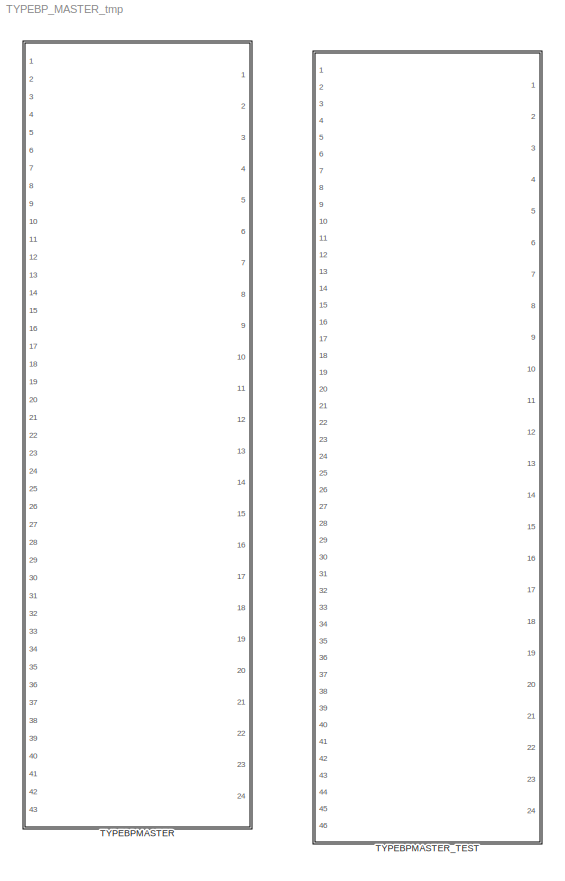
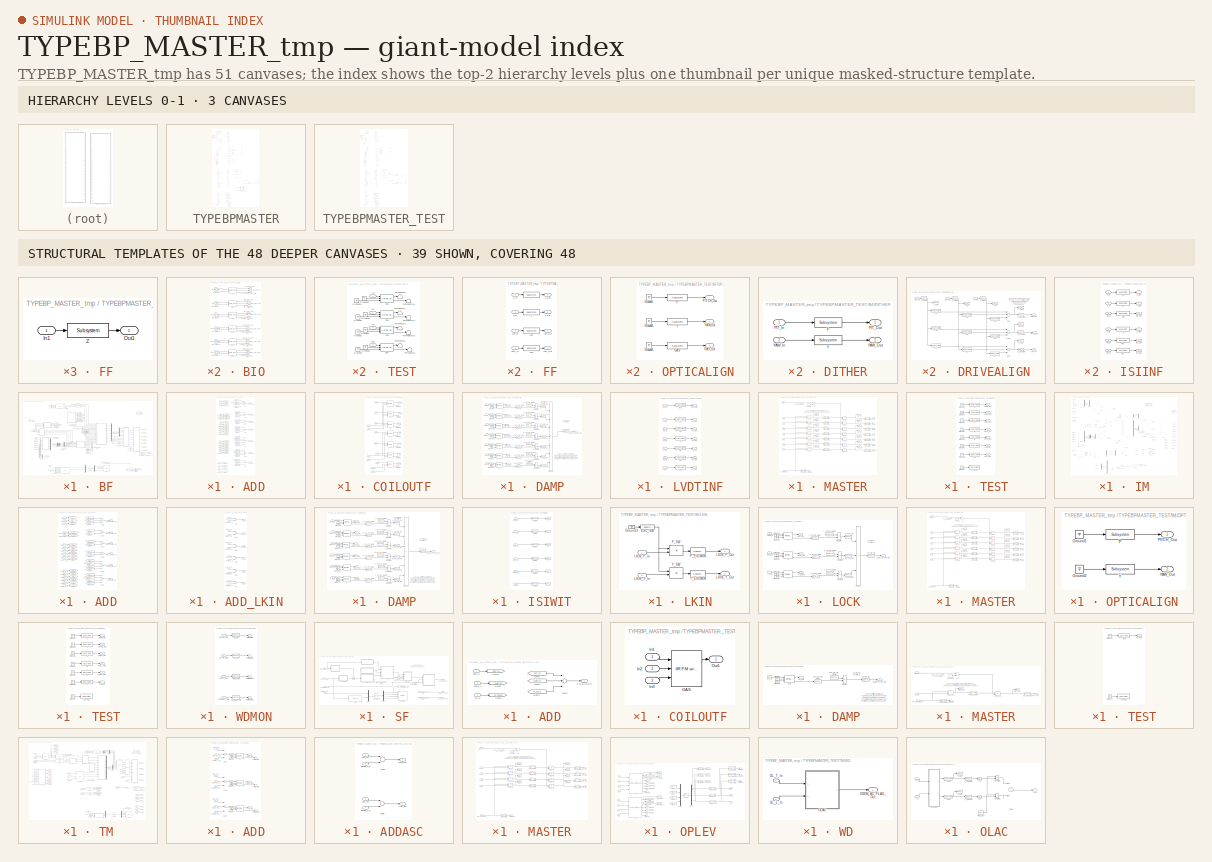
[diagram: thumbnail index - top-2 hierarchy levels (3 canvases) + 39 structural-template representatives of the remaining 48 canvases]
MODEL TYPEBP_MASTER_tmp
KIND library
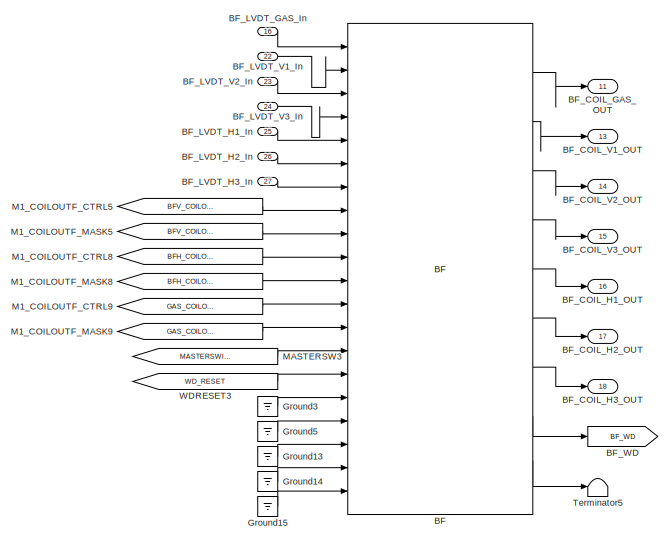
[diagram: TYPEBPMASTER - part 1/4, top left region]
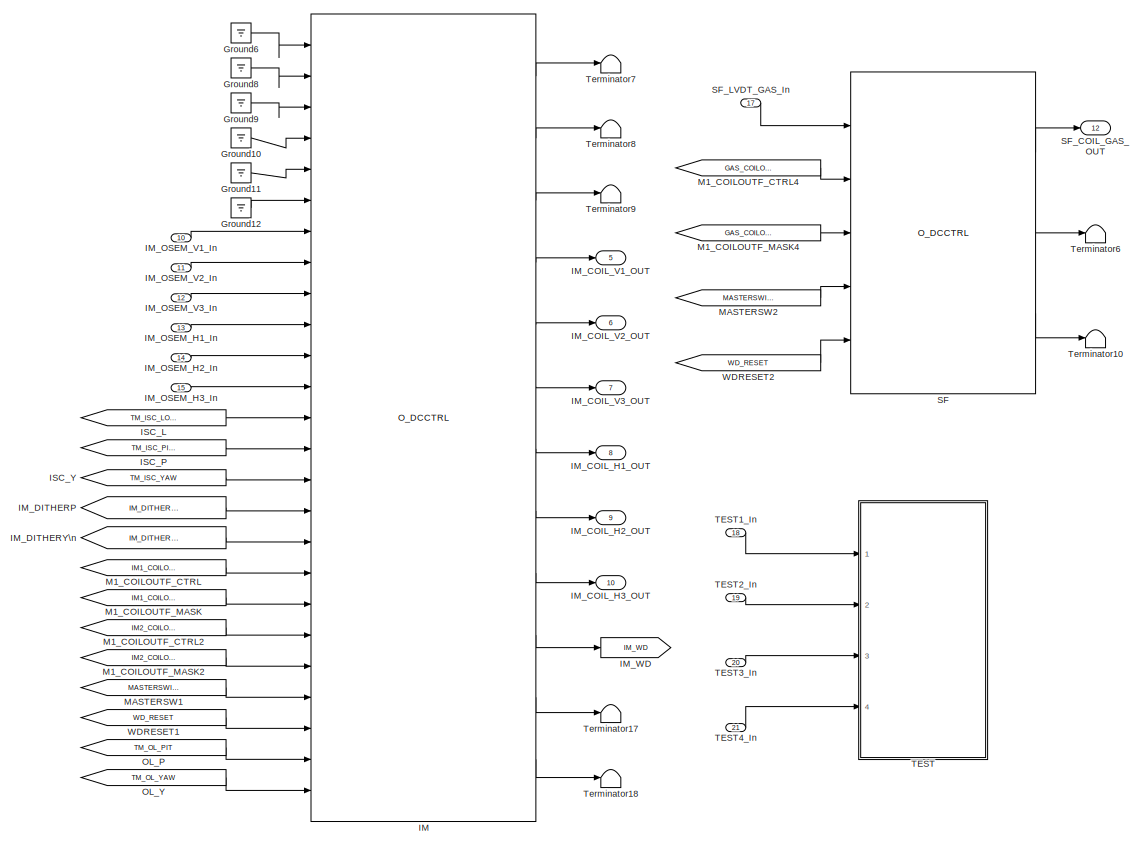
[diagram: TYPEBPMASTER - part 2/4, central region]
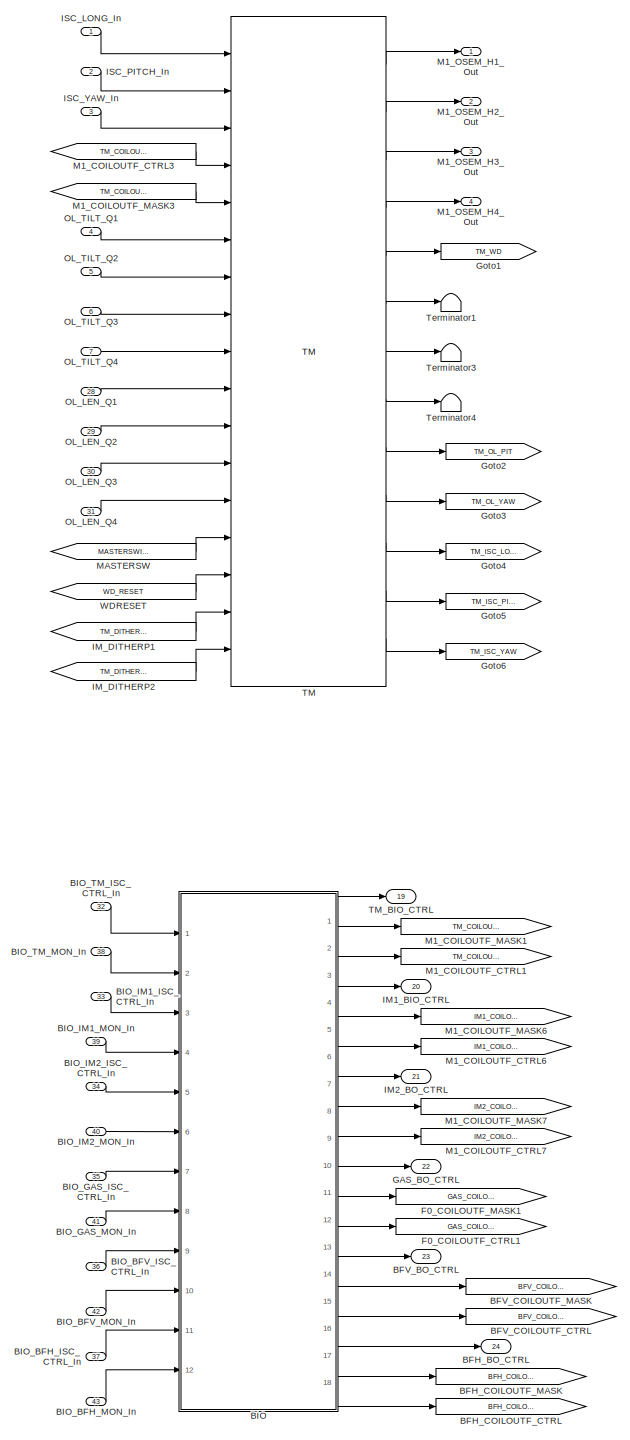
[diagram: TYPEBPMASTER - part 3/4, bottom left region]
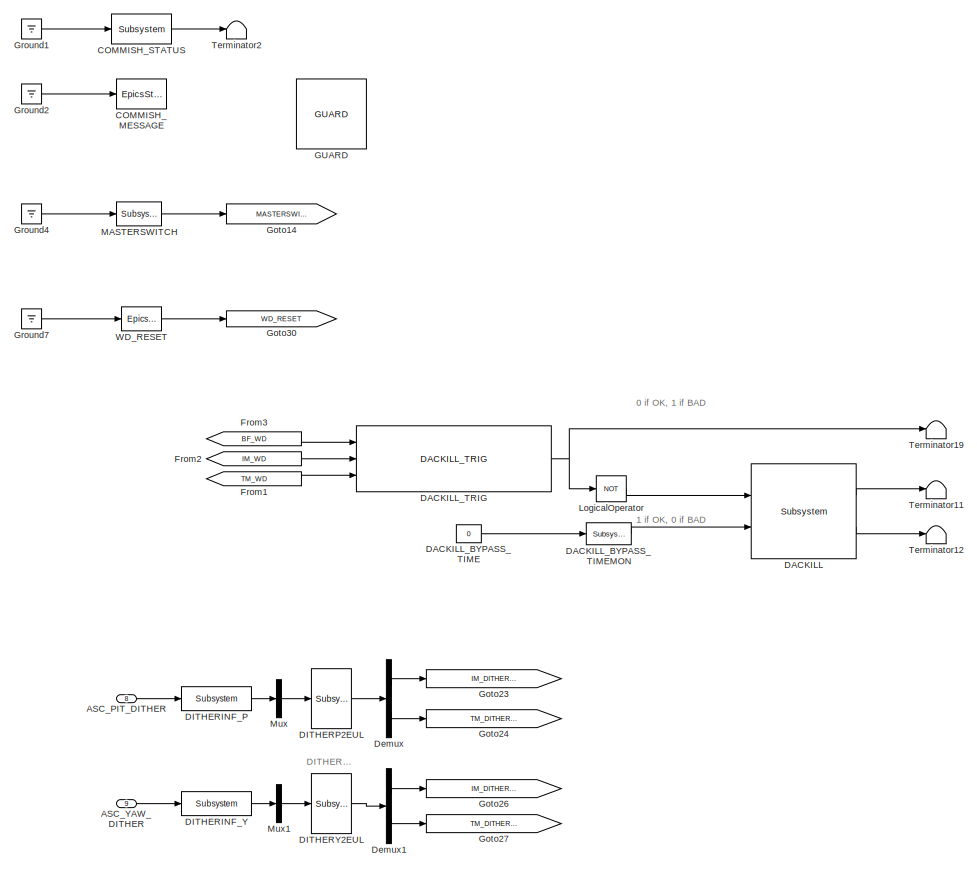
[diagram: TYPEBPMASTER - part 4/4, middle right region]
BLOCK [SubSystem] TYPEBPMASTER
  AncestorBlock = TYPEC_MASTER/TYPEC
  AttributesFormatString = %<Description>
  Description = TYPEBP MASTER
  Ports = [43, 24]
  RequestExecContextInheritance = off
  SID = 1
  Variant = off
BLOCK [Inport] TYPEBPMASTER/ASC_PIT_DITHER
  IconDisplay = Port number
  Port = 8
  SID = 1:98
BLOCK [Inport] TYPEBPMASTER/ASC_YAW_DITHER
  IconDisplay = Port number
  Port = 9
  SID = 1:99
BLOCK [Reference] TYPEBPMASTER/BF  REF=BF_MASTER/BF
  Ports = [20, 9]
  SID = 1:5888
  SourceBlock = BF_MASTER/BF
  SourceType = SubSystem
BLOCK [Outport] TYPEBPMASTER/BFH_BO_CTRL
  IconDisplay = Port number
  Port = 24
  SID = 1:6460
BLOCK [Goto] TYPEBPMASTER/BFH_COILOUTF_CTRL
  GotoTag = BFH_COILOUTF_CTRL
  SID = 1:6461
BLOCK [Goto] TYPEBPMASTER/BFH_COILOUTF_MASK
  GotoTag = BFH_COILOUTF_MASK
  SID = 1:6462
BLOCK [Outport] TYPEBPMASTER/BFV_BO_CTRL
  IconDisplay = Port number
  Port = 23
  SID = 1:6410
BLOCK [Goto] TYPEBPMASTER/BFV_COILOUTF_CTRL
  GotoTag = BFV_COILOUTF_CTRL
  SID = 1:6458
BLOCK [Goto] TYPEBPMASTER/BFV_COILOUTF_MASK
  GotoTag = BFV_COILOUTF_MASK
  SID = 1:6459
BLOCK [Outport] TYPEBPMASTER/BF_COIL_GAS_OUT
  IconDisplay = Port number
  Port = 11
  SID = 1:1039
BLOCK [Outport] TYPEBPMASTER/BF_COIL_H1_OUT
  IconDisplay = Port number
  Port = 16
  SID = 1:3066
BLOCK [Outport] TYPEBPMASTER/BF_COIL_H2_OUT
  IconDisplay = Port number
  Port = 17
  SID = 1:3067
BLOCK [Outport] TYPEBPMASTER/BF_COIL_H3_OUT
  IconDisplay = Port number
  Port = 18
  SID = 1:3068
BLOCK [Outport] TYPEBPMASTER/BF_COIL_V1_OUT
  IconDisplay = Port number
  Port = 13
  SID = 1:3063
BLOCK [Outport] TYPEBPMASTER/BF_COIL_V2_OUT
  IconDisplay = Port number
  Port = 14
  SID = 1:3064
BLOCK [Outport] TYPEBPMASTER/BF_COIL_V3_OUT
  IconDisplay = Port number
  Port = 15
  SID = 1:3065
BLOCK [Inport] TYPEBPMASTER/BF_LVDT_GAS_In
  IconDisplay = Port number
  Port = 16
  SID = 1:1014
BLOCK [Inport] TYPEBPMASTER/BF_LVDT_H1_In
  IconDisplay = Port number
  Port = 25
  SID = 1:3037
BLOCK [Inport] TYPEBPMASTER/BF_LVDT_H2_In
  IconDisplay = Port number
  Port = 26
  SID = 1:3038
BLOCK [Inport] TYPEBPMASTER/BF_LVDT_H3_In
  IconDisplay = Port number
  Port = 27
  SID = 1:3039
BLOCK [Inport] TYPEBPMASTER/BF_LVDT_V1_In
  IconDisplay = Port number
  Port = 22
  SID = 1:3034
BLOCK [Inport] TYPEBPMASTER/BF_LVDT_V2_In
  IconDisplay = Port number
  Port = 23
  SID = 1:3035
BLOCK [Inport] TYPEBPMASTER/BF_LVDT_V3_In
  IconDisplay = Port number
  Port = 24
  SID = 1:3036
BLOCK [Goto] TYPEBPMASTER/BF_WD
  GotoTag = BF_WD
  SID = 1:3061
BLOCK [SubSystem] TYPEBPMASTER/BIO
  Ports = [12, 18]
  RequestExecContextInheritance = off
  SID = 1:6393
  Variant = off
BLOCK [Reference] TYPEBPMASTER/BIO/BFH  REF=STATE_BIO_MASTER/UIM_BIO_MASTER
  Ports = [2, 3]
  SID = 1:7753
  SourceBlock = STATE_BIO_MASTER/UIM_BIO_MASTER
  SourceType = SubSystem
BLOCK [Outport] TYPEBPMASTER/BIO/BFH_BO_CTRL_Out
  IconDisplay = Port number
  Port = 16
  SID = 1:6448
BLOCK [Outport] TYPEBPMASTER/BIO/BFH_CTRL_Out
  IconDisplay = Port number
  Port = 18
  SID = 1:6450
BLOCK [Inport] TYPEBPMASTER/BIO/BFH_ISC_CTRL
  IconDisplay = Port number
  Port = 11
  SID = 1:6445
BLOCK [Outport] TYPEBPMASTER/BIO/BFH_MASK_Out
  IconDisplay = Port number
  Port = 17
  SID = 1:6449
BLOCK [Inport] TYPEBPMASTER/BIO/BFH_MON_In
  IconDisplay = Port number
  Port = 12
  SID = 1:6446
BLOCK [Reference] TYPEBPMASTER/BIO/BFV  REF=STATE_BIO_MASTER/UIM_BIO_MASTER
  Ports = [2, 3]
  SID = 1:7752
  SourceBlock = STATE_BIO_MASTER/UIM_BIO_MASTER
  SourceType = SubSystem
BLOCK [Outport] TYPEBPMASTER/BIO/BFV_BO_CTRL_Out
  IconDisplay = Port number
  Port = 13
  SID = 1:6438
BLOCK [Outport] TYPEBPMASTER/BIO/BFV_CTRL_Out
  IconDisplay = Port number
  Port = 15
  SID = 1:6440
BLOCK [Inport] TYPEBPMASTER/BIO/BFV_ISC_CTRL
  IconDisplay = Port number
  Port = 9
  SID = 1:6419
BLOCK [Outport] TYPEBPMASTER/BIO/BFV_MASK_Out
  IconDisplay = Port number
  Port = 14
  SID = 1:6439
BLOCK [Inport] TYPEBPMASTER/BIO/BFV_MON_In
  IconDisplay = Port number
  Port = 10
  SID = 1:6420
BLOCK [Reference] TYPEBPMASTER/BIO/GAS  REF=STATE_BIO_MASTER/UIM_BIO_MASTER
  Ports = [2, 3]
  SID = 1:6421
  SourceBlock = STATE_BIO_MASTER/UIM_BIO_MASTER
  SourceType = SubSystem
BLOCK [Outport] TYPEBPMASTER/BIO/GAS_BO_CTRL_Out
  IconDisplay = Port number
  Port = 10
  SID = 1:6435
BLOCK [Outport] TYPEBPMASTER/BIO/GAS_CTRL_Out
  IconDisplay = Port number
  Port = 12
  SID = 1:6437
BLOCK [Inport] TYPEBPMASTER/BIO/GAS_ISC_CTRL
  IconDisplay = Port number
  Port = 7
  SID = 1:6417
BLOCK [Outport] TYPEBPMASTER/BIO/GAS_MASK_Out
  IconDisplay = Port number
  Port = 11
  SID = 1:6436
BLOCK [Inport] TYPEBPMASTER/BIO/GAS_MON_In
  IconDisplay = Port number
  Port = 8
  SID = 1:6418
BLOCK [Reference] TYPEBPMASTER/BIO/IM1  REF=STATE_BIO_MASTER/UIM_BIO_MASTER
  Ports = [2, 3]
  SID = 1:6422
  SourceBlock = STATE_BIO_MASTER/UIM_BIO_MASTER
  SourceType = SubSystem
BLOCK [Outport] TYPEBPMASTER/BIO/IM1_BO_CTRL_Out
  IconDisplay = Port number
  Port = 4
  SID = 1:6429
BLOCK [Inport] TYPEBPMASTER/BIO/IM1_CTRL
  IconDisplay = Port number
  Port = 3
  SID = 1:6413
BLOCK [Outport] TYPEBPMASTER/BIO/IM1_CTRL_Out
  IconDisplay = Port number
  Port = 6
  SID = 1:6431
BLOCK [Outport] TYPEBPMASTER/BIO/IM1_MASK_Out
  IconDisplay = Port number
  Port = 5
  SID = 1:6430
BLOCK [Inport] TYPEBPMASTER/BIO/IM1_MON_In
  IconDisplay = Port number
  Port = 4
  SID = 1:6414
BLOCK [Reference] TYPEBPMASTER/BIO/IM2  REF=STATE_BIO_MASTER/UIM_BIO_MASTER
  Ports = [2, 3]
  SID = 1:6423
  SourceBlock = STATE_BIO_MASTER/UIM_BIO_MASTER
  SourceType = SubSystem
BLOCK [Outport] TYPEBPMASTER/BIO/IM2_BO_CTRL_Out
  IconDisplay = Port number
  Port = 7
  SID = 1:6432
BLOCK [Outport] TYPEBPMASTER/BIO/IM2_CTRL_Out
  IconDisplay = Port number
  Port = 9
  SID = 1:6434
BLOCK [Inport] TYPEBPMASTER/BIO/IM2_ISC_CTRL
  IconDisplay = Port number
  Port = 5
  SID = 1:6415
BLOCK [Outport] TYPEBPMASTER/BIO/IM2_MASK_Out
  IconDisplay = Port number
  Port = 8
  SID = 1:6433
BLOCK [Inport] TYPEBPMASTER/BIO/IM2_MON_In
  IconDisplay = Port number
  Port = 6
  SID = 1:6416
BLOCK [Reference] TYPEBPMASTER/BIO/TM  REF=STATE_BIO_MASTER/UIM_BIO_MASTER
  Ports = [2, 3]
  SID = 1:6425
  SourceBlock = STATE_BIO_MASTER/UIM_BIO_MASTER
  SourceType = SubSystem
BLOCK [Outport] TYPEBPMASTER/BIO/TM_BO_CTRL_Out
  IconDisplay = Port number
  SID = 1:6426
BLOCK [Outport] TYPEBPMASTER/BIO/TM_CTRL_Out
  IconDisplay = Port number
  Port = 3
  SID = 1:6428
BLOCK [Inport] TYPEBPMASTER/BIO/TM_ISC_CTRL
  IconDisplay = Port number
  SID = 1:6411
BLOCK [Outport] TYPEBPMASTER/BIO/TM_MASK_Out
  IconDisplay = Port number
  Port = 2
  SID = 1:6427
BLOCK [Inport] TYPEBPMASTER/BIO/TM_MON_In
  IconDisplay = Port number
  Port = 2
  SID = 1:6412
BLOCK [Inport] TYPEBPMASTER/BIO_BFH_ISC_CTRL_In
  IconDisplay = Port number
  Port = 37
  SID = 1:6456
BLOCK [Inport] TYPEBPMASTER/BIO_BFH_MON_In
  IconDisplay = Port number
  Port = 43
  SID = 1:6457
BLOCK [Inport] TYPEBPMASTER/BIO_BFV_ISC_CTRL_In
  IconDisplay = Port number
  Port = 36
  SID = 1:6454
BLOCK [Inport] TYPEBPMASTER/BIO_BFV_MON_In
  IconDisplay = Port number
  Port = 42
  SID = 1:6455
BLOCK [Inport] TYPEBPMASTER/BIO_GAS_ISC_CTRL_In
  IconDisplay = Port number
  Port = 35
  SID = 1:6391
BLOCK [Inport] TYPEBPMASTER/BIO_GAS_MON_In
  IconDisplay = Port number
  Port = 41
  SID = 1:6392
BLOCK [Inport] TYPEBPMASTER/BIO_IM1_ISC_CTRL_In
  IconDisplay = Port number
  Port = 33
  SID = 1:6387
BLOCK [Inport] TYPEBPMASTER/BIO_IM1_MON_In
  IconDisplay = Port number
  Port = 39
  SID = 1:6388
BLOCK [Inport] TYPEBPMASTER/BIO_IM2_ISC_CTRL_In
  IconDisplay = Port number
  Port = 34
  SID = 1:6389
BLOCK [Inport] TYPEBPMASTER/BIO_IM2_MON_In
  IconDisplay = Port number
  Port = 40
  SID = 1:6390
BLOCK [Inport] TYPEBPMASTER/BIO_TM_ISC_CTRL_In
  IconDisplay = Port number
  Port = 32
  SID = 1:6385
BLOCK [Inport] TYPEBPMASTER/BIO_TM_MON_In
  IconDisplay = Port number
  Port = 38
  SID = 1:6386
BLOCK [Reference] TYPEBPMASTER/COMMISH_MESSAGE  REF=cdsEpicsStringIn/EpicsStringIn
  AttributesFormatString = %<Tag>
  Description = cdsEpicsStringIn
  Ports = [1]
  SID = 1:24
  SourceBlock = cdsEpicsStringIn/EpicsStringIn
  SourceType = SubSystem
  Tag = cdsEpicsStringIn
BLOCK [Reference] TYPEBPMASTER/COMMISH_STATUS  REF=cdsEpicsBinIn/Subsystem
  AttributesFormatString = %<Tag>
  Description = Purpose:                                                                            \nCreate an EPICS binary (0 or 1) input channel to the FE realtime controls.          \n                                                                                    \nOperation:                                                                          \nOutputs value from an EPICS ai record. Value is binary i...<+252ch>  <repeated x8 — deduplicated; at blocks: COMMISH_STATUS, MASTERSWITCH, STATUS, EXC_SW>
  Ports = [1, 1]
  SID = 1:25
  SourceBlock = cdsEpicsBinIn/Subsystem
  SourceType = SubSystem
  Tag = cdsEpicsBinIn
BLOCK [Reference] TYPEBPMASTER/DACKILL  REF=cdsDacKill/Subsystem
  AttributesFormatString = %<Description>
  Description = cdsDacKill
  Ports = [2, 2]
  SID = 1:1683
  SourceBlock = cdsDacKill/Subsystem
  SourceType = SubSystem
BLOCK [Constant] TYPEBPMASTER/DACKILL_BYPASS_TIME
  SID = 1:1684
  Value = 0
BLOCK [Reference] TYPEBPMASTER/DACKILL_BYPASS_TIMEMON  REF=cdsEpicsOut/Subsystem
  AttributesFormatString = %<Tag>
  Description = Purpose:                                          \nOutput a FE signal to an EPICS channel.           \n                                                  \nOperation:                                        \nTakes input value and passes it to EPICS record.  \n                                                  \nUsage:                                            \nName the part with the desired EPICS...<+14ch>  <repeated x108 — deduplicated; at blocks: DACKILL_BYPASS_TIMEMON, GAS_STATE_NOW, GAS_STATE_OK, L_STATE_NOW, L_STATE_OK, P_STATE_NOW, P_STATE_OK, R_STATE_NOW, R_STATE_OK, STATE_OK, T_STATE_NOW, T_STATE_OK, V_STATE_NOW, V_STATE_OK, Y_STATE_NOW, Y_STATE_OK, +40 more>
  Ports = [1, 1]
  SID = 1:1685
  SourceBlock = cdsEpicsOut/Subsystem
  SourceType = SubSystem
  Tag = cdsEpicsOutput
BLOCK [Reference] TYPEBPMASTER/DACKILL_TRIG  REF=VIS_LIB/DACKILL_TRIG
  Ports = [3, 1]
  SID = 1:1686
  SourceBlock = VIS_LIB/DACKILL_TRIG
  SourceType = SubSystem
BLOCK [Reference] TYPEBPMASTER/DITHERINF_P  REF=cdsFilt/Subsystem
  AttributesFormatString = %<Tag>
  Description = Purpose:                                                                                                                                                                                                                                  \nStandard CDS IIR filter module.                                                                                                                                     ...<+1302ch>  <repeated x79 — deduplicated; at blocks: DITHERINF_P, DITHERINF_Y, L, L2P, T, T2R, GAS, H1, H2, H3, V1, V2, V3, P, Y, R, +17 more>
  Ports = [1, 1]
  SID = 1:100
  SourceBlock = cdsFilt/Subsystem
  SourceType = SubSystem
  Tag = cdsFilt
BLOCK [Reference] TYPEBPMASTER/DITHERINF_Y  REF=cdsFilt/Subsystem
  AttributesFormatString = %<Tag>
  Ports = [1, 1]
  SID = 1:101
  SourceBlock = cdsFilt/Subsystem
  SourceType = SubSystem
  Tag = cdsFilt
BLOCK [Reference] TYPEBPMASTER/DITHERP2EUL  REF=cdsMuxMatrix/Subsystem
  AttributesFormatString = %<Tag>
  Description = Any size matrix. Inputs and outputs must be connected using Mux and Demux parts.
  Ports = [1, 1]
  SID = 1:102
  SourceBlock = cdsMuxMatrix/Subsystem
  SourceType = SubSystem
  Tag = cdsMuxMatrix
BLOCK [Reference] TYPEBPMASTER/DITHERY2EUL  REF=cdsMuxMatrix/Subsystem
  AttributesFormatString = %<Tag>
  Description = Any size matrix. Inputs and outputs must be connected using Mux and Demux parts.
  Ports = [1, 1]
  SID = 1:103
  SourceBlock = cdsMuxMatrix/Subsystem
  SourceType = SubSystem
  Tag = cdsMuxMatrix
BLOCK [Demux] TYPEBPMASTER/Demux
  DisplayOption = bar
  Outputs = 2
  Ports = [1, 2]
  SID = 1:104
BLOCK [Demux] TYPEBPMASTER/Demux1
  DisplayOption = bar
  Outputs = 2
  Ports = [1, 2]
  SID = 1:105
BLOCK [Goto] TYPEBPMASTER/F0_COILOUTF_CTRL1
  GotoTag = GAS_COILOUTF_CTRL
  SID = 1:6394
BLOCK [Goto] TYPEBPMASTER/F0_COILOUTF_MASK1
  GotoTag = GAS_COILOUTF_MASK
  SID = 1:6395
BLOCK [From] TYPEBPMASTER/From1
  CloseFcn = tagdialog Close
  GotoTag = TM_WD
  SID = 1:1687
BLOCK [From] TYPEBPMASTER/From2
  CloseFcn = tagdialog Close
  GotoTag = IM_WD
  SID = 1:1688
BLOCK [From] TYPEBPMASTER/From3
  CloseFcn = tagdialog Close
  GotoTag = BF_WD
  SID = 1:3069
BLOCK [Outport] TYPEBPMASTER/GAS_BO_CTRL
  IconDisplay = Port number
  Port = 22
  SID = 1:6409
BLOCK [Reference] TYPEBPMASTER/GUARD  REF=ISC_common/GUARD
  Ports = []
  SID = 1:27
  SourceBlock = ISC_common/GUARD
  SourceType = SubSystem
BLOCK [Goto] TYPEBPMASTER/Goto1
  GotoTag = TM_WD
  SID = 1:70
BLOCK [Goto] TYPEBPMASTER/Goto14
  GotoTag = MASTERSWITCH
  SID = 1:48
BLOCK [Goto] TYPEBPMASTER/Goto2
  GotoTag = TM_OL_PIT
  SID = 1:2221
BLOCK [Goto] TYPEBPMASTER/Goto23
  GotoTag = IM_DITHER_PIT
  SID = 1:106
BLOCK [Goto] TYPEBPMASTER/Goto24
  GotoTag = TM_DITHER_PIT
  SID = 1:107
BLOCK [Goto] TYPEBPMASTER/Goto26
  GotoTag = IM_DITHER_YAW
  SID = 1:109
BLOCK [Goto] TYPEBPMASTER/Goto27
  GotoTag = TM_DITHER_YAW
  SID = 1:110
BLOCK [Goto] TYPEBPMASTER/Goto3
  GotoTag = TM_OL_YAW
  SID = 1:2222
BLOCK [Goto] TYPEBPMASTER/Goto30
  GotoTag = WD_RESET
  SID = 1:78
BLOCK [Goto] TYPEBPMASTER/Goto4
  GotoTag = TM_ISC_LONG
  SID = 1:8225
BLOCK [Goto] TYPEBPMASTER/Goto5
  GotoTag = TM_ISC_PITCH
  SID = 1:8226
BLOCK [Goto] TYPEBPMASTER/Goto6
  GotoTag = TM_ISC_YAW
  SID = 1:8227
BLOCK [Ground] TYPEBPMASTER/Ground1
  SID = 1:29
BLOCK [Ground] TYPEBPMASTER/Ground10
  SID = 1:129
BLOCK [Ground] TYPEBPMASTER/Ground11
  SID = 1:130
BLOCK [Ground] TYPEBPMASTER/Ground12
  SID = 1:131
BLOCK [Ground] TYPEBPMASTER/Ground13
  SID = 1:8224
BLOCK [Ground] TYPEBPMASTER/Ground14
  SID = 1:8475
BLOCK [Ground] TYPEBPMASTER/Ground15
  SID = 1:8477
BLOCK [Ground] TYPEBPMASTER/Ground2
  SID = 1:30
BLOCK [Ground] TYPEBPMASTER/Ground3
  SID = 1:8222
BLOCK [Ground] TYPEBPMASTER/Ground4
  SID = 1:49
BLOCK [Ground] TYPEBPMASTER/Ground5
  SID = 1:8223
BLOCK [Ground] TYPEBPMASTER/Ground6
  SID = 1:125
BLOCK [Ground] TYPEBPMASTER/Ground7
  SID = 1:79
BLOCK [Ground] TYPEBPMASTER/Ground8
  SID = 1:127
BLOCK [Ground] TYPEBPMASTER/Ground9
  SID = 1:128
BLOCK [Reference] TYPEBPMASTER/IM  REF=SIXOSEM_F_STAGE_MASTER/SIXOSEM_F_STAGE_MASTER_W//O_DCCTRL
  Description = SIXOSEMSTAGE_FACE_MASTER
  Ports = [25, 12]
  SID = 1:8479
  SourceBlock = SIXOSEM_F_STAGE_MASTER/SIXOSEM_F_STAGE_MASTER_W//O_DCCTRL
  SourceType = SubSystem
BLOCK [Outport] TYPEBPMASTER/IM1_BIO_CTRL
  IconDisplay = Port number
  Port = 20
  SID = 1:6407
BLOCK [Outport] TYPEBPMASTER/IM2_BO_CTRL
  IconDisplay = Port number
  Port = 21
  SID = 1:6408
BLOCK [Outport] TYPEBPMASTER/IM_COIL_H1_OUT
  IconDisplay = Port number
  Port = 8
  SID = 1:894
BLOCK [Outport] TYPEBPMASTER/IM_COIL_H2_OUT
  IconDisplay = Port number
  Port = 9
  SID = 1:895
BLOCK [Outport] TYPEBPMASTER/IM_COIL_H3_OUT
  IconDisplay = Port number
  Port = 10
  SID = 1:896
BLOCK [Outport] TYPEBPMASTER/IM_COIL_V1_OUT
  IconDisplay = Port number
  Port = 5
  SID = 1:891
BLOCK [Outport] TYPEBPMASTER/IM_COIL_V2_OUT
  IconDisplay = Port number
  Port = 6
  SID = 1:892
BLOCK [Outport] TYPEBPMASTER/IM_COIL_V3_OUT
  IconDisplay = Port number
  Port = 7
  SID = 1:893
BLOCK [From] TYPEBPMASTER/IM_DITHERP
  CloseFcn = tagdialog Close
  GotoTag = IM_DITHER_PIT
  SID = 1:115
BLOCK [From] TYPEBPMASTER/IM_DITHERP1
  CloseFcn = tagdialog Close
  GotoTag = TM_DITHER_PIT
  SID = 1:120
BLOCK [From] TYPEBPMASTER/IM_DITHERP2
  CloseFcn = tagdialog Close
  GotoTag = TM_DITHER_YAW
  SID = 1:121
BLOCK [From] TYPEBPMASTER/IM_DITHERY\n
  CloseFcn = tagdialog Close
  GotoTag = IM_DITHER_YAW
  SID = 1:117
BLOCK [Inport] TYPEBPMASTER/IM_OSEM_H1_In
  IconDisplay = Port number
  Port = 13
  SID = 1:775
BLOCK [Inport] TYPEBPMASTER/IM_OSEM_H2_In
  IconDisplay = Port number
  Port = 14
  SID = 1:776
BLOCK [Inport] TYPEBPMASTER/IM_OSEM_H3_In
  IconDisplay = Port number
  Port = 15
  SID = 1:777
BLOCK [Inport] TYPEBPMASTER/IM_OSEM_V1_In
  IconDisplay = Port number
  Port = 10
  SID = 1:771
BLOCK [Inport] TYPEBPMASTER/IM_OSEM_V2_In
  IconDisplay = Port number
  Port = 11
  SID = 1:772
BLOCK [Inport] TYPEBPMASTER/IM_OSEM_V3_In
  IconDisplay = Port number
  Port = 12
  SID = 1:773
BLOCK [Goto] TYPEBPMASTER/IM_WD
  GotoTag = IM_WD
  SID = 1:1708
BLOCK [From] TYPEBPMASTER/ISC_L
  CloseFcn = tagdialog Close
  GotoTag = TM_ISC_LONG
  SID = 1:8228
BLOCK [Inport] TYPEBPMASTER/ISC_LONG_In
  IconDisplay = Port number
  SID = 1:6
BLOCK [From] TYPEBPMASTER/ISC_P
  CloseFcn = tagdialog Close
  GotoTag = TM_ISC_PITCH
  SID = 1:8229
BLOCK [Inport] TYPEBPMASTER/ISC_PITCH_In
  IconDisplay = Port number
  Port = 2
  SID = 1:7
BLOCK [From] TYPEBPMASTER/ISC_Y
  CloseFcn = tagdialog Close
  GotoTag = TM_ISC_YAW
  SID = 1:8230
BLOCK [Inport] TYPEBPMASTER/ISC_YAW_In
  IconDisplay = Port number
  Port = 3
  SID = 1:8
BLOCK [Logic] TYPEBPMASTER/LogicalOperator
  AllPortsSameDT = off
  Operator = NOT
  OutDataTypeStr = boolean
  Ports = [1, 1]
  SID = 1:1689
BLOCK [From] TYPEBPMASTER/M1_COILOUTF_CTRL
  CloseFcn = tagdialog Close
  GotoTag = IM1_COILOUTF_CTRL
  SID = 1:32
BLOCK [Goto] TYPEBPMASTER/M1_COILOUTF_CTRL1
  GotoTag = TM_COILOUTF_CTRL
  SID = 1:6398
BLOCK [From] TYPEBPMASTER/M1_COILOUTF_CTRL2
  CloseFcn = tagdialog Close
  GotoTag = IM2_COILOUTF_CTRL
  SID = 1:6464
BLOCK [From] TYPEBPMASTER/M1_COILOUTF_CTRL3
  CloseFcn = tagdialog Close
  GotoTag = TM_COILOUTF_CTRL
  SID = 1:301
BLOCK [From] TYPEBPMASTER/M1_COILOUTF_CTRL4
  CloseFcn = tagdialog Close
  GotoTag = GAS_COILOUTF_CTRL
  SID = 1:1016
BLOCK [From] TYPEBPMASTER/M1_COILOUTF_CTRL5
  CloseFcn = tagdialog Close
  GotoTag = BFV_COILOUTF_CTRL
  SID = 1:3055
BLOCK [Goto] TYPEBPMASTER/M1_COILOUTF_CTRL6
  GotoTag = IM1_COILOUTF_CTRL
  SID = 1:6399
BLOCK [Goto] TYPEBPMASTER/M1_COILOUTF_CTRL7
  GotoTag = IM2_COILOUTF_CTRL
  SID = 1:6452
BLOCK [From] TYPEBPMASTER/M1_COILOUTF_CTRL8
  CloseFcn = tagdialog Close
  GotoTag = BFH_COILOUTF_CTRL
  SID = 1:6466
BLOCK [From] TYPEBPMASTER/M1_COILOUTF_CTRL9
  CloseFcn = tagdialog Close
  GotoTag = GAS_COILOUTF_CTRL
  SID = 1:6469
BLOCK [From] TYPEBPMASTER/M1_COILOUTF_MASK
  CloseFcn = tagdialog Close
  GotoTag = IM1_COILOUTF_MASK
  SID = 1:34
BLOCK [Goto] TYPEBPMASTER/M1_COILOUTF_MASK1
  GotoTag = TM_COILOUTF_MASK
  SID = 1:6400
BLOCK [From] TYPEBPMASTER/M1_COILOUTF_MASK2
  CloseFcn = tagdialog Close
  GotoTag = IM2_COILOUTF_MASK
  SID = 1:6465
BLOCK [From] TYPEBPMASTER/M1_COILOUTF_MASK3
  CloseFcn = tagdialog Close
  GotoTag = TM_COILOUTF_MASK
  SID = 1:302
BLOCK [From] TYPEBPMASTER/M1_COILOUTF_MASK4
  CloseFcn = tagdialog Close
  GotoTag = GAS_COILOUTF_MASK
  SID = 1:1017
BLOCK [From] TYPEBPMASTER/M1_COILOUTF_MASK5
  CloseFcn = tagdialog Close
  GotoTag = BFV_COILOUTF_MASK
  SID = 1:3056
BLOCK [Goto] TYPEBPMASTER/M1_COILOUTF_MASK6
  GotoTag = IM1_COILOUTF_MASK
  SID = 1:6401
BLOCK [Goto] TYPEBPMASTER/M1_COILOUTF_MASK7
  GotoTag = IM2_COILOUTF_MASK
  SID = 1:6453
BLOCK [From] TYPEBPMASTER/M1_COILOUTF_MASK8
  CloseFcn = tagdialog Close
  GotoTag = BFH_COILOUTF_MASK
  SID = 1:6467
BLOCK [From] TYPEBPMASTER/M1_COILOUTF_MASK9
  CloseFcn = tagdialog Close
  GotoTag = GAS_COILOUTF_MASK
  SID = 1:6470
BLOCK [Outport] TYPEBPMASTER/M1_OSEM_H1_Out
  IconDisplay = Port number
  SID = 1:38
BLOCK [Outport] TYPEBPMASTER/M1_OSEM_H2_Out
  IconDisplay = Port number
  Port = 2
  SID = 1:39
BLOCK [Outport] TYPEBPMASTER/M1_OSEM_H3_Out
  IconDisplay = Port number
  Port = 3
  SID = 1:40
BLOCK [Outport] TYPEBPMASTER/M1_OSEM_H4_Out
  IconDisplay = Port number
  Port = 4
  SID = 1:41
BLOCK [From] TYPEBPMASTER/MASTERSW
  CloseFcn = tagdialog Close
  GotoTag = MASTERSWITCH
  SID = 1:52
BLOCK [From] TYPEBPMASTER/MASTERSW1
  CloseFcn = tagdialog Close
  GotoTag = MASTERSWITCH
  SID = 1:1035
BLOCK [From] TYPEBPMASTER/MASTERSW2
  CloseFcn = tagdialog Close
  GotoTag = MASTERSWITCH
  SID = 1:1037
BLOCK [From] TYPEBPMASTER/MASTERSW3
  CloseFcn = tagdialog Close
  GotoTag = MASTERSWITCH
  SID = 1:3057
BLOCK [Reference] TYPEBPMASTER/MASTERSWITCH  REF=cdsEpicsBinIn/Subsystem
  AttributesFormatString = %<Tag>
  Ports = [1, 1]
  SID = 1:50
  SourceBlock = cdsEpicsBinIn/Subsystem
  SourceType = SubSystem
  Tag = cdsEpicsBinIn
BLOCK [Mux] TYPEBPMASTER/Mux
  DisplayOption = bar
  Inputs = 1
  Ports = [1, 1]
  SID = 1:112
BLOCK [Mux] TYPEBPMASTER/Mux1
  DisplayOption = bar
  Inputs = 1
  Ports = [1, 1]
  SID = 1:113
BLOCK [Inport] TYPEBPMASTER/OL_LEN_Q1
  IconDisplay = Port number
  Port = 28
  SID = 1:3891
BLOCK [Inport] TYPEBPMASTER/OL_LEN_Q2
  IconDisplay = Port number
  Port = 29
  SID = 1:3892
BLOCK [Inport] TYPEBPMASTER/OL_LEN_Q3
  IconDisplay = Port number
  Port = 30
  SID = 1:3893
BLOCK [Inport] TYPEBPMASTER/OL_LEN_Q4
  IconDisplay = Port number
  Port = 31
  SID = 1:3894
BLOCK [From] TYPEBPMASTER/OL_P
  CloseFcn = tagdialog Close
  GotoTag = TM_OL_PIT
  SID = 1:2219
BLOCK [Inport] TYPEBPMASTER/OL_TILT_Q1
  IconDisplay = Port number
  Port = 4
  SID = 1:9
BLOCK [Inport] TYPEBPMASTER/OL_TILT_Q2
  IconDisplay = Port number
  Port = 5
  SID = 1:10
BLOCK [Inport] TYPEBPMASTER/OL_TILT_Q3
  IconDisplay = Port number
  Port = 6
  SID = 1:11
BLOCK [Inport] TYPEBPMASTER/OL_TILT_Q4
  IconDisplay = Port number
  Port = 7
  SID = 1:12
BLOCK [From] TYPEBPMASTER/OL_Y
  CloseFcn = tagdialog Close
  GotoTag = TM_OL_YAW
  SID = 1:2220
BLOCK [Reference] TYPEBPMASTER/SF  REF=GAS_MASTER/GAS_W//O_DCCTRL
  Ports = [5, 3]
  SID = 1:8478
  SourceBlock = GAS_MASTER/GAS_W//O_DCCTRL
  SourceType = SubSystem
BLOCK [Outport] TYPEBPMASTER/SF_COIL_GAS_OUT
  IconDisplay = Port number
  Port = 12
  SID = 1:3680
BLOCK [Inport] TYPEBPMASTER/SF_LVDT_GAS_In
  IconDisplay = Port number
  Port = 17
  SID = 1:3679
BLOCK [SubSystem] TYPEBPMASTER/TEST
  Ports = [4]
  RequestExecContextInheritance = off
  SID = 1:1313
  Variant = off
BLOCK [Reference] TYPEBPMASTER/TEST/CH1  REF=cdsFiltCtrl/IIR FM with control
  AttributesFormatString = %<Tag>
  Description = cdsFiltCntrl is the standard IIR filter module (exactly the same as cdsFilt) but with added control data output 'Ctrl'. Filter module digital signal output appears on the first output, which is called 'Val'. 'Ctrl' output has a bit pattern encoding the state of filter's on/off switches (FM1 through FM10). The bit values are:\n                                                                        ...<+4621ch>  <repeated x36 — deduplicated; at blocks: CH1, CH2, CH3, CH4, GAS, H1, H2, H3, V1, V2, V3, L, P, R, T, V, +1 more>
  Ports = [3, 2]
  SID = 1:1309
  SourceBlock = cdsFiltCtrl/IIR FM with control
  SourceType = SubSystem
  Tag = cdsFiltCtrl
BLOCK [Reference] TYPEBPMASTER/TEST/CH2  REF=cdsFiltCtrl/IIR FM with control
  AttributesFormatString = %<Tag>
  Ports = [3, 2]
  SID = 1:1310
  SourceBlock = cdsFiltCtrl/IIR FM with control
  SourceType = SubSystem
  Tag = cdsFiltCtrl
BLOCK [Reference] TYPEBPMASTER/TEST/CH3  REF=cdsFiltCtrl/IIR FM with control
  AttributesFormatString = %<Tag>
  Ports = [3, 2]
  SID = 1:1311
  SourceBlock = cdsFiltCtrl/IIR FM with control
  SourceType = SubSystem
  Tag = cdsFiltCtrl
BLOCK [Reference] TYPEBPMASTER/TEST/CH4  REF=cdsFiltCtrl/IIR FM with control
  AttributesFormatString = %<Tag>
  Ports = [3, 2]
  SID = 1:1312
  SourceBlock = cdsFiltCtrl/IIR FM with control
  SourceType = SubSystem
  Tag = cdsFiltCtrl
BLOCK [Ground] TYPEBPMASTER/TEST/Ground1
  SID = 1:1341
BLOCK [Ground] TYPEBPMASTER/TEST/Ground19
  SID = 1:1334
BLOCK [Ground] TYPEBPMASTER/TEST/Ground2
  SID = 1:1342
BLOCK [Ground] TYPEBPMASTER/TEST/Ground22
  SID = 1:1336
BLOCK [Ground] TYPEBPMASTER/TEST/Ground3
  SID = 1:1343
BLOCK [Ground] TYPEBPMASTER/TEST/Ground4
  SID = 1:1344
BLOCK [Ground] TYPEBPMASTER/TEST/Ground5
  SID = 1:1345
BLOCK [Ground] TYPEBPMASTER/TEST/Ground6
  SID = 1:1346
BLOCK [Inport] TYPEBPMASTER/TEST/In1
  IconDisplay = Port number
  SID = 1:1314
BLOCK [Inport] TYPEBPMASTER/TEST/In10
  IconDisplay = Port number
  Port = 4
  SID = 1:1323
BLOCK [Inport] TYPEBPMASTER/TEST/In4
  IconDisplay = Port number
  Port = 2
  SID = 1:1317
BLOCK [Inport] TYPEBPMASTER/TEST/In7
  IconDisplay = Port number
  Port = 3
  SID = 1:1320
BLOCK [Terminator] TYPEBPMASTER/TEST/Terminator1
  SID = 1:1347
BLOCK [Terminator] TYPEBPMASTER/TEST/Terminator16
  SID = 1:1338
BLOCK [Terminator] TYPEBPMASTER/TEST/Terminator17
  SID = 1:1339
BLOCK [Terminator] TYPEBPMASTER/TEST/Terminator18
  SID = 1:1340
BLOCK [Terminator] TYPEBPMASTER/TEST/Terminator2
  SID = 1:1352
BLOCK [Terminator] TYPEBPMASTER/TEST/Terminator3
  SID = 1:1353
BLOCK [Terminator] TYPEBPMASTER/TEST/Terminator4
  SID = 1:1354
BLOCK [Terminator] TYPEBPMASTER/TEST/Terminator5
  SID = 1:1355
BLOCK [Inport] TYPEBPMASTER/TEST1_In
  IconDisplay = Port number
  Port = 18
  SID = 1:1348
BLOCK [Inport] TYPEBPMASTER/TEST2_In
  IconDisplay = Port number
  Port = 19
  SID = 1:1349
BLOCK [Inport] TYPEBPMASTER/TEST3_In
  IconDisplay = Port number
  Port = 20
  SID = 1:1350
BLOCK [Inport] TYPEBPMASTER/TEST4_In
  IconDisplay = Port number
  Port = 21
  SID = 1:1351
BLOCK [Reference] TYPEBPMASTER/TM  REF=TM_MASTER/TM
  Ports = [17, 13]
  SID = 1:7518
  SourceBlock = TM_MASTER/TM
  SourceType = SubSystem
BLOCK [Outport] TYPEBPMASTER/TM_BIO_CTRL
  IconDisplay = Port number
  Port = 19
  SID = 1:6406
BLOCK [Terminator] TYPEBPMASTER/Terminator1
  SID = 1:75
BLOCK [Terminator] TYPEBPMASTER/Terminator10
  SID = 1:1041
BLOCK [Terminator] TYPEBPMASTER/Terminator11
  SID = 1:1691
BLOCK [Terminator] TYPEBPMASTER/Terminator12
  SID = 1:1692
BLOCK [Terminator] TYPEBPMASTER/Terminator17
  SID = 1:155
BLOCK [Terminator] TYPEBPMASTER/Terminator18
  SID = 1:156
BLOCK [Terminator] TYPEBPMASTER/Terminator19
  SID = 1:1690
BLOCK [Terminator] TYPEBPMASTER/Terminator2
  SID = 1:37
BLOCK [Terminator] TYPEBPMASTER/Terminator3
  SID = 1:76
BLOCK [Terminator] TYPEBPMASTER/Terminator4
  SID = 1:77
BLOCK [Terminator] TYPEBPMASTER/Terminator5
  SID = 1:3062
BLOCK [Terminator] TYPEBPMASTER/Terminator6
  SID = 1:1040
BLOCK [Terminator] TYPEBPMASTER/Terminator7
  SID = 1:126
BLOCK [Terminator] TYPEBPMASTER/Terminator8
  SID = 1:146
BLOCK [Terminator] TYPEBPMASTER/Terminator9
  SID = 1:147
BLOCK [From] TYPEBPMASTER/WDRESET
  CloseFcn = tagdialog Close
  GotoTag = WD_RESET
  SID = 1:81
BLOCK [From] TYPEBPMASTER/WDRESET1
  CloseFcn = tagdialog Close
  GotoTag = WD_RESET
  SID = 1:1036
BLOCK [From] TYPEBPMASTER/WDRESET2
  CloseFcn = tagdialog Close
  GotoTag = WD_RESET
  SID = 1:1038
BLOCK [From] TYPEBPMASTER/WDRESET3
  CloseFcn = tagdialog Close
  GotoTag = WD_RESET
  SID = 1:3058
BLOCK [Reference] TYPEBPMASTER/WD_RESET  REF=cdsEpicsMomentary/EpicsMomentary
  AttributesFormatString = %<Tag>
  Ports = [1, 1]
  SID = 1:80
  SourceBlock = cdsEpicsMomentary/EpicsMomentary
  SourceType = SubSystem
  Tag = cdsEpicsMomentary
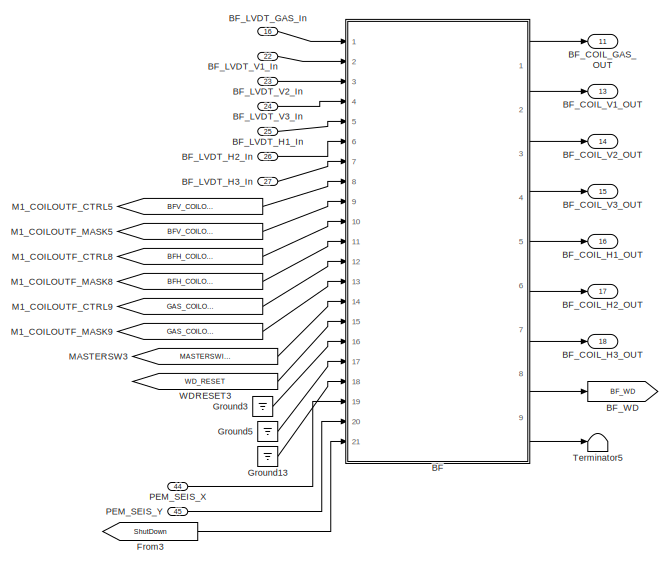
[diagram: TYPEBPMASTER_TEST - part 1/4, top left region]
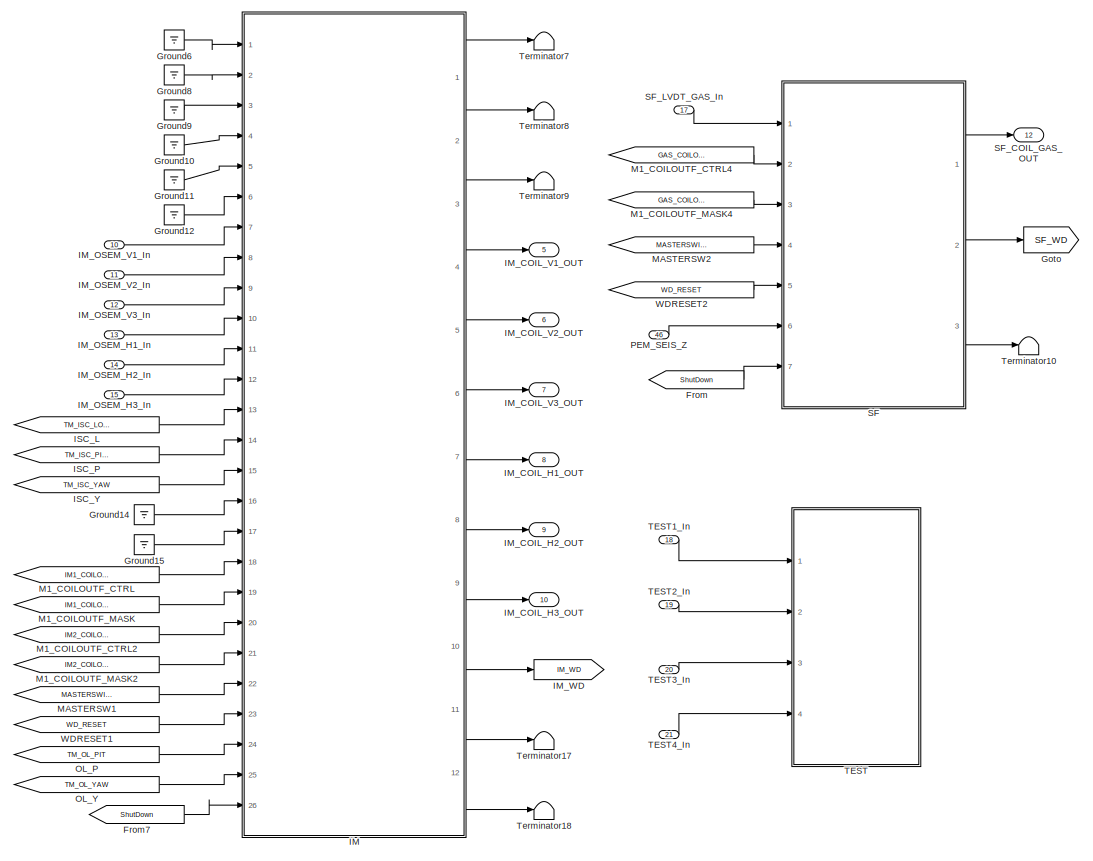
[diagram: TYPEBPMASTER_TEST - part 2/4, central region]
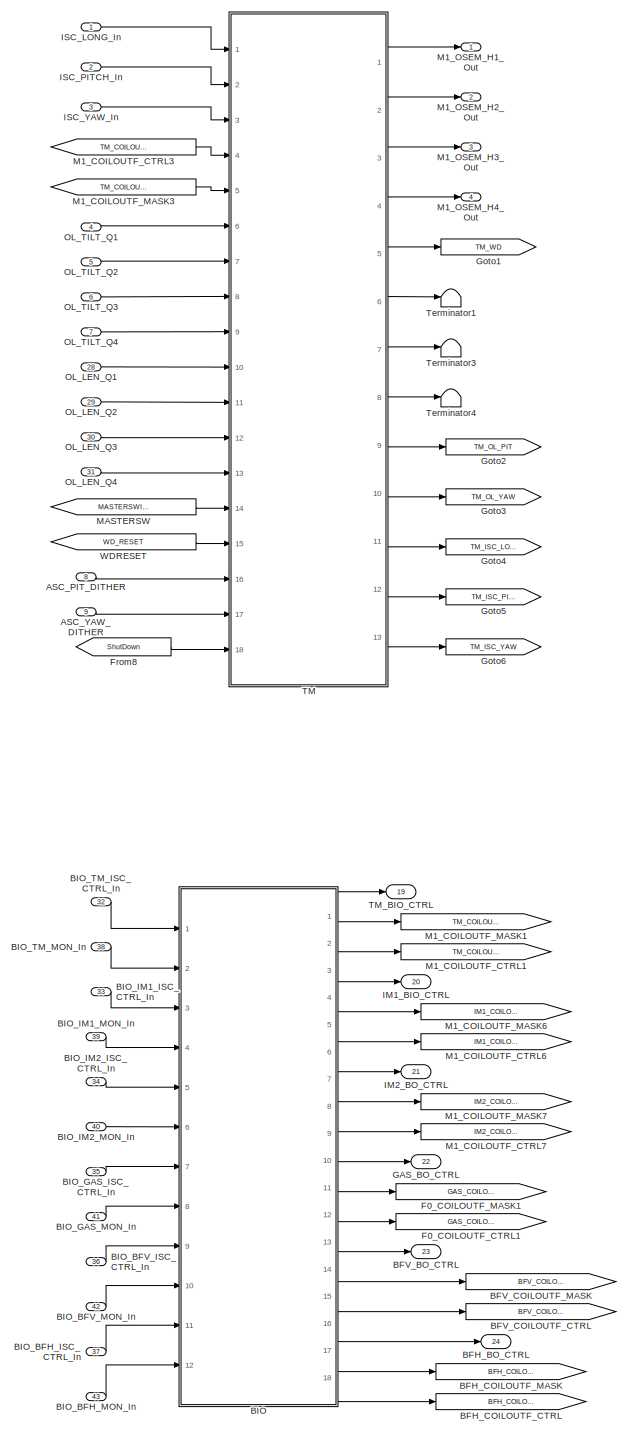
[diagram: TYPEBPMASTER_TEST - part 3/4, bottom left region]
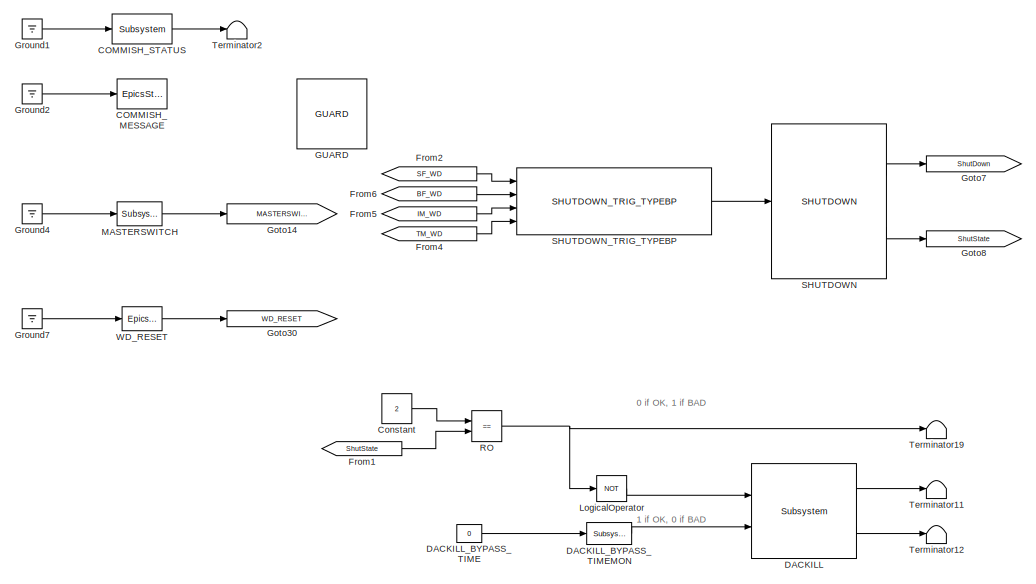
[diagram: TYPEBPMASTER_TEST - part 4/4, middle right region]
BLOCK [SubSystem] TYPEBPMASTER_TEST
  AttributesFormatString = %<Description>
  Description = TYPEBP MASTER
  Ports = [46, 24]
  RequestExecContextInheritance = off
  SID = 2
  Variant = off
BLOCK [Inport] TYPEBPMASTER_TEST/ASC_PIT_DITHER
  IconDisplay = Port number
  Port = 8
  SID = 10
BLOCK [Inport] TYPEBPMASTER_TEST/ASC_YAW_DITHER
  IconDisplay = Port number
  Port = 9
  SID = 11
BLOCK [SubSystem] TYPEBPMASTER_TEST/BF
  AncestorBlock = BF_MASTER/BF
  Ports = [21, 9]
  RequestExecContextInheritance = off
  SID = 46
  Variant = off
BLOCK [SubSystem] TYPEBPMASTER_TEST/BF/ADD
  Ports = [24, 7]
  RequestExecContextInheritance = off
  SID = 46:497
  Variant = off
BLOCK [Inport] TYPEBPMASTER_TEST/BF/ADD/DAMP_GAS_In
  IconDisplay = Port number
  Port = 20
  SID = 46:571
BLOCK [Inport] TYPEBPMASTER_TEST/BF/ADD/DAMP_L_In
  IconDisplay = Port number
  Port = 14
  SID = 46:511
BLOCK [Inport] TYPEBPMASTER_TEST/BF/ADD/DAMP_P_In
  IconDisplay = Port number
  Port = 18
  SID = 46:561
BLOCK [Inport] TYPEBPMASTER_TEST/BF/ADD/DAMP_R_In
  IconDisplay = Port number
  Port = 17
  SID = 46:514
BLOCK [Inport] TYPEBPMASTER_TEST/BF/ADD/DAMP_T_In
  IconDisplay = Port number
  Port = 15
  SID = 46:512
BLOCK [Inport] TYPEBPMASTER_TEST/BF/ADD/DAMP_V_In
  IconDisplay = Port number
  Port = 16
  SID = 46:513
BLOCK [Inport] TYPEBPMASTER_TEST/BF/ADD/DAMP_Y_In
  IconDisplay = Port number
  Port = 19
  SID = 46:562
BLOCK [Inport] TYPEBPMASTER_TEST/BF/ADD/FF_L2P_In
  IconDisplay = Port number
  Port = 23
  SID = 46:757
BLOCK [Inport] TYPEBPMASTER_TEST/BF/ADD/FF_L_In
  IconDisplay = Port number
  Port = 21
  SID = 46:743
BLOCK [Inport] TYPEBPMASTER_TEST/BF/ADD/FF_T2R_In
  IconDisplay = Port number
  Port = 24
  SID = 46:761
BLOCK [Inport] TYPEBPMASTER_TEST/BF/ADD/FF_T_In
  IconDisplay = Port number
  Port = 22
  SID = 46:745
BLOCK [From] TYPEBPMASTER_TEST/BF/ADD/From1
  CloseFcn = tagdialog Close
  GotoTag = TEST_L
  SID = 46:515
BLOCK [From] TYPEBPMASTER_TEST/BF/ADD/From10
  CloseFcn = tagdialog Close
  GotoTag = DAMP_Y
  SID = 46:516
BLOCK [From] TYPEBPMASTER_TEST/BF/ADD/From11
  CloseFcn = tagdialog Close
  GotoTag = OPTICALIGN_Y
  SID = 46:517
BLOCK [From] TYPEBPMASTER_TEST/BF/ADD/From12
  CloseFcn = tagdialog Close
  GotoTag = TEST_R
  SID = 46:518
BLOCK [From] TYPEBPMASTER_TEST/BF/ADD/From13
  CloseFcn = tagdialog Close
  GotoTag = DAMP_R
  SID = 46:519
BLOCK [From] TYPEBPMASTER_TEST/BF/ADD/From14
  CloseFcn = tagdialog Close
  GotoTag = TEST_V
  SID = 46:520
BLOCK [From] TYPEBPMASTER_TEST/BF/ADD/From15
  CloseFcn = tagdialog Close
  GotoTag = DAMP_V
  SID = 46:521
BLOCK [From] TYPEBPMASTER_TEST/BF/ADD/From16
  CloseFcn = tagdialog Close
  GotoTag = TEST_T
  SID = 46:522
BLOCK [From] TYPEBPMASTER_TEST/BF/ADD/From17
  CloseFcn = tagdialog Close
  GotoTag = DAMP_T
  SID = 46:523
BLOCK [From] TYPEBPMASTER_TEST/BF/ADD/From18
  CloseFcn = tagdialog Close
  GotoTag = DAMP_GAS
  SID = 46:565
BLOCK [From] TYPEBPMASTER_TEST/BF/ADD/From19
  CloseFcn = tagdialog Close
  GotoTag = OPTICALIGN_GAS
  SID = 46:566
BLOCK [From] TYPEBPMASTER_TEST/BF/ADD/From2
  CloseFcn = tagdialog Close
  GotoTag = ISC_L
  SID = 46:524
BLOCK [From] TYPEBPMASTER_TEST/BF/ADD/From20
  CloseFcn = tagdialog Close
  GotoTag = TEST_GAS
  SID = 46:567
BLOCK [From] TYPEBPMASTER_TEST/BF/ADD/From21
  CloseFcn = tagdialog Close
  GotoTag = FF_L
  SID = 46:747
BLOCK [From] TYPEBPMASTER_TEST/BF/ADD/From22
  CloseFcn = tagdialog Close
  GotoTag = FF_T
  SID = 46:748
BLOCK [From] TYPEBPMASTER_TEST/BF/ADD/From23
  CloseFcn = tagdialog Close
  GotoTag = FF_T2R
  SID = 46:759
BLOCK [From] TYPEBPMASTER_TEST/BF/ADD/From24
  CloseFcn = tagdialog Close
  GotoTag = FF_L2P
  SID = 46:760
BLOCK [From] TYPEBPMASTER_TEST/BF/ADD/From3
  CloseFcn = tagdialog Close
  GotoTag = DAMP_L
  SID = 46:525
BLOCK [From] TYPEBPMASTER_TEST/BF/ADD/From4
  CloseFcn = tagdialog Close
  GotoTag = TEST_P
  SID = 46:526
BLOCK [From] TYPEBPMASTER_TEST/BF/ADD/From5
  CloseFcn = tagdialog Close
  GotoTag = ISC_P
  SID = 46:527
BLOCK [From] TYPEBPMASTER_TEST/BF/ADD/From6
  CloseFcn = tagdialog Close
  GotoTag = DAMP_P
  SID = 46:528
BLOCK [From] TYPEBPMASTER_TEST/BF/ADD/From7
  CloseFcn = tagdialog Close
  GotoTag = OPTICALIGN_P
  SID = 46:529
BLOCK [From] TYPEBPMASTER_TEST/BF/ADD/From8
  CloseFcn = tagdialog Close
  GotoTag = TEST_Y
  SID = 46:530
BLOCK [From] TYPEBPMASTER_TEST/BF/ADD/From9
  CloseFcn = tagdialog Close
  GotoTag = ISC_Y
  SID = 46:531
BLOCK [Outport] TYPEBPMASTER_TEST/BF/ADD/GAS_Main_Out
  IconDisplay = Port number
  Port = 7
  SID = 46:570
BLOCK [Goto] TYPEBPMASTER_TEST/BF/ADD/Goto
  GotoTag = ISC_L
  SID = 46:532
BLOCK [Goto] TYPEBPMASTER_TEST/BF/ADD/Goto1
  GotoTag = ISC_P
  SID = 46:533
BLOCK [Goto] TYPEBPMASTER_TEST/BF/ADD/Goto10
  GotoTag = TEST_V
  SID = 46:534
BLOCK [Goto] TYPEBPMASTER_TEST/BF/ADD/Goto11
  GotoTag = DAMP_V
  SID = 46:535
BLOCK [Goto] TYPEBPMASTER_TEST/BF/ADD/Goto12
  GotoTag = DAMP_L
  SID = 46:536
BLOCK [Goto] TYPEBPMASTER_TEST/BF/ADD/Goto13
  GotoTag = DAMP_P
  SID = 46:537
BLOCK [Goto] TYPEBPMASTER_TEST/BF/ADD/Goto14
  GotoTag = DAMP_Y
  SID = 46:538
BLOCK [Goto] TYPEBPMASTER_TEST/BF/ADD/Goto15
  GotoTag = DAMP_T
  SID = 46:539
BLOCK [Goto] TYPEBPMASTER_TEST/BF/ADD/Goto16
  GotoTag = DAMP_R
  SID = 46:540
BLOCK [Goto] TYPEBPMASTER_TEST/BF/ADD/Goto17
  GotoTag = TEST_GAS
  SID = 46:563
BLOCK [Goto] TYPEBPMASTER_TEST/BF/ADD/Goto18
  GotoTag = DAMP_GAS
  SID = 46:564
BLOCK [Goto] TYPEBPMASTER_TEST/BF/ADD/Goto19
  GotoTag = OPTICALIGN_GAS
  SID = 46:572
BLOCK [Goto] TYPEBPMASTER_TEST/BF/ADD/Goto2
  GotoTag = ISC_Y
  SID = 46:541
BLOCK [Goto] TYPEBPMASTER_TEST/BF/ADD/Goto20
  GotoTag = FF_L
  SID = 46:744
BLOCK [Goto] TYPEBPMASTER_TEST/BF/ADD/Goto21
  GotoTag = FF_T
  SID = 46:746
BLOCK [Goto] TYPEBPMASTER_TEST/BF/ADD/Goto22
  GotoTag = FF_L2P
  SID = 46:758
BLOCK [Goto] TYPEBPMASTER_TEST/BF/ADD/Goto23
  GotoTag = FF_T2R
  SID = 46:762
BLOCK [Goto] TYPEBPMASTER_TEST/BF/ADD/Goto3
  GotoTag = TEST_L
  SID = 46:542
BLOCK [Goto] TYPEBPMASTER_TEST/BF/ADD/Goto4
  GotoTag = OPTICALIGN_P
  SID = 46:543
BLOCK [Goto] TYPEBPMASTER_TEST/BF/ADD/Goto5
  GotoTag = OPTICALIGN_Y
  SID = 46:544
BLOCK [Goto] TYPEBPMASTER_TEST/BF/ADD/Goto6
  GotoTag = TEST_P
  SID = 46:545
BLOCK [Goto] TYPEBPMASTER_TEST/BF/ADD/Goto7
  GotoTag = TEST_Y
  SID = 46:546
BLOCK [Goto] TYPEBPMASTER_TEST/BF/ADD/Goto8
  GotoTag = TEST_T
  SID = 46:547
BLOCK [Goto] TYPEBPMASTER_TEST/BF/ADD/Goto9
  GotoTag = TEST_R
  SID = 46:548
BLOCK [Inport] TYPEBPMASTER_TEST/BF/ADD/ISC_L_In
  IconDisplay = Port number
  SID = 46:498
BLOCK [Inport] TYPEBPMASTER_TEST/BF/ADD/ISC_P_In
  IconDisplay = Port number
  Port = 2
  SID = 46:499
BLOCK [Inport] TYPEBPMASTER_TEST/BF/ADD/ISC_Y_In
  IconDisplay = Port number
  Port = 3
  SID = 46:500
BLOCK [Outport] TYPEBPMASTER_TEST/BF/ADD/LONG_MAIN_Out
  IconDisplay = Port number
  SID = 46:555
BLOCK [Inport] TYPEBPMASTER_TEST/BF/ADD/OPTICALIGN_GAS_In
  IconDisplay = Port number
  Port = 6
  SID = 46:503
BLOCK [Inport] TYPEBPMASTER_TEST/BF/ADD/OPTICALIGN_P_In
  IconDisplay = Port number
  Port = 4
  SID = 46:501
BLOCK [Inport] TYPEBPMASTER_TEST/BF/ADD/OPTICALIGN_Y_In
  IconDisplay = Port number
  Port = 5
  SID = 46:502
BLOCK [Outport] TYPEBPMASTER_TEST/BF/ADD/PITCH_MAIN_Out
  IconDisplay = Port number
  Port = 5
  SID = 46:559
BLOCK [Outport] TYPEBPMASTER_TEST/BF/ADD/ROLL_MAIN_Out
  IconDisplay = Port number
  Port = 4
  SID = 46:558
BLOCK [Sum] TYPEBPMASTER_TEST/BF/ADD/Sum
  InputSameDT = off
  Inputs = ++++
  OutDataTypeStr = Inherit: Inherit via internal rule
  Ports = [4, 1]
  SID = 46:549
  SaturateOnIntegerOverflow = off
BLOCK [Sum] TYPEBPMASTER_TEST/BF/ADD/Sum1
  InputSameDT = off
  Inputs = +++
  OutDataTypeStr = Inherit: Inherit via internal rule
  Ports = [3, 1]
  SID = 46:550
  SaturateOnIntegerOverflow = off
BLOCK [Sum] TYPEBPMASTER_TEST/BF/ADD/Sum2
  InputSameDT = off
  OutDataTypeStr = Inherit: Inherit via internal rule
  Ports = [2, 1]
  SID = 46:551
  SaturateOnIntegerOverflow = off
BLOCK [Sum] TYPEBPMASTER_TEST/BF/ADD/Sum3
  InputSameDT = off
  Inputs = ++++
  OutDataTypeStr = Inherit: Inherit via internal rule
  Ports = [4, 1]
  SID = 46:552
  SaturateOnIntegerOverflow = off
BLOCK [Sum] TYPEBPMASTER_TEST/BF/ADD/Sum4
  InputSameDT = off
  Inputs = +++++
  OutDataTypeStr = Inherit: Inherit via internal rule
  Ports = [5, 1]
  SID = 46:553
  SaturateOnIntegerOverflow = off
BLOCK [Sum] TYPEBPMASTER_TEST/BF/ADD/Sum5
  InputSameDT = off
  Inputs = +++
  OutDataTypeStr = Inherit: Inherit via internal rule
  Ports = [3, 1]
  SID = 46:554
  SaturateOnIntegerOverflow = off
BLOCK [Sum] TYPEBPMASTER_TEST/BF/ADD/Sum6
  InputSameDT = off
  Inputs = +++
  OutDataTypeStr = Inherit: Inherit via internal rule
  Ports = [3, 1]
  SID = 46:569
  SaturateOnIntegerOverflow = off
BLOCK [Inport] TYPEBPMASTER_TEST/BF/ADD/TEST_GAS_In
  IconDisplay = Port number
  Port = 13
  SID = 46:510
BLOCK [Inport] TYPEBPMASTER_TEST/BF/ADD/TEST_L_In
  IconDisplay = Port number
  Port = 7
  SID = 46:504
BLOCK [Inport] TYPEBPMASTER_TEST/BF/ADD/TEST_P_In
  IconDisplay = Port number
  Port = 11
  SID = 46:508
BLOCK [Inport] TYPEBPMASTER_TEST/BF/ADD/TEST_R_In
  IconDisplay = Port number
  Port = 10
  SID = 46:507
BLOCK [Inport] TYPEBPMASTER_TEST/BF/ADD/TEST_T_In
  IconDisplay = Port number
  Port = 8
  SID = 46:505
BLOCK [Inport] TYPEBPMASTER_TEST/BF/ADD/TEST_V_In
  IconDisplay = Port number
  Port = 9
  SID = 46:506
BLOCK [Inport] TYPEBPMASTER_TEST/BF/ADD/TEST_Y_In
  IconDisplay = Port number
  Port = 12
  SID = 46:509
BLOCK [Outport] TYPEBPMASTER_TEST/BF/ADD/TRANS_MAIN_Out
  IconDisplay = Port number
  Port = 2
  SID = 46:556
BLOCK [Outport] TYPEBPMASTER_TEST/BF/ADD/VERT_MAIN_Out
  IconDisplay = Port number
  Port = 3
  SID = 46:557
BLOCK [Outport] TYPEBPMASTER_TEST/BF/ADD/YAW_MAIN_Out
  IconDisplay = Port number
  Port = 6
  SID = 46:560
BLOCK [BusCreator] TYPEBPMASTER_TEST/BF/Bus\nCreator1
  DisplayOption = bar
  InheritFromInputs = on
  Inputs = 'LVDT_GAS','LVDT_V1','LVDT_V2','LVDT_V3','LVDT_H1','LVDT_H2','LVDT_H3'
  Ports = [7, 1]
  SID = 46:76
BLOCK [BusSelector] TYPEBPMASTER_TEST/BF/Bus\nSelector
  OutputSignals = LVDT_GAS,LVDT_V1,LVDT_V2,LVDT_V3,LVDT_H1,LVDT_H2,LVDT_H3
  Ports = [1, 7]
  SID = 46:77
BLOCK [SubSystem] TYPEBPMASTER_TEST/BF/COILOUTF
  Ports = [13, 7]
  RequestExecContextInheritance = off
  SID = 46:113
  Variant = off
BLOCK [Inport] TYPEBPMASTER_TEST/BF/COILOUTF/CTRL_GAS
  IconDisplay = Port number
  Port = 12
  SID = 46:688
BLOCK [Inport] TYPEBPMASTER_TEST/BF/COILOUTF/CTRL_H
  IconDisplay = Port number
  Port = 10
  SID = 46:686
BLOCK [Inport] TYPEBPMASTER_TEST/BF/COILOUTF/CTRL_V
  IconDisplay = Port number
  Port = 8
  SID = 46:603
BLOCK [Reference] TYPEBPMASTER_TEST/BF/COILOUTF/GAS  REF=cdsFiltCtrl/IIR FM with control
  AttributesFormatString = %<Tag>
  Ports = [3, 2]
  SID = 46:599
  SourceBlock = cdsFiltCtrl/IIR FM with control
  SourceType = SubSystem
  Tag = cdsFiltCtrl
BLOCK [Inport] TYPEBPMASTER_TEST/BF/COILOUTF/GAS_IN
  IconDisplay = Port number
  Port = 7
  SID = 46:598
BLOCK [Outport] TYPEBPMASTER_TEST/BF/COILOUTF/GAS_Out
  IconDisplay = Port number
  Port = 7
  SID = 46:602
BLOCK [Reference] TYPEBPMASTER_TEST/BF/COILOUTF/H1  REF=cdsFiltCtrl/IIR FM with control
  AttributesFormatString = %<Tag>
  Ports = [3, 2]
  SID = 46:381
  SourceBlock = cdsFiltCtrl/IIR FM with control
  SourceType = SubSystem
  Tag = cdsFiltCtrl
BLOCK [Inport] TYPEBPMASTER_TEST/BF/COILOUTF/H1_IN
  IconDisplay = Port number
  Port = 4
  SID = 46:379
BLOCK [Outport] TYPEBPMASTER_TEST/BF/COILOUTF/H1_Out
  IconDisplay = Port number
  Port = 4
  SID = 46:383
BLOCK [Reference] TYPEBPMASTER_TEST/BF/COILOUTF/H2  REF=cdsFiltCtrl/IIR FM with control
  AttributesFormatString = %<Tag>
  Ports = [3, 2]
  SID = 46:589
  SourceBlock = cdsFiltCtrl/IIR FM with control
  SourceType = SubSystem
  Tag = cdsFiltCtrl
BLOCK [Inport] TYPEBPMASTER_TEST/BF/COILOUTF/H2_IN1
  IconDisplay = Port number
  Port = 5
  SID = 46:588
BLOCK [Outport] TYPEBPMASTER_TEST/BF/COILOUTF/H2_Out
  IconDisplay = Port number
  Port = 5
  SID = 46:592
BLOCK [Reference] TYPEBPMASTER_TEST/BF/COILOUTF/H3  REF=cdsFiltCtrl/IIR FM with control
  AttributesFormatString = %<Tag>
  Ports = [3, 2]
  SID = 46:594
  SourceBlock = cdsFiltCtrl/IIR FM with control
  SourceType = SubSystem
  Tag = cdsFiltCtrl
BLOCK [Inport] TYPEBPMASTER_TEST/BF/COILOUTF/H3_IN
  IconDisplay = Port number
  Port = 6
  SID = 46:593
BLOCK [Outport] TYPEBPMASTER_TEST/BF/COILOUTF/H3_Out
  IconDisplay = Port number
  Port = 6
  SID = 46:597
BLOCK [Inport] TYPEBPMASTER_TEST/BF/COILOUTF/MASK_GAS
  IconDisplay = Port number
  Port = 13
  SID = 46:689
BLOCK [Inport] TYPEBPMASTER_TEST/BF/COILOUTF/MASK_H
  IconDisplay = Port number
  Port = 11
  SID = 46:687
BLOCK [Inport] TYPEBPMASTER_TEST/BF/COILOUTF/MASK_V
  IconDisplay = Port number
  Port = 9
  SID = 46:604
BLOCK [Terminator] TYPEBPMASTER_TEST/BF/COILOUTF/Terminator1
  SID = 46:123
BLOCK [Terminator] TYPEBPMASTER_TEST/BF/COILOUTF/Terminator2
  SID = 46:124
BLOCK [Terminator] TYPEBPMASTER_TEST/BF/COILOUTF/Terminator3
  SID = 46:125
BLOCK [Terminator] TYPEBPMASTER_TEST/BF/COILOUTF/Terminator4
  SID = 46:382
BLOCK [Terminator] TYPEBPMASTER_TEST/BF/COILOUTF/Terminator5
  SID = 46:591
BLOCK [Terminator] TYPEBPMASTER_TEST/BF/COILOUTF/Terminator6
  SID = 46:596
BLOCK [Terminator] TYPEBPMASTER_TEST/BF/COILOUTF/Terminator7
  SID = 46:601
BLOCK [Reference] TYPEBPMASTER_TEST/BF/COILOUTF/V1  REF=cdsFiltCtrl/IIR FM with control
  AttributesFormatString = %<Tag>
  Ports = [3, 2]
  SID = 46:120
  SourceBlock = cdsFiltCtrl/IIR FM with control
  SourceType = SubSystem
  Tag = cdsFiltCtrl
BLOCK [Inport] TYPEBPMASTER_TEST/BF/COILOUTF/V1_IN
  IconDisplay = Port number
  SID = 46:114
BLOCK [Outport] TYPEBPMASTER_TEST/BF/COILOUTF/V1_Out
  IconDisplay = Port number
  SID = 46:126
BLOCK [Reference] TYPEBPMASTER_TEST/BF/COILOUTF/V2  REF=cdsFiltCtrl/IIR FM with control
  AttributesFormatString = %<Tag>
  Ports = [3, 2]
  SID = 46:121
  SourceBlock = cdsFiltCtrl/IIR FM with control
  SourceType = SubSystem
  Tag = cdsFiltCtrl
BLOCK [Inport] TYPEBPMASTER_TEST/BF/COILOUTF/V2_IN
  IconDisplay = Port number
  Port = 2
  SID = 46:115
BLOCK [Outport] TYPEBPMASTER_TEST/BF/COILOUTF/V2_Out
  IconDisplay = Port number
  Port = 2
  SID = 46:127
BLOCK [Reference] TYPEBPMASTER_TEST/BF/COILOUTF/V3  REF=cdsFiltCtrl/IIR FM with control
  AttributesFormatString = %<Tag>
  Ports = [3, 2]
  SID = 46:122
  SourceBlock = cdsFiltCtrl/IIR FM with control
  SourceType = SubSystem
  Tag = cdsFiltCtrl
BLOCK [Inport] TYPEBPMASTER_TEST/BF/COILOUTF/V3_IN
  IconDisplay = Port number
  Port = 3
  SID = 46:116
BLOCK [Outport] TYPEBPMASTER_TEST/BF/COILOUTF/V3_Out
  IconDisplay = Port number
  Port = 3
  SID = 46:128
BLOCK [Inport] TYPEBPMASTER_TEST/BF/COILOUTF_CTRL_GAS
  IconDisplay = Port number
  Port = 12
  SID = 46:692
BLOCK [Inport] TYPEBPMASTER_TEST/BF/COILOUTF_CTRL_H
  IconDisplay = Port number
  Port = 10
  SID = 46:690
BLOCK [Inport] TYPEBPMASTER_TEST/BF/COILOUTF_CTRL_V
  IconDisplay = Port number
  Port = 8
  SID = 46:314
BLOCK [Inport] TYPEBPMASTER_TEST/BF/COILOUTF_MASK_GAS
  IconDisplay = Port number
  Port = 13
  SID = 46:693
BLOCK [Inport] TYPEBPMASTER_TEST/BF/COILOUTF_MASK_H
  IconDisplay = Port number
  Port = 11
  SID = 46:691
BLOCK [Inport] TYPEBPMASTER_TEST/BF/COILOUTF_MASK_V
  IconDisplay = Port number
  Port = 9
  SID = 46:315
BLOCK [Outport] TYPEBPMASTER_TEST/BF/COIL_GAS_Out
  IconDisplay = Port number
  SID = 46:672
BLOCK [Outport] TYPEBPMASTER_TEST/BF/COIL_H1_Out
  IconDisplay = Port number
  Port = 5
  SID = 46:320
BLOCK [Outport] TYPEBPMASTER_TEST/BF/COIL_H2_Out
  IconDisplay = Port number
  Port = 6
  SID = 46:321
BLOCK [Outport] TYPEBPMASTER_TEST/BF/COIL_H3_Out
  IconDisplay = Port number
  Port = 7
  SID = 46:392
BLOCK [Outport] TYPEBPMASTER_TEST/BF/COIL_V1_Out
  IconDisplay = Port number
  Port = 2
  SID = 46:230
BLOCK [Outport] TYPEBPMASTER_TEST/BF/COIL_V2_Out
  IconDisplay = Port number
  Port = 3
  SID = 46:231
BLOCK [Outport] TYPEBPMASTER_TEST/BF/COIL_V3_Out
  IconDisplay = Port number
  Port = 4
  SID = 46:232
BLOCK [SubSystem] TYPEBPMASTER_TEST/BF/DAMP
  Ports = [7, 8]
  RequestExecContextInheritance = off
  SID = 46:394
  Variant = off
BLOCK [Outport] TYPEBPMASTER_TEST/BF/DAMP/DAMP_STATE_Out
  IconDisplay = Port number
  Port = 8
  SID = 46:469
BLOCK [Reference] TYPEBPMASTER_TEST/BF/DAMP/GAS  REF=cdsFiltCtrl/IIR FM with control
  AttributesFormatString = %<Tag>
  Ports = [3, 2]
  SID = 46:465
  SourceBlock = cdsFiltCtrl/IIR FM with control
  SourceType = SubSystem
  Tag = cdsFiltCtrl
BLOCK [Inport] TYPEBPMASTER_TEST/BF/DAMP/GAS_In
  IconDisplay = Port number
  Port = 7
  SID = 46:461
BLOCK [Outport] TYPEBPMASTER_TEST/BF/DAMP/GAS_Out
  IconDisplay = Port number
  Port = 7
  SID = 46:456
BLOCK [Reference] TYPEBPMASTER_TEST/BF/DAMP/GAS_STATE_GOOD  REF=cdsEpicsIn/Subsystem
  AttributesFormatString = %<Tag>
  Description = Purpose:                                                                              \nCreate an EPICS input channel connection to the FE realtime controls.                 \n                                                                                      \nOperation:                                                                            \nOutputs value from an EPICS ai record. Value is ...<+266ch>  <repeated x18 — deduplicated; at blocks: GAS_STATE_GOOD, L_STATE_GOOD, P_STATE_GOOD, R_STATE_GOOD, T_STATE_GOOD, V_STATE_GOOD, Y_STATE_GOOD, RMS_MAX>
  Ports = [0, 1]
  SID = 46:466
  SourceBlock = cdsEpicsIn/Subsystem
  SourceType = SubSystem
  Tag = cdsEpicsIn
BLOCK [Reference] TYPEBPMASTER_TEST/BF/DAMP/GAS_STATE_NOW  REF=cdsEpicsOut/Subsystem
  AttributesFormatString = %<Tag>
  Ports = [1, 1]
  SID = 46:467
  SourceBlock = cdsEpicsOut/Subsystem
  SourceType = SubSystem
  Tag = cdsEpicsOutput
BLOCK [Reference] TYPEBPMASTER_TEST/BF/DAMP/GAS_STATE_OK  REF=cdsEpicsOut/Subsystem
  AttributesFormatString = %<Tag>
  Ports = [1, 1]
  SID = 46:468
  SourceBlock = cdsEpicsOut/Subsystem
  SourceType = SubSystem
  Tag = cdsEpicsOutput
BLOCK [Ground] TYPEBPMASTER_TEST/BF/DAMP/Ground1
  SID = 46:406
BLOCK [Ground] TYPEBPMASTER_TEST/BF/DAMP/Ground10
  SID = 46:407
BLOCK [Ground] TYPEBPMASTER_TEST/BF/DAMP/Ground11
  SID = 46:408
BLOCK [Ground] TYPEBPMASTER_TEST/BF/DAMP/Ground12
  SID = 46:409
BLOCK [Ground] TYPEBPMASTER_TEST/BF/DAMP/Ground13
  SID = 46:462
BLOCK [Ground] TYPEBPMASTER_TEST/BF/DAMP/Ground14
  SID = 46:463
BLOCK [Ground] TYPEBPMASTER_TEST/BF/DAMP/Ground2
  SID = 46:410
BLOCK [Ground] TYPEBPMASTER_TEST/BF/DAMP/Ground3
  SID = 46:411
BLOCK [Ground] TYPEBPMASTER_TEST/BF/DAMP/Ground4
  SID = 46:412
BLOCK [Ground] TYPEBPMASTER_TEST/BF/DAMP/Ground5
  SID = 46:413
BLOCK [Ground] TYPEBPMASTER_TEST/BF/DAMP/Ground6
  SID = 46:414
BLOCK [Ground] TYPEBPMASTER_TEST/BF/DAMP/Ground7
  SID = 46:415
BLOCK [Ground] TYPEBPMASTER_TEST/BF/DAMP/Ground8
  SID = 46:416
BLOCK [Ground] TYPEBPMASTER_TEST/BF/DAMP/Ground9
  SID = 46:417
BLOCK [Reference] TYPEBPMASTER_TEST/BF/DAMP/L  REF=cdsFiltCtrl/IIR FM with control
  AttributesFormatString = %<Tag>
  Ports = [3, 2]
  SID = 46:418
  SourceBlock = cdsFiltCtrl/IIR FM with control
  SourceType = SubSystem
  Tag = cdsFiltCtrl
BLOCK [Inport] TYPEBPMASTER_TEST/BF/DAMP/LONG_In
  IconDisplay = Port number
  SID = 46:400
BLOCK [Outport] TYPEBPMASTER_TEST/BF/DAMP/LONG_Out
  IconDisplay = Port number
  SID = 46:450
BLOCK [Reference] TYPEBPMASTER_TEST/BF/DAMP/L_STATE_GOOD  REF=cdsEpicsIn/Subsystem
  AttributesFormatString = %<Tag>
  Ports = [0, 1]
  SID = 46:419
  SourceBlock = cdsEpicsIn/Subsystem
  SourceType = SubSystem
  Tag = cdsEpicsIn
BLOCK [Reference] TYPEBPMASTER_TEST/BF/DAMP/L_STATE_NOW  REF=cdsEpicsOut/Subsystem
  AttributesFormatString = %<Tag>
  Ports = [1, 1]
  SID = 46:420
  SourceBlock = cdsEpicsOut/Subsystem
  SourceType = SubSystem
  Tag = cdsEpicsOutput
BLOCK [Reference] TYPEBPMASTER_TEST/BF/DAMP/L_STATE_OK  REF=cdsEpicsOut/Subsystem
  AttributesFormatString = %<Tag>
  Ports = [1, 1]
  SID = 46:421
  SourceBlock = cdsEpicsOut/Subsystem
  SourceType = SubSystem
  Tag = cdsEpicsOutput
BLOCK [RelationalOperator] TYPEBPMASTER_TEST/BF/DAMP/Operator
  InputSameDT = off
  Operator = ==
  OutDataTypeStr = boolean
  Ports = [2, 1]
  SID = 46:422
BLOCK [RelationalOperator] TYPEBPMASTER_TEST/BF/DAMP/Operator1
  InputSameDT = off
  Operator = ==
  OutDataTypeStr = boolean
  Ports = [2, 1]
  SID = 46:423
BLOCK [RelationalOperator] TYPEBPMASTER_TEST/BF/DAMP/Operator2
  InputSameDT = off
  Operator = ==
  OutDataTypeStr = boolean
  Ports = [2, 1]
  SID = 46:424
BLOCK [RelationalOperator] TYPEBPMASTER_TEST/BF/DAMP/Operator3
  InputSameDT = off
  Operator = ==
  OutDataTypeStr = boolean
  Ports = [2, 1]
  SID = 46:425
BLOCK [RelationalOperator] TYPEBPMASTER_TEST/BF/DAMP/Operator4
  InputSameDT = off
  Operator = ==
  OutDataTypeStr = boolean
  Ports = [2, 1]
  SID = 46:426
BLOCK [RelationalOperator] TYPEBPMASTER_TEST/BF/DAMP/Operator5
  InputSameDT = off
  Operator = ==
  OutDataTypeStr = boolean
  Ports = [2, 1]
  SID = 46:427
BLOCK [RelationalOperator] TYPEBPMASTER_TEST/BF/DAMP/Operator6
  InputSameDT = off
  Operator = ==
  OutDataTypeStr = boolean
  Ports = [2, 1]
  SID = 46:464
BLOCK [Reference] TYPEBPMASTER_TEST/BF/DAMP/P  REF=cdsFiltCtrl/IIR FM with control
  AttributesFormatString = %<Tag>
  Ports = [3, 2]
  SID = 46:428
  SourceBlock = cdsFiltCtrl/IIR FM with control
  SourceType = SubSystem
  Tag = cdsFiltCtrl
BLOCK [Inport] TYPEBPMASTER_TEST/BF/DAMP/PITCH_In
  IconDisplay = Port number
  Port = 5
  SID = 46:404
BLOCK [Outport] TYPEBPMASTER_TEST/BF/DAMP/PITCH_Out
  IconDisplay = Port number
  Port = 5
  SID = 46:454
BLOCK [Reference] TYPEBPMASTER_TEST/BF/DAMP/P_STATE_GOOD  REF=cdsEpicsIn/Subsystem
  AttributesFormatString = %<Tag>
  Ports = [0, 1]
  SID = 46:429
  SourceBlock = cdsEpicsIn/Subsystem
  SourceType = SubSystem
  Tag = cdsEpicsIn
BLOCK [Reference] TYPEBPMASTER_TEST/BF/DAMP/P_STATE_NOW  REF=cdsEpicsOut/Subsystem
  AttributesFormatString = %<Tag>
  Ports = [1, 1]
  SID = 46:430
  SourceBlock = cdsEpicsOut/Subsystem
  SourceType = SubSystem
  Tag = cdsEpicsOutput
BLOCK [Reference] TYPEBPMASTER_TEST/BF/DAMP/P_STATE_OK  REF=cdsEpicsOut/Subsystem
  AttributesFormatString = %<Tag>
  Ports = [1, 1]
  SID = 46:431
  SourceBlock = cdsEpicsOut/Subsystem
  SourceType = SubSystem
  Tag = cdsEpicsOutput
BLOCK [Product] TYPEBPMASTER_TEST/BF/DAMP/Product
  InputSameDT = off
  Inputs = 7
  OutDataTypeStr = Inherit: Inherit via internal rule
  Ports = [7, 1]
  SID = 46:432
  SaturateOnIntegerOverflow = off
BLOCK [Reference] TYPEBPMASTER_TEST/BF/DAMP/R  REF=cdsFiltCtrl/IIR FM with control
  AttributesFormatString = %<Tag>
  Ports = [3, 2]
  SID = 46:433
  SourceBlock = cdsFiltCtrl/IIR FM with control
  SourceType = SubSystem
  Tag = cdsFiltCtrl
BLOCK [Inport] TYPEBPMASTER_TEST/BF/DAMP/ROLL_In
  IconDisplay = Port number
  Port = 4
  SID = 46:403
BLOCK [Outport] TYPEBPMASTER_TEST/BF/DAMP/ROLL_Out
  IconDisplay = Port number
  Port = 4
  SID = 46:453
BLOCK [Reference] TYPEBPMASTER_TEST/BF/DAMP/R_STATE_GOOD  REF=cdsEpicsIn/Subsystem
  AttributesFormatString = %<Tag>
  Ports = [0, 1]
  SID = 46:434
  SourceBlock = cdsEpicsIn/Subsystem
  SourceType = SubSystem
  Tag = cdsEpicsIn
BLOCK [Reference] TYPEBPMASTER_TEST/BF/DAMP/R_STATE_NOW  REF=cdsEpicsOut/Subsystem
  AttributesFormatString = %<Tag>
  Ports = [1, 1]
  SID = 46:435
  SourceBlock = cdsEpicsOut/Subsystem
  SourceType = SubSystem
  Tag = cdsEpicsOutput
BLOCK [Reference] TYPEBPMASTER_TEST/BF/DAMP/R_STATE_OK  REF=cdsEpicsOut/Subsystem
  AttributesFormatString = %<Tag>
  Ports = [1, 1]
  SID = 46:436
  SourceBlock = cdsEpicsOut/Subsystem
  SourceType = SubSystem
  Tag = cdsEpicsOutput
BLOCK [Reference] TYPEBPMASTER_TEST/BF/DAMP/STATE_OK  REF=cdsEpicsOut/Subsystem
  AttributesFormatString = %<Tag>
  Ports = [1, 1]
  SID = 46:437
  SourceBlock = cdsEpicsOut/Subsystem
  SourceType = SubSystem
  Tag = cdsEpicsOutput
BLOCK [Reference] TYPEBPMASTER_TEST/BF/DAMP/T  REF=cdsFiltCtrl/IIR FM with control
  AttributesFormatString = %<Tag>
  Ports = [3, 2]
  SID = 46:438
  SourceBlock = cdsFiltCtrl/IIR FM with control
  SourceType = SubSystem
  Tag = cdsFiltCtrl
BLOCK [Inport] TYPEBPMASTER_TEST/BF/DAMP/TRANS_In
  IconDisplay = Port number
  Port = 2
  SID = 46:401
BLOCK [Outport] TYPEBPMASTER_TEST/BF/DAMP/TRANS_Out
  IconDisplay = Port number
  Port = 2
  SID = 46:451
BLOCK [Reference] TYPEBPMASTER_TEST/BF/DAMP/T_STATE_GOOD  REF=cdsEpicsIn/Subsystem
  AttributesFormatString = %<Tag>
  Ports = [0, 1]
  SID = 46:439
  SourceBlock = cdsEpicsIn/Subsystem
  SourceType = SubSystem
  Tag = cdsEpicsIn
BLOCK [Reference] TYPEBPMASTER_TEST/BF/DAMP/T_STATE_NOW  REF=cdsEpicsOut/Subsystem
  AttributesFormatString = %<Tag>
  Ports = [1, 1]
  SID = 46:440
  SourceBlock = cdsEpicsOut/Subsystem
  SourceType = SubSystem
  Tag = cdsEpicsOutput
BLOCK [Reference] TYPEBPMASTER_TEST/BF/DAMP/T_STATE_OK  REF=cdsEpicsOut/Subsystem
  AttributesFormatString = %<Tag>
  Ports = [1, 1]
  SID = 46:441
  SourceBlock = cdsEpicsOut/Subsystem
  SourceType = SubSystem
  Tag = cdsEpicsOutput
BLOCK [Reference] TYPEBPMASTER_TEST/BF/DAMP/V  REF=cdsFiltCtrl/IIR FM with control
  AttributesFormatString = %<Tag>
  Ports = [3, 2]
  SID = 46:442
  SourceBlock = cdsFiltCtrl/IIR FM with control
  SourceType = SubSystem
  Tag = cdsFiltCtrl
BLOCK [Inport] TYPEBPMASTER_TEST/BF/DAMP/VERT_In
  IconDisplay = Port number
  Port = 3
  SID = 46:402
BLOCK [Outport] TYPEBPMASTER_TEST/BF/DAMP/VERT_Out
  IconDisplay = Port number
  Port = 3
  SID = 46:452
BLOCK [Reference] TYPEBPMASTER_TEST/BF/DAMP/V_STATE_GOOD  REF=cdsEpicsIn/Subsystem
  AttributesFormatString = %<Tag>
  Ports = [0, 1]
  SID = 46:443
  SourceBlock = cdsEpicsIn/Subsystem
  SourceType = SubSystem
  Tag = cdsEpicsIn
BLOCK [Reference] TYPEBPMASTER_TEST/BF/DAMP/V_STATE_NOW  REF=cdsEpicsOut/Subsystem
  AttributesFormatString = %<Tag>
  Ports = [1, 1]
  SID = 46:444
  SourceBlock = cdsEpicsOut/Subsystem
  SourceType = SubSystem
  Tag = cdsEpicsOutput
BLOCK [Reference] TYPEBPMASTER_TEST/BF/DAMP/V_STATE_OK  REF=cdsEpicsOut/Subsystem
  AttributesFormatString = %<Tag>
  Ports = [1, 1]
  SID = 46:445
  SourceBlock = cdsEpicsOut/Subsystem
  SourceType = SubSystem
  Tag = cdsEpicsOutput
BLOCK [Reference] TYPEBPMASTER_TEST/BF/DAMP/Y  REF=cdsFiltCtrl/IIR FM with control
  AttributesFormatString = %<Tag>
  Ports = [3, 2]
  SID = 46:446
  SourceBlock = cdsFiltCtrl/IIR FM with control
  SourceType = SubSystem
  Tag = cdsFiltCtrl
BLOCK [Inport] TYPEBPMASTER_TEST/BF/DAMP/YAW_In
  IconDisplay = Port number
  Port = 6
  SID = 46:405
BLOCK [Outport] TYPEBPMASTER_TEST/BF/DAMP/YAW_Out
  IconDisplay = Port number
  Port = 6
  SID = 46:455
BLOCK [Reference] TYPEBPMASTER_TEST/BF/DAMP/Y_STATE_GOOD  REF=cdsEpicsIn/Subsystem
  AttributesFormatString = %<Tag>
  Ports = [0, 1]
  SID = 46:447
  SourceBlock = cdsEpicsIn/Subsystem
  SourceType = SubSystem
  Tag = cdsEpicsIn
BLOCK [Reference] TYPEBPMASTER_TEST/BF/DAMP/Y_STATE_NOW  REF=cdsEpicsOut/Subsystem
  AttributesFormatString = %<Tag>
  Ports = [1, 1]
  SID = 46:448
  SourceBlock = cdsEpicsOut/Subsystem
  SourceType = SubSystem
  Tag = cdsEpicsOutput
BLOCK [Reference] TYPEBPMASTER_TEST/BF/DAMP/Y_STATE_OK  REF=cdsEpicsOut/Subsystem
  AttributesFormatString = %<Tag>
  Ports = [1, 1]
  SID = 46:449
  SourceBlock = cdsEpicsOut/Subsystem
  SourceType = SubSystem
  Tag = cdsEpicsOutput
BLOCK [Outport] TYPEBPMASTER_TEST/BF/DAMP_STATE_Out
  IconDisplay = Port number
  Port = 9
  SID = 46:674
BLOCK [Reference] TYPEBPMASTER_TEST/BF/DRIVEALIGN  REF=CRYP_IM_MASTER/CRYP_IM_MASTER/DRIVEALIGN
  Ports = [3, 3]
  SID = 46:730
  SourceBlock = CRYP_IM_MASTER/CRYP_IM_MASTER/DRIVEALIGN
  SourceType = SubSystem
BLOCK [Demux] TYPEBPMASTER_TEST/BF/Demux1
  DisplayOption = bar
  Outputs = 6
  Ports = [1, 6]
  SID = 46:395
BLOCK [Demux] TYPEBPMASTER_TEST/BF/Demux2
  DisplayOption = bar
  Outputs = 6
  Ports = [1, 6]
  SID = 46:396
BLOCK [Demux] TYPEBPMASTER_TEST/BF/Demux6
  DisplayOption = bar
  Outputs = 6
  Ports = [1, 6]
  SID = 46:130
BLOCK [Demux] TYPEBPMASTER_TEST/BF/Demux9
  DisplayOption = bar
  Ports = [1, 4]
  SID = 46:132
BLOCK [Reference] TYPEBPMASTER_TEST/BF/EUL2COIL  REF=cdsMuxMatrix/Subsystem
  AttributesFormatString = %<Tag>
  Description = ADL=SUS_INMATRIX.adl\nSCRIPT=generate_KisselButton.py 4 5 #CHANNEL# > #TARGET_DIR#/#FULL_PART_NAME#_KB.adl
  Ports = [1, 1]
  SID = 46:112
  SourceBlock = cdsMuxMatrix/Subsystem
  SourceType = SubSystem
  Tag = cdsMuxMatrix
BLOCK [SubSystem] TYPEBPMASTER_TEST/BF/FF
  AncestorBlock = TYPEBP_MASTER/TYPEBPMASTER_TEST/SF/FF
  Ports = [4, 4]
  RequestExecContextInheritance = off
  SID = 46:742
  Variant = off
BLOCK [Reference] TYPEBPMASTER_TEST/BF/FF/L  REF=cdsFilt/Subsystem
  AttributesFormatString = %<Tag>
  Ports = [1, 1]
  SID = 46:742:246
  SourceBlock = cdsFilt/Subsystem
  SourceType = SubSystem
  Tag = cdsFilt
BLOCK [Reference] TYPEBPMASTER_TEST/BF/FF/L2P  REF=cdsFilt/Subsystem
  AttributesFormatString = %<Tag>
  Ports = [1, 1]
  SID = 46:742:257
  SourceBlock = cdsFilt/Subsystem
  SourceType = SubSystem
  Tag = cdsFilt
BLOCK [Inport] TYPEBPMASTER_TEST/BF/FF/L2P_In
  IconDisplay = Port number
  Port = 3
  SID = 46:742:256
BLOCK [Outport] TYPEBPMASTER_TEST/BF/FF/L2P_Out
  IconDisplay = Port number
  Port = 3
  SID = 46:742:258
BLOCK [Inport] TYPEBPMASTER_TEST/BF/FF/L_In
  IconDisplay = Port number
  SID = 46:742:244
BLOCK [Outport] TYPEBPMASTER_TEST/BF/FF/L_Out
  IconDisplay = Port number
  SID = 46:742:248
BLOCK [Reference] TYPEBPMASTER_TEST/BF/FF/T  REF=cdsFilt/Subsystem
  AttributesFormatString = %<Tag>
  Ports = [1, 1]
  SID = 46:742:247
  SourceBlock = cdsFilt/Subsystem
  SourceType = SubSystem
  Tag = cdsFilt
BLOCK [Reference] TYPEBPMASTER_TEST/BF/FF/T2R  REF=cdsFilt/Subsystem
  AttributesFormatString = %<Tag>
  Ports = [1, 1]
  SID = 46:742:260
  SourceBlock = cdsFilt/Subsystem
  SourceType = SubSystem
  Tag = cdsFilt
BLOCK [Inport] TYPEBPMASTER_TEST/BF/FF/T2R_In
  IconDisplay = Port number
  Port = 4
  SID = 46:742:259
BLOCK [Outport] TYPEBPMASTER_TEST/BF/FF/T2R_Out
  IconDisplay = Port number
  Port = 4
  SID = 46:742:261
BLOCK [Inport] TYPEBPMASTER_TEST/BF/FF/T_In
  IconDisplay = Port number
  Port = 2
  SID = 46:742:245
BLOCK [Outport] TYPEBPMASTER_TEST/BF/FF/T_Out
  IconDisplay = Port number
  Port = 2
  SID = 46:742:249
BLOCK [From] TYPEBPMASTER_TEST/BF/From1
  GotoTag = GASINF2DAMP
  SID = 46:351
BLOCK [From] TYPEBPMASTER_TEST/BF/From10
  GotoTag = TESTR
  SID = 46:574
BLOCK [From] TYPEBPMASTER_TEST/BF/From11
  GotoTag = TESTP
  SID = 46:575
BLOCK [From] TYPEBPMASTER_TEST/BF/From12
  GotoTag = FF_L
  SID = 46:751
BLOCK [From] TYPEBPMASTER_TEST/BF/From13
  GotoTag = FF_T
  SID = 46:752
BLOCK [From] TYPEBPMASTER_TEST/BF/From14
  GotoTag = GASEFFMON_LO
  SID = 46:718
BLOCK [From] TYPEBPMASTER_TEST/BF/From15
  GotoTag = FF_L2P
  SID = 46:756
BLOCK [From] TYPEBPMASTER_TEST/BF/From16
  GotoTag = FF_T2R
  SID = 46:764
BLOCK [From] TYPEBPMASTER_TEST/BF/From2
  CloseFcn = tagdialog Close
  GotoTag = LVDT2WD
  SID = 46:134
BLOCK [From] TYPEBPMASTER_TEST/BF/From3
  GotoTag = TESTL
  SID = 46:369
BLOCK [From] TYPEBPMASTER_TEST/BF/From4
  CloseFcn = tagdialog Close
  GotoTag = WDBLOCKFLAG
  SID = 46:318
BLOCK [From] TYPEBPMASTER_TEST/BF/From5
  CloseFcn = tagdialog Close
  GotoTag = DAMPSTATE
  SID = 46:319
BLOCK [From] TYPEBPMASTER_TEST/BF/From6
  GotoTag = TESTT
  SID = 46:370
BLOCK [From] TYPEBPMASTER_TEST/BF/From7
  GotoTag = TESTY
  SID = 46:371
BLOCK [From] TYPEBPMASTER_TEST/BF/From8
  GotoTag = TESTGAS
  SID = 46:372
BLOCK [From] TYPEBPMASTER_TEST/BF/From9
  GotoTag = TESTV
  SID = 46:573
BLOCK [Reference] TYPEBPMASTER_TEST/BF/GAS_EFFMON_OSC  REF=cdsOsc/Subsystem
  AttributesFormatString = %<Tag>
  Description = Oscillator
  Ports = [1, 3]
  SID = 46:708
  SourceBlock = cdsOsc/Subsystem
  SourceType = SubSystem
  Tag = cdsOsc
BLOCK [Goto] TYPEBPMASTER_TEST/BF/Goto
  GotoTag = WDBLOCKFLAG
  SID = 46:157
BLOCK [Goto] TYPEBPMASTER_TEST/BF/Goto1
  GotoTag = GASINF2DAMP
  SID = 46:350
BLOCK [Goto] TYPEBPMASTER_TEST/BF/Goto10
  GotoTag = TESTP
  SID = 46:496
BLOCK [Goto] TYPEBPMASTER_TEST/BF/Goto11
  GotoTag = FF_L
  SID = 46:749
BLOCK [Goto] TYPEBPMASTER_TEST/BF/Goto12
  GotoTag = GASEFFMON_LO
  SID = 46:713
BLOCK [Goto] TYPEBPMASTER_TEST/BF/Goto13
  GotoTag = FF_T
  SID = 46:750
BLOCK [Goto] TYPEBPMASTER_TEST/BF/Goto14
  GotoTag = FF_L2P
  SID = 46:754
BLOCK [Goto] TYPEBPMASTER_TEST/BF/Goto15
  GotoTag = FF_T2R
  SID = 46:755
BLOCK [Goto] TYPEBPMASTER_TEST/BF/Goto2
  GotoTag = LVDT2WD
  SID = 46:158
BLOCK [Goto] TYPEBPMASTER_TEST/BF/Goto3
  GotoTag = DAMPSTATE
  SID = 46:288
BLOCK [Goto] TYPEBPMASTER_TEST/BF/Goto4
  GotoTag = TESTL
  SID = 46:365
BLOCK [Goto] TYPEBPMASTER_TEST/BF/Goto5
  GotoTag = TESTT
  SID = 46:366
BLOCK [Goto] TYPEBPMASTER_TEST/BF/Goto6
  GotoTag = TESTY
  SID = 46:367
BLOCK [Goto] TYPEBPMASTER_TEST/BF/Goto7
  GotoTag = TESTGAS
  SID = 46:368
BLOCK [Goto] TYPEBPMASTER_TEST/BF/Goto8
  GotoTag = TESTV
  SID = 46:494
BLOCK [Goto] TYPEBPMASTER_TEST/BF/Goto9
  GotoTag = TESTR
  SID = 46:495
BLOCK [Ground] TYPEBPMASTER_TEST/BF/Ground
  SID = 46:721
BLOCK [Ground] TYPEBPMASTER_TEST/BF/Ground15
  SID = 46:576
BLOCK [SubSystem] TYPEBPMASTER_TEST/BF/LVDTINF
  Ports = [7, 7]
  RequestExecContextInheritance = off
  SID = 46:159
  Variant = off
BLOCK [Reference] TYPEBPMASTER_TEST/BF/LVDTINF/GAS  REF=cdsFilt/Subsystem
  AttributesFormatString = %<Tag>
  Ports = [1, 1]
  SID = 46:334
  SourceBlock = cdsFilt/Subsystem
  SourceType = SubSystem
  Tag = cdsFilt
BLOCK [Inport] TYPEBPMASTER_TEST/BF/LVDTINF/GAS_In
  IconDisplay = Port number
  SID = 46:160
BLOCK [Outport] TYPEBPMASTER_TEST/BF/LVDTINF/GAS_Out
  IconDisplay = Port number
  SID = 46:172
BLOCK [Reference] TYPEBPMASTER_TEST/BF/LVDTINF/H1  REF=cdsFilt/Subsystem
  AttributesFormatString = %<Tag>
  Ports = [1, 1]
  SID = 46:678
  SourceBlock = cdsFilt/Subsystem
  SourceType = SubSystem
  Tag = cdsFilt
BLOCK [Inport] TYPEBPMASTER_TEST/BF/LVDTINF/H1_In
  IconDisplay = Port number
  Port = 5
  SID = 46:675
BLOCK [Outport] TYPEBPMASTER_TEST/BF/LVDTINF/H1_Out
  IconDisplay = Port number
  Port = 5
  SID = 46:681
BLOCK [Reference] TYPEBPMASTER_TEST/BF/LVDTINF/H2  REF=cdsFilt/Subsystem
  AttributesFormatString = %<Tag>
  Ports = [1, 1]
  SID = 46:679
  SourceBlock = cdsFilt/Subsystem
  SourceType = SubSystem
  Tag = cdsFilt
BLOCK [Inport] TYPEBPMASTER_TEST/BF/LVDTINF/H2_In
  IconDisplay = Port number
  Port = 6
  SID = 46:676
BLOCK [Outport] TYPEBPMASTER_TEST/BF/LVDTINF/H2_Out
  IconDisplay = Port number
  Port = 6
  SID = 46:682
BLOCK [Reference] TYPEBPMASTER_TEST/BF/LVDTINF/H3  REF=cdsFilt/Subsystem
  AttributesFormatString = %<Tag>
  Ports = [1, 1]
  SID = 46:680
  SourceBlock = cdsFilt/Subsystem
  SourceType = SubSystem
  Tag = cdsFilt
BLOCK [Inport] TYPEBPMASTER_TEST/BF/LVDTINF/H3_In
  IconDisplay = Port number
  Port = 7
  SID = 46:677
BLOCK [Outport] TYPEBPMASTER_TEST/BF/LVDTINF/H3_Out
  IconDisplay = Port number
  Port = 7
  SID = 46:683
BLOCK [Reference] TYPEBPMASTER_TEST/BF/LVDTINF/V1  REF=cdsFilt/Subsystem
  AttributesFormatString = %<Tag>
  Ports = [1, 1]
  SID = 46:276
  SourceBlock = cdsFilt/Subsystem
  SourceType = SubSystem
  Tag = cdsFilt
BLOCK [Inport] TYPEBPMASTER_TEST/BF/LVDTINF/V1_In
  IconDisplay = Port number
  Port = 2
  SID = 46:161
BLOCK [Outport] TYPEBPMASTER_TEST/BF/LVDTINF/V1_Out
  IconDisplay = Port number
  Port = 2
  SID = 46:173
BLOCK [Reference] TYPEBPMASTER_TEST/BF/LVDTINF/V2  REF=cdsFilt/Subsystem
  AttributesFormatString = %<Tag>
  Ports = [1, 1]
  SID = 46:277
  SourceBlock = cdsFilt/Subsystem
  SourceType = SubSystem
  Tag = cdsFilt
BLOCK [Inport] TYPEBPMASTER_TEST/BF/LVDTINF/V2_In
  IconDisplay = Port number
  Port = 3
  SID = 46:162
BLOCK [Outport] TYPEBPMASTER_TEST/BF/LVDTINF/V2_Out
  IconDisplay = Port number
  Port = 3
  SID = 46:174
BLOCK [Reference] TYPEBPMASTER_TEST/BF/LVDTINF/V3  REF=cdsFilt/Subsystem
  AttributesFormatString = %<Tag>
  Ports = [1, 1]
  SID = 46:278
  SourceBlock = cdsFilt/Subsystem
  SourceType = SubSystem
  Tag = cdsFilt
BLOCK [Inport] TYPEBPMASTER_TEST/BF/LVDTINF/V3_In
  IconDisplay = Port number
  Port = 4
  SID = 46:335
BLOCK [Outport] TYPEBPMASTER_TEST/BF/LVDTINF/V3_Out
  IconDisplay = Port number
  Port = 4
  SID = 46:336
BLOCK [Inport] TYPEBPMASTER_TEST/BF/LVDT_GAS_In
  IconDisplay = Port number
  SID = 46:333
BLOCK [Inport] TYPEBPMASTER_TEST/BF/LVDT_H1_In
  IconDisplay = Port number
  Port = 5
  SID = 46:5
BLOCK [Inport] TYPEBPMASTER_TEST/BF/LVDT_H2_In
  IconDisplay = Port number
  Port = 6
  SID = 46:6
BLOCK [Inport] TYPEBPMASTER_TEST/BF/LVDT_H3_In
  IconDisplay = Port number
  Port = 7
  SID = 46:7
BLOCK [Inport] TYPEBPMASTER_TEST/BF/LVDT_V1_In
  IconDisplay = Port number
  Port = 2
  SID = 46:2
BLOCK [Inport] TYPEBPMASTER_TEST/BF/LVDT_V2_In
  IconDisplay = Port number
  Port = 3
  SID = 46:3
BLOCK [Inport] TYPEBPMASTER_TEST/BF/LVDT_V3_In
  IconDisplay = Port number
  Port = 4
  SID = 46:4
BLOCK [SubSystem] TYPEBPMASTER_TEST/BF/MASTER
  Ports = [9, 7]
  RequestExecContextInheritance = off
  SID = 46:605
  Variant = off
BLOCK [Sum] TYPEBPMASTER_TEST/BF/MASTER/Add
  InputSameDT = off
  Inputs = -+
  OutDataTypeStr = Inherit: Inherit via internal rule
  Ports = [2, 1]
  SID = 46:775
  SaturateOnIntegerOverflow = off
BLOCK [Constant] TYPEBPMASTER_TEST/BF/MASTER/Constant1
  SID = 46:616
BLOCK [Inport] TYPEBPMASTER_TEST/BF/MASTER/GAS_In
  IconDisplay = Port number
  Port = 7
  SID = 46:671
BLOCK [Outport] TYPEBPMASTER_TEST/BF/MASTER/GAS_Out
  IconDisplay = Port number
  Port = 7
  SID = 46:670
BLOCK [Inport] TYPEBPMASTER_TEST/BF/MASTER/H1_In
  IconDisplay = Port number
  Port = 4
  SID = 46:609
BLOCK [Outport] TYPEBPMASTER_TEST/BF/MASTER/H1_Out
  IconDisplay = Port number
  Port = 4
  SID = 46:658
BLOCK [Inport] TYPEBPMASTER_TEST/BF/MASTER/H2_In
  IconDisplay = Port number
  Port = 5
  SID = 46:610
BLOCK [Outport] TYPEBPMASTER_TEST/BF/MASTER/H2_Out
  IconDisplay = Port number
  Port = 5
  SID = 46:659
BLOCK [Inport] TYPEBPMASTER_TEST/BF/MASTER/H3_In
  IconDisplay = Port number
  Port = 6
  SID = 46:611
BLOCK [Outport] TYPEBPMASTER_TEST/BF/MASTER/H3_Out
  IconDisplay = Port number
  Port = 6
  SID = 46:660
BLOCK [Inport] TYPEBPMASTER_TEST/BF/MASTER/MASTERSWITCH
  IconDisplay = Port number
  Port = 9
  SID = 46:612
BLOCK [Reference] TYPEBPMASTER_TEST/BF/MASTER/OUT_GAS  REF=cdsTP/Subsystem
  AttributesFormatString = %<Tag>
  Ports = [1]
  SID = 46:664
  SourceBlock = cdsTP/Subsystem
  SourceType = SubSystem
  Tag = Test Point
BLOCK [Reference] TYPEBPMASTER_TEST/BF/MASTER/OUT_GASMON  REF=cdsEpicsOut/Subsystem
  AttributesFormatString = %<Tag>
  Ports = [1, 1]
  SID = 46:665
  SourceBlock = cdsEpicsOut/Subsystem
  SourceType = SubSystem
  Tag = cdsEpicsOutput
BLOCK [Reference] TYPEBPMASTER_TEST/BF/MASTER/OUT_H1  REF=cdsTP/Subsystem
  AttributesFormatString = %<Tag>
  Ports = [1]
  SID = 46:617
  SourceBlock = cdsTP/Subsystem
  SourceType = SubSystem
  Tag = Test Point
BLOCK [Reference] TYPEBPMASTER_TEST/BF/MASTER/OUT_H1MON  REF=cdsEpicsOut/Subsystem
  AttributesFormatString = %<Tag>
  Ports = [1, 1]
  SID = 46:618
  SourceBlock = cdsEpicsOut/Subsystem
  SourceType = SubSystem
  Tag = cdsEpicsOutput
BLOCK [Reference] TYPEBPMASTER_TEST/BF/MASTER/OUT_H2  REF=cdsTP/Subsystem
  AttributesFormatString = %<Tag>
  Ports = [1]
  SID = 46:619
  SourceBlock = cdsTP/Subsystem
  SourceType = SubSystem
  Tag = Test Point
BLOCK [Reference] TYPEBPMASTER_TEST/BF/MASTER/OUT_H2MON  REF=cdsEpicsOut/Subsystem
  AttributesFormatString = %<Tag>
  Ports = [1, 1]
  SID = 46:620
  SourceBlock = cdsEpicsOut/Subsystem
  SourceType = SubSystem
  Tag = cdsEpicsOutput
BLOCK [Reference] TYPEBPMASTER_TEST/BF/MASTER/OUT_H3  REF=cdsTP/Subsystem
  AttributesFormatString = %<Tag>
  Ports = [1]
  SID = 46:621
  SourceBlock = cdsTP/Subsystem
  SourceType = SubSystem
  Tag = Test Point
BLOCK [Reference] TYPEBPMASTER_TEST/BF/MASTER/OUT_H3MON  REF=cdsEpicsOut/Subsystem
  AttributesFormatString = %<Tag>
  Ports = [1, 1]
  SID = 46:622
  SourceBlock = cdsEpicsOut/Subsystem
  SourceType = SubSystem
  Tag = cdsEpicsOutput
BLOCK [Reference] TYPEBPMASTER_TEST/BF/MASTER/OUT_V1  REF=cdsTP/Subsystem
  AttributesFormatString = %<Tag>
  Ports = [1]
  SID = 46:623
  SourceBlock = cdsTP/Subsystem
  SourceType = SubSystem
  Tag = Test Point
BLOCK [Reference] TYPEBPMASTER_TEST/BF/MASTER/OUT_V1MON  REF=cdsEpicsOut/Subsystem
  AttributesFormatString = %<Tag>
  Ports = [1, 1]
  SID = 46:624
  SourceBlock = cdsEpicsOut/Subsystem
  SourceType = SubSystem
  Tag = cdsEpicsOutput
BLOCK [Reference] TYPEBPMASTER_TEST/BF/MASTER/OUT_V2  REF=cdsTP/Subsystem
  AttributesFormatString = %<Tag>
  Ports = [1]
  SID = 46:625
  SourceBlock = cdsTP/Subsystem
  SourceType = SubSystem
  Tag = Test Point
BLOCK [Reference] TYPEBPMASTER_TEST/BF/MASTER/OUT_V2MON  REF=cdsEpicsOut/Subsystem
  AttributesFormatString = %<Tag>
  Ports = [1, 1]
  SID = 46:626
  SourceBlock = cdsEpicsOut/Subsystem
  SourceType = SubSystem
  Tag = cdsEpicsOutput
BLOCK [Reference] TYPEBPMASTER_TEST/BF/MASTER/OUT_V3  REF=cdsTP/Subsystem
  AttributesFormatString = %<Tag>
  Ports = [1]
  SID = 46:627
  SourceBlock = cdsTP/Subsystem
  SourceType = SubSystem
  Tag = Test Point
BLOCK [Reference] TYPEBPMASTER_TEST/BF/MASTER/OUT_V3MON  REF=cdsEpicsOut/Subsystem
  AttributesFormatString = %<Tag>
  Ports = [1, 1]
  SID = 46:628
  SourceBlock = cdsEpicsOut/Subsystem
  SourceType = SubSystem
  Tag = cdsEpicsOutput
BLOCK [Reference] TYPEBPMASTER_TEST/BF/MASTER/PWD_GAS  REF=cdsTP/Subsystem
  AttributesFormatString = %<Tag>
  Ports = [1]
  SID = 46:666
  SourceBlock = cdsTP/Subsystem
  SourceType = SubSystem
  Tag = Test Point
BLOCK [Reference] TYPEBPMASTER_TEST/BF/MASTER/PWD_GASMON  REF=cdsEpicsOut/Subsystem
  AttributesFormatString = %<Tag>
  Ports = [1, 1]
  SID = 46:667
  SourceBlock = cdsEpicsOut/Subsystem
  SourceType = SubSystem
  Tag = cdsEpicsOutput
BLOCK [Reference] TYPEBPMASTER_TEST/BF/MASTER/PWD_H1  REF=cdsTP/Subsystem
  AttributesFormatString = %<Tag>
  Ports = [1]
  SID = 46:629
  SourceBlock = cdsTP/Subsystem
  SourceType = SubSystem
  Tag = Test Point
BLOCK [Reference] TYPEBPMASTER_TEST/BF/MASTER/PWD_H1MON  REF=cdsEpicsOut/Subsystem
  AttributesFormatString = %<Tag>
  Ports = [1, 1]
  SID = 46:630
  SourceBlock = cdsEpicsOut/Subsystem
  SourceType = SubSystem
  Tag = cdsEpicsOutput
BLOCK [Reference] TYPEBPMASTER_TEST/BF/MASTER/PWD_H2  REF=cdsTP/Subsystem
  AttributesFormatString = %<Tag>
  Ports = [1]
  SID = 46:631
  SourceBlock = cdsTP/Subsystem
  SourceType = SubSystem
  Tag = Test Point
BLOCK [Reference] TYPEBPMASTER_TEST/BF/MASTER/PWD_H2MON  REF=cdsEpicsOut/Subsystem
  AttributesFormatString = %<Tag>
  Ports = [1, 1]
  SID = 46:632
  SourceBlock = cdsEpicsOut/Subsystem
  SourceType = SubSystem
  Tag = cdsEpicsOutput
BLOCK [Reference] TYPEBPMASTER_TEST/BF/MASTER/PWD_H3  REF=cdsTP/Subsystem
  AttributesFormatString = %<Tag>
  Ports = [1]
  SID = 46:633
  SourceBlock = cdsTP/Subsystem
  SourceType = SubSystem
  Tag = Test Point
BLOCK [Reference] TYPEBPMASTER_TEST/BF/MASTER/PWD_H3MON  REF=cdsEpicsOut/Subsystem
  AttributesFormatString = %<Tag>
  Ports = [1, 1]
  SID = 46:634
  SourceBlock = cdsEpicsOut/Subsystem
  SourceType = SubSystem
  Tag = cdsEpicsOutput
BLOCK [Reference] TYPEBPMASTER_TEST/BF/MASTER/PWD_V1  REF=cdsTP/Subsystem
  AttributesFormatString = %<Tag>
  Ports = [1]
  SID = 46:635
  SourceBlock = cdsTP/Subsystem
  SourceType = SubSystem
  Tag = Test Point
BLOCK [Reference] TYPEBPMASTER_TEST/BF/MASTER/PWD_V1MON  REF=cdsEpicsOut/Subsystem
  AttributesFormatString = %<Tag>
  Ports = [1, 1]
  SID = 46:636
  SourceBlock = cdsEpicsOut/Subsystem
  SourceType = SubSystem
  Tag = cdsEpicsOutput
BLOCK [Reference] TYPEBPMASTER_TEST/BF/MASTER/PWD_V2  REF=cdsTP/Subsystem
  AttributesFormatString = %<Tag>
  Ports = [1]
  SID = 46:637
  SourceBlock = cdsTP/Subsystem
  SourceType = SubSystem
  Tag = Test Point
BLOCK [Reference] TYPEBPMASTER_TEST/BF/MASTER/PWD_V2MON  REF=cdsEpicsOut/Subsystem
  AttributesFormatString = %<Tag>
  Ports = [1, 1]
  SID = 46:638
  SourceBlock = cdsEpicsOut/Subsystem
  SourceType = SubSystem
  Tag = cdsEpicsOutput
BLOCK [Reference] TYPEBPMASTER_TEST/BF/MASTER/PWD_V3  REF=cdsTP/Subsystem
  AttributesFormatString = %<Tag>
  Ports = [1]
  SID = 46:639
  SourceBlock = cdsTP/Subsystem
  SourceType = SubSystem
  Tag = Test Point
BLOCK [Reference] TYPEBPMASTER_TEST/BF/MASTER/PWD_V3MON  REF=cdsEpicsOut/Subsystem
  AttributesFormatString = %<Tag>
  Ports = [1, 1]
  SID = 46:640
  SourceBlock = cdsEpicsOut/Subsystem
  SourceType = SubSystem
  Tag = cdsEpicsOutput
BLOCK [Product] TYPEBPMASTER_TEST/BF/MASTER/P_MS_GAS
  InputSameDT = off
  OutDataTypeStr = Inherit: Inherit via internal rule
  Ports = [2, 1]
  SID = 46:668
  SaturateOnIntegerOverflow = off
BLOCK [Product] TYPEBPMASTER_TEST/BF/MASTER/P_MS_H1
  InputSameDT = off
  OutDataTypeStr = Inherit: Inherit via internal rule
  Ports = [2, 1]
  SID = 46:641
  SaturateOnIntegerOverflow = off
BLOCK [Product] TYPEBPMASTER_TEST/BF/MASTER/P_MS_H2
  InputSameDT = off
  OutDataTypeStr = Inherit: Inherit via internal rule
  Ports = [2, 1]
  SID = 46:642
  SaturateOnIntegerOverflow = off
BLOCK [Product] TYPEBPMASTER_TEST/BF/MASTER/P_MS_H3
  InputSameDT = off
  OutDataTypeStr = Inherit: Inherit via internal rule
  Ports = [2, 1]
  SID = 46:643
  SaturateOnIntegerOverflow = off
BLOCK [Product] TYPEBPMASTER_TEST/BF/MASTER/P_MS_V1
  InputSameDT = off
  OutDataTypeStr = Inherit: Inherit via internal rule
  Ports = [2, 1]
  SID = 46:644
  SaturateOnIntegerOverflow = off
BLOCK [Product] TYPEBPMASTER_TEST/BF/MASTER/P_MS_V2
  InputSameDT = off
  OutDataTypeStr = Inherit: Inherit via internal rule
  Ports = [2, 1]
  SID = 46:645
  SaturateOnIntegerOverflow = off
BLOCK [Product] TYPEBPMASTER_TEST/BF/MASTER/P_MS_V3
  InputSameDT = off
  OutDataTypeStr = Inherit: Inherit via internal rule
  Ports = [2, 1]
  SID = 46:646
  SaturateOnIntegerOverflow = off
BLOCK [Product] TYPEBPMASTER_TEST/BF/MASTER/P_WD_GAS
  InputSameDT = off
  OutDataTypeStr = Inherit: Inherit via internal rule
  Ports = [2, 1]
  SID = 46:669
  SaturateOnIntegerOverflow = off
BLOCK [Product] TYPEBPMASTER_TEST/BF/MASTER/P_WD_H1
  InputSameDT = off
  OutDataTypeStr = Inherit: Inherit via internal rule
  Ports = [2, 1]
  SID = 46:647
  SaturateOnIntegerOverflow = off
BLOCK [Product] TYPEBPMASTER_TEST/BF/MASTER/P_WD_H2
  InputSameDT = off
  OutDataTypeStr = Inherit: Inherit via internal rule
  Ports = [2, 1]
  SID = 46:648
  SaturateOnIntegerOverflow = off
BLOCK [Product] TYPEBPMASTER_TEST/BF/MASTER/P_WD_H3
  InputSameDT = off
  OutDataTypeStr = Inherit: Inherit via internal rule
  Ports = [2, 1]
  SID = 46:649
  SaturateOnIntegerOverflow = off
BLOCK [Product] TYPEBPMASTER_TEST/BF/MASTER/P_WD_V1
  InputSameDT = off
  OutDataTypeStr = Inherit: Inherit via internal rule
  Ports = [2, 1]
  SID = 46:650
  SaturateOnIntegerOverflow = off
BLOCK [Product] TYPEBPMASTER_TEST/BF/MASTER/P_WD_V2
  InputSameDT = off
  OutDataTypeStr = Inherit: Inherit via internal rule
  Ports = [2, 1]
  SID = 46:651
  SaturateOnIntegerOverflow = off
BLOCK [Product] TYPEBPMASTER_TEST/BF/MASTER/P_WD_V3
  InputSameDT = off
  OutDataTypeStr = Inherit: Inherit via internal rule
  Ports = [2, 1]
  SID = 46:652
  SaturateOnIntegerOverflow = off
BLOCK [Reference] TYPEBPMASTER_TEST/BF/MASTER/SWITCHMON  REF=cdsEpicsOut/Subsystem
  AttributesFormatString = %<Tag>
  Ports = [1, 1]
  SID = 46:653
  SourceBlock = cdsEpicsOut/Subsystem
  SourceType = SubSystem
  Tag = cdsEpicsOutput
BLOCK [Terminator] TYPEBPMASTER_TEST/BF/MASTER/Terminator2
  SID = 46:654
BLOCK [Inport] TYPEBPMASTER_TEST/BF/MASTER/V1_In
  IconDisplay = Port number
  SID = 46:606
BLOCK [Outport] TYPEBPMASTER_TEST/BF/MASTER/V1_Out
  IconDisplay = Port number
  SID = 46:655
BLOCK [Inport] TYPEBPMASTER_TEST/BF/MASTER/V2_In
  IconDisplay = Port number
  Port = 2
  SID = 46:607
BLOCK [Outport] TYPEBPMASTER_TEST/BF/MASTER/V2_Out
  IconDisplay = Port number
  Port = 2
  SID = 46:656
BLOCK [Inport] TYPEBPMASTER_TEST/BF/MASTER/V3_In
  IconDisplay = Port number
  Port = 3
  SID = 46:608
BLOCK [Outport] TYPEBPMASTER_TEST/BF/MASTER/V3_Out
  IconDisplay = Port number
  Port = 3
  SID = 46:657
BLOCK [Inport] TYPEBPMASTER_TEST/BF/MASTER/WDFLAG
  IconDisplay = Port number
  Port = 8
  SID = 46:613
BLOCK [Inport] TYPEBPMASTER_TEST/BF/MASTERSW_In
  IconDisplay = Port number
  Port = 14
  SID = 46:8
BLOCK [Mux] TYPEBPMASTER_TEST/BF/Mux1
  DisplayOption = bar
  Inputs = 6
  Ports = [6, 1]
  SID = 46:397
BLOCK [Mux] TYPEBPMASTER_TEST/BF/Mux6
  DisplayOption = bar
  Inputs = 6
  Ports = [6, 1]
  SID = 46:177
BLOCK [Mux] TYPEBPMASTER_TEST/BF/Mux7
  DisplayOption = bar
  Inputs = 6
  Ports = [6, 1]
  SID = 46:178
BLOCK [Mux] TYPEBPMASTER_TEST/BF/Mux9
  DisplayOption = bar
  Inputs = 2
  Ports = [2, 1]
  SID = 46:179
BLOCK [Reference] TYPEBPMASTER_TEST/BF/OLDAMP  REF=VIS_LIB/DAMP
  Ports = [3, 4]
  SID = 46:727
  SourceBlock = VIS_LIB/DAMP
  SourceType = SubSystem
BLOCK [Inport] TYPEBPMASTER_TEST/BF/OLDAMP_LONG
  IconDisplay = Port number
  Port = 16
  SID = 46:724
BLOCK [Inport] TYPEBPMASTER_TEST/BF/OLDAMP_PIT
  IconDisplay = Port number
  Port = 17
  SID = 46:725
BLOCK [Inport] TYPEBPMASTER_TEST/BF/OLDAMP_YAW
  IconDisplay = Port number
  Port = 18
  SID = 46:726
BLOCK [SubSystem] TYPEBPMASTER_TEST/BF/OPTICALIGN
  Ports = [0, 3]
  RequestExecContextInheritance = off
  SID = 46:578
  Variant = off
BLOCK [Reference] TYPEBPMASTER_TEST/BF/OPTICALIGN/GAS  REF=cdsFilt/Subsystem
  AttributesFormatString = %<Tag>
  Ports = [1, 1]
  SID = 46:586
  SourceBlock = cdsFilt/Subsystem
  SourceType = SubSystem
  Tag = cdsFilt
BLOCK [Outport] TYPEBPMASTER_TEST/BF/OPTICALIGN/GAS_Out
  IconDisplay = Port number
  Port = 3
  SID = 46:587
BLOCK [Ground] TYPEBPMASTER_TEST/BF/OPTICALIGN/Ground1
  SID = 46:579
BLOCK [Ground] TYPEBPMASTER_TEST/BF/OPTICALIGN/Ground2
  SID = 46:580
BLOCK [Ground] TYPEBPMASTER_TEST/BF/OPTICALIGN/Ground3
  SID = 46:585
BLOCK [Reference] TYPEBPMASTER_TEST/BF/OPTICALIGN/P  REF=cdsFilt/Subsystem
  AttributesFormatString = %<Tag>
  Ports = [1, 1]
  SID = 46:581
  SourceBlock = cdsFilt/Subsystem
  SourceType = SubSystem
  Tag = cdsFilt
BLOCK [Outport] TYPEBPMASTER_TEST/BF/OPTICALIGN/PITCH_Out
  IconDisplay = Port number
  SID = 46:583
BLOCK [Reference] TYPEBPMASTER_TEST/BF/OPTICALIGN/Y  REF=cdsFilt/Subsystem
  AttributesFormatString = %<Tag>
  Ports = [1, 1]
  SID = 46:582
  SourceBlock = cdsFilt/Subsystem
  SourceType = SubSystem
  Tag = cdsFilt
BLOCK [Outport] TYPEBPMASTER_TEST/BF/OPTICALIGN/YAW_Out
  IconDisplay = Port number
  Port = 2
  SID = 46:584
BLOCK [Inport] TYPEBPMASTER_TEST/BF/PEM_SEIS_X_IN
  IconDisplay = Port number
  Port = 19
  SID = 46:731
BLOCK [Inport] TYPEBPMASTER_TEST/BF/PEM_SEIS_Y_IN
  IconDisplay = Port number
  Port = 20
  SID = 46:740
BLOCK [SubSystem] TYPEBPMASTER_TEST/BF/SC
  Ports = [4, 4]
  RequestExecContextInheritance = off
  SID = 46:732
  Variant = off
BLOCK [Reference] TYPEBPMASTER_TEST/BF/SC/L  REF=cdsFilt/Subsystem
  AttributesFormatString = %<Tag>
  Ports = [1, 1]
  SID = 46:735
  SourceBlock = cdsFilt/Subsystem
  SourceType = SubSystem
  Tag = cdsFilt
BLOCK [Reference] TYPEBPMASTER_TEST/BF/SC/L2P  REF=cdsFilt/Subsystem
  AttributesFormatString = %<Tag>
  Ports = [1, 1]
  SID = 46:767
  SourceBlock = cdsFilt/Subsystem
  SourceType = SubSystem
  Tag = cdsFilt
BLOCK [Inport] TYPEBPMASTER_TEST/BF/SC/L2P_In
  IconDisplay = Port number
  Port = 3
  SID = 46:766
BLOCK [Outport] TYPEBPMASTER_TEST/BF/SC/L2P_Out
  IconDisplay = Port number
  Port = 3
  SID = 46:768
BLOCK [Inport] TYPEBPMASTER_TEST/BF/SC/L_In
  IconDisplay = Port number
  SID = 46:734
BLOCK [Outport] TYPEBPMASTER_TEST/BF/SC/L_Out
  IconDisplay = Port number
  SID = 46:736
BLOCK [Reference] TYPEBPMASTER_TEST/BF/SC/T  REF=cdsFilt/Subsystem
  AttributesFormatString = %<Tag>
  Ports = [1, 1]
  SID = 46:738
  SourceBlock = cdsFilt/Subsystem
  SourceType = SubSystem
  Tag = cdsFilt
BLOCK [Reference] TYPEBPMASTER_TEST/BF/SC/T2R  REF=cdsFilt/Subsystem
  AttributesFormatString = %<Tag>
  Ports = [1, 1]
  SID = 46:770
  SourceBlock = cdsFilt/Subsystem
  SourceType = SubSystem
  Tag = cdsFilt
BLOCK [Inport] TYPEBPMASTER_TEST/BF/SC/T2R_In
  IconDisplay = Port number
  Port = 4
  SID = 46:769
BLOCK [Outport] TYPEBPMASTER_TEST/BF/SC/T2R_Out
  IconDisplay = Port number
  Port = 4
  SID = 46:771
BLOCK [Inport] TYPEBPMASTER_TEST/BF/SC/T_In
  IconDisplay = Port number
  Port = 2
  SID = 46:737
BLOCK [Outport] TYPEBPMASTER_TEST/BF/SC/T_Out
  IconDisplay = Port number
  Port = 2
  SID = 46:739
BLOCK [Reference] TYPEBPMASTER_TEST/BF/SENS2EUL  REF=cdsMuxMatrix/Subsystem
  AttributesFormatString = %<Tag>
  Description = Any size matrix. Inputs and outputs must be connected using Mux and Demux parts.
  Ports = [1, 1]
  SID = 46:398
  SourceBlock = cdsMuxMatrix/Subsystem
  SourceType = SubSystem
  Tag = cdsMuxMatrix
BLOCK [Reference] TYPEBPMASTER_TEST/BF/SENSALIGN  REF=cdsMuxMatrix/Subsystem
  AttributesFormatString = %<Tag>
  Description = Any size matrix. Inputs and outputs must be connected using Mux and Demux parts.
  Ports = [1, 1]
  SID = 46:399
  SourceBlock = cdsMuxMatrix/Subsystem
  SourceType = SubSystem
  Tag = cdsMuxMatrix
BLOCK [Inport] TYPEBPMASTER_TEST/BF/SHUTDOWN
  IconDisplay = Port number
  Port = 21
  SID = 46:774
BLOCK [Sum] TYPEBPMASTER_TEST/BF/Sum
  IconShape = round
  InputSameDT = off
  Inputs = |++
  OutDataTypeStr = Inherit: Inherit via internal rule
  Ports = [2, 1]
  SID = 46:716
  SaturateOnIntegerOverflow = off
BLOCK [Sum] TYPEBPMASTER_TEST/BF/Sum1
  IconShape = round
  InputSameDT = off
  Inputs = ++|
  OutDataTypeStr = Inherit: Inherit via internal rule
  Ports = [2, 1]
  SID = 46:733
  SaturateOnIntegerOverflow = off
BLOCK [Sum] TYPEBPMASTER_TEST/BF/Sum2
  IconShape = round
  InputSameDT = off
  Inputs = ++|
  OutDataTypeStr = Inherit: Inherit via internal rule
  Ports = [2, 1]
  SID = 46:741
  SaturateOnIntegerOverflow = off
BLOCK [Sum] TYPEBPMASTER_TEST/BF/Sum3
  IconShape = round
  InputSameDT = off
  Inputs = ++|
  OutDataTypeStr = Inherit: Inherit via internal rule
  Ports = [2, 1]
  SID = 46:772
  SaturateOnIntegerOverflow = off
BLOCK [Sum] TYPEBPMASTER_TEST/BF/Sum4
  IconShape = round
  InputSameDT = off
  Inputs = ++|
  OutDataTypeStr = Inherit: Inherit via internal rule
  Ports = [2, 1]
  SID = 46:773
  SaturateOnIntegerOverflow = off
BLOCK [SubSystem] TYPEBPMASTER_TEST/BF/TEST
  Ports = [0, 7]
  RequestExecContextInheritance = off
  SID = 46:470
  Variant = off
BLOCK [Reference] TYPEBPMASTER_TEST/BF/TEST/GAS  REF=cdsFilt/Subsystem
  AttributesFormatString = %<Tag>
  Ports = [1, 1]
  SID = 46:492
  SourceBlock = cdsFilt/Subsystem
  SourceType = SubSystem
  Tag = cdsFilt
BLOCK [Outport] TYPEBPMASTER_TEST/BF/TEST/GAS_Out
  IconDisplay = Port number
  Port = 7
  SID = 46:493
BLOCK [Ground] TYPEBPMASTER_TEST/BF/TEST/Ground1
  SID = 46:471
BLOCK [Ground] TYPEBPMASTER_TEST/BF/TEST/Ground2
  SID = 46:472
BLOCK [Ground] TYPEBPMASTER_TEST/BF/TEST/Ground3
  SID = 46:473
BLOCK [Ground] TYPEBPMASTER_TEST/BF/TEST/Ground4
  SID = 46:474
BLOCK [Ground] TYPEBPMASTER_TEST/BF/TEST/Ground5
  SID = 46:475
BLOCK [Ground] TYPEBPMASTER_TEST/BF/TEST/Ground6
  SID = 46:476
BLOCK [Ground] TYPEBPMASTER_TEST/BF/TEST/Ground7
  SID = 46:477
BLOCK [Ground] TYPEBPMASTER_TEST/BF/TEST/Ground8
  SID = 46:491
BLOCK [Reference] TYPEBPMASTER_TEST/BF/TEST/L  REF=cdsFilt/Subsystem
  AttributesFormatString = %<Tag>
  Ports = [1, 1]
  SID = 46:478
  SourceBlock = cdsFilt/Subsystem
  SourceType = SubSystem
  Tag = cdsFilt
BLOCK [Outport] TYPEBPMASTER_TEST/BF/TEST/LONG_Out
  IconDisplay = Port number
  SID = 46:485
BLOCK [Reference] TYPEBPMASTER_TEST/BF/TEST/P  REF=cdsFilt/Subsystem
  AttributesFormatString = %<Tag>
  Ports = [1, 1]
  SID = 46:479
  SourceBlock = cdsFilt/Subsystem
  SourceType = SubSystem
  Tag = cdsFilt
BLOCK [Outport] TYPEBPMASTER_TEST/BF/TEST/PITCH_Out
  IconDisplay = Port number
  Port = 5
  SID = 46:489
BLOCK [Reference] TYPEBPMASTER_TEST/BF/TEST/R  REF=cdsFilt/Subsystem
  AttributesFormatString = %<Tag>
  Ports = [1, 1]
  SID = 46:480
  SourceBlock = cdsFilt/Subsystem
  SourceType = SubSystem
  Tag = cdsFilt
BLOCK [Outport] TYPEBPMASTER_TEST/BF/TEST/ROLL_Out
  IconDisplay = Port number
  Port = 4
  SID = 46:488
BLOCK [Reference] TYPEBPMASTER_TEST/BF/TEST/STATUS  REF=cdsEpicsBinIn/Subsystem
  AttributesFormatString = %<Tag>
  Ports = [1, 1]
  SID = 46:481
  SourceBlock = cdsEpicsBinIn/Subsystem
  SourceType = SubSystem
  Tag = cdsEpicsBinIn
BLOCK [Reference] TYPEBPMASTER_TEST/BF/TEST/T  REF=cdsFilt/Subsystem
  AttributesFormatString = %<Tag>
  Ports = [1, 1]
  SID = 46:482
  SourceBlock = cdsFilt/Subsystem
  SourceType = SubSystem
  Tag = cdsFilt
BLOCK [Outport] TYPEBPMASTER_TEST/BF/TEST/TRANS_Out
  IconDisplay = Port number
  Port = 2
  SID = 46:486
BLOCK [Reference] TYPEBPMASTER_TEST/BF/TEST/V  REF=cdsFilt/Subsystem
  AttributesFormatString = %<Tag>
  Ports = [1, 1]
  SID = 46:483
  SourceBlock = cdsFilt/Subsystem
  SourceType = SubSystem
  Tag = cdsFilt
BLOCK [Outport] TYPEBPMASTER_TEST/BF/TEST/VERT_Out
  IconDisplay = Port number
  Port = 3
  SID = 46:487
BLOCK [Reference] TYPEBPMASTER_TEST/BF/TEST/Y  REF=cdsFilt/Subsystem
  AttributesFormatString = %<Tag>
  Ports = [1, 1]
  SID = 46:484
  SourceBlock = cdsFilt/Subsystem
  SourceType = SubSystem
  Tag = cdsFilt
BLOCK [Outport] TYPEBPMASTER_TEST/BF/TEST/YAW_Out
  IconDisplay = Port number
  Port = 6
  SID = 46:490
BLOCK [Terminator] TYPEBPMASTER_TEST/BF/Terminator
  SID = 46:722
BLOCK [Terminator] TYPEBPMASTER_TEST/BF/Terminator1
  SID = 46:723
BLOCK [Terminator] TYPEBPMASTER_TEST/BF/Terminator2
  SID = 46:729
BLOCK [Terminator] TYPEBPMASTER_TEST/BF/Terminator3
  SID = 46:728
BLOCK [Reference] TYPEBPMASTER_TEST/BF/WATCHDOG  REF=cdsFunctionCall/Subsystem
  AttributesFormatString = %<Tag>\\n%<Description>
  Description = inline OSEMWATCHDOG <path>
  Ports = [1, 1]
  SID = 46:227
  SourceBlock = cdsFunctionCall/Subsystem
  SourceType = SubSystem
  Tag = cdsFunctionCall
BLOCK [Reference] TYPEBPMASTER_TEST/BF/WD  REF=VIS_LIB/WD_BF
  Ports = [7, 1]
  SID = 46:393
  SourceBlock = VIS_LIB/WD_BF
  SourceType = SubSystem
BLOCK [Reference] TYPEBPMASTER_TEST/BF/WDMON  REF=SIXOSEM_F_STAGE_MASTER/SIXOSEM_F_STAGE_MASTER/WDMON
  Ports = [4]
  SID = 46:229
  SourceBlock = SIXOSEM_F_STAGE_MASTER/SIXOSEM_F_STAGE_MASTER/WDMON
  SourceType = SubSystem
BLOCK [Outport] TYPEBPMASTER_TEST/BF/WD_BLOCK_Out
  IconDisplay = Port number
  Port = 8
  SID = 46:673
BLOCK [Inport] TYPEBPMASTER_TEST/BF/WD_RESET_In
  IconDisplay = Port number
  Port = 15
  SID = 46:9
BLOCK [Outport] TYPEBPMASTER_TEST/BFH_BO_CTRL
  IconDisplay = Port number
  Port = 24
  SID = 246
BLOCK [Goto] TYPEBPMASTER_TEST/BFH_COILOUTF_CTRL
  GotoTag = BFH_COILOUTF_CTRL
  SID = 47
BLOCK [Goto] TYPEBPMASTER_TEST/BFH_COILOUTF_MASK
  GotoTag = BFH_COILOUTF_MASK
  SID = 48
BLOCK [Outport] TYPEBPMASTER_TEST/BFV_BO_CTRL
  IconDisplay = Port number
  Port = 23
  SID = 245
BLOCK [Goto] TYPEBPMASTER_TEST/BFV_COILOUTF_CTRL
  GotoTag = BFV_COILOUTF_CTRL
  SID = 49
BLOCK [Goto] TYPEBPMASTER_TEST/BFV_COILOUTF_MASK
  GotoTag = BFV_COILOUTF_MASK
  SID = 50
BLOCK [Outport] TYPEBPMASTER_TEST/BF_COIL_GAS_OUT
  IconDisplay = Port number
  Port = 11
  SID = 233
BLOCK [Outport] TYPEBPMASTER_TEST/BF_COIL_H1_OUT
  IconDisplay = Port number
  Port = 16
  SID = 238
BLOCK [Outport] TYPEBPMASTER_TEST/BF_COIL_H2_OUT
  IconDisplay = Port number
  Port = 17
  SID = 239
BLOCK [Outport] TYPEBPMASTER_TEST/BF_COIL_H3_OUT
  IconDisplay = Port number
  Port = 18
  SID = 240
BLOCK [Outport] TYPEBPMASTER_TEST/BF_COIL_V1_OUT
  IconDisplay = Port number
  Port = 13
  SID = 235
BLOCK [Outport] TYPEBPMASTER_TEST/BF_COIL_V2_OUT
  IconDisplay = Port number
  Port = 14
  SID = 236
BLOCK [Outport] TYPEBPMASTER_TEST/BF_COIL_V3_OUT
  IconDisplay = Port number
  Port = 15
  SID = 237
BLOCK [Inport] TYPEBPMASTER_TEST/BF_LVDT_GAS_In
  IconDisplay = Port number
  Port = 16
  SID = 18
BLOCK [Inport] TYPEBPMASTER_TEST/BF_LVDT_H1_In
  IconDisplay = Port number
  Port = 25
  SID = 27
BLOCK [Inport] TYPEBPMASTER_TEST/BF_LVDT_H2_In
  IconDisplay = Port number
  Port = 26
  SID = 28
BLOCK [Inport] TYPEBPMASTER_TEST/BF_LVDT_H3_In
  IconDisplay = Port number
  Port = 27
  SID = 29
BLOCK [Inport] TYPEBPMASTER_TEST/BF_LVDT_V1_In
  IconDisplay = Port number
  Port = 22
  SID = 24
BLOCK [Inport] TYPEBPMASTER_TEST/BF_LVDT_V2_In
  IconDisplay = Port number
  Port = 23
  SID = 25
BLOCK [Inport] TYPEBPMASTER_TEST/BF_LVDT_V3_In
  IconDisplay = Port number
  Port = 24
  SID = 26
BLOCK [Goto] TYPEBPMASTER_TEST/BF_WD
  GotoTag = BF_WD
  SID = 51
BLOCK [SubSystem] TYPEBPMASTER_TEST/BIO
  Ports = [12, 18]
  RequestExecContextInheritance = off
  SID = 52
  Variant = off
BLOCK [Reference] TYPEBPMASTER_TEST/BIO/BFH  REF=STATE_BIO_MASTER/UIM_BIO_MASTER
  Ports = [2, 3]
  SID = 65
  SourceBlock = STATE_BIO_MASTER/UIM_BIO_MASTER
  SourceType = SubSystem
BLOCK [Outport] TYPEBPMASTER_TEST/BIO/BFH_BO_CTRL_Out
  IconDisplay = Port number
  Port = 16
  SID = 86
BLOCK [Outport] TYPEBPMASTER_TEST/BIO/BFH_CTRL_Out
  IconDisplay = Port number
  Port = 18
  SID = 88
BLOCK [Inport] TYPEBPMASTER_TEST/BIO/BFH_ISC_CTRL
  IconDisplay = Port number
  Port = 11
  SID = 63
BLOCK [Outport] TYPEBPMASTER_TEST/BIO/BFH_MASK_Out
  IconDisplay = Port number
  Port = 17
  SID = 87
BLOCK [Inport] TYPEBPMASTER_TEST/BIO/BFH_MON_In
  IconDisplay = Port number
  Port = 12
  SID = 64
BLOCK [Reference] TYPEBPMASTER_TEST/BIO/BFV  REF=STATE_BIO_MASTER/UIM_BIO_MASTER
  Ports = [2, 3]
  SID = 66
  SourceBlock = STATE_BIO_MASTER/UIM_BIO_MASTER
  SourceType = SubSystem
BLOCK [Outport] TYPEBPMASTER_TEST/BIO/BFV_BO_CTRL_Out
  IconDisplay = Port number
  Port = 13
  SID = 83
BLOCK [Outport] TYPEBPMASTER_TEST/BIO/BFV_CTRL_Out
  IconDisplay = Port number
  Port = 15
  SID = 85
BLOCK [Inport] TYPEBPMASTER_TEST/BIO/BFV_ISC_CTRL
  IconDisplay = Port number
  Port = 9
  SID = 61
BLOCK [Outport] TYPEBPMASTER_TEST/BIO/BFV_MASK_Out
  IconDisplay = Port number
  Port = 14
  SID = 84
BLOCK [Inport] TYPEBPMASTER_TEST/BIO/BFV_MON_In
  IconDisplay = Port number
  Port = 10
  SID = 62
BLOCK [Reference] TYPEBPMASTER_TEST/BIO/GAS  REF=STATE_BIO_MASTER/UIM_BIO_MASTER
  Ports = [2, 3]
  SID = 67
  SourceBlock = STATE_BIO_MASTER/UIM_BIO_MASTER
  SourceType = SubSystem
BLOCK [Outport] TYPEBPMASTER_TEST/BIO/GAS_BO_CTRL_Out
  IconDisplay = Port number
  Port = 10
  SID = 80
BLOCK [Outport] TYPEBPMASTER_TEST/BIO/GAS_CTRL_Out
  IconDisplay = Port number
  Port = 12
  SID = 82
BLOCK [Inport] TYPEBPMASTER_TEST/BIO/GAS_ISC_CTRL
  IconDisplay = Port number
  Port = 7
  SID = 59
BLOCK [Outport] TYPEBPMASTER_TEST/BIO/GAS_MASK_Out
  IconDisplay = Port number
  Port = 11
  SID = 81
BLOCK [Inport] TYPEBPMASTER_TEST/BIO/GAS_MON_In
  IconDisplay = Port number
  Port = 8
  SID = 60
BLOCK [Reference] TYPEBPMASTER_TEST/BIO/IM1  REF=STATE_BIO_MASTER/UIM_BIO_MASTER
  Ports = [2, 3]
  SID = 68
  SourceBlock = STATE_BIO_MASTER/UIM_BIO_MASTER
  SourceType = SubSystem
BLOCK [Outport] TYPEBPMASTER_TEST/BIO/IM1_BO_CTRL_Out
  IconDisplay = Port number
  Port = 4
  SID = 74
BLOCK [Inport] TYPEBPMASTER_TEST/BIO/IM1_CTRL
  IconDisplay = Port number
  Port = 3
  SID = 55
BLOCK [Outport] TYPEBPMASTER_TEST/BIO/IM1_CTRL_Out
  IconDisplay = Port number
  Port = 6
  SID = 76
BLOCK [Outport] TYPEBPMASTER_TEST/BIO/IM1_MASK_Out
  IconDisplay = Port number
  Port = 5
  SID = 75
BLOCK [Inport] TYPEBPMASTER_TEST/BIO/IM1_MON_In
  IconDisplay = Port number
  Port = 4
  SID = 56
BLOCK [Reference] TYPEBPMASTER_TEST/BIO/IM2  REF=STATE_BIO_MASTER/UIM_BIO_MASTER
  Ports = [2, 3]
  SID = 69
  SourceBlock = STATE_BIO_MASTER/UIM_BIO_MASTER
  SourceType = SubSystem
BLOCK [Outport] TYPEBPMASTER_TEST/BIO/IM2_BO_CTRL_Out
  IconDisplay = Port number
  Port = 7
  SID = 77
BLOCK [Outport] TYPEBPMASTER_TEST/BIO/IM2_CTRL_Out
  IconDisplay = Port number
  Port = 9
  SID = 79
BLOCK [Inport] TYPEBPMASTER_TEST/BIO/IM2_ISC_CTRL
  IconDisplay = Port number
  Port = 5
  SID = 57
BLOCK [Outport] TYPEBPMASTER_TEST/BIO/IM2_MASK_Out
  IconDisplay = Port number
  Port = 8
  SID = 78
BLOCK [Inport] TYPEBPMASTER_TEST/BIO/IM2_MON_In
  IconDisplay = Port number
  Port = 6
  SID = 58
BLOCK [Reference] TYPEBPMASTER_TEST/BIO/TM  REF=STATE_BIO_MASTER/UIM_BIO_MASTER
  Ports = [2, 3]
  SID = 70
  SourceBlock = STATE_BIO_MASTER/UIM_BIO_MASTER
  SourceType = SubSystem
BLOCK [Outport] TYPEBPMASTER_TEST/BIO/TM_BO_CTRL_Out
  IconDisplay = Port number
  SID = 71
BLOCK [Outport] TYPEBPMASTER_TEST/BIO/TM_CTRL_Out
  IconDisplay = Port number
  Port = 3
  SID = 73
BLOCK [Inport] TYPEBPMASTER_TEST/BIO/TM_ISC_CTRL
  IconDisplay = Port number
  SID = 53
BLOCK [Outport] TYPEBPMASTER_TEST/BIO/TM_MASK_Out
  IconDisplay = Port number
  Port = 2
  SID = 72
BLOCK [Inport] TYPEBPMASTER_TEST/BIO/TM_MON_In
  IconDisplay = Port number
  Port = 2
  SID = 54
BLOCK [Inport] TYPEBPMASTER_TEST/BIO_BFH_ISC_CTRL_In
  IconDisplay = Port number
  Port = 37
  SID = 39
BLOCK [Inport] TYPEBPMASTER_TEST/BIO_BFH_MON_In
  IconDisplay = Port number
  Port = 43
  SID = 45
BLOCK [Inport] TYPEBPMASTER_TEST/BIO_BFV_ISC_CTRL_In
  IconDisplay = Port number
  Port = 36
  SID = 38
BLOCK [Inport] TYPEBPMASTER_TEST/BIO_BFV_MON_In
  IconDisplay = Port number
  Port = 42
  SID = 44
BLOCK [Inport] TYPEBPMASTER_TEST/BIO_GAS_ISC_CTRL_In
  IconDisplay = Port number
  Port = 35
  SID = 37
BLOCK [Inport] TYPEBPMASTER_TEST/BIO_GAS_MON_In
  IconDisplay = Port number
  Port = 41
  SID = 43
BLOCK [Inport] TYPEBPMASTER_TEST/BIO_IM1_ISC_CTRL_In
  IconDisplay = Port number
  Port = 33
  SID = 35
BLOCK [Inport] TYPEBPMASTER_TEST/BIO_IM1_MON_In
  IconDisplay = Port number
  Port = 39
  SID = 41
BLOCK [Inport] TYPEBPMASTER_TEST/BIO_IM2_ISC_CTRL_In
  IconDisplay = Port number
  Port = 34
  SID = 36
BLOCK [Inport] TYPEBPMASTER_TEST/BIO_IM2_MON_In
  IconDisplay = Port number
  Port = 40
  SID = 42
BLOCK [Inport] TYPEBPMASTER_TEST/BIO_TM_ISC_CTRL_In
  IconDisplay = Port number
  Port = 32
  SID = 34
BLOCK [Inport] TYPEBPMASTER_TEST/BIO_TM_MON_In
  IconDisplay = Port number
  Port = 38
  SID = 40
BLOCK [Reference] TYPEBPMASTER_TEST/COMMISH_MESSAGE  REF=cdsEpicsStringIn/EpicsStringIn
  AttributesFormatString = %<Tag>
  Description = cdsEpicsStringIn
  Ports = [1]
  SID = 94
  SourceBlock = cdsEpicsStringIn/EpicsStringIn
  SourceType = SubSystem
  Tag = cdsEpicsStringIn
BLOCK [Reference] TYPEBPMASTER_TEST/COMMISH_STATUS  REF=cdsEpicsBinIn/Subsystem
  AttributesFormatString = %<Tag>
  Ports = [1, 1]
  SID = 95
  SourceBlock = cdsEpicsBinIn/Subsystem
  SourceType = SubSystem
  Tag = cdsEpicsBinIn
BLOCK [Constant] TYPEBPMASTER_TEST/Constant
  SID = 292
  Value = 2
BLOCK [Reference] TYPEBPMASTER_TEST/DACKILL  REF=cdsDacKill/Subsystem
  AttributesFormatString = %<Description>
  Description = cdsDacKill
  Ports = [2, 2]
  SID = 96
  SourceBlock = cdsDacKill/Subsystem
  SourceType = SubSystem
BLOCK [Constant] TYPEBPMASTER_TEST/DACKILL_BYPASS_TIME
  SID = 97
  Value = 0
BLOCK [Reference] TYPEBPMASTER_TEST/DACKILL_BYPASS_TIMEMON  REF=cdsEpicsOut/Subsystem
  AttributesFormatString = %<Tag>
  Ports = [1, 1]
  SID = 98
  SourceBlock = cdsEpicsOut/Subsystem
  SourceType = SubSystem
  Tag = cdsEpicsOutput
BLOCK [Goto] TYPEBPMASTER_TEST/F0_COILOUTF_CTRL1
  GotoTag = GAS_COILOUTF_CTRL
  SID = 106
BLOCK [Goto] TYPEBPMASTER_TEST/F0_COILOUTF_MASK1
  GotoTag = GAS_COILOUTF_MASK
  SID = 107
BLOCK [From] TYPEBPMASTER_TEST/From
  GotoTag = ShutDown
  SID = 290
BLOCK [From] TYPEBPMASTER_TEST/From1
  GotoTag = ShutState
  SID = 291
BLOCK [From] TYPEBPMASTER_TEST/From2
  CloseFcn = tagdialog Close
  GotoTag = SF_WD
  SID = 390
BLOCK [From] TYPEBPMASTER_TEST/From3
  GotoTag = ShutDown
  SID = 391
BLOCK [From] TYPEBPMASTER_TEST/From4
  CloseFcn = tagdialog Close
  GotoTag = TM_WD
  SID = 261
BLOCK [From] TYPEBPMASTER_TEST/From5
  CloseFcn = tagdialog Close
  GotoTag = IM_WD
  SID = 262
BLOCK [From] TYPEBPMASTER_TEST/From6
  CloseFcn = tagdialog Close
  GotoTag = BF_WD
  SID = 263
BLOCK [From] TYPEBPMASTER_TEST/From7
  GotoTag = ShutDown
  SID = 392
BLOCK [From] TYPEBPMASTER_TEST/From8
  GotoTag = ShutDown
  SID = 393
BLOCK [Outport] TYPEBPMASTER_TEST/GAS_BO_CTRL
  IconDisplay = Port number
  Port = 22
  SID = 244
BLOCK [Reference] TYPEBPMASTER_TEST/GUARD  REF=ISC_common/GUARD
  Ports = []
  SID = 111
  SourceBlock = ISC_common/GUARD
  SourceType = SubSystem
BLOCK [Goto] TYPEBPMASTER_TEST/Goto
  GotoTag = SF_WD
  SID = 389
BLOCK [Goto] TYPEBPMASTER_TEST/Goto1
  GotoTag = TM_WD
  SID = 112
BLOCK [Goto] TYPEBPMASTER_TEST/Goto14
  GotoTag = MASTERSWITCH
  SID = 113
BLOCK [Goto] TYPEBPMASTER_TEST/Goto2
  GotoTag = TM_OL_PIT
  SID = 114
BLOCK [Goto] TYPEBPMASTER_TEST/Goto3
  GotoTag = TM_OL_YAW
  SID = 119
BLOCK [Goto] TYPEBPMASTER_TEST/Goto30
  GotoTag = WD_RESET
  SID = 120
BLOCK [Goto] TYPEBPMASTER_TEST/Goto4
  GotoTag = TM_ISC_LONG
  SID = 121
BLOCK [Goto] TYPEBPMASTER_TEST/Goto5
  GotoTag = TM_ISC_PITCH
  SID = 122
BLOCK [Goto] TYPEBPMASTER_TEST/Goto6
  GotoTag = TM_ISC_YAW
  SID = 123
BLOCK [Goto] TYPEBPMASTER_TEST/Goto7
  GotoTag = ShutDown
  SID = 288
BLOCK [Goto] TYPEBPMASTER_TEST/Goto8
  GotoTag = ShutState
  SID = 289
BLOCK [Ground] TYPEBPMASTER_TEST/Ground1
  SID = 124
BLOCK [Ground] TYPEBPMASTER_TEST/Ground10
  SID = 125
BLOCK [Ground] TYPEBPMASTER_TEST/Ground11
  SID = 126
BLOCK [Ground] TYPEBPMASTER_TEST/Ground12
  SID = 127
BLOCK [Ground] TYPEBPMASTER_TEST/Ground13
  SID = 128
BLOCK [Ground] TYPEBPMASTER_TEST/Ground14
  SID = 256
BLOCK [Ground] TYPEBPMASTER_TEST/Ground15
  SID = 257
BLOCK [Ground] TYPEBPMASTER_TEST/Ground2
  SID = 129
BLOCK [Ground] TYPEBPMASTER_TEST/Ground3
  SID = 130
BLOCK [Ground] TYPEBPMASTER_TEST/Ground4
  SID = 131
BLOCK [Ground] TYPEBPMASTER_TEST/Ground5
  SID = 132
BLOCK [Ground] TYPEBPMASTER_TEST/Ground6
  SID = 133
BLOCK [Ground] TYPEBPMASTER_TEST/Ground7
  SID = 134
BLOCK [Ground] TYPEBPMASTER_TEST/Ground8
  SID = 135
BLOCK [Ground] TYPEBPMASTER_TEST/Ground9
  SID = 136
BLOCK [SubSystem] TYPEBPMASTER_TEST/IM
  AncestorBlock = SIXOSEM_F_STAGE_MASTER/SIXOSEM_F_STAGE_MASTER_WO_DCCTRL
  Description = SIXOSEMSTAGE_FACE_MASTER
  Ports = [26, 12]
  RequestExecContextInheritance = off
  SID = 260
  Variant = off
BLOCK [SubSystem] TYPEBPMASTER_TEST/IM/ADD
  Ports = [17, 6]
  RequestExecContextInheritance = off
  SID = 260:12
  Variant = off
BLOCK [Inport] TYPEBPMASTER_TEST/IM/ADD/DAMP_L_In
  IconDisplay = Port number
  Port = 12
  SID = 260:22
BLOCK [Inport] TYPEBPMASTER_TEST/IM/ADD/DAMP_P_In
  IconDisplay = Port number
  Port = 16
  SID = 260:26
BLOCK [Inport] TYPEBPMASTER_TEST/IM/ADD/DAMP_R_In
  IconDisplay = Port number
  Port = 15
  SID = 260:25
BLOCK [Inport] TYPEBPMASTER_TEST/IM/ADD/DAMP_T_In
  IconDisplay = Port number
  Port = 13
  SID = 260:23
BLOCK [Inport] TYPEBPMASTER_TEST/IM/ADD/DAMP_V_In
  IconDisplay = Port number
  Port = 14
  SID = 260:24
BLOCK [Inport] TYPEBPMASTER_TEST/IM/ADD/DAMP_Y_In
  IconDisplay = Port number
  Port = 17
  SID = 260:27
BLOCK [From] TYPEBPMASTER_TEST/IM/ADD/From1
  CloseFcn = tagdialog Close
  GotoTag = TEST_L
  SID = 260:437
BLOCK [From] TYPEBPMASTER_TEST/IM/ADD/From10
  CloseFcn = tagdialog Close
  GotoTag = DAMP_Y
  SID = 260:463
BLOCK [From] TYPEBPMASTER_TEST/IM/ADD/From11
  CloseFcn = tagdialog Close
  GotoTag = OPTICALIGN_Y
  SID = 260:702
BLOCK [From] TYPEBPMASTER_TEST/IM/ADD/From12
  CloseFcn = tagdialog Close
  GotoTag = TEST_R
  SID = 260:465
BLOCK [From] TYPEBPMASTER_TEST/IM/ADD/From13
  CloseFcn = tagdialog Close
  GotoTag = DAMP_R
  SID = 260:466
BLOCK [From] TYPEBPMASTER_TEST/IM/ADD/From14
  CloseFcn = tagdialog Close
  GotoTag = TEST_V
  SID = 260:467
BLOCK [From] TYPEBPMASTER_TEST/IM/ADD/From15
  CloseFcn = tagdialog Close
  GotoTag = DAMP_V
  SID = 260:468
BLOCK [From] TYPEBPMASTER_TEST/IM/ADD/From16
  CloseFcn = tagdialog Close
  GotoTag = TEST_T
  SID = 260:469
BLOCK [From] TYPEBPMASTER_TEST/IM/ADD/From17
  CloseFcn = tagdialog Close
  GotoTag = DAMP_T
  SID = 260:470
BLOCK [From] TYPEBPMASTER_TEST/IM/ADD/From2
  CloseFcn = tagdialog Close
  GotoTag = ISC_L
  SID = 260:436
BLOCK [From] TYPEBPMASTER_TEST/IM/ADD/From3
  CloseFcn = tagdialog Close
  GotoTag = DAMP_L
  SID = 260:438
BLOCK [From] TYPEBPMASTER_TEST/IM/ADD/From4
  CloseFcn = tagdialog Close
  GotoTag = TEST_P
  SID = 260:457
BLOCK [From] TYPEBPMASTER_TEST/IM/ADD/From5
  CloseFcn = tagdialog Close
  GotoTag = ISC_P
  SID = 260:458
BLOCK [From] TYPEBPMASTER_TEST/IM/ADD/From6
  CloseFcn = tagdialog Close
  GotoTag = DAMP_P
  SID = 260:459
BLOCK [From] TYPEBPMASTER_TEST/IM/ADD/From7
  CloseFcn = tagdialog Close
  GotoTag = OPTICALIGN_P
  SID = 260:701
BLOCK [From] TYPEBPMASTER_TEST/IM/ADD/From8
  CloseFcn = tagdialog Close
  GotoTag = TEST_Y
  SID = 260:461
BLOCK [From] TYPEBPMASTER_TEST/IM/ADD/From9
  CloseFcn = tagdialog Close
  GotoTag = ISC_Y
  SID = 260:462
BLOCK [Goto] TYPEBPMASTER_TEST/IM/ADD/Goto
  GotoTag = ISC_L
  SID = 260:416
BLOCK [Goto] TYPEBPMASTER_TEST/IM/ADD/Goto1
  GotoTag = ISC_P
  SID = 260:419
BLOCK [Goto] TYPEBPMASTER_TEST/IM/ADD/Goto10
  GotoTag = TEST_V
  SID = 260:429
BLOCK [Goto] TYPEBPMASTER_TEST/IM/ADD/Goto11
  GotoTag = DAMP_V
  SID = 260:430
BLOCK [Goto] TYPEBPMASTER_TEST/IM/ADD/Goto12
  GotoTag = DAMP_L
  SID = 260:431
BLOCK [Goto] TYPEBPMASTER_TEST/IM/ADD/Goto13
  GotoTag = DAMP_P
  SID = 260:432
BLOCK [Goto] TYPEBPMASTER_TEST/IM/ADD/Goto14
  GotoTag = DAMP_Y
  SID = 260:433
BLOCK [Goto] TYPEBPMASTER_TEST/IM/ADD/Goto15
  GotoTag = DAMP_T
  SID = 260:434
BLOCK [Goto] TYPEBPMASTER_TEST/IM/ADD/Goto16
  GotoTag = DAMP_R
  SID = 260:435
BLOCK [Goto] TYPEBPMASTER_TEST/IM/ADD/Goto2
  GotoTag = ISC_Y
  SID = 260:420
BLOCK [Goto] TYPEBPMASTER_TEST/IM/ADD/Goto3
  GotoTag = TEST_L
  SID = 260:424
BLOCK [Goto] TYPEBPMASTER_TEST/IM/ADD/Goto4
  GotoTag = OPTICALIGN_P
  SID = 260:422
BLOCK [Goto] TYPEBPMASTER_TEST/IM/ADD/Goto5
  GotoTag = OPTICALIGN_Y
  SID = 260:423
BLOCK [Goto] TYPEBPMASTER_TEST/IM/ADD/Goto6
  GotoTag = TEST_P
  SID = 260:425
BLOCK [Goto] TYPEBPMASTER_TEST/IM/ADD/Goto7
  GotoTag = TEST_Y
  SID = 260:426
BLOCK [Goto] TYPEBPMASTER_TEST/IM/ADD/Goto8
  GotoTag = TEST_T
  SID = 260:427
BLOCK [Goto] TYPEBPMASTER_TEST/IM/ADD/Goto9
  GotoTag = TEST_R
  SID = 260:428
BLOCK [Inport] TYPEBPMASTER_TEST/IM/ADD/ISC_L_In
  IconDisplay = Port number
  SID = 260:13
BLOCK [Inport] TYPEBPMASTER_TEST/IM/ADD/ISC_P_In
  IconDisplay = Port number
  Port = 2
  SID = 260:14
BLOCK [Inport] TYPEBPMASTER_TEST/IM/ADD/ISC_Y_In
  IconDisplay = Port number
  Port = 3
  SID = 260:15
BLOCK [Outport] TYPEBPMASTER_TEST/IM/ADD/LONG_MAIN_Out
  IconDisplay = Port number
  SID = 260:34
BLOCK [Inport] TYPEBPMASTER_TEST/IM/ADD/OPTICALIGN_P_In
  IconDisplay = Port number
  Port = 4
  SID = 260:366
BLOCK [Inport] TYPEBPMASTER_TEST/IM/ADD/OPTICALIGN_Y_In
  IconDisplay = Port number
  Port = 5
  SID = 260:367
BLOCK [Outport] TYPEBPMASTER_TEST/IM/ADD/PITCH_MAIN_Out
  IconDisplay = Port number
  Port = 5
  SID = 260:38
BLOCK [Outport] TYPEBPMASTER_TEST/IM/ADD/ROLL_MAIN_Out
  IconDisplay = Port number
  Port = 4
  SID = 260:37
BLOCK [Sum] TYPEBPMASTER_TEST/IM/ADD/Sum
  InputSameDT = off
  Inputs = +++
  OutDataTypeStr = Inherit: Inherit via internal rule
  Ports = [3, 1]
  SID = 260:28
  SaturateOnIntegerOverflow = off
BLOCK [Sum] TYPEBPMASTER_TEST/IM/ADD/Sum1
  InputSameDT = off
  OutDataTypeStr = Inherit: Inherit via internal rule
  Ports = [2, 1]
  SID = 260:401
  SaturateOnIntegerOverflow = off
BLOCK [Sum] TYPEBPMASTER_TEST/IM/ADD/Sum2
  InputSameDT = off
  OutDataTypeStr = Inherit: Inherit via internal rule
  Ports = [2, 1]
  SID = 260:402
  SaturateOnIntegerOverflow = off
BLOCK [Sum] TYPEBPMASTER_TEST/IM/ADD/Sum3
  InputSameDT = off
  Inputs = ++++
  OutDataTypeStr = Inherit: Inherit via internal rule
  Ports = [4, 1]
  SID = 260:31
  SaturateOnIntegerOverflow = off
BLOCK [Sum] TYPEBPMASTER_TEST/IM/ADD/Sum4
  InputSameDT = off
  Inputs = ++++
  OutDataTypeStr = Inherit: Inherit via internal rule
  Ports = [4, 1]
  SID = 260:32
  SaturateOnIntegerOverflow = off
BLOCK [Sum] TYPEBPMASTER_TEST/IM/ADD/Sum5
  InputSameDT = off
  OutDataTypeStr = Inherit: Inherit via internal rule
  Ports = [2, 1]
  SID = 260:403
  SaturateOnIntegerOverflow = off
BLOCK [Inport] TYPEBPMASTER_TEST/IM/ADD/TEST_L_In
  IconDisplay = Port number
  Port = 6
  SID = 260:16
BLOCK [Inport] TYPEBPMASTER_TEST/IM/ADD/TEST_P_In
  IconDisplay = Port number
  Port = 10
  SID = 260:20
BLOCK [Inport] TYPEBPMASTER_TEST/IM/ADD/TEST_R_In
  IconDisplay = Port number
  Port = 9
  SID = 260:19
BLOCK [Inport] TYPEBPMASTER_TEST/IM/ADD/TEST_T_In
  IconDisplay = Port number
  Port = 7
  SID = 260:17
BLOCK [Inport] TYPEBPMASTER_TEST/IM/ADD/TEST_V_In
  IconDisplay = Port number
  Port = 8
  SID = 260:18
BLOCK [Inport] TYPEBPMASTER_TEST/IM/ADD/TEST_Y_In
  IconDisplay = Port number
  Port = 11
  SID = 260:21
BLOCK [Outport] TYPEBPMASTER_TEST/IM/ADD/TRANS_MAIN_Out
  IconDisplay = Port number
  Port = 2
  SID = 260:35
BLOCK [Outport] TYPEBPMASTER_TEST/IM/ADD/VERT_MAIN_Out
  IconDisplay = Port number
  Port = 3
  SID = 260:36
BLOCK [Outport] TYPEBPMASTER_TEST/IM/ADD/YAW_MAIN_Out
  IconDisplay = Port number
  Port = 6
  SID = 260:39
BLOCK [Reference] TYPEBPMASTER_TEST/IM/ADDASC  REF=VIS_LIB/ADDASC
  Ports = [6, 2]
  SID = 260:923
  SourceBlock = VIS_LIB/ADDASC
  SourceType = SubSystem
BLOCK [SubSystem] TYPEBPMASTER_TEST/IM/ADD_LKIN
  Ports = [12, 6]
  RequestExecContextInheritance = off
  SID = 260:775
  Variant = off
BLOCK [Outport] TYPEBPMASTER_TEST/IM/ADD_LKIN/H1_Out
  IconDisplay = Port number
  Port = 4
  SID = 260:791
BLOCK [Outport] TYPEBPMASTER_TEST/IM/ADD_LKIN/H2_Out
  IconDisplay = Port number
  Port = 5
  SID = 260:798
BLOCK [Outport] TYPEBPMASTER_TEST/IM/ADD_LKIN/H3_Out
  IconDisplay = Port number
  Port = 6
  SID = 260:799
BLOCK [Inport] TYPEBPMASTER_TEST/IM/ADD_LKIN/LKIN_H1_In
  IconDisplay = Port number
  Port = 4
  SID = 260:779
BLOCK [Inport] TYPEBPMASTER_TEST/IM/ADD_LKIN/LKIN_H2_In
  IconDisplay = Port number
  Port = 5
  SID = 260:792
BLOCK [Inport] TYPEBPMASTER_TEST/IM/ADD_LKIN/LKIN_H3_In
  IconDisplay = Port number
  Port = 6
  SID = 260:793
BLOCK [Inport] TYPEBPMASTER_TEST/IM/ADD_LKIN/LKIN_V3_In
  IconDisplay = Port number
  Port = 3
  SID = 260:778
BLOCK [Inport] TYPEBPMASTER_TEST/IM/ADD_LKIN/LKN_V1_In
  IconDisplay = Port number
  SID = 260:776
BLOCK [Inport] TYPEBPMASTER_TEST/IM/ADD_LKIN/LKN_V2_In
  IconDisplay = Port number
  Port = 2
  SID = 260:777
BLOCK [Inport] TYPEBPMASTER_TEST/IM/ADD_LKIN/OSEM_H1_In
  IconDisplay = Port number
  Port = 10
  SID = 260:783
BLOCK [Inport] TYPEBPMASTER_TEST/IM/ADD_LKIN/OSEM_H2_In
  IconDisplay = Port number
  Port = 11
  SID = 260:794
BLOCK [Inport] TYPEBPMASTER_TEST/IM/ADD_LKIN/OSEM_H3_In
  IconDisplay = Port number
  Port = 12
  SID = 260:795
BLOCK [Inport] TYPEBPMASTER_TEST/IM/ADD_LKIN/OSEM_V1_In
  IconDisplay = Port number
  Port = 7
  SID = 260:780
BLOCK [Inport] TYPEBPMASTER_TEST/IM/ADD_LKIN/OSEM_V2_In
  IconDisplay = Port number
  Port = 8
  SID = 260:781
BLOCK [Inport] TYPEBPMASTER_TEST/IM/ADD_LKIN/OSEM_V3_In
  IconDisplay = Port number
  Port = 9
  SID = 260:782
BLOCK [Sum] TYPEBPMASTER_TEST/IM/ADD_LKIN/Sum
  InputSameDT = off
  OutDataTypeStr = Inherit: Inherit via internal rule
  Ports = [2, 1]
  SID = 260:784
  SaturateOnIntegerOverflow = off
BLOCK [Sum] TYPEBPMASTER_TEST/IM/ADD_LKIN/Sum1
  InputSameDT = off
  OutDataTypeStr = Inherit: Inherit via internal rule
  Ports = [2, 1]
  SID = 260:785
  SaturateOnIntegerOverflow = off
BLOCK [Sum] TYPEBPMASTER_TEST/IM/ADD_LKIN/Sum2
  InputSameDT = off
  OutDataTypeStr = Inherit: Inherit via internal rule
  Ports = [2, 1]
  SID = 260:796
  SaturateOnIntegerOverflow = off
BLOCK [Sum] TYPEBPMASTER_TEST/IM/ADD_LKIN/Sum3
  InputSameDT = off
  OutDataTypeStr = Inherit: Inherit via internal rule
  Ports = [2, 1]
  SID = 260:786
  SaturateOnIntegerOverflow = off
BLOCK [Sum] TYPEBPMASTER_TEST/IM/ADD_LKIN/Sum4
  InputSameDT = off
  OutDataTypeStr = Inherit: Inherit via internal rule
  Ports = [2, 1]
  SID = 260:787
  SaturateOnIntegerOverflow = off
BLOCK [Sum] TYPEBPMASTER_TEST/IM/ADD_LKIN/Sum5
  InputSameDT = off
  OutDataTypeStr = Inherit: Inherit via internal rule
  Ports = [2, 1]
  SID = 260:797
  SaturateOnIntegerOverflow = off
BLOCK [Outport] TYPEBPMASTER_TEST/IM/ADD_LKIN/V1_Out
  IconDisplay = Port number
  SID = 260:788
BLOCK [Outport] TYPEBPMASTER_TEST/IM/ADD_LKIN/V2_Out
  IconDisplay = Port number
  Port = 2
  SID = 260:789
BLOCK [Outport] TYPEBPMASTER_TEST/IM/ADD_LKIN/V3_Out
  IconDisplay = Port number
  Port = 3
  SID = 260:790
BLOCK [Inport] TYPEBPMASTER_TEST/IM/ASC_DITHER_PIT_In
  IconDisplay = Port number
  Port = 16
  SID = 260:864
BLOCK [Inport] TYPEBPMASTER_TEST/IM/ASC_DITHER_YAW_In
  IconDisplay = Port number
  Port = 17
  SID = 260:865
BLOCK [Inport] TYPEBPMASTER_TEST/IM/ASC_OL_PIT_In
  IconDisplay = Port number
  Port = 24
  SID = 260:930
BLOCK [Inport] TYPEBPMASTER_TEST/IM/ASC_OL_YAW_In
  IconDisplay = Port number
  Port = 25
  SID = 260:931
BLOCK [BusCreator] TYPEBPMASTER_TEST/IM/Bus\nCreator1
  DisplayOption = bar
  InheritFromInputs = on
  Inputs = 'OSEM_V1','OSEM_V2','OSEM_V3','OSEM_H1','OSEM_H2','OSEM_H3'
  Ports = [6, 1]
  SID = 260:40
BLOCK [BusSelector] TYPEBPMASTER_TEST/IM/Bus\nSelector
  OutputSignals = OSEM_V1,OSEM_V2,OSEM_V3,OSEM_H1,OSEM_H2,OSEM_H3
  Ports = [1, 6]
  SID = 260:42
BLOCK [Reference] TYPEBPMASTER_TEST/IM/CART2EUL  REF=cdsMuxMatrix/Subsystem
  AttributesFormatString = %<Tag>
  Description = Any size matrix. Inputs and outputs must be connected using Mux and Demux parts.
  Ports = [1, 1]
  SID = 260:546
  SourceBlock = cdsMuxMatrix/Subsystem
  SourceType = SubSystem
  Tag = cdsMuxMatrix
BLOCK [Reference] TYPEBPMASTER_TEST/IM/COILOUTF  REF=SIXOSEM_F_COILOUTF_MASTER/COILOUTF
  Ports = [10, 6]
  SID = 260:358
  SourceBlock = SIXOSEM_F_COILOUTF_MASTER/COILOUTF
  SourceType = SubSystem
BLOCK [Outport] TYPEBPMASTER_TEST/IM/COIL_H1_Out
  IconDisplay = Port number
  Port = 7
  SID = 260:352
BLOCK [Outport] TYPEBPMASTER_TEST/IM/COIL_H2_Out
  IconDisplay = Port number
  Port = 8
  SID = 260:353
BLOCK [Outport] TYPEBPMASTER_TEST/IM/COIL_H3_Out
  IconDisplay = Port number
  Port = 9
  SID = 260:354
BLOCK [Outport] TYPEBPMASTER_TEST/IM/COIL_V1_Out
  IconDisplay = Port number
  Port = 4
  SID = 260:349
BLOCK [Outport] TYPEBPMASTER_TEST/IM/COIL_V2_Out
  IconDisplay = Port number
  Port = 5
  SID = 260:350
BLOCK [Outport] TYPEBPMASTER_TEST/IM/COIL_V3_Out
  IconDisplay = Port number
  Port = 6
  SID = 260:351
BLOCK [SubSystem] TYPEBPMASTER_TEST/IM/DAMP
  Ports = [6, 7]
  RequestExecContextInheritance = off
  SID = 260:45
  Variant = off
BLOCK [Outport] TYPEBPMASTER_TEST/IM/DAMP/DAMP_STATE_Out
  IconDisplay = Port number
  Port = 7
  SID = 260:695
BLOCK [Ground] TYPEBPMASTER_TEST/IM/DAMP/Ground1
  SID = 260:652
BLOCK [Ground] TYPEBPMASTER_TEST/IM/DAMP/Ground10
  SID = 260:872
BLOCK [Ground] TYPEBPMASTER_TEST/IM/DAMP/Ground11
  SID = 260:874
BLOCK [Ground] TYPEBPMASTER_TEST/IM/DAMP/Ground12
  SID = 260:875
BLOCK [Ground] TYPEBPMASTER_TEST/IM/DAMP/Ground2
  SID = 260:653
BLOCK [Ground] TYPEBPMASTER_TEST/IM/DAMP/Ground3
  SID = 260:654
BLOCK [Ground] TYPEBPMASTER_TEST/IM/DAMP/Ground4
  SID = 260:655
BLOCK [Ground] TYPEBPMASTER_TEST/IM/DAMP/Ground5
  SID = 260:656
BLOCK [Ground] TYPEBPMASTER_TEST/IM/DAMP/Ground6
  SID = 260:657
BLOCK [Ground] TYPEBPMASTER_TEST/IM/DAMP/Ground7
  SID = 260:869
BLOCK [Ground] TYPEBPMASTER_TEST/IM/DAMP/Ground8
  SID = 260:870
BLOCK [Ground] TYPEBPMASTER_TEST/IM/DAMP/Ground9
  SID = 260:871
BLOCK [Reference] TYPEBPMASTER_TEST/IM/DAMP/L  REF=cdsFiltCtrl/IIR FM with control
  AttributesFormatString = %<Tag>
  Ports = [3, 2]
  SID = 260:677
  SourceBlock = cdsFiltCtrl/IIR FM with control
  SourceType = SubSystem
  Tag = cdsFiltCtrl
BLOCK [Inport] TYPEBPMASTER_TEST/IM/DAMP/LONG_In
  IconDisplay = Port number
  SID = 260:646
BLOCK [Outport] TYPEBPMASTER_TEST/IM/DAMP/LONG_Out
  IconDisplay = Port number
  SID = 260:689
BLOCK [Reference] TYPEBPMASTER_TEST/IM/DAMP/L_STATE_GOOD  REF=cdsEpicsIn/Subsystem
  AttributesFormatString = %<Tag>
  Ports = [0, 1]
  SID = 260:678
  SourceBlock = cdsEpicsIn/Subsystem
  SourceType = SubSystem
  Tag = cdsEpicsIn
BLOCK [Reference] TYPEBPMASTER_TEST/IM/DAMP/L_STATE_NOW  REF=cdsEpicsOut/Subsystem
  AttributesFormatString = %<Tag>
  Ports = [1, 1]
  SID = 260:679
  SourceBlock = cdsEpicsOut/Subsystem
  SourceType = SubSystem
  Tag = cdsEpicsOutput
BLOCK [Reference] TYPEBPMASTER_TEST/IM/DAMP/L_STATE_OK  REF=cdsEpicsOut/Subsystem
  AttributesFormatString = %<Tag>
  Ports = [1, 1]
  SID = 260:817
  SourceBlock = cdsEpicsOut/Subsystem
  SourceType = SubSystem
  Tag = cdsEpicsOutput
BLOCK [RelationalOperator] TYPEBPMASTER_TEST/IM/DAMP/Operator
  InputSameDT = off
  Operator = ==
  OutDataTypeStr = boolean
  Ports = [2, 1]
  SID = 260:658
BLOCK [RelationalOperator] TYPEBPMASTER_TEST/IM/DAMP/Operator1
  InputSameDT = off
  Operator = ==
  OutDataTypeStr = boolean
  Ports = [2, 1]
  SID = 260:659
BLOCK [RelationalOperator] TYPEBPMASTER_TEST/IM/DAMP/Operator2
  InputSameDT = off
  Operator = ==
  OutDataTypeStr = boolean
  Ports = [2, 1]
  SID = 260:660
BLOCK [RelationalOperator] TYPEBPMASTER_TEST/IM/DAMP/Operator3
  InputSameDT = off
  Operator = ==
  OutDataTypeStr = boolean
  Ports = [2, 1]
  SID = 260:661
BLOCK [RelationalOperator] TYPEBPMASTER_TEST/IM/DAMP/Operator4
  InputSameDT = off
  Operator = ==
  OutDataTypeStr = boolean
  Ports = [2, 1]
  SID = 260:662
BLOCK [RelationalOperator] TYPEBPMASTER_TEST/IM/DAMP/Operator5
  InputSameDT = off
  Operator = ==
  OutDataTypeStr = boolean
  Ports = [2, 1]
  SID = 260:663
BLOCK [Reference] TYPEBPMASTER_TEST/IM/DAMP/P  REF=cdsFiltCtrl/IIR FM with control
  AttributesFormatString = %<Tag>
  Ports = [3, 2]
  SID = 260:665
  SourceBlock = cdsFiltCtrl/IIR FM with control
  SourceType = SubSystem
  Tag = cdsFiltCtrl
BLOCK [Inport] TYPEBPMASTER_TEST/IM/DAMP/PITCH_In
  IconDisplay = Port number
  Port = 5
  SID = 260:650
BLOCK [Outport] TYPEBPMASTER_TEST/IM/DAMP/PITCH_Out
  IconDisplay = Port number
  Port = 5
  SID = 260:693
BLOCK [Reference] TYPEBPMASTER_TEST/IM/DAMP/P_STATE_GOOD  REF=cdsEpicsIn/Subsystem
  AttributesFormatString = %<Tag>
  Ports = [0, 1]
  SID = 260:666
  SourceBlock = cdsEpicsIn/Subsystem
  SourceType = SubSystem
  Tag = cdsEpicsIn
BLOCK [Reference] TYPEBPMASTER_TEST/IM/DAMP/P_STATE_NOW  REF=cdsEpicsOut/Subsystem
  AttributesFormatString = %<Tag>
  Ports = [1, 1]
  SID = 260:667
  SourceBlock = cdsEpicsOut/Subsystem
  SourceType = SubSystem
  Tag = cdsEpicsOutput
BLOCK [Reference] TYPEBPMASTER_TEST/IM/DAMP/P_STATE_OK  REF=cdsEpicsOut/Subsystem
  AttributesFormatString = %<Tag>
  Ports = [1, 1]
  SID = 260:821
  SourceBlock = cdsEpicsOut/Subsystem
  SourceType = SubSystem
  Tag = cdsEpicsOutput
BLOCK [Product] TYPEBPMASTER_TEST/IM/DAMP/Product
  InputSameDT = off
  Inputs = 6
  OutDataTypeStr = Inherit: Inherit via internal rule
  Ports = [6, 1]
  SID = 260:664
  SaturateOnIntegerOverflow = off
BLOCK [Reference] TYPEBPMASTER_TEST/IM/DAMP/R  REF=cdsFiltCtrl/IIR FM with control
  AttributesFormatString = %<Tag>
  Ports = [3, 2]
  SID = 260:685
  SourceBlock = cdsFiltCtrl/IIR FM with control
  SourceType = SubSystem
  Tag = cdsFiltCtrl
BLOCK [Inport] TYPEBPMASTER_TEST/IM/DAMP/ROLL_In
  IconDisplay = Port number
  Port = 4
  SID = 260:649
BLOCK [Outport] TYPEBPMASTER_TEST/IM/DAMP/ROLL_Out
  IconDisplay = Port number
  Port = 4
  SID = 260:692
BLOCK [Reference] TYPEBPMASTER_TEST/IM/DAMP/R_STATE_GOOD  REF=cdsEpicsIn/Subsystem
  AttributesFormatString = %<Tag>
  Ports = [0, 1]
  SID = 260:686
  SourceBlock = cdsEpicsIn/Subsystem
  SourceType = SubSystem
  Tag = cdsEpicsIn
BLOCK [Reference] TYPEBPMASTER_TEST/IM/DAMP/R_STATE_NOW  REF=cdsEpicsOut/Subsystem
  AttributesFormatString = %<Tag>
  Ports = [1, 1]
  SID = 260:687
  SourceBlock = cdsEpicsOut/Subsystem
  SourceType = SubSystem
  Tag = cdsEpicsOutput
BLOCK [Reference] TYPEBPMASTER_TEST/IM/DAMP/R_STATE_OK  REF=cdsEpicsOut/Subsystem
  AttributesFormatString = %<Tag>
  Ports = [1, 1]
  SID = 260:820
  SourceBlock = cdsEpicsOut/Subsystem
  SourceType = SubSystem
  Tag = cdsEpicsOutput
BLOCK [Reference] TYPEBPMASTER_TEST/IM/DAMP/STATE_OK  REF=cdsEpicsOut/Subsystem
  AttributesFormatString = %<Tag>
  Ports = [1, 1]
  SID = 260:696
  SourceBlock = cdsEpicsOut/Subsystem
  SourceType = SubSystem
  Tag = cdsEpicsOutput
BLOCK [Reference] TYPEBPMASTER_TEST/IM/DAMP/T  REF=cdsFiltCtrl/IIR FM with control
  AttributesFormatString = %<Tag>
  Ports = [3, 2]
  SID = 260:681
  SourceBlock = cdsFiltCtrl/IIR FM with control
  SourceType = SubSystem
  Tag = cdsFiltCtrl
BLOCK [Inport] TYPEBPMASTER_TEST/IM/DAMP/TRANS_In
  IconDisplay = Port number
  Port = 2
  SID = 260:647
BLOCK [Outport] TYPEBPMASTER_TEST/IM/DAMP/TRANS_Out
  IconDisplay = Port number
  Port = 2
  SID = 260:690
BLOCK [Reference] TYPEBPMASTER_TEST/IM/DAMP/T_STATE_GOOD  REF=cdsEpicsIn/Subsystem
  AttributesFormatString = %<Tag>
  Ports = [0, 1]
  SID = 260:682
  SourceBlock = cdsEpicsIn/Subsystem
  SourceType = SubSystem
  Tag = cdsEpicsIn
BLOCK [Reference] TYPEBPMASTER_TEST/IM/DAMP/T_STATE_NOW  REF=cdsEpicsOut/Subsystem
  AttributesFormatString = %<Tag>
  Ports = [1, 1]
  SID = 260:683
  SourceBlock = cdsEpicsOut/Subsystem
  SourceType = SubSystem
  Tag = cdsEpicsOutput
BLOCK [Reference] TYPEBPMASTER_TEST/IM/DAMP/T_STATE_OK  REF=cdsEpicsOut/Subsystem
  AttributesFormatString = %<Tag>
  Ports = [1, 1]
  SID = 260:818
  SourceBlock = cdsEpicsOut/Subsystem
  SourceType = SubSystem
  Tag = cdsEpicsOutput
BLOCK [Reference] TYPEBPMASTER_TEST/IM/DAMP/V  REF=cdsFiltCtrl/IIR FM with control
  AttributesFormatString = %<Tag>
  Ports = [3, 2]
  SID = 260:673
  SourceBlock = cdsFiltCtrl/IIR FM with control
  SourceType = SubSystem
  Tag = cdsFiltCtrl
BLOCK [Inport] TYPEBPMASTER_TEST/IM/DAMP/VERT_In
  IconDisplay = Port number
  Port = 3
  SID = 260:648
BLOCK [Outport] TYPEBPMASTER_TEST/IM/DAMP/VERT_Out
  IconDisplay = Port number
  Port = 3
  SID = 260:691
BLOCK [Reference] TYPEBPMASTER_TEST/IM/DAMP/V_STATE_GOOD  REF=cdsEpicsIn/Subsystem
  AttributesFormatString = %<Tag>
  Ports = [0, 1]
  SID = 260:674
  SourceBlock = cdsEpicsIn/Subsystem
  SourceType = SubSystem
  Tag = cdsEpicsIn
BLOCK [Reference] TYPEBPMASTER_TEST/IM/DAMP/V_STATE_NOW  REF=cdsEpicsOut/Subsystem
  AttributesFormatString = %<Tag>
  Ports = [1, 1]
  SID = 260:675
  SourceBlock = cdsEpicsOut/Subsystem
  SourceType = SubSystem
  Tag = cdsEpicsOutput
BLOCK [Reference] TYPEBPMASTER_TEST/IM/DAMP/V_STATE_OK  REF=cdsEpicsOut/Subsystem
  AttributesFormatString = %<Tag>
  Ports = [1, 1]
  SID = 260:819
  SourceBlock = cdsEpicsOut/Subsystem
  SourceType = SubSystem
  Tag = cdsEpicsOutput
BLOCK [Reference] TYPEBPMASTER_TEST/IM/DAMP/Y  REF=cdsFiltCtrl/IIR FM with control
  AttributesFormatString = %<Tag>
  Ports = [3, 2]
  SID = 260:669
  SourceBlock = cdsFiltCtrl/IIR FM with control
  SourceType = SubSystem
  Tag = cdsFiltCtrl
BLOCK [Inport] TYPEBPMASTER_TEST/IM/DAMP/YAW_In
  IconDisplay = Port number
  Port = 6
  SID = 260:651
BLOCK [Outport] TYPEBPMASTER_TEST/IM/DAMP/YAW_Out
  IconDisplay = Port number
  Port = 6
  SID = 260:694
BLOCK [Reference] TYPEBPMASTER_TEST/IM/DAMP/Y_STATE_GOOD  REF=cdsEpicsIn/Subsystem
  AttributesFormatString = %<Tag>
  Ports = [0, 1]
  SID = 260:670
  SourceBlock = cdsEpicsIn/Subsystem
  SourceType = SubSystem
  Tag = cdsEpicsIn
BLOCK [Reference] TYPEBPMASTER_TEST/IM/DAMP/Y_STATE_NOW  REF=cdsEpicsOut/Subsystem
  AttributesFormatString = %<Tag>
  Ports = [1, 1]
  SID = 260:671
  SourceBlock = cdsEpicsOut/Subsystem
  SourceType = SubSystem
  Tag = cdsEpicsOutput
BLOCK [Reference] TYPEBPMASTER_TEST/IM/DAMP/Y_STATE_OK  REF=cdsEpicsOut/Subsystem
  AttributesFormatString = %<Tag>
  Ports = [1, 1]
  SID = 260:822
  SourceBlock = cdsEpicsOut/Subsystem
  SourceType = SubSystem
  Tag = cdsEpicsOutput
BLOCK [Outport] TYPEBPMASTER_TEST/IM/DAMP_STATE_Out
  IconDisplay = Port number
  Port = 11
  SID = 260:697
BLOCK [Reference] TYPEBPMASTER_TEST/IM/DEMOD_1  REF=rtdemod/RTDEMOD
  Ports = [3, 2]
  SID = 260:905
  SourceBlock = rtdemod/RTDEMOD
  SourceType = SubSystem
  Tag = top_names
BLOCK [SubSystem] TYPEBPMASTER_TEST/IM/DITHER
  Ports = [2, 2]
  RequestExecContextInheritance = off
  SID = 260:840
  Variant = off
BLOCK [Reference] TYPEBPMASTER_TEST/IM/DITHER/P  REF=cdsFilt/Subsystem
  AttributesFormatString = %<Tag>
  Ports = [1, 1]
  SID = 260:843
  SourceBlock = cdsFilt/Subsystem
  SourceType = SubSystem
  Tag = cdsFilt
BLOCK [Inport] TYPEBPMASTER_TEST/IM/DITHER/PIT_In
  IconDisplay = Port number
  SID = 260:841
BLOCK [Outport] TYPEBPMASTER_TEST/IM/DITHER/PIT_Out
  IconDisplay = Port number
  SID = 260:845
BLOCK [Reference] TYPEBPMASTER_TEST/IM/DITHER/Y  REF=cdsFilt/Subsystem
  AttributesFormatString = %<Tag>
  Ports = [1, 1]
  SID = 260:844
  SourceBlock = cdsFilt/Subsystem
  SourceType = SubSystem
  Tag = cdsFilt
BLOCK [Inport] TYPEBPMASTER_TEST/IM/DITHER/YAW_In
  IconDisplay = Port number
  Port = 2
  SID = 260:842
BLOCK [Outport] TYPEBPMASTER_TEST/IM/DITHER/YAW_Out
  IconDisplay = Port number
  Port = 2
  SID = 260:846
BLOCK [SubSystem] TYPEBPMASTER_TEST/IM/DRIVEALIGN
  Ports = [3, 3]
  RequestExecContextInheritance = off
  SID = 260:709
  Variant = off
BLOCK [Reference] TYPEBPMASTER_TEST/IM/DRIVEALIGN/L2L  REF=cdsFilt/Subsystem
  AttributesFormatString = %<Tag>
  Ports = [1, 1]
  SID = 260:713
  SourceBlock = cdsFilt/Subsystem
  SourceType = SubSystem
  Tag = cdsFilt
BLOCK [Reference] TYPEBPMASTER_TEST/IM/DRIVEALIGN/L2P  REF=cdsFilt/Subsystem
  AttributesFormatString = %<Tag>
  Ports = [1, 1]
  SID = 260:714
  SourceBlock = cdsFilt/Subsystem
  SourceType = SubSystem
  Tag = cdsFilt
BLOCK [Reference] TYPEBPMASTER_TEST/IM/DRIVEALIGN/L2Y  REF=cdsFilt/Subsystem
  AttributesFormatString = %<Tag>
  Ports = [1, 1]
  SID = 260:715
  SourceBlock = cdsFilt/Subsystem
  SourceType = SubSystem
  Tag = cdsFilt
BLOCK [Inport] TYPEBPMASTER_TEST/IM/DRIVEALIGN/LONG_In
  IconDisplay = Port number
  SID = 260:710
BLOCK [Outport] TYPEBPMASTER_TEST/IM/DRIVEALIGN/LONG_Out
  IconDisplay = Port number
  SID = 260:737
BLOCK [Reference] TYPEBPMASTER_TEST/IM/DRIVEALIGN/L_IN  REF=cdsTP/Subsystem
  AttributesFormatString = %<Tag>
  Ports = [1]
  SID = 260:716
  SourceBlock = cdsTP/Subsystem
  SourceType = SubSystem
  Tag = Test Point
BLOCK [Reference] TYPEBPMASTER_TEST/IM/DRIVEALIGN/L_INMON  REF=cdsEpicsOut/Subsystem
  AttributesFormatString = %<Tag>
  Ports = [1, 1]
  SID = 260:717
  SourceBlock = cdsEpicsOut/Subsystem
  SourceType = SubSystem
  Tag = cdsEpicsOutput
BLOCK [Reference] TYPEBPMASTER_TEST/IM/DRIVEALIGN/L_OUT  REF=cdsTP/Subsystem
  AttributesFormatString = %<Tag>
  Ports = [1]
  SID = 260:718
  SourceBlock = cdsTP/Subsystem
  SourceType = SubSystem
  Tag = Test Point
BLOCK [Reference] TYPEBPMASTER_TEST/IM/DRIVEALIGN/L_OUTMON  REF=cdsEpicsOut/Subsystem
  AttributesFormatString = %<Tag>
  Ports = [1, 1]
  SID = 260:719
  SourceBlock = cdsEpicsOut/Subsystem
  SourceType = SubSystem
  Tag = cdsEpicsOutput
BLOCK [Reference] TYPEBPMASTER_TEST/IM/DRIVEALIGN/P2L  REF=cdsFilt/Subsystem
  AttributesFormatString = %<Tag>
  Ports = [1, 1]
  SID = 260:720
  SourceBlock = cdsFilt/Subsystem
  SourceType = SubSystem
  Tag = cdsFilt
BLOCK [Reference] TYPEBPMASTER_TEST/IM/DRIVEALIGN/P2P  REF=cdsFilt/Subsystem
  AttributesFormatString = %<Tag>
  Ports = [1, 1]
  SID = 260:721
  SourceBlock = cdsFilt/Subsystem
  SourceType = SubSystem
  Tag = cdsFilt
BLOCK [Reference] TYPEBPMASTER_TEST/IM/DRIVEALIGN/P2Y  REF=cdsFilt/Subsystem
  AttributesFormatString = %<Tag>
  Ports = [1, 1]
  SID = 260:722
  SourceBlock = cdsFilt/Subsystem
  SourceType = SubSystem
  Tag = cdsFilt
BLOCK [Inport] TYPEBPMASTER_TEST/IM/DRIVEALIGN/PITCH_In
  IconDisplay = Port number
  Port = 2
  SID = 260:711
BLOCK [Outport] TYPEBPMASTER_TEST/IM/DRIVEALIGN/PITCH_Out
  IconDisplay = Port number
  Port = 2
  SID = 260:738
BLOCK [Reference] TYPEBPMASTER_TEST/IM/DRIVEALIGN/P_IN  REF=cdsTP/Subsystem
  AttributesFormatString = %<Tag>
  Ports = [1]
  SID = 260:723
  SourceBlock = cdsTP/Subsystem
  SourceType = SubSystem
  Tag = Test Point
BLOCK [Reference] TYPEBPMASTER_TEST/IM/DRIVEALIGN/P_INMON  REF=cdsEpicsOut/Subsystem
  AttributesFormatString = %<Tag>
  Ports = [1, 1]
  SID = 260:724
  SourceBlock = cdsEpicsOut/Subsystem
  SourceType = SubSystem
  Tag = cdsEpicsOutput
BLOCK [Reference] TYPEBPMASTER_TEST/IM/DRIVEALIGN/P_OUT  REF=cdsTP/Subsystem
  AttributesFormatString = %<Tag>
  Ports = [1]
  SID = 260:725
  SourceBlock = cdsTP/Subsystem
  SourceType = SubSystem
  Tag = Test Point
BLOCK [Reference] TYPEBPMASTER_TEST/IM/DRIVEALIGN/P_OUTMON  REF=cdsEpicsOut/Subsystem
  AttributesFormatString = %<Tag>
  Ports = [1, 1]
  SID = 260:726
  SourceBlock = cdsEpicsOut/Subsystem
  SourceType = SubSystem
  Tag = cdsEpicsOutput
BLOCK [Sum] TYPEBPMASTER_TEST/IM/DRIVEALIGN/Sum
  InputSameDT = off
  Inputs = +++
  OutDataTypeStr = Inherit: Inherit via internal rule
  Ports = [3, 1]
  SID = 260:727
  SaturateOnIntegerOverflow = off
BLOCK [Sum] TYPEBPMASTER_TEST/IM/DRIVEALIGN/Sum1
  InputSameDT = off
  Inputs = +++
  OutDataTypeStr = Inherit: Inherit via internal rule
  Ports = [3, 1]
  SID = 260:728
  SaturateOnIntegerOverflow = off
BLOCK [Sum] TYPEBPMASTER_TEST/IM/DRIVEALIGN/Sum2
  InputSameDT = off
  Inputs = +++
  OutDataTypeStr = Inherit: Inherit via internal rule
  Ports = [3, 1]
  SID = 260:729
  SaturateOnIntegerOverflow = off
BLOCK [Reference] TYPEBPMASTER_TEST/IM/DRIVEALIGN/Y2L  REF=cdsFilt/Subsystem
  AttributesFormatString = %<Tag>
  Ports = [1, 1]
  SID = 260:730
  SourceBlock = cdsFilt/Subsystem
  SourceType = SubSystem
  Tag = cdsFilt
BLOCK [Reference] TYPEBPMASTER_TEST/IM/DRIVEALIGN/Y2P  REF=cdsFilt/Subsystem
  AttributesFormatString = %<Tag>
  Ports = [1, 1]
  SID = 260:731
  SourceBlock = cdsFilt/Subsystem
  SourceType = SubSystem
  Tag = cdsFilt
BLOCK [Reference] TYPEBPMASTER_TEST/IM/DRIVEALIGN/Y2Y  REF=cdsFilt/Subsystem
  AttributesFormatString = %<Tag>
  Ports = [1, 1]
  SID = 260:732
  SourceBlock = cdsFilt/Subsystem
  SourceType = SubSystem
  Tag = cdsFilt
BLOCK [Inport] TYPEBPMASTER_TEST/IM/DRIVEALIGN/YAW_In
  IconDisplay = Port number
  Port = 3
  SID = 260:712
BLOCK [Outport] TYPEBPMASTER_TEST/IM/DRIVEALIGN/YAW_Out
  IconDisplay = Port number
  Port = 3
  SID = 260:739
BLOCK [Reference] TYPEBPMASTER_TEST/IM/DRIVEALIGN/Y_IN  REF=cdsTP/Subsystem
  AttributesFormatString = %<Tag>
  Ports = [1]
  SID = 260:733
  SourceBlock = cdsTP/Subsystem
  SourceType = SubSystem
  Tag = Test Point
BLOCK [Reference] TYPEBPMASTER_TEST/IM/DRIVEALIGN/Y_INMON  REF=cdsEpicsOut/Subsystem
  AttributesFormatString = %<Tag>
  Ports = [1, 1]
  SID = 260:734
  SourceBlock = cdsEpicsOut/Subsystem
  SourceType = SubSystem
  Tag = cdsEpicsOutput
BLOCK [Reference] TYPEBPMASTER_TEST/IM/DRIVEALIGN/Y_OUT  REF=cdsTP/Subsystem
  AttributesFormatString = %<Tag>
  Ports = [1]
  SID = 260:735
  SourceBlock = cdsTP/Subsystem
  SourceType = SubSystem
  Tag = Test Point
BLOCK [Reference] TYPEBPMASTER_TEST/IM/DRIVEALIGN/Y_OUTMON  REF=cdsEpicsOut/Subsystem
  AttributesFormatString = %<Tag>
  Ports = [1, 1]
  SID = 260:736
  SourceBlock = cdsEpicsOut/Subsystem
  SourceType = SubSystem
  Tag = cdsEpicsOutput
BLOCK [Demux] TYPEBPMASTER_TEST/IM/Demux
  DisplayOption = bar
  Outputs = 1
  Ports = [1, 1]
  SID = 260:906
BLOCK [Demux] TYPEBPMASTER_TEST/IM/Demux1
  DisplayOption = bar
  Outputs = 6
  Ports = [1, 6]
  SID = 260:143
BLOCK [Demux] TYPEBPMASTER_TEST/IM/Demux2
  DisplayOption = bar
  Outputs = 6
  Ports = [1, 6]
  SID = 260:144
BLOCK [Demux] TYPEBPMASTER_TEST/IM/Demux3
  DisplayOption = bar
  Outputs = 6
  Ports = [1, 6]
  SID = 260:145
BLOCK [Demux] TYPEBPMASTER_TEST/IM/Demux4
  DisplayOption = bar
  Outputs = 6
  Ports = [1, 6]
  SID = 260:768
BLOCK [Demux] TYPEBPMASTER_TEST/IM/Demux5
  DisplayOption = bar
  Outputs = 6
  Ports = [1, 6]
  SID = 260:547
BLOCK [Demux] TYPEBPMASTER_TEST/IM/Demux9
  DisplayOption = bar
  Ports = [1, 4]
  SID = 260:146
BLOCK [Reference] TYPEBPMASTER_TEST/IM/EUL2OSEM  REF=cdsMuxMatrix/Subsystem
  AttributesFormatString = %<Tag>
  Description = Any size matrix. Inputs and outputs must be connected using Mux and Demux parts.
  Ports = [1, 1]
  SID = 260:147
  SourceBlock = cdsMuxMatrix/Subsystem
  SourceType = SubSystem
  Tag = cdsMuxMatrix
BLOCK [From] TYPEBPMASTER_TEST/IM/From1
  CloseFcn = tagdialog Close
  GotoTag = IM_LKIN_P_EXC
  SID = 260:896
BLOCK [From] TYPEBPMASTER_TEST/IM/From10
  CloseFcn = tagdialog Close
  GotoTag = DAMP_P
  SID = 260:921
BLOCK [From] TYPEBPMASTER_TEST/IM/From107
  GotoTag = SIN
  SID = 260:908
BLOCK [From] TYPEBPMASTER_TEST/IM/From11
  CloseFcn = tagdialog Close
  GotoTag = DAMP_Y
  SID = 260:922
BLOCK [From] TYPEBPMASTER_TEST/IM/From14
  CloseFcn = tagdialog Close
  GotoTag = OLDAMPSTATE
  SID = 260:933
BLOCK [From] TYPEBPMASTER_TEST/IM/From2
  CloseFcn = tagdialog Close
  GotoTag = OSEM2WD
  SID = 260:149
BLOCK [From] TYPEBPMASTER_TEST/IM/From4
  CloseFcn = tagdialog Close
  GotoTag = WDBLOCKFLAG
  SID = 260:698
BLOCK [From] TYPEBPMASTER_TEST/IM/From5
  CloseFcn = tagdialog Close
  GotoTag = DAMPSTATE
  SID = 260:700
BLOCK [From] TYPEBPMASTER_TEST/IM/From6
  CloseFcn = tagdialog Close
  GotoTag = LOCKSTATE
  SID = 260:761
BLOCK [From] TYPEBPMASTER_TEST/IM/From7
  CloseFcn = tagdialog Close
  GotoTag = DAMP_P
  SID = 260:903
BLOCK [From] TYPEBPMASTER_TEST/IM/From8
  CloseFcn = tagdialog Close
  GotoTag = DAMP_Y
  SID = 260:904
BLOCK [From] TYPEBPMASTER_TEST/IM/From9
  CloseFcn = tagdialog Close
  GotoTag = IM_LKIN_Y_EXC
  SID = 260:897
BLOCK [From] TYPEBPMASTER_TEST/IM/From93
  GotoTag = COS
  SID = 260:910
BLOCK [Goto] TYPEBPMASTER_TEST/IM/Goto
  GotoTag = WDBLOCKFLAG
  SID = 260:151
BLOCK [Goto] TYPEBPMASTER_TEST/IM/Goto1
  GotoTag = DAMP_P
  SID = 260:900
BLOCK [Goto] TYPEBPMASTER_TEST/IM/Goto2
  GotoTag = OSEM2WD
  SID = 260:153
BLOCK [Goto] TYPEBPMASTER_TEST/IM/Goto3
  GotoTag = DAMPSTATE
  SID = 260:699
BLOCK [Goto] TYPEBPMASTER_TEST/IM/Goto4
  GotoTag = LOCKSTATE
  SID = 260:760
BLOCK [Goto] TYPEBPMASTER_TEST/IM/Goto5
  GotoTag = DAMP_Y
  SID = 260:901
BLOCK [Goto] TYPEBPMASTER_TEST/IM/Goto6
  GotoTag = OLDAMPSTATE
  SID = 260:926
BLOCK [Ground] TYPEBPMASTER_TEST/IM/Ground23
  SID = 260:911
BLOCK [Inport] TYPEBPMASTER_TEST/IM/IM1_COILOUTF_CTRL
  IconDisplay = Port number
  Port = 18
  SID = 260:364
BLOCK [Inport] TYPEBPMASTER_TEST/IM/IM1_COILOUTF_MASK
  IconDisplay = Port number
  Port = 19
  SID = 260:365
BLOCK [Inport] TYPEBPMASTER_TEST/IM/IM2_COILOUTF_CTRL
  IconDisplay = Port number
  Port = 20
  SID = 260:936
BLOCK [Inport] TYPEBPMASTER_TEST/IM/IM2_COILOUTF_MASK
  IconDisplay = Port number
  Port = 21
  SID = 260:937
BLOCK [Outport] TYPEBPMASTER_TEST/IM/ISC_LOCK_L_Out
  IconDisplay = Port number
  SID = 260:837
BLOCK [Outport] TYPEBPMASTER_TEST/IM/ISC_LOCK_P_Out
  IconDisplay = Port number
  Port = 2
  SID = 260:838
BLOCK [Outport] TYPEBPMASTER_TEST/IM/ISC_LOCK_Y_Out
  IconDisplay = Port number
  Port = 3
  SID = 260:839
BLOCK [Inport] TYPEBPMASTER_TEST/IM/ISC_LONG_In
  IconDisplay = Port number
  Port = 13
  SID = 260:8
BLOCK [Inport] TYPEBPMASTER_TEST/IM/ISC_PITCH_In
  IconDisplay = Port number
  Port = 14
  SID = 260:9
BLOCK [Inport] TYPEBPMASTER_TEST/IM/ISC_YAW_In
  IconDisplay = Port number
  Port = 15
  SID = 260:10
BLOCK [SubSystem] TYPEBPMASTER_TEST/IM/ISIINF
  Ports = [6, 6]
  RequestExecContextInheritance = off
  SID = 260:526
  Variant = off
BLOCK [Reference] TYPEBPMASTER_TEST/IM/ISIINF/RX  REF=cdsFilt/Subsystem
  AttributesFormatString = %<Tag>
  Ports = [1, 1]
  SID = 260:537
  SourceBlock = cdsFilt/Subsystem
  SourceType = SubSystem
  Tag = cdsFilt
BLOCK [Inport] TYPEBPMASTER_TEST/IM/ISIINF/RX_In
  IconDisplay = Port number
  Port = 5
  SID = 260:531
BLOCK [Outport] TYPEBPMASTER_TEST/IM/ISIINF/RX_Out
  IconDisplay = Port number
  Port = 5
  SID = 260:543
BLOCK [Reference] TYPEBPMASTER_TEST/IM/ISIINF/RY  REF=cdsFilt/Subsystem
  AttributesFormatString = %<Tag>
  Ports = [1, 1]
  SID = 260:538
  SourceBlock = cdsFilt/Subsystem
  SourceType = SubSystem
  Tag = cdsFilt
BLOCK [Inport] TYPEBPMASTER_TEST/IM/ISIINF/RY_In
  IconDisplay = Port number
  Port = 6
  SID = 260:532
BLOCK [Outport] TYPEBPMASTER_TEST/IM/ISIINF/RY_Out
  IconDisplay = Port number
  Port = 6
  SID = 260:544
BLOCK [Reference] TYPEBPMASTER_TEST/IM/ISIINF/RZ  REF=cdsFilt/Subsystem
  AttributesFormatString = %<Tag>
  Ports = [1, 1]
  SID = 260:535
  SourceBlock = cdsFilt/Subsystem
  SourceType = SubSystem
  Tag = cdsFilt
BLOCK [Inport] TYPEBPMASTER_TEST/IM/ISIINF/RZ_In
  IconDisplay = Port number
  Port = 3
  SID = 260:529
BLOCK [Outport] TYPEBPMASTER_TEST/IM/ISIINF/RZ_Out
  IconDisplay = Port number
  Port = 3
  SID = 260:541
BLOCK [Reference] TYPEBPMASTER_TEST/IM/ISIINF/X  REF=cdsFilt/Subsystem
  AttributesFormatString = %<Tag>
  Ports = [1, 1]
  SID = 260:533
  SourceBlock = cdsFilt/Subsystem
  SourceType = SubSystem
  Tag = cdsFilt
BLOCK [Inport] TYPEBPMASTER_TEST/IM/ISIINF/X_In
  IconDisplay = Port number
  SID = 260:527
BLOCK [Outport] TYPEBPMASTER_TEST/IM/ISIINF/X_Out
  IconDisplay = Port number
  SID = 260:539
BLOCK [Reference] TYPEBPMASTER_TEST/IM/ISIINF/Y  REF=cdsFilt/Subsystem
  AttributesFormatString = %<Tag>
  Ports = [1, 1]
  SID = 260:534
  SourceBlock = cdsFilt/Subsystem
  SourceType = SubSystem
  Tag = cdsFilt
BLOCK [Inport] TYPEBPMASTER_TEST/IM/ISIINF/Y_In
  IconDisplay = Port number
  Port = 2
  SID = 260:528
BLOCK [Outport] TYPEBPMASTER_TEST/IM/ISIINF/Y_Out
  IconDisplay = Port number
  Port = 2
  SID = 260:540
BLOCK [Reference] TYPEBPMASTER_TEST/IM/ISIINF/Z  REF=cdsFilt/Subsystem
  AttributesFormatString = %<Tag>
  Ports = [1, 1]
  SID = 260:536
  SourceBlock = cdsFilt/Subsystem
  SourceType = SubSystem
  Tag = cdsFilt
BLOCK [Inport] TYPEBPMASTER_TEST/IM/ISIINF/Z_In
  IconDisplay = Port number
  Port = 4
  SID = 260:530
BLOCK [Outport] TYPEBPMASTER_TEST/IM/ISIINF/Z_Out
  IconDisplay = Port number
  Port = 4
  SID = 260:542
BLOCK [SubSystem] TYPEBPMASTER_TEST/IM/ISIWIT
  Ports = [6]
  RequestExecContextInheritance = off
  SID = 260:570
  Variant = off
BLOCK [Reference] TYPEBPMASTER_TEST/IM/ISIWIT/L  REF=cdsTP/Subsystem
  AttributesFormatString = %<Tag>
  Ports = [1]
  SID = 260:589
  SourceBlock = cdsTP/Subsystem
  SourceType = SubSystem
  Tag = Test Point
BLOCK [Reference] TYPEBPMASTER_TEST/IM/ISIWIT/LMON  REF=cdsEpicsOut/Subsystem
  AttributesFormatString = %<Tag>
  Ports = [1, 1]
  SID = 260:590
  SourceBlock = cdsEpicsOut/Subsystem
  SourceType = SubSystem
  Tag = cdsEpicsOutput
BLOCK [Inport] TYPEBPMASTER_TEST/IM/ISIWIT/LONG_In
  IconDisplay = Port number
  SID = 260:571
BLOCK [Reference] TYPEBPMASTER_TEST/IM/ISIWIT/P  REF=cdsTP/Subsystem
  AttributesFormatString = %<Tag>
  Ports = [1]
  SID = 260:597
  SourceBlock = cdsTP/Subsystem
  SourceType = SubSystem
  Tag = Test Point
BLOCK [Inport] TYPEBPMASTER_TEST/IM/ISIWIT/PITCH_In
  IconDisplay = Port number
  Port = 5
  SID = 260:575
BLOCK [Reference] TYPEBPMASTER_TEST/IM/ISIWIT/PMON  REF=cdsEpicsOut/Subsystem
  AttributesFormatString = %<Tag>
  Ports = [1, 1]
  SID = 260:598
  SourceBlock = cdsEpicsOut/Subsystem
  SourceType = SubSystem
  Tag = cdsEpicsOutput
BLOCK [Reference] TYPEBPMASTER_TEST/IM/ISIWIT/R  REF=cdsTP/Subsystem
  AttributesFormatString = %<Tag>
  Ports = [1]
  SID = 260:595
  SourceBlock = cdsTP/Subsystem
  SourceType = SubSystem
  Tag = Test Point
BLOCK [Reference] TYPEBPMASTER_TEST/IM/ISIWIT/RMON  REF=cdsEpicsOut/Subsystem
  AttributesFormatString = %<Tag>
  Ports = [1, 1]
  SID = 260:596
  SourceBlock = cdsEpicsOut/Subsystem
  SourceType = SubSystem
  Tag = cdsEpicsOutput
BLOCK [Inport] TYPEBPMASTER_TEST/IM/ISIWIT/ROLL_In
  IconDisplay = Port number
  Port = 4
  SID = 260:574
BLOCK [Reference] TYPEBPMASTER_TEST/IM/ISIWIT/T  REF=cdsTP/Subsystem
  AttributesFormatString = %<Tag>
  Ports = [1]
  SID = 260:591
  SourceBlock = cdsTP/Subsystem
  SourceType = SubSystem
  Tag = Test Point
BLOCK [Reference] TYPEBPMASTER_TEST/IM/ISIWIT/TMON  REF=cdsEpicsOut/Subsystem
  AttributesFormatString = %<Tag>
  Ports = [1, 1]
  SID = 260:592
  SourceBlock = cdsEpicsOut/Subsystem
  SourceType = SubSystem
  Tag = cdsEpicsOutput
BLOCK [Inport] TYPEBPMASTER_TEST/IM/ISIWIT/TRANS_In
  IconDisplay = Port number
  Port = 2
  SID = 260:572
BLOCK [Reference] TYPEBPMASTER_TEST/IM/ISIWIT/V  REF=cdsTP/Subsystem
  AttributesFormatString = %<Tag>
  Ports = [1]
  SID = 260:593
  SourceBlock = cdsTP/Subsystem
  SourceType = SubSystem
  Tag = Test Point
BLOCK [Inport] TYPEBPMASTER_TEST/IM/ISIWIT/VERT_In
  IconDisplay = Port number
  Port = 3
  SID = 260:573
BLOCK [Reference] TYPEBPMASTER_TEST/IM/ISIWIT/VMON  REF=cdsEpicsOut/Subsystem
  AttributesFormatString = %<Tag>
  Ports = [1, 1]
  SID = 260:594
  SourceBlock = cdsEpicsOut/Subsystem
  SourceType = SubSystem
  Tag = cdsEpicsOutput
BLOCK [Reference] TYPEBPMASTER_TEST/IM/ISIWIT/Y  REF=cdsTP/Subsystem
  AttributesFormatString = %<Tag>
  Ports = [1]
  SID = 260:599
  SourceBlock = cdsTP/Subsystem
  SourceType = SubSystem
  Tag = Test Point
BLOCK [Inport] TYPEBPMASTER_TEST/IM/ISIWIT/YAW_In
  IconDisplay = Port number
  Port = 6
  SID = 260:576
BLOCK [Reference] TYPEBPMASTER_TEST/IM/ISIWIT/YMON  REF=cdsEpicsOut/Subsystem
  AttributesFormatString = %<Tag>
  Ports = [1, 1]
  SID = 260:600
  SourceBlock = cdsEpicsOut/Subsystem
  SourceType = SubSystem
  Tag = cdsEpicsOutput
BLOCK [Inport] TYPEBPMASTER_TEST/IM/ISI_RX_In
  IconDisplay = Port number
  Port = 5
  SID = 260:524
BLOCK [Inport] TYPEBPMASTER_TEST/IM/ISI_RY_In
  IconDisplay = Port number
  Port = 6
  SID = 260:525
BLOCK [Inport] TYPEBPMASTER_TEST/IM/ISI_RZ_In
  IconDisplay = Port number
  Port = 3
  SID = 260:522
BLOCK [Inport] TYPEBPMASTER_TEST/IM/ISI_X_In
  IconDisplay = Port number
  SID = 260:520
BLOCK [Inport] TYPEBPMASTER_TEST/IM/ISI_Y_In
  IconDisplay = Port number
  Port = 2
  SID = 260:521
BLOCK [Inport] TYPEBPMASTER_TEST/IM/ISI_Z_In
  IconDisplay = Port number
  Port = 4
  SID = 260:523
BLOCK [SubSystem] TYPEBPMASTER_TEST/IM/LKIN
  Ports = [2, 2]
  RequestExecContextInheritance = off
  SID = 260:811
  Variant = off
BLOCK [Reference] TYPEBPMASTER_TEST/IM/LKIN/EXC_SW  REF=cdsEpicsBinIn/Subsystem
  AttributesFormatString = %<Tag>
  Ports = [1, 1]
  SID = 260:772
  SourceBlock = cdsEpicsBinIn/Subsystem
  SourceType = SubSystem
  Tag = cdsEpicsBinIn
BLOCK [Ground] TYPEBPMASTER_TEST/IM/LKIN/Ground3
  SID = 260:769
BLOCK [Inport] TYPEBPMASTER_TEST/IM/LKIN/LKIN_P_In
  IconDisplay = Port number
  SID = 260:813
BLOCK [Outport] TYPEBPMASTER_TEST/IM/LKIN/LKIN_P_Out
  IconDisplay = Port number
  SID = 260:812
BLOCK [Inport] TYPEBPMASTER_TEST/IM/LKIN/LKIN_Y_In
  IconDisplay = Port number
  Port = 2
  SID = 260:815
BLOCK [Outport] TYPEBPMASTER_TEST/IM/LKIN/LKIN_Y_Out
  IconDisplay = Port number
  Port = 2
  SID = 260:814
BLOCK [Reference] TYPEBPMASTER_TEST/IM/LKIN/P_EXCMON  REF=cdsEpicsOut/Subsystem
  AttributesFormatString = %<Tag>
  Ports = [1, 1]
  SID = 260:771
  SourceBlock = cdsEpicsOut/Subsystem
  SourceType = SubSystem
  Tag = cdsEpicsOutput
BLOCK [Product] TYPEBPMASTER_TEST/IM/LKIN/P_SW
  InputSameDT = off
  OutDataTypeStr = Inherit: Inherit via internal rule
  Ports = [2, 1]
  SID = 260:774
  SaturateOnIntegerOverflow = off
BLOCK [Reference] TYPEBPMASTER_TEST/IM/LKIN/Y_EXCMON  REF=cdsEpicsOut/Subsystem
  AttributesFormatString = %<Tag>
  Ports = [1, 1]
  SID = 260:810
  SourceBlock = cdsEpicsOut/Subsystem
  SourceType = SubSystem
  Tag = cdsEpicsOutput
BLOCK [Product] TYPEBPMASTER_TEST/IM/LKIN/Y_SW
  InputSameDT = off
  OutDataTypeStr = Inherit: Inherit via internal rule
  Ports = [2, 1]
  SID = 260:809
  SaturateOnIntegerOverflow = off
BLOCK [Goto] TYPEBPMASTER_TEST/IM/LKIN1_OUT1
  GotoTag = IM_LKIN_P_EXC
  SID = 260:888
BLOCK [Goto] TYPEBPMASTER_TEST/IM/LKIN1_OUT2
  GotoTag = IM_LKIN_Y_EXC
  SID = 260:889
BLOCK [Reference] TYPEBPMASTER_TEST/IM/LKIN2OSEM  REF=cdsMuxMatrix/Subsystem
  AttributesFormatString = %<Tag>
  Description = Any size matrix. Inputs and outputs must be connected using Mux and Demux parts.
  Ports = [1, 1]
  SID = 260:770
  SourceBlock = cdsMuxMatrix/Subsystem
  SourceType = SubSystem
  Tag = cdsMuxMatrix
BLOCK [Reference] TYPEBPMASTER_TEST/IM/LKIN_P  REF=lockin/LOCKIN
  AttributesFormatString = %<Tag>
  Description = ADL=LOCKIN.adl
  Ports = [1, 3]
  SID = 260:890
  SourceBlock = lockin/LOCKIN
  SourceType = SubSystem
BLOCK [Reference] TYPEBPMASTER_TEST/IM/LKIN_Y  REF=lockin/LOCKIN
  AttributesFormatString = %<Tag>
  Description = ADL=LOCKIN.adl
  Ports = [1, 3]
  SID = 260:891
  SourceBlock = lockin/LOCKIN
  SourceType = SubSystem
BLOCK [SubSystem] TYPEBPMASTER_TEST/IM/LOCK
  Ports = [3, 4]
  RequestExecContextInheritance = off
  SID = 260:154
  Variant = off
BLOCK [Ground] TYPEBPMASTER_TEST/IM/LOCK/Ground1
  SID = 260:866
BLOCK [Ground] TYPEBPMASTER_TEST/IM/LOCK/Ground2
  SID = 260:867
BLOCK [Ground] TYPEBPMASTER_TEST/IM/LOCK/Ground3
  SID = 260:868
BLOCK [Ground] TYPEBPMASTER_TEST/IM/LOCK/Ground4
  SID = 260:745
BLOCK [Ground] TYPEBPMASTER_TEST/IM/LOCK/Ground5
  SID = 260:751
BLOCK [Ground] TYPEBPMASTER_TEST/IM/LOCK/Ground6
  SID = 260:740
BLOCK [Reference] TYPEBPMASTER_TEST/IM/LOCK/L  REF=cdsFiltCtrl/IIR FM with control
  AttributesFormatString = %<Tag>
  Ports = [3, 2]
  SID = 260:741
  SourceBlock = cdsFiltCtrl/IIR FM with control
  SourceType = SubSystem
  Tag = cdsFiltCtrl
BLOCK [Outport] TYPEBPMASTER_TEST/IM/LOCK/LOCK_STATE_Out
  IconDisplay = Port number
  SID = 260:759
BLOCK [Inport] TYPEBPMASTER_TEST/IM/LOCK/LONG_In
  IconDisplay = Port number
  SID = 260:155
BLOCK [Outport] TYPEBPMASTER_TEST/IM/LOCK/LONG_Out
  IconDisplay = Port number
  Port = 2
  SID = 260:161
BLOCK [Reference] TYPEBPMASTER_TEST/IM/LOCK/L_STATE_GOOD  REF=cdsEpicsIn/Subsystem
  AttributesFormatString = %<Tag>
  Ports = [0, 1]
  SID = 260:742
  SourceBlock = cdsEpicsIn/Subsystem
  SourceType = SubSystem
  Tag = cdsEpicsIn
BLOCK [Reference] TYPEBPMASTER_TEST/IM/LOCK/L_STATE_NOW  REF=cdsEpicsOut/Subsystem
  AttributesFormatString = %<Tag>
  Ports = [1, 1]
  SID = 260:743
  SourceBlock = cdsEpicsOut/Subsystem
  SourceType = SubSystem
  Tag = cdsEpicsOutput
BLOCK [Reference] TYPEBPMASTER_TEST/IM/LOCK/L_STATE_OK  REF=cdsEpicsOut/Subsystem
  AttributesFormatString = %<Tag>
  Ports = [1, 1]
  SID = 260:823
  SourceBlock = cdsEpicsOut/Subsystem
  SourceType = SubSystem
  Tag = cdsEpicsOutput
BLOCK [RelationalOperator] TYPEBPMASTER_TEST/IM/LOCK/Operator
  InputSameDT = off
  Operator = ==
  OutDataTypeStr = boolean
  Ports = [2, 1]
  SID = 260:744
BLOCK [RelationalOperator] TYPEBPMASTER_TEST/IM/LOCK/Operator4
  InputSameDT = off
  Operator = ==
  OutDataTypeStr = boolean
  Ports = [2, 1]
  SID = 260:746
BLOCK [RelationalOperator] TYPEBPMASTER_TEST/IM/LOCK/Operator5
  InputSameDT = off
  Operator = ==
  OutDataTypeStr = boolean
  Ports = [2, 1]
  SID = 260:752
BLOCK [Reference] TYPEBPMASTER_TEST/IM/LOCK/P  REF=cdsFiltCtrl/IIR FM with control
  AttributesFormatString = %<Tag>
  Ports = [3, 2]
  SID = 260:747
  SourceBlock = cdsFiltCtrl/IIR FM with control
  SourceType = SubSystem
  Tag = cdsFiltCtrl
BLOCK [Inport] TYPEBPMASTER_TEST/IM/LOCK/PITCH_In
  IconDisplay = Port number
  Port = 2
  SID = 260:156
BLOCK [Outport] TYPEBPMASTER_TEST/IM/LOCK/PITCH_Out
  IconDisplay = Port number
  Port = 3
  SID = 260:162
BLOCK [Reference] TYPEBPMASTER_TEST/IM/LOCK/P_STATE_GOOD  REF=cdsEpicsIn/Subsystem
  AttributesFormatString = %<Tag>
  Ports = [0, 1]
  SID = 260:748
  SourceBlock = cdsEpicsIn/Subsystem
  SourceType = SubSystem
  Tag = cdsEpicsIn
BLOCK [Reference] TYPEBPMASTER_TEST/IM/LOCK/P_STATE_NOW  REF=cdsEpicsOut/Subsystem
  AttributesFormatString = %<Tag>
  Ports = [1, 1]
  SID = 260:749
  SourceBlock = cdsEpicsOut/Subsystem
  SourceType = SubSystem
  Tag = cdsEpicsOutput
BLOCK [Reference] TYPEBPMASTER_TEST/IM/LOCK/P_STATE_OK  REF=cdsEpicsOut/Subsystem
  AttributesFormatString = %<Tag>
  Ports = [1, 1]
  SID = 260:824
  SourceBlock = cdsEpicsOut/Subsystem
  SourceType = SubSystem
  Tag = cdsEpicsOutput
BLOCK [Product] TYPEBPMASTER_TEST/IM/LOCK/Product
  InputSameDT = off
  Inputs = 3
  OutDataTypeStr = Inherit: Inherit via internal rule
  Ports = [3, 1]
  SID = 260:757
  SaturateOnIntegerOverflow = off
BLOCK [Reference] TYPEBPMASTER_TEST/IM/LOCK/STATE_OK  REF=cdsEpicsOut/Subsystem
  AttributesFormatString = %<Tag>
  Ports = [1, 1]
  SID = 260:758
  SourceBlock = cdsEpicsOut/Subsystem
  SourceType = SubSystem
  Tag = cdsEpicsOutput
BLOCK [Reference] TYPEBPMASTER_TEST/IM/LOCK/Y  REF=cdsFiltCtrl/IIR FM with control
  AttributesFormatString = %<Tag>
  Ports = [3, 2]
  SID = 260:753
  SourceBlock = cdsFiltCtrl/IIR FM with control
  SourceType = SubSystem
  Tag = cdsFiltCtrl
BLOCK [Inport] TYPEBPMASTER_TEST/IM/LOCK/YAW_In
  IconDisplay = Port number
  Port = 3
  SID = 260:157
BLOCK [Outport] TYPEBPMASTER_TEST/IM/LOCK/YAW_Out
  IconDisplay = Port number
  Port = 4
  SID = 260:163
BLOCK [Reference] TYPEBPMASTER_TEST/IM/LOCK/Y_STATE_GOOD  REF=cdsEpicsIn/Subsystem
  AttributesFormatString = %<Tag>
  Ports = [0, 1]
  SID = 260:754
  SourceBlock = cdsEpicsIn/Subsystem
  SourceType = SubSystem
  Tag = cdsEpicsIn
BLOCK [Reference] TYPEBPMASTER_TEST/IM/LOCK/Y_STATE_NOW  REF=cdsEpicsOut/Subsystem
  AttributesFormatString = %<Tag>
  Ports = [1, 1]
  SID = 260:755
  SourceBlock = cdsEpicsOut/Subsystem
  SourceType = SubSystem
  Tag = cdsEpicsOutput
BLOCK [Reference] TYPEBPMASTER_TEST/IM/LOCK/Y_STATE_OK  REF=cdsEpicsOut/Subsystem
  AttributesFormatString = %<Tag>
  Ports = [1, 1]
  SID = 260:825
  SourceBlock = cdsEpicsOut/Subsystem
  SourceType = SubSystem
  Tag = cdsEpicsOutput
BLOCK [Outport] TYPEBPMASTER_TEST/IM/LOCK_STATE_Out
  IconDisplay = Port number
  Port = 12
  SID = 260:762
BLOCK [SubSystem] TYPEBPMASTER_TEST/IM/MASTER
  Ports = [8, 6]
  RequestExecContextInheritance = off
  SID = 260:164
  Variant = off
BLOCK [Sum] TYPEBPMASTER_TEST/IM/MASTER/Add
  InputSameDT = off
  Inputs = -+
  OutDataTypeStr = Inherit: Inherit via internal rule
  Ports = [2, 1]
  SID = 260:940
  SaturateOnIntegerOverflow = off
BLOCK [Constant] TYPEBPMASTER_TEST/IM/MASTER/Constant1
  SID = 260:174
BLOCK [Inport] TYPEBPMASTER_TEST/IM/MASTER/F1_In
  IconDisplay = Port number
  SID = 260:165
BLOCK [Inport] TYPEBPMASTER_TEST/IM/MASTER/F2_In
  IconDisplay = Port number
  Port = 2
  SID = 260:166
BLOCK [Inport] TYPEBPMASTER_TEST/IM/MASTER/F3_In
  IconDisplay = Port number
  Port = 3
  SID = 260:167
BLOCK [Outport] TYPEBPMASTER_TEST/IM/MASTER/H1_Out
  IconDisplay = Port number
  Port = 4
  SID = 260:217
BLOCK [Outport] TYPEBPMASTER_TEST/IM/MASTER/H2_Out
  IconDisplay = Port number
  Port = 5
  SID = 260:218
BLOCK [Outport] TYPEBPMASTER_TEST/IM/MASTER/H3_Out
  IconDisplay = Port number
  Port = 6
  SID = 260:219
BLOCK [Inport] TYPEBPMASTER_TEST/IM/MASTER/LF_In
  IconDisplay = Port number
  Port = 4
  SID = 260:168
BLOCK [Inport] TYPEBPMASTER_TEST/IM/MASTER/MASTERSWITCH
  IconDisplay = Port number
  Port = 7
  SID = 260:643
BLOCK [Reference] TYPEBPMASTER_TEST/IM/MASTER/OUT_H1  REF=cdsTP/Subsystem
  AttributesFormatString = %<Tag>
  Ports = [1]
  SID = 260:182
  SourceBlock = cdsTP/Subsystem
  SourceType = SubSystem
  Tag = Test Point
BLOCK [Reference] TYPEBPMASTER_TEST/IM/MASTER/OUT_H1MON  REF=cdsEpicsOut/Subsystem
  AttributesFormatString = %<Tag>
  Ports = [1, 1]
  SID = 260:183
  SourceBlock = cdsEpicsOut/Subsystem
  SourceType = SubSystem
  Tag = cdsEpicsOutput
BLOCK [Reference] TYPEBPMASTER_TEST/IM/MASTER/OUT_H2  REF=cdsTP/Subsystem
  AttributesFormatString = %<Tag>
  Ports = [1]
  SID = 260:184
  SourceBlock = cdsTP/Subsystem
  SourceType = SubSystem
  Tag = Test Point
BLOCK [Reference] TYPEBPMASTER_TEST/IM/MASTER/OUT_H2MON  REF=cdsEpicsOut/Subsystem
  AttributesFormatString = %<Tag>
  Ports = [1, 1]
  SID = 260:185
  SourceBlock = cdsEpicsOut/Subsystem
  SourceType = SubSystem
  Tag = cdsEpicsOutput
BLOCK [Reference] TYPEBPMASTER_TEST/IM/MASTER/OUT_H3  REF=cdsTP/Subsystem
  AttributesFormatString = %<Tag>
  Ports = [1]
  SID = 260:186
  SourceBlock = cdsTP/Subsystem
  SourceType = SubSystem
  Tag = Test Point
BLOCK [Reference] TYPEBPMASTER_TEST/IM/MASTER/OUT_H3MON  REF=cdsEpicsOut/Subsystem
  AttributesFormatString = %<Tag>
  Ports = [1, 1]
  SID = 260:187
  SourceBlock = cdsEpicsOut/Subsystem
  SourceType = SubSystem
  Tag = cdsEpicsOutput
BLOCK [Reference] TYPEBPMASTER_TEST/IM/MASTER/OUT_V1  REF=cdsTP/Subsystem
  AttributesFormatString = %<Tag>
  Ports = [1]
  SID = 260:176
  SourceBlock = cdsTP/Subsystem
  SourceType = SubSystem
  Tag = Test Point
BLOCK [Reference] TYPEBPMASTER_TEST/IM/MASTER/OUT_V1MON  REF=cdsEpicsOut/Subsystem
  AttributesFormatString = %<Tag>
  Ports = [1, 1]
  SID = 260:177
  SourceBlock = cdsEpicsOut/Subsystem
  SourceType = SubSystem
  Tag = cdsEpicsOutput
BLOCK [Reference] TYPEBPMASTER_TEST/IM/MASTER/OUT_V2  REF=cdsTP/Subsystem
  AttributesFormatString = %<Tag>
  Ports = [1]
  SID = 260:178
  SourceBlock = cdsTP/Subsystem
  SourceType = SubSystem
  Tag = Test Point
BLOCK [Reference] TYPEBPMASTER_TEST/IM/MASTER/OUT_V2MON  REF=cdsEpicsOut/Subsystem
  AttributesFormatString = %<Tag>
  Ports = [1, 1]
  SID = 260:179
  SourceBlock = cdsEpicsOut/Subsystem
  SourceType = SubSystem
  Tag = cdsEpicsOutput
BLOCK [Reference] TYPEBPMASTER_TEST/IM/MASTER/OUT_V3  REF=cdsTP/Subsystem
  AttributesFormatString = %<Tag>
  Ports = [1]
  SID = 260:180
  SourceBlock = cdsTP/Subsystem
  SourceType = SubSystem
  Tag = Test Point
BLOCK [Reference] TYPEBPMASTER_TEST/IM/MASTER/OUT_V3MON  REF=cdsEpicsOut/Subsystem
  AttributesFormatString = %<Tag>
  Ports = [1, 1]
  SID = 260:181
  SourceBlock = cdsEpicsOut/Subsystem
  SourceType = SubSystem
  Tag = cdsEpicsOutput
BLOCK [Reference] TYPEBPMASTER_TEST/IM/MASTER/PWD_H1  REF=cdsTP/Subsystem
  AttributesFormatString = %<Tag>
  Ports = [1]
  SID = 260:194
  SourceBlock = cdsTP/Subsystem
  SourceType = SubSystem
  Tag = Test Point
BLOCK [Reference] TYPEBPMASTER_TEST/IM/MASTER/PWD_H1MON  REF=cdsEpicsOut/Subsystem
  AttributesFormatString = %<Tag>
  Ports = [1, 1]
  SID = 260:195
  SourceBlock = cdsEpicsOut/Subsystem
  SourceType = SubSystem
  Tag = cdsEpicsOutput
BLOCK [Reference] TYPEBPMASTER_TEST/IM/MASTER/PWD_H2  REF=cdsTP/Subsystem
  AttributesFormatString = %<Tag>
  Ports = [1]
  SID = 260:196
  SourceBlock = cdsTP/Subsystem
  SourceType = SubSystem
  Tag = Test Point
BLOCK [Reference] TYPEBPMASTER_TEST/IM/MASTER/PWD_H2MON  REF=cdsEpicsOut/Subsystem
  AttributesFormatString = %<Tag>
  Ports = [1, 1]
  SID = 260:197
  SourceBlock = cdsEpicsOut/Subsystem
  SourceType = SubSystem
  Tag = cdsEpicsOutput
BLOCK [Reference] TYPEBPMASTER_TEST/IM/MASTER/PWD_H3  REF=cdsTP/Subsystem
  AttributesFormatString = %<Tag>
  Ports = [1]
  SID = 260:198
  SourceBlock = cdsTP/Subsystem
  SourceType = SubSystem
  Tag = Test Point
BLOCK [Reference] TYPEBPMASTER_TEST/IM/MASTER/PWD_H3MON  REF=cdsEpicsOut/Subsystem
  AttributesFormatString = %<Tag>
  Ports = [1, 1]
  SID = 260:199
  SourceBlock = cdsEpicsOut/Subsystem
  SourceType = SubSystem
  Tag = cdsEpicsOutput
BLOCK [Reference] TYPEBPMASTER_TEST/IM/MASTER/PWD_V1  REF=cdsTP/Subsystem
  AttributesFormatString = %<Tag>
  Ports = [1]
  SID = 260:188
  SourceBlock = cdsTP/Subsystem
  SourceType = SubSystem
  Tag = Test Point
BLOCK [Reference] TYPEBPMASTER_TEST/IM/MASTER/PWD_V1MON  REF=cdsEpicsOut/Subsystem
  AttributesFormatString = %<Tag>
  Ports = [1, 1]
  SID = 260:189
  SourceBlock = cdsEpicsOut/Subsystem
  SourceType = SubSystem
  Tag = cdsEpicsOutput
BLOCK [Reference] TYPEBPMASTER_TEST/IM/MASTER/PWD_V2  REF=cdsTP/Subsystem
  AttributesFormatString = %<Tag>
  Ports = [1]
  SID = 260:190
  SourceBlock = cdsTP/Subsystem
  SourceType = SubSystem
  Tag = Test Point
BLOCK [Reference] TYPEBPMASTER_TEST/IM/MASTER/PWD_V2MON  REF=cdsEpicsOut/Subsystem
  AttributesFormatString = %<Tag>
  Ports = [1, 1]
  SID = 260:191
  SourceBlock = cdsEpicsOut/Subsystem
  SourceType = SubSystem
  Tag = cdsEpicsOutput
BLOCK [Reference] TYPEBPMASTER_TEST/IM/MASTER/PWD_V3  REF=cdsTP/Subsystem
  AttributesFormatString = %<Tag>
  Ports = [1]
  SID = 260:192
  SourceBlock = cdsTP/Subsystem
  SourceType = SubSystem
  Tag = Test Point
BLOCK [Reference] TYPEBPMASTER_TEST/IM/MASTER/PWD_V3MON  REF=cdsEpicsOut/Subsystem
  AttributesFormatString = %<Tag>
  Ports = [1, 1]
  SID = 260:193
  SourceBlock = cdsEpicsOut/Subsystem
  SourceType = SubSystem
  Tag = cdsEpicsOutput
BLOCK [Product] TYPEBPMASTER_TEST/IM/MASTER/P_MS_H1
  InputSameDT = off
  OutDataTypeStr = Inherit: Inherit via internal rule
  Ports = [2, 1]
  SID = 260:203
  SaturateOnIntegerOverflow = off
BLOCK [Product] TYPEBPMASTER_TEST/IM/MASTER/P_MS_H2
  InputSameDT = off
  OutDataTypeStr = Inherit: Inherit via internal rule
  Ports = [2, 1]
  SID = 260:204
  SaturateOnIntegerOverflow = off
BLOCK [Product] TYPEBPMASTER_TEST/IM/MASTER/P_MS_H3
  InputSameDT = off
  OutDataTypeStr = Inherit: Inherit via internal rule
  Ports = [2, 1]
  SID = 260:205
  SaturateOnIntegerOverflow = off
BLOCK [Product] TYPEBPMASTER_TEST/IM/MASTER/P_MS_V1
  InputSameDT = off
  OutDataTypeStr = Inherit: Inherit via internal rule
  Ports = [2, 1]
  SID = 260:200
  SaturateOnIntegerOverflow = off
BLOCK [Product] TYPEBPMASTER_TEST/IM/MASTER/P_MS_V2
  InputSameDT = off
  OutDataTypeStr = Inherit: Inherit via internal rule
  Ports = [2, 1]
  SID = 260:201
  SaturateOnIntegerOverflow = off
BLOCK [Product] TYPEBPMASTER_TEST/IM/MASTER/P_MS_V3
  InputSameDT = off
  OutDataTypeStr = Inherit: Inherit via internal rule
  Ports = [2, 1]
  SID = 260:202
  SaturateOnIntegerOverflow = off
BLOCK [Product] TYPEBPMASTER_TEST/IM/MASTER/P_WD_H1
  InputSameDT = off
  OutDataTypeStr = Inherit: Inherit via internal rule
  Ports = [2, 1]
  SID = 260:209
  SaturateOnIntegerOverflow = off
BLOCK [Product] TYPEBPMASTER_TEST/IM/MASTER/P_WD_H2
  InputSameDT = off
  OutDataTypeStr = Inherit: Inherit via internal rule
  Ports = [2, 1]
  SID = 260:210
  SaturateOnIntegerOverflow = off
BLOCK [Product] TYPEBPMASTER_TEST/IM/MASTER/P_WD_H3
  InputSameDT = off
  OutDataTypeStr = Inherit: Inherit via internal rule
  Ports = [2, 1]
  SID = 260:211
  SaturateOnIntegerOverflow = off
BLOCK [Product] TYPEBPMASTER_TEST/IM/MASTER/P_WD_V1
  InputSameDT = off
  OutDataTypeStr = Inherit: Inherit via internal rule
  Ports = [2, 1]
  SID = 260:206
  SaturateOnIntegerOverflow = off
BLOCK [Product] TYPEBPMASTER_TEST/IM/MASTER/P_WD_V2
  InputSameDT = off
  OutDataTypeStr = Inherit: Inherit via internal rule
  Ports = [2, 1]
  SID = 260:207
  SaturateOnIntegerOverflow = off
BLOCK [Product] TYPEBPMASTER_TEST/IM/MASTER/P_WD_V3
  InputSameDT = off
  OutDataTypeStr = Inherit: Inherit via internal rule
  Ports = [2, 1]
  SID = 260:208
  SaturateOnIntegerOverflow = off
BLOCK [Inport] TYPEBPMASTER_TEST/IM/MASTER/RT_In
  IconDisplay = Port number
  Port = 5
  SID = 260:169
BLOCK [Inport] TYPEBPMASTER_TEST/IM/MASTER/SD_In
  IconDisplay = Port number
  Port = 6
  SID = 260:170
BLOCK [Reference] TYPEBPMASTER_TEST/IM/MASTER/SWITCHMON  REF=cdsEpicsOut/Subsystem
  AttributesFormatString = %<Tag>
  Ports = [1, 1]
  SID = 260:213
  SourceBlock = cdsEpicsOut/Subsystem
  SourceType = SubSystem
  Tag = cdsEpicsOutput
BLOCK [Terminator] TYPEBPMASTER_TEST/IM/MASTER/Terminator2
  SID = 260:644
BLOCK [Outport] TYPEBPMASTER_TEST/IM/MASTER/V1_Out
  IconDisplay = Port number
  SID = 260:214
BLOCK [Outport] TYPEBPMASTER_TEST/IM/MASTER/V2_Out
  IconDisplay = Port number
  Port = 2
  SID = 260:215
BLOCK [Outport] TYPEBPMASTER_TEST/IM/MASTER/V3_Out
  IconDisplay = Port number
  Port = 3
  SID = 260:216
BLOCK [Inport] TYPEBPMASTER_TEST/IM/MASTER/WDFLAG
  IconDisplay = Port number
  Port = 8
  SID = 260:171
BLOCK [Inport] TYPEBPMASTER_TEST/IM/MASTERSW_In
  IconDisplay = Port number
  Port = 22
  SID = 260:645
BLOCK [Reference] TYPEBPMASTER_TEST/IM/MTRX  REF=cdsMuxMatrix/Subsystem
  AttributesFormatString = %<Tag>
  Description = Any size matrix. Inputs and outputs must be connected using Mux and Demux parts.
  Ports = [1, 1]
  SID = 260:912
  SourceBlock = cdsMuxMatrix/Subsystem
  SourceType = SubSystem
  Tag = cdsMuxMatrix
BLOCK [Mux] TYPEBPMASTER_TEST/IM/Mux
  DisplayOption = bar
  Inputs = 2
  Ports = [2, 1]
  SID = 260:913
BLOCK [Mux] TYPEBPMASTER_TEST/IM/Mux1
  DisplayOption = bar
  Inputs = 6
  Ports = [6, 1]
  SID = 260:227
BLOCK [Mux] TYPEBPMASTER_TEST/IM/Mux2
  DisplayOption = bar
  Inputs = 6
  Ports = [6, 1]
  SID = 260:228
BLOCK [Mux] TYPEBPMASTER_TEST/IM/Mux3
  DisplayOption = bar
  Inputs = 6
  Ports = [6, 1]
  SID = 260:229
BLOCK [Mux] TYPEBPMASTER_TEST/IM/Mux4
  DisplayOption = bar
  Inputs = 2
  Ports = [2, 1]
  SID = 260:773
BLOCK [Mux] TYPEBPMASTER_TEST/IM/Mux5
  DisplayOption = bar
  Inputs = 6
  Ports = [6, 1]
  SID = 260:545
BLOCK [Mux] TYPEBPMASTER_TEST/IM/Mux9
  DisplayOption = bar
  Inputs = 2
  Ports = [2, 1]
  SID = 260:230
BLOCK [Reference] TYPEBPMASTER_TEST/IM/OLDAMP  REF=VIS_LIB/OLDAMP
  Ports = [2, 3]
  SID = 260:927
  SourceBlock = VIS_LIB/OLDAMP
  SourceType = SubSystem
BLOCK [SubSystem] TYPEBPMASTER_TEST/IM/OPTICALIGN
  Ports = [0, 2]
  RequestExecContextInheritance = off
  SID = 260:370
  Variant = off
BLOCK [Ground] TYPEBPMASTER_TEST/IM/OPTICALIGN/Ground1
  SID = 260:641
BLOCK [Ground] TYPEBPMASTER_TEST/IM/OPTICALIGN/Ground2
  SID = 260:642
BLOCK [Reference] TYPEBPMASTER_TEST/IM/OPTICALIGN/P  REF=cdsFilt/Subsystem
  AttributesFormatString = %<Tag>
  Ports = [1, 1]
  SID = 260:639
  SourceBlock = cdsFilt/Subsystem
  SourceType = SubSystem
  Tag = cdsFilt
BLOCK [Outport] TYPEBPMASTER_TEST/IM/OPTICALIGN/PITCH_Out
  IconDisplay = Port number
  SID = 260:373
BLOCK [Reference] TYPEBPMASTER_TEST/IM/OPTICALIGN/Y  REF=cdsFilt/Subsystem
  AttributesFormatString = %<Tag>
  Ports = [1, 1]
  SID = 260:640
  SourceBlock = cdsFilt/Subsystem
  SourceType = SubSystem
  Tag = cdsFilt
BLOCK [Outport] TYPEBPMASTER_TEST/IM/OPTICALIGN/YAW_Out
  IconDisplay = Port number
  Port = 2
  SID = 260:374
BLOCK [Reference] TYPEBPMASTER_TEST/IM/OSC  REF=cdsOsc/Subsystem
  AttributesFormatString = %<Tag>
  Description = Oscillator
  Ports = [1, 3]
  SID = 260:914
  SourceBlock = cdsOsc/Subsystem
  SourceType = SubSystem
  Tag = cdsOsc
BLOCK [Reference] TYPEBPMASTER_TEST/IM/OSC_CLOCK  REF=cdsEpicsOut/Subsystem
  AttributesFormatString = %<Tag>
  Ports = [1, 1]
  SID = 260:915
  SourceBlock = cdsEpicsOut/Subsystem
  SourceType = SubSystem
  Tag = cdsEpicsOutput
BLOCK [Goto] TYPEBPMASTER_TEST/IM/OSC_COS_From
  GotoTag = COS
  SID = 260:916
BLOCK [Goto] TYPEBPMASTER_TEST/IM/OSC_SIN_From
  GotoTag = SIN
  SID = 260:917
BLOCK [Reference] TYPEBPMASTER_TEST/IM/OSEM2EUL  REF=cdsMuxMatrix/Subsystem
  AttributesFormatString = %<Tag>
  Description = Any size matrix. Inputs and outputs must be connected using Mux and Demux parts.
  Ports = [1, 1]
  SID = 260:231
  SourceBlock = cdsMuxMatrix/Subsystem
  SourceType = SubSystem
  Tag = cdsMuxMatrix
BLOCK [SubSystem] TYPEBPMASTER_TEST/IM/OSEMINF
  Ports = [6, 6]
  RequestExecContextInheritance = off
  SID = 260:232
  Variant = off
BLOCK [Reference] TYPEBPMASTER_TEST/IM/OSEMINF/H1  REF=cdsFilt/Subsystem
  AttributesFormatString = %<Tag>
  Ports = [1, 1]
  SID = 260:242
  SourceBlock = cdsFilt/Subsystem
  SourceType = SubSystem
  Tag = cdsFilt
BLOCK [Inport] TYPEBPMASTER_TEST/IM/OSEMINF/H1_In
  IconDisplay = Port number
  Port = 4
  SID = 260:236
BLOCK [Outport] TYPEBPMASTER_TEST/IM/OSEMINF/H1_Out
  IconDisplay = Port number
  Port = 4
  SID = 260:248
BLOCK [Reference] TYPEBPMASTER_TEST/IM/OSEMINF/H2  REF=cdsFilt/Subsystem
  AttributesFormatString = %<Tag>
  Ports = [1, 1]
  SID = 260:243
  SourceBlock = cdsFilt/Subsystem
  SourceType = SubSystem
  Tag = cdsFilt
BLOCK [Inport] TYPEBPMASTER_TEST/IM/OSEMINF/H2_In
  IconDisplay = Port number
  Port = 5
  SID = 260:237
BLOCK [Outport] TYPEBPMASTER_TEST/IM/OSEMINF/H2_Out
  IconDisplay = Port number
  Port = 5
  SID = 260:249
BLOCK [Reference] TYPEBPMASTER_TEST/IM/OSEMINF/H3  REF=cdsFilt/Subsystem
  AttributesFormatString = %<Tag>
  Ports = [1, 1]
  SID = 260:244
  SourceBlock = cdsFilt/Subsystem
  SourceType = SubSystem
  Tag = cdsFilt
BLOCK [Inport] TYPEBPMASTER_TEST/IM/OSEMINF/H3_In
  IconDisplay = Port number
  Port = 6
  SID = 260:238
BLOCK [Outport] TYPEBPMASTER_TEST/IM/OSEMINF/H3_Out
  IconDisplay = Port number
  Port = 6
  SID = 260:250
BLOCK [Reference] TYPEBPMASTER_TEST/IM/OSEMINF/V1  REF=cdsFilt/Subsystem
  AttributesFormatString = %<Tag>
  Ports = [1, 1]
  SID = 260:239
  SourceBlock = cdsFilt/Subsystem
  SourceType = SubSystem
  Tag = cdsFilt
BLOCK [Inport] TYPEBPMASTER_TEST/IM/OSEMINF/V1_In
  IconDisplay = Port number
  SID = 260:233
BLOCK [Outport] TYPEBPMASTER_TEST/IM/OSEMINF/V1_Out
  IconDisplay = Port number
  SID = 260:245
BLOCK [Reference] TYPEBPMASTER_TEST/IM/OSEMINF/V2  REF=cdsFilt/Subsystem
  AttributesFormatString = %<Tag>
  Ports = [1, 1]
  SID = 260:240
  SourceBlock = cdsFilt/Subsystem
  SourceType = SubSystem
  Tag = cdsFilt
BLOCK [Inport] TYPEBPMASTER_TEST/IM/OSEMINF/V2_In
  IconDisplay = Port number
  Port = 2
  SID = 260:234
BLOCK [Outport] TYPEBPMASTER_TEST/IM/OSEMINF/V2_Out
  IconDisplay = Port number
  Port = 2
  SID = 260:246
BLOCK [Reference] TYPEBPMASTER_TEST/IM/OSEMINF/V3  REF=cdsFilt/Subsystem
  AttributesFormatString = %<Tag>
  Ports = [1, 1]
  SID = 260:241
  SourceBlock = cdsFilt/Subsystem
  SourceType = SubSystem
  Tag = cdsFilt
BLOCK [Inport] TYPEBPMASTER_TEST/IM/OSEMINF/V3_In
  IconDisplay = Port number
  Port = 3
  SID = 260:235
BLOCK [Outport] TYPEBPMASTER_TEST/IM/OSEMINF/V3_Out
  IconDisplay = Port number
  Port = 3
  SID = 260:247
BLOCK [Inport] TYPEBPMASTER_TEST/IM/OSEM_H1_In
  IconDisplay = Port number
  Port = 10
  SID = 260:5
BLOCK [Inport] TYPEBPMASTER_TEST/IM/OSEM_H2_In
  IconDisplay = Port number
  Port = 11
  SID = 260:6
BLOCK [Inport] TYPEBPMASTER_TEST/IM/OSEM_H3_In
  IconDisplay = Port number
  Port = 12
  SID = 260:7
BLOCK [Inport] TYPEBPMASTER_TEST/IM/OSEM_V1_In
  IconDisplay = Port number
  Port = 7
  SID = 260:2
BLOCK [Inport] TYPEBPMASTER_TEST/IM/OSEM_V2_In
  IconDisplay = Port number
  Port = 8
  SID = 260:3
BLOCK [Inport] TYPEBPMASTER_TEST/IM/OSEM_V3_In
  IconDisplay = Port number
  Port = 9
  SID = 260:4
BLOCK [Reference] TYPEBPMASTER_TEST/IM/SENSALIGN  REF=cdsMuxMatrix/Subsystem
  AttributesFormatString = %<Tag>
  Description = Any size matrix. Inputs and outputs must be connected using Mux and Demux parts.
  Ports = [1, 1]
  SID = 260:288
  SourceBlock = cdsMuxMatrix/Subsystem
  SourceType = SubSystem
  Tag = cdsMuxMatrix
BLOCK [Inport] TYPEBPMASTER_TEST/IM/SHUTDOWN
  IconDisplay = Port number
  Port = 26
  SID = 260:938
BLOCK [SubSystem] TYPEBPMASTER_TEST/IM/TEST
  Ports = [0, 6]
  RequestExecContextInheritance = off
  SID = 260:289
  Variant = off
BLOCK [Ground] TYPEBPMASTER_TEST/IM/TEST/Ground1
  SID = 260:290
BLOCK [Ground] TYPEBPMASTER_TEST/IM/TEST/Ground2
  SID = 260:291
BLOCK [Ground] TYPEBPMASTER_TEST/IM/TEST/Ground3
  SID = 260:292
BLOCK [Ground] TYPEBPMASTER_TEST/IM/TEST/Ground4
  SID = 260:293
BLOCK [Ground] TYPEBPMASTER_TEST/IM/TEST/Ground5
  SID = 260:294
BLOCK [Ground] TYPEBPMASTER_TEST/IM/TEST/Ground6
  SID = 260:295
BLOCK [Ground] TYPEBPMASTER_TEST/IM/TEST/Ground7
  SID = 260:296
BLOCK [Reference] TYPEBPMASTER_TEST/IM/TEST/L  REF=cdsFilt/Subsystem
  AttributesFormatString = %<Tag>
  Ports = [1, 1]
  SID = 260:297
  SourceBlock = cdsFilt/Subsystem
  SourceType = SubSystem
  Tag = cdsFilt
BLOCK [Outport] TYPEBPMASTER_TEST/IM/TEST/LONG_Out
  IconDisplay = Port number
  SID = 260:304
BLOCK [Reference] TYPEBPMASTER_TEST/IM/TEST/P  REF=cdsFilt/Subsystem
  AttributesFormatString = %<Tag>
  Ports = [1, 1]
  SID = 260:298
  SourceBlock = cdsFilt/Subsystem
  SourceType = SubSystem
  Tag = cdsFilt
BLOCK [Outport] TYPEBPMASTER_TEST/IM/TEST/PITCH_Out
  IconDisplay = Port number
  Port = 5
  SID = 260:308
BLOCK [Reference] TYPEBPMASTER_TEST/IM/TEST/R  REF=cdsFilt/Subsystem
  AttributesFormatString = %<Tag>
  Ports = [1, 1]
  SID = 260:299
  SourceBlock = cdsFilt/Subsystem
  SourceType = SubSystem
  Tag = cdsFilt
BLOCK [Outport] TYPEBPMASTER_TEST/IM/TEST/ROLL_Out
  IconDisplay = Port number
  Port = 4
  SID = 260:307
BLOCK [Reference] TYPEBPMASTER_TEST/IM/TEST/STATUS  REF=cdsEpicsBinIn/Subsystem
  AttributesFormatString = %<Tag>
  Ports = [1, 1]
  SID = 260:300
  SourceBlock = cdsEpicsBinIn/Subsystem
  SourceType = SubSystem
  Tag = cdsEpicsBinIn
BLOCK [Reference] TYPEBPMASTER_TEST/IM/TEST/T  REF=cdsFilt/Subsystem
  AttributesFormatString = %<Tag>
  Ports = [1, 1]
  SID = 260:301
  SourceBlock = cdsFilt/Subsystem
  SourceType = SubSystem
  Tag = cdsFilt
BLOCK [Outport] TYPEBPMASTER_TEST/IM/TEST/TRANS_Out
  IconDisplay = Port number
  Port = 2
  SID = 260:305
BLOCK [Reference] TYPEBPMASTER_TEST/IM/TEST/V  REF=cdsFilt/Subsystem
  AttributesFormatString = %<Tag>
  Ports = [1, 1]
  SID = 260:302
  SourceBlock = cdsFilt/Subsystem
  SourceType = SubSystem
  Tag = cdsFilt
BLOCK [Outport] TYPEBPMASTER_TEST/IM/TEST/VERT_Out
  IconDisplay = Port number
  Port = 3
  SID = 260:306
BLOCK [Reference] TYPEBPMASTER_TEST/IM/TEST/Y  REF=cdsFilt/Subsystem
  AttributesFormatString = %<Tag>
  Ports = [1, 1]
  SID = 260:303
  SourceBlock = cdsFilt/Subsystem
  SourceType = SubSystem
  Tag = cdsFilt
BLOCK [Outport] TYPEBPMASTER_TEST/IM/TEST/YAW_Out
  IconDisplay = Port number
  Port = 6
  SID = 260:309
BLOCK [Terminator] TYPEBPMASTER_TEST/IM/Terminator1
  SID = 260:934
BLOCK [Terminator] TYPEBPMASTER_TEST/IM/Terminator10
  SID = 260:892
BLOCK [Terminator] TYPEBPMASTER_TEST/IM/Terminator11
  SID = 260:893
BLOCK [Terminator] TYPEBPMASTER_TEST/IM/Terminator12
  SID = 260:894
BLOCK [Terminator] TYPEBPMASTER_TEST/IM/Terminator27
  SID = 260:918
BLOCK [Terminator] TYPEBPMASTER_TEST/IM/Terminator3
  SID = 260:919
BLOCK [Terminator] TYPEBPMASTER_TEST/IM/Terminator4
  SID = 260:920
BLOCK [Terminator] TYPEBPMASTER_TEST/IM/Terminator9
  SID = 260:895
BLOCK [Reference] TYPEBPMASTER_TEST/IM/WATCHDOG  REF=cdsFunctionCall/Subsystem
  AttributesFormatString = %<Tag>\\n%<Description>
  Description = inline OSEMWATCHDOG <path>
  Ports = [1, 1]
  SID = 260:876
  SourceBlock = cdsFunctionCall/Subsystem
  SourceType = SubSystem
  Tag = cdsFunctionCall
BLOCK [Reference] TYPEBPMASTER_TEST/IM/WD  REF=VIS_LIB/WD3
  Ports = [6, 1]
  SID = 260:935
  SourceBlock = VIS_LIB/WD3
  SourceType = SubSystem
BLOCK [SubSystem] TYPEBPMASTER_TEST/IM/WDMON
  Ports = [4]
  RequestExecContextInheritance = off
  SID = 260:333
  Variant = off
BLOCK [Reference] TYPEBPMASTER_TEST/IM/WDMON/BLOCK  REF=cdsEpicsOut/Subsystem
  AttributesFormatString = %<Tag>
  Description = field(PREC,\"3\")
  Ports = [1, 1]
  SID = 260:338
  SourceBlock = cdsEpicsOut/Subsystem
  SourceType = SubSystem
  Tag = cdsEpicsOutput
BLOCK [Inport] TYPEBPMASTER_TEST/IM/WDMON/BLOCK_Flag
  IconDisplay = Port number
  SID = 260:334
BLOCK [Reference] TYPEBPMASTER_TEST/IM/WDMON/CURRENTTRIG  REF=cdsEpicsOut/Subsystem
  AttributesFormatString = %<Tag>
  Description = field(PREC,\"3\")
  Ports = [1, 1]
  SID = 260:339
  SourceBlock = cdsEpicsOut/Subsystem
  SourceType = SubSystem
  Tag = cdsEpicsOutput
BLOCK [Inport] TYPEBPMASTER_TEST/IM/WDMON/CURRENT_Flag
  IconDisplay = Port number
  Port = 4
  SID = 260:337
BLOCK [Reference] TYPEBPMASTER_TEST/IM/WDMON/FIRSTTRIG  REF=cdsEpicsOut/Subsystem
  AttributesFormatString = %<Tag>
  Description = field(PREC,\"3\")
  Ports = [1, 1]
  SID = 260:340
  SourceBlock = cdsEpicsOut/Subsystem
  SourceType = SubSystem
  Tag = cdsEpicsOutput
BLOCK [Inport] TYPEBPMASTER_TEST/IM/WDMON/FIRST_Flag
  IconDisplay = Port number
  Port = 3
  SID = 260:336
BLOCK [Reference] TYPEBPMASTER_TEST/IM/WDMON/STATE  REF=cdsEpicsOut/Subsystem
  AttributesFormatString = %<Tag>
  Description = field(PREC,\"3\")
  Ports = [1, 1]
  SID = 260:341
  SourceBlock = cdsEpicsOut/Subsystem
  SourceType = SubSystem
  Tag = cdsEpicsOutput
BLOCK [Inport] TYPEBPMASTER_TEST/IM/WDMON/STATE_Flag
  IconDisplay = Port number
  Port = 2
  SID = 260:335
BLOCK [Terminator] TYPEBPMASTER_TEST/IM/WDMON/Terminator1
  SID = 260:342
BLOCK [Terminator] TYPEBPMASTER_TEST/IM/WDMON/Terminator10
  SID = 260:343
BLOCK [Terminator] TYPEBPMASTER_TEST/IM/WDMON/Terminator11
  SID = 260:344
BLOCK [Terminator] TYPEBPMASTER_TEST/IM/WDMON/Terminator3
  SID = 260:345
BLOCK [Outport] TYPEBPMASTER_TEST/IM/WD_BLOCK_Out
  IconDisplay = Port number
  Port = 10
  SID = 260:356
BLOCK [Inport] TYPEBPMASTER_TEST/IM/WD_RSET_In
  IconDisplay = Port number
  Port = 23
  SID = 260:836
BLOCK [Outport] TYPEBPMASTER_TEST/IM1_BIO_CTRL
  IconDisplay = Port number
  Port = 20
  SID = 242
BLOCK [Outport] TYPEBPMASTER_TEST/IM2_BO_CTRL
  IconDisplay = Port number
  Port = 21
  SID = 243
BLOCK [Outport] TYPEBPMASTER_TEST/IM_COIL_H1_OUT
  IconDisplay = Port number
  Port = 8
  SID = 230
BLOCK [Outport] TYPEBPMASTER_TEST/IM_COIL_H2_OUT
  IconDisplay = Port number
  Port = 9
  SID = 231
BLOCK [Outport] TYPEBPMASTER_TEST/IM_COIL_H3_OUT
  IconDisplay = Port number
  Port = 10
  SID = 232
BLOCK [Outport] TYPEBPMASTER_TEST/IM_COIL_V1_OUT
  IconDisplay = Port number
  Port = 5
  SID = 227
BLOCK [Outport] TYPEBPMASTER_TEST/IM_COIL_V2_OUT
  IconDisplay = Port number
  Port = 6
  SID = 228
BLOCK [Outport] TYPEBPMASTER_TEST/IM_COIL_V3_OUT
  IconDisplay = Port number
  Port = 7
  SID = 229
BLOCK [Inport] TYPEBPMASTER_TEST/IM_OSEM_H1_In
  IconDisplay = Port number
  Port = 13
  SID = 15
BLOCK [Inport] TYPEBPMASTER_TEST/IM_OSEM_H2_In
  IconDisplay = Port number
  Port = 14
  SID = 16
BLOCK [Inport] TYPEBPMASTER_TEST/IM_OSEM_H3_In
  IconDisplay = Port number
  Port = 15
  SID = 17
BLOCK [Inport] TYPEBPMASTER_TEST/IM_OSEM_V1_In
  IconDisplay = Port number
  Port = 10
  SID = 12
BLOCK [Inport] TYPEBPMASTER_TEST/IM_OSEM_V2_In
  IconDisplay = Port number
  Port = 11
  SID = 13
BLOCK [Inport] TYPEBPMASTER_TEST/IM_OSEM_V3_In
  IconDisplay = Port number
  Port = 12
  SID = 14
BLOCK [Goto] TYPEBPMASTER_TEST/IM_WD
  GotoTag = IM_WD
  SID = 142
BLOCK [From] TYPEBPMASTER_TEST/ISC_L
  CloseFcn = tagdialog Close
  GotoTag = TM_ISC_LONG
  SID = 143
BLOCK [Inport] TYPEBPMASTER_TEST/ISC_LONG_In
  IconDisplay = Port number
  SID = 3
BLOCK [From] TYPEBPMASTER_TEST/ISC_P
  CloseFcn = tagdialog Close
  GotoTag = TM_ISC_PITCH
  SID = 144
BLOCK [Inport] TYPEBPMASTER_TEST/ISC_PITCH_In
  IconDisplay = Port number
  Port = 2
  SID = 4
BLOCK [From] TYPEBPMASTER_TEST/ISC_Y
  CloseFcn = tagdialog Close
  GotoTag = TM_ISC_YAW
  SID = 145
BLOCK [Inport] TYPEBPMASTER_TEST/ISC_YAW_In
  IconDisplay = Port number
  Port = 3
  SID = 5
BLOCK [Logic] TYPEBPMASTER_TEST/LogicalOperator
  AllPortsSameDT = off
  Operator = NOT
  OutDataTypeStr = boolean
  Ports = [1, 1]
  SID = 146
BLOCK [From] TYPEBPMASTER_TEST/M1_COILOUTF_CTRL
  CloseFcn = tagdialog Close
  GotoTag = IM1_COILOUTF_CTRL
  SID = 147
BLOCK [Goto] TYPEBPMASTER_TEST/M1_COILOUTF_CTRL1
  GotoTag = TM_COILOUTF_CTRL
  SID = 148
BLOCK [From] TYPEBPMASTER_TEST/M1_COILOUTF_CTRL2
  CloseFcn = tagdialog Close
  GotoTag = IM2_COILOUTF_CTRL
  SID = 149
BLOCK [From] TYPEBPMASTER_TEST/M1_COILOUTF_CTRL3
  CloseFcn = tagdialog Close
  GotoTag = TM_COILOUTF_CTRL
  SID = 150
BLOCK [From] TYPEBPMASTER_TEST/M1_COILOUTF_CTRL4
  CloseFcn = tagdialog Close
  GotoTag = GAS_COILOUTF_CTRL
  SID = 151
BLOCK [From] TYPEBPMASTER_TEST/M1_COILOUTF_CTRL5
  CloseFcn = tagdialog Close
  GotoTag = BFV_COILOUTF_CTRL
  SID = 152
BLOCK [Goto] TYPEBPMASTER_TEST/M1_COILOUTF_CTRL6
  GotoTag = IM1_COILOUTF_CTRL
  SID = 153
BLOCK [Goto] TYPEBPMASTER_TEST/M1_COILOUTF_CTRL7
  GotoTag = IM2_COILOUTF_CTRL
  SID = 154
BLOCK [From] TYPEBPMASTER_TEST/M1_COILOUTF_CTRL8
  CloseFcn = tagdialog Close
  GotoTag = BFH_COILOUTF_CTRL
  SID = 155
BLOCK [From] TYPEBPMASTER_TEST/M1_COILOUTF_CTRL9
  CloseFcn = tagdialog Close
  GotoTag = GAS_COILOUTF_CTRL
  SID = 156
BLOCK [From] TYPEBPMASTER_TEST/M1_COILOUTF_MASK
  CloseFcn = tagdialog Close
  GotoTag = IM1_COILOUTF_MASK
  SID = 157
BLOCK [Goto] TYPEBPMASTER_TEST/M1_COILOUTF_MASK1
  GotoTag = TM_COILOUTF_MASK
  SID = 158
BLOCK [From] TYPEBPMASTER_TEST/M1_COILOUTF_MASK2
  CloseFcn = tagdialog Close
  GotoTag = IM2_COILOUTF_MASK
  SID = 159
BLOCK [From] TYPEBPMASTER_TEST/M1_COILOUTF_MASK3
  CloseFcn = tagdialog Close
  GotoTag = TM_COILOUTF_MASK
  SID = 160
BLOCK [From] TYPEBPMASTER_TEST/M1_COILOUTF_MASK4
  CloseFcn = tagdialog Close
  GotoTag = GAS_COILOUTF_MASK
  SID = 161
BLOCK [From] TYPEBPMASTER_TEST/M1_COILOUTF_MASK5
  CloseFcn = tagdialog Close
  GotoTag = BFV_COILOUTF_MASK
  SID = 162
BLOCK [Goto] TYPEBPMASTER_TEST/M1_COILOUTF_MASK6
  GotoTag = IM1_COILOUTF_MASK
  SID = 163
BLOCK [Goto] TYPEBPMASTER_TEST/M1_COILOUTF_MASK7
  GotoTag = IM2_COILOUTF_MASK
  SID = 164
BLOCK [From] TYPEBPMASTER_TEST/M1_COILOUTF_MASK8
  CloseFcn = tagdialog Close
  GotoTag = BFH_COILOUTF_MASK
  SID = 165
BLOCK [From] TYPEBPMASTER_TEST/M1_COILOUTF_MASK9
  CloseFcn = tagdialog Close
  GotoTag = GAS_COILOUTF_MASK
  SID = 166
BLOCK [Outport] TYPEBPMASTER_TEST/M1_OSEM_H1_Out
  IconDisplay = Port number
  SID = 223
BLOCK [Outport] TYPEBPMASTER_TEST/M1_OSEM_H2_Out
  IconDisplay = Port number
  Port = 2
  SID = 224
BLOCK [Outport] TYPEBPMASTER_TEST/M1_OSEM_H3_Out
  IconDisplay = Port number
  Port = 3
  SID = 225
BLOCK [Outport] TYPEBPMASTER_TEST/M1_OSEM_H4_Out
  IconDisplay = Port number
  Port = 4
  SID = 226
BLOCK [From] TYPEBPMASTER_TEST/MASTERSW
  CloseFcn = tagdialog Close
  GotoTag = MASTERSWITCH
  SID = 167
BLOCK [From] TYPEBPMASTER_TEST/MASTERSW1
  CloseFcn = tagdialog Close
  GotoTag = MASTERSWITCH
  SID = 168
BLOCK [From] TYPEBPMASTER_TEST/MASTERSW2
  CloseFcn = tagdialog Close
  GotoTag = MASTERSWITCH
  SID = 169
BLOCK [From] TYPEBPMASTER_TEST/MASTERSW3
  CloseFcn = tagdialog Close
  GotoTag = MASTERSWITCH
  SID = 170
BLOCK [Reference] TYPEBPMASTER_TEST/MASTERSWITCH  REF=cdsEpicsBinIn/Subsystem
  AttributesFormatString = %<Tag>
  Ports = [1, 1]
  SID = 171
  SourceBlock = cdsEpicsBinIn/Subsystem
  SourceType = SubSystem
  Tag = cdsEpicsBinIn
BLOCK [Inport] TYPEBPMASTER_TEST/OL_LEN_Q1
  IconDisplay = Port number
  Port = 28
  SID = 30
BLOCK [Inport] TYPEBPMASTER_TEST/OL_LEN_Q2
  IconDisplay = Port number
  Port = 29
  SID = 31
BLOCK [Inport] TYPEBPMASTER_TEST/OL_LEN_Q3
  IconDisplay = Port number
  Port = 30
  SID = 32
BLOCK [Inport] TYPEBPMASTER_TEST/OL_LEN_Q4
  IconDisplay = Port number
  Port = 31
  SID = 33
BLOCK [From] TYPEBPMASTER_TEST/OL_P
  CloseFcn = tagdialog Close
  GotoTag = TM_OL_PIT
  SID = 174
BLOCK [Inport] TYPEBPMASTER_TEST/OL_TILT_Q1
  IconDisplay = Port number
  Port = 4
  SID = 6
BLOCK [Inport] TYPEBPMASTER_TEST/OL_TILT_Q2
  IconDisplay = Port number
  Port = 5
  SID = 7
BLOCK [Inport] TYPEBPMASTER_TEST/OL_TILT_Q3
  IconDisplay = Port number
  Port = 6
  SID = 8
BLOCK [Inport] TYPEBPMASTER_TEST/OL_TILT_Q4
  IconDisplay = Port number
  Port = 7
  SID = 9
BLOCK [From] TYPEBPMASTER_TEST/OL_Y
  CloseFcn = tagdialog Close
  GotoTag = TM_OL_YAW
  SID = 175
BLOCK [Inport] TYPEBPMASTER_TEST/PEM_SEIS_X
  IconDisplay = Port number
  Port = 44
  SID = 254
BLOCK [Inport] TYPEBPMASTER_TEST/PEM_SEIS_Y
  IconDisplay = Port number
  Port = 45
  SID = 255
BLOCK [Inport] TYPEBPMASTER_TEST/PEM_SEIS_Z
  IconDisplay = Port number
  Port = 46
  SID = 252
BLOCK [RelationalOperator] TYPEBPMASTER_TEST/RO
  InputSameDT = off
  Operator = ==
  OutDataTypeStr = boolean
  Ports = [2, 1]
  SID = 294
BLOCK [SubSystem] TYPEBPMASTER_TEST/SF
  Ports = [7, 3]
  RequestExecContextInheritance = off
  SID = 176
  Variant = off
BLOCK [SubSystem] TYPEBPMASTER_TEST/SF/ADD
  Ports = [3, 1]
  RequestExecContextInheritance = off
  SID = 302
  Variant = off
BLOCK [Inport] TYPEBPMASTER_TEST/SF/ADD/DAMP_In
  IconDisplay = Port number
  Port = 3
  SID = 305
BLOCK [Inport] TYPEBPMASTER_TEST/SF/ADD/FF_In
  IconDisplay = Port number
  SID = 303
BLOCK [From] TYPEBPMASTER_TEST/SF/ADD/From1
  CloseFcn = tagdialog Close
  GotoTag = TEST_F0
  SID = 306
BLOCK [From] TYPEBPMASTER_TEST/SF/ADD/From2
  CloseFcn = tagdialog Close
  GotoTag = DAMP_F0
  SID = 307
BLOCK [From] TYPEBPMASTER_TEST/SF/ADD/From3
  CloseFcn = tagdialog Close
  GotoTag = FF_SFGAS
  SID = 308
BLOCK [Outport] TYPEBPMASTER_TEST/SF/ADD/GAS_MAIN_Out
  IconDisplay = Port number
  SID = 313
BLOCK [Goto] TYPEBPMASTER_TEST/SF/ADD/Goto1
  GotoTag = FF_SFGAS
  SID = 309
BLOCK [Goto] TYPEBPMASTER_TEST/SF/ADD/Goto3
  GotoTag = TEST_F0
  SID = 310
BLOCK [Goto] TYPEBPMASTER_TEST/SF/ADD/Goto5
  GotoTag = DAMP_F0
  SID = 311
BLOCK [Sum] TYPEBPMASTER_TEST/SF/ADD/Sum2
  InputSameDT = off
  Inputs = +++
  OutDataTypeStr = Inherit: Inherit via internal rule
  Ports = [3, 1]
  SID = 312
  SaturateOnIntegerOverflow = off
BLOCK [Inport] TYPEBPMASTER_TEST/SF/ADD/TEST_In
  IconDisplay = Port number
  Port = 2
  SID = 304
BLOCK [SubSystem] TYPEBPMASTER_TEST/SF/COILOUTF
  Ports = [3, 1]
  RequestExecContextInheritance = off
  SID = 314
  Variant = off
BLOCK [Reference] TYPEBPMASTER_TEST/SF/COILOUTF/GAS  REF=cdsFiltCtrl/IIR FM with control
  AttributesFormatString = %<Tag>
  Ports = [3, 2]
  SID = 318
  SourceBlock = cdsFiltCtrl/IIR FM with control
  SourceType = SubSystem
  Tag = cdsFiltCtrl
BLOCK [Inport] TYPEBPMASTER_TEST/SF/COILOUTF/In1
  IconDisplay = Port number
  SID = 315
BLOCK [Inport] TYPEBPMASTER_TEST/SF/COILOUTF/In2
  IconDisplay = Port number
  Port = 2
  SID = 316
BLOCK [Inport] TYPEBPMASTER_TEST/SF/COILOUTF/In3
  IconDisplay = Port number
  Port = 3
  SID = 317
BLOCK [Outport] TYPEBPMASTER_TEST/SF/COILOUTF/Out1
  IconDisplay = Port number
  SID = 319
BLOCK [Inport] TYPEBPMASTER_TEST/SF/COILOUTF_MASK
  IconDisplay = Port number
  Port = 3
  SID = 298
BLOCK [Inport] TYPEBPMASTER_TEST/SF/COILOUT_CTRL
  IconDisplay = Port number
  Port = 2
  SID = 297
BLOCK [SubSystem] TYPEBPMASTER_TEST/SF/DAMP
  Ports = [1, 2]
  RequestExecContextInheritance = off
  SID = 320
  Variant = off
BLOCK [Outport] TYPEBPMASTER_TEST/SF/DAMP/DAMP_STATE_Out
  IconDisplay = Port number
  Port = 2
  SID = 330
BLOCK [Outport] TYPEBPMASTER_TEST/SF/DAMP/F0_Out
  IconDisplay = Port number
  SID = 329
BLOCK [Reference] TYPEBPMASTER_TEST/SF/DAMP/GAS  REF=cdsFiltCtrl/IIR FM with control
  AttributesFormatString = %<Tag>
  Ports = [3, 2]
  SID = 322
  SourceBlock = cdsFiltCtrl/IIR FM with control
  SourceType = SubSystem
  Tag = cdsFiltCtrl
BLOCK [Inport] TYPEBPMASTER_TEST/SF/DAMP/GAS_In
  IconDisplay = Port number
  SID = 321
BLOCK [Reference] TYPEBPMASTER_TEST/SF/DAMP/GAS_STATE_GOOD  REF=cdsEpicsIn/Subsystem
  AttributesFormatString = %<Tag>
  Ports = [0, 1]
  SID = 323
  SourceBlock = cdsEpicsIn/Subsystem
  SourceType = SubSystem
  Tag = cdsEpicsIn
BLOCK [Reference] TYPEBPMASTER_TEST/SF/DAMP/GAS_STATE_NOW  REF=cdsEpicsOut/Subsystem
  AttributesFormatString = %<Tag>
  Ports = [1, 1]
  SID = 324
  SourceBlock = cdsEpicsOut/Subsystem
  SourceType = SubSystem
  Tag = cdsEpicsOutput
BLOCK [Ground] TYPEBPMASTER_TEST/SF/DAMP/Ground6
  SID = 325
BLOCK [Ground] TYPEBPMASTER_TEST/SF/DAMP/Ground8
  SID = 326
BLOCK [RelationalOperator] TYPEBPMASTER_TEST/SF/DAMP/Operator
  InputSameDT = off
  Operator = ==
  OutDataTypeStr = boolean
  Ports = [2, 1]
  SID = 327
BLOCK [Reference] TYPEBPMASTER_TEST/SF/DAMP/STATE_OK  REF=cdsEpicsOut/Subsystem
  AttributesFormatString = %<Tag>
  Ports = [1, 1]
  SID = 328
  SourceBlock = cdsEpicsOut/Subsystem
  SourceType = SubSystem
  Tag = cdsEpicsOutput
BLOCK [Outport] TYPEBPMASTER_TEST/SF/DAMP_STAT_OUT
  IconDisplay = Port number
  Port = 3
  SID = 382
BLOCK [Demux] TYPEBPMASTER_TEST/SF/Demux9
  DisplayOption = bar
  Ports = [1, 4]
  SID = 333
BLOCK [SubSystem] TYPEBPMASTER_TEST/SF/FF
  Ports = [1, 1]
  RequestExecContextInheritance = off
  SID = 334
  Variant = off
BLOCK [Inport] TYPEBPMASTER_TEST/SF/FF/In1
  IconDisplay = Port number
  SID = 335
BLOCK [Outport] TYPEBPMASTER_TEST/SF/FF/Out1
  IconDisplay = Port number
  SID = 337
BLOCK [Reference] TYPEBPMASTER_TEST/SF/FF/Z  REF=cdsFilt/Subsystem
  AttributesFormatString = %<Tag>
  Ports = [1, 1]
  SID = 336
  SourceBlock = cdsFilt/Subsystem
  SourceType = SubSystem
  Tag = cdsFilt
BLOCK [From] TYPEBPMASTER_TEST/SF/From4
  CloseFcn = tagdialog Close
  GotoTag = WDBLOCKFLAG
  SID = 339
BLOCK [From] TYPEBPMASTER_TEST/SF/From5
  CloseFcn = tagdialog Close
  GotoTag = DAMPSTATE
  SID = 340
BLOCK [Outport] TYPEBPMASTER_TEST/SF/GAS_CTR_OUT
  IconDisplay = Port number
  SID = 380
BLOCK [Goto] TYPEBPMASTER_TEST/SF/Goto
  GotoTag = WDBLOCKFLAG
  SID = 341
BLOCK [Goto] TYPEBPMASTER_TEST/SF/Goto3
  GotoTag = DAMPSTATE
  SID = 342
BLOCK [SubSystem] TYPEBPMASTER_TEST/SF/LVDTINF
  Ports = [1, 1]
  RequestExecContextInheritance = off
  SID = 343
  Variant = off
BLOCK [Reference] TYPEBPMASTER_TEST/SF/LVDTINF/GAS  REF=cdsFilt/Subsystem
  AttributesFormatString = %<Tag>
  Ports = [1, 1]
  SID = 345
  SourceBlock = cdsFilt/Subsystem
  SourceType = SubSystem
  Tag = cdsFilt
BLOCK [Inport] TYPEBPMASTER_TEST/SF/LVDTINF/In1
  IconDisplay = Port number
  SID = 344
BLOCK [Outport] TYPEBPMASTER_TEST/SF/LVDTINF/Out1
  IconDisplay = Port number
  SID = 346
BLOCK [Inport] TYPEBPMASTER_TEST/SF/LVDT_GAS_IN
  IconDisplay = Port number
  SID = 296
BLOCK [SubSystem] TYPEBPMASTER_TEST/SF/MASTER
  Ports = [3, 1]
  RequestExecContextInheritance = off
  SID = 347
  Variant = off
BLOCK [Sum] TYPEBPMASTER_TEST/SF/MASTER/Add
  InputSameDT = off
  Inputs = -+
  OutDataTypeStr = Inherit: Inherit via internal rule
  Ports = [2, 1]
  SID = 384
  SaturateOnIntegerOverflow = off
BLOCK [Constant] TYPEBPMASTER_TEST/SF/MASTER/Constant1
  SID = 353
BLOCK [Inport] TYPEBPMASTER_TEST/SF/MASTER/GAS_In
  IconDisplay = Port number
  SID = 348
BLOCK [Outport] TYPEBPMASTER_TEST/SF/MASTER/GAS_Out
  IconDisplay = Port number
  SID = 362
BLOCK [Inport] TYPEBPMASTER_TEST/SF/MASTER/MASTERSWITCH
  IconDisplay = Port number
  Port = 2
  SID = 349
BLOCK [Reference] TYPEBPMASTER_TEST/SF/MASTER/OUT_GAS  REF=cdsTP/Subsystem
  AttributesFormatString = %<Tag>
  Ports = [1]
  SID = 354
  SourceBlock = cdsTP/Subsystem
  SourceType = SubSystem
  Tag = Test Point
BLOCK [Reference] TYPEBPMASTER_TEST/SF/MASTER/OUT_GASMON  REF=cdsEpicsOut/Subsystem
  AttributesFormatString = %<Tag>
  Ports = [1, 1]
  SID = 355
  SourceBlock = cdsEpicsOut/Subsystem
  SourceType = SubSystem
  Tag = cdsEpicsOutput
BLOCK [Reference] TYPEBPMASTER_TEST/SF/MASTER/PWD_GAS  REF=cdsTP/Subsystem
  AttributesFormatString = %<Tag>
  Ports = [1]
  SID = 356
  SourceBlock = cdsTP/Subsystem
  SourceType = SubSystem
  Tag = Test Point
BLOCK [Reference] TYPEBPMASTER_TEST/SF/MASTER/PWD_GASMON  REF=cdsEpicsOut/Subsystem
  AttributesFormatString = %<Tag>
  Ports = [1, 1]
  SID = 357
  SourceBlock = cdsEpicsOut/Subsystem
  SourceType = SubSystem
  Tag = cdsEpicsOutput
BLOCK [Product] TYPEBPMASTER_TEST/SF/MASTER/P_MS_GAS
  InputSameDT = off
  OutDataTypeStr = Inherit: Inherit via internal rule
  Ports = [2, 1]
  SID = 358
  SaturateOnIntegerOverflow = off
BLOCK [Product] TYPEBPMASTER_TEST/SF/MASTER/P_WD_GAS
  InputSameDT = off
  OutDataTypeStr = Inherit: Inherit via internal rule
  Ports = [2, 1]
  SID = 359
  SaturateOnIntegerOverflow = off
BLOCK [Reference] TYPEBPMASTER_TEST/SF/MASTER/SWITCHMON  REF=cdsEpicsOut/Subsystem
  AttributesFormatString = %<Tag>
  Ports = [1, 1]
  SID = 360
  SourceBlock = cdsEpicsOut/Subsystem
  SourceType = SubSystem
  Tag = cdsEpicsOutput
BLOCK [Terminator] TYPEBPMASTER_TEST/SF/MASTER/Terminator2
  SID = 361
BLOCK [Inport] TYPEBPMASTER_TEST/SF/MASTER/WDFLAG
  IconDisplay = Port number
  Port = 3
  SID = 350
BLOCK [Inport] TYPEBPMASTER_TEST/SF/MASTERSW_IN
  IconDisplay = Port number
  Port = 4
  SID = 299
BLOCK [Mux] TYPEBPMASTER_TEST/SF/Mux9
  DisplayOption = bar
  Inputs = 2
  Ports = [2, 1]
  SID = 365
BLOCK [Inport] TYPEBPMASTER_TEST/SF/PEM_SEIS_Z_IN
  IconDisplay = Port number
  Port = 6
  SID = 301
BLOCK [SubSystem] TYPEBPMASTER_TEST/SF/SC
  Ports = [1, 1]
  RequestExecContextInheritance = off
  SID = 366
  Variant = off
BLOCK [Inport] TYPEBPMASTER_TEST/SF/SC/In1
  IconDisplay = Port number
  SID = 367
BLOCK [Outport] TYPEBPMASTER_TEST/SF/SC/Out1
  IconDisplay = Port number
  SID = 369
BLOCK [Reference] TYPEBPMASTER_TEST/SF/SC/Z  REF=cdsFilt/Subsystem
  AttributesFormatString = %<Tag>
  Ports = [1, 1]
  SID = 368
  SourceBlock = cdsFilt/Subsystem
  SourceType = SubSystem
  Tag = cdsFilt
BLOCK [Inport] TYPEBPMASTER_TEST/SF/SHUTDOWN
  IconDisplay = Port number
  Port = 7
  SID = 385
BLOCK [Sum] TYPEBPMASTER_TEST/SF/Sum
  IconShape = round
  InputSameDT = off
  Inputs = ++|
  OutDataTypeStr = Inherit: Inherit via internal rule
  Ports = [2, 1]
  SID = 370
  SaturateOnIntegerOverflow = off
BLOCK [SubSystem] TYPEBPMASTER_TEST/SF/TEST
  Ports = [0, 1]
  RequestExecContextInheritance = off
  SID = 371
  Variant = off
BLOCK [Outport] TYPEBPMASTER_TEST/SF/TEST/F0_Out
  IconDisplay = Port number
  SID = 376
BLOCK [Reference] TYPEBPMASTER_TEST/SF/TEST/GAS  REF=cdsFilt/Subsystem
  AttributesFormatString = %<Tag>
  Ports = [1, 1]
  SID = 372
  SourceBlock = cdsFilt/Subsystem
  SourceType = SubSystem
  Tag = cdsFilt
BLOCK [Ground] TYPEBPMASTER_TEST/SF/TEST/Ground1
  SID = 373
BLOCK [Ground] TYPEBPMASTER_TEST/SF/TEST/Ground7
  SID = 374
BLOCK [Reference] TYPEBPMASTER_TEST/SF/TEST/STATUS  REF=cdsEpicsBinIn/Subsystem
  AttributesFormatString = %<Tag>
  Ports = [1, 1]
  SID = 375
  SourceBlock = cdsEpicsBinIn/Subsystem
  SourceType = SubSystem
  Tag = cdsEpicsBinIn
BLOCK [Reference] TYPEBPMASTER_TEST/SF/WATCHDOG  REF=cdsFunctionCall/Subsystem
  AttributesFormatString = %<Tag>\\n%<Description>
  Description = inline OSEMWATCHDOG <path>
  Ports = [1, 1]
  SID = 377
  SourceBlock = cdsFunctionCall/Subsystem
  SourceType = SubSystem
  Tag = cdsFunctionCall
BLOCK [Reference] TYPEBPMASTER_TEST/SF/WD  REF=VIS_LIB/WD_GAS
  Ports = [1, 1]
  SID = 378
  SourceBlock = VIS_LIB/WD_GAS
  SourceType = SubSystem
BLOCK [Reference] TYPEBPMASTER_TEST/SF/WDMON  REF=VIS_LIB/WDMON
  Ports = [4]
  SID = 379
  SourceBlock = VIS_LIB/WDMON
  SourceType = SubSystem
BLOCK [Inport] TYPEBPMASTER_TEST/SF/WDRESET_IN
  IconDisplay = Port number
  Port = 5
  SID = 300
BLOCK [Outport] TYPEBPMASTER_TEST/SF/WD_STAT_OUT
  IconDisplay = Port number
  Port = 2
  SID = 381
BLOCK [Outport] TYPEBPMASTER_TEST/SF_COIL_GAS_OUT
  IconDisplay = Port number
  Port = 12
  SID = 234
BLOCK [Inport] TYPEBPMASTER_TEST/SF_LVDT_GAS_In
  IconDisplay = Port number
  Port = 17
  SID = 19
BLOCK [Reference] TYPEBPMASTER_TEST/SHUTDOWN  REF=SHUTDOWN/SHUTDOWN
  Ports = [1, 2]
  SID = 386
  SourceBlock = SHUTDOWN/SHUTDOWN
  SourceType = SubSystem
BLOCK [Reference] TYPEBPMASTER_TEST/SHUTDOWN_TRIG_TYPEBP  REF=VIS_LIB/SHUTDOWN_TRIG_TYPEBP
  Ports = [4, 1]
  SID = 388
  SourceBlock = VIS_LIB/SHUTDOWN_TRIG_TYPEBP
  SourceType = SubSystem
BLOCK [SubSystem] TYPEBPMASTER_TEST/TEST
  Ports = [4]
  RequestExecContextInheritance = off
  SID = 177
  Variant = off
BLOCK [Reference] TYPEBPMASTER_TEST/TEST/CH1  REF=cdsFiltCtrl/IIR FM with control
  AttributesFormatString = %<Tag>
  Ports = [3, 2]
  SID = 182
  SourceBlock = cdsFiltCtrl/IIR FM with control
  SourceType = SubSystem
  Tag = cdsFiltCtrl
BLOCK [Reference] TYPEBPMASTER_TEST/TEST/CH2  REF=cdsFiltCtrl/IIR FM with control
  AttributesFormatString = %<Tag>
  Ports = [3, 2]
  SID = 183
  SourceBlock = cdsFiltCtrl/IIR FM with control
  SourceType = SubSystem
  Tag = cdsFiltCtrl
BLOCK [Reference] TYPEBPMASTER_TEST/TEST/CH3  REF=cdsFiltCtrl/IIR FM with control
  AttributesFormatString = %<Tag>
  Ports = [3, 2]
  SID = 184
  SourceBlock = cdsFiltCtrl/IIR FM with control
  SourceType = SubSystem
  Tag = cdsFiltCtrl
BLOCK [Reference] TYPEBPMASTER_TEST/TEST/CH4  REF=cdsFiltCtrl/IIR FM with control
  AttributesFormatString = %<Tag>
  Ports = [3, 2]
  SID = 185
  SourceBlock = cdsFiltCtrl/IIR FM with control
  SourceType = SubSystem
  Tag = cdsFiltCtrl
BLOCK [Ground] TYPEBPMASTER_TEST/TEST/Ground1
  SID = 186
BLOCK [Ground] TYPEBPMASTER_TEST/TEST/Ground19
  SID = 187
BLOCK [Ground] TYPEBPMASTER_TEST/TEST/Ground2
  SID = 188
BLOCK [Ground] TYPEBPMASTER_TEST/TEST/Ground22
  SID = 189
BLOCK [Ground] TYPEBPMASTER_TEST/TEST/Ground3
  SID = 190
BLOCK [Ground] TYPEBPMASTER_TEST/TEST/Ground4
  SID = 191
BLOCK [Ground] TYPEBPMASTER_TEST/TEST/Ground5
  SID = 192
BLOCK [Ground] TYPEBPMASTER_TEST/TEST/Ground6
  SID = 193
BLOCK [Inport] TYPEBPMASTER_TEST/TEST/In1
  IconDisplay = Port number
  SID = 178
BLOCK [Inport] TYPEBPMASTER_TEST/TEST/In10
  IconDisplay = Port number
  Port = 4
  SID = 181
BLOCK [Inport] TYPEBPMASTER_TEST/TEST/In4
  IconDisplay = Port number
  Port = 2
  SID = 179
BLOCK [Inport] TYPEBPMASTER_TEST/TEST/In7
  IconDisplay = Port number
  Port = 3
  SID = 180
BLOCK [Terminator] TYPEBPMASTER_TEST/TEST/Terminator1
  SID = 194
BLOCK [Terminator] TYPEBPMASTER_TEST/TEST/Terminator16
  SID = 195
BLOCK [Terminator] TYPEBPMASTER_TEST/TEST/Terminator17
  SID = 196
BLOCK [Terminator] TYPEBPMASTER_TEST/TEST/Terminator18
  SID = 197
BLOCK [Terminator] TYPEBPMASTER_TEST/TEST/Terminator2
  SID = 198
BLOCK [Terminator] TYPEBPMASTER_TEST/TEST/Terminator3
  SID = 199
BLOCK [Terminator] TYPEBPMASTER_TEST/TEST/Terminator4
  SID = 200
BLOCK [Terminator] TYPEBPMASTER_TEST/TEST/Terminator5
  SID = 201
BLOCK [Inport] TYPEBPMASTER_TEST/TEST1_In
  IconDisplay = Port number
  Port = 18
  SID = 20
BLOCK [Inport] TYPEBPMASTER_TEST/TEST2_In
  IconDisplay = Port number
  Port = 19
  SID = 21
BLOCK [Inport] TYPEBPMASTER_TEST/TEST3_In
  IconDisplay = Port number
  Port = 20
  SID = 22
BLOCK [Inport] TYPEBPMASTER_TEST/TEST4_In
  IconDisplay = Port number
  Port = 21
  SID = 23
BLOCK [SubSystem] TYPEBPMASTER_TEST/TM
  AncestorBlock = TM_MASTER/TM
  Ports = [18, 13]
  RequestExecContextInheritance = off
  SID = 202
  Variant = off
BLOCK [SubSystem] TYPEBPMASTER_TEST/TM/ADD
  Ports = [9, 3]
  RequestExecContextInheritance = off
  SID = 202:20
  Variant = off
BLOCK [Inport] TYPEBPMASTER_TEST/TM/ADD/DAMP_L_In
  IconDisplay = Port number
  Port = 7
  SID = 202:29
BLOCK [Inport] TYPEBPMASTER_TEST/TM/ADD/DAMP_P_In
  IconDisplay = Port number
  Port = 8
  SID = 202:339
BLOCK [Inport] TYPEBPMASTER_TEST/TM/ADD/DAMP_Y_In
  IconDisplay = Port number
  Port = 9
  SID = 202:340
BLOCK [Ground] TYPEBPMASTER_TEST/TM/ADD/Ground1
  SID = 202:30
BLOCK [Ground] TYPEBPMASTER_TEST/TM/ADD/Ground2
  SID = 202:31
BLOCK [Ground] TYPEBPMASTER_TEST/TM/ADD/Ground3
  SID = 202:32
BLOCK [Ground] TYPEBPMASTER_TEST/TM/ADD/Ground4
  SID = 202:33
BLOCK [Ground] TYPEBPMASTER_TEST/TM/ADD/Ground5
  SID = 202:34
BLOCK [Ground] TYPEBPMASTER_TEST/TM/ADD/Ground6
  SID = 202:35
BLOCK [Inport] TYPEBPMASTER_TEST/TM/ADD/ISC_L_In
  IconDisplay = Port number
  SID = 202:21
BLOCK [Inport] TYPEBPMASTER_TEST/TM/ADD/ISC_P_In
  IconDisplay = Port number
  Port = 2
  SID = 202:22
BLOCK [Inport] TYPEBPMASTER_TEST/TM/ADD/ISC_Y_In
  IconDisplay = Port number
  Port = 3
  SID = 202:23
BLOCK [Reference] TYPEBPMASTER_TEST/TM/ADD/L  REF=cdsFiltCtrl/IIR FM with control
  AttributesFormatString = %<Tag>
  Ports = [3, 2]
  SID = 202:36
  SourceBlock = cdsFiltCtrl/IIR FM with control
  SourceType = SubSystem
  Tag = cdsFiltCtrl
BLOCK [Outport] TYPEBPMASTER_TEST/TM/ADD/LONG_Out
  IconDisplay = Port number
  SID = 202:45
BLOCK [Reference] TYPEBPMASTER_TEST/TM/ADD/P  REF=cdsFiltCtrl/IIR FM with control
  AttributesFormatString = %<Tag>
  Ports = [3, 2]
  SID = 202:37
  SourceBlock = cdsFiltCtrl/IIR FM with control
  SourceType = SubSystem
  Tag = cdsFiltCtrl
BLOCK [Outport] TYPEBPMASTER_TEST/TM/ADD/PITCH_Out
  IconDisplay = Port number
  Port = 2
  SID = 202:46
BLOCK [Sum] TYPEBPMASTER_TEST/TM/ADD/Sum
  InputSameDT = off
  Inputs = +++
  OutDataTypeStr = Inherit: Inherit via internal rule
  Ports = [3, 1]
  SID = 202:38
  SaturateOnIntegerOverflow = off
BLOCK [Sum] TYPEBPMASTER_TEST/TM/ADD/Sum3
  InputSameDT = off
  Inputs = +++
  OutDataTypeStr = Inherit: Inherit via internal rule
  Ports = [3, 1]
  SID = 202:39
  SaturateOnIntegerOverflow = off
BLOCK [Sum] TYPEBPMASTER_TEST/TM/ADD/Sum4
  InputSameDT = off
  Inputs = +++
  OutDataTypeStr = Inherit: Inherit via internal rule
  Ports = [3, 1]
  SID = 202:40
  SaturateOnIntegerOverflow = off
BLOCK [Inport] TYPEBPMASTER_TEST/TM/ADD/TEST_L_In
  IconDisplay = Port number
  Port = 4
  SID = 202:26
BLOCK [Inport] TYPEBPMASTER_TEST/TM/ADD/TEST_P_In
  IconDisplay = Port number
  Port = 5
  SID = 202:27
BLOCK [Inport] TYPEBPMASTER_TEST/TM/ADD/TEST_Y_In
  IconDisplay = Port number
  Port = 6
  SID = 202:28
BLOCK [Terminator] TYPEBPMASTER_TEST/TM/ADD/Terminator1
  SID = 202:41
BLOCK [Terminator] TYPEBPMASTER_TEST/TM/ADD/Terminator2
  SID = 202:42
BLOCK [Terminator] TYPEBPMASTER_TEST/TM/ADD/Terminator3
  SID = 202:43
BLOCK [Reference] TYPEBPMASTER_TEST/TM/ADD/Y  REF=cdsFiltCtrl/IIR FM with control
  AttributesFormatString = %<Tag>
  Ports = [3, 2]
  SID = 202:44
  SourceBlock = cdsFiltCtrl/IIR FM with control
  SourceType = SubSystem
  Tag = cdsFiltCtrl
BLOCK [Outport] TYPEBPMASTER_TEST/TM/ADD/YAW_Out
  IconDisplay = Port number
  Port = 3
  SID = 202:47
BLOCK [SubSystem] TYPEBPMASTER_TEST/TM/ADDASC
  Ports = [4, 2]
  RequestExecContextInheritance = off
  SID = 202:48
  Variant = off
BLOCK [Inport] TYPEBPMASTER_TEST/TM/ADDASC/DITHER_P_In
  IconDisplay = Port number
  Port = 3
  SID = 202:331
BLOCK [Inport] TYPEBPMASTER_TEST/TM/ADDASC/DITHER_Y_In
  IconDisplay = Port number
  Port = 4
  SID = 202:332
BLOCK [Inport] TYPEBPMASTER_TEST/TM/ADDASC/ISC_P_In
  IconDisplay = Port number
  SID = 202:329
BLOCK [Inport] TYPEBPMASTER_TEST/TM/ADDASC/ISC_Y_In
  IconDisplay = Port number
  Port = 2
  SID = 202:330
BLOCK [Outport] TYPEBPMASTER_TEST/TM/ADDASC/PITCH_Out
  IconDisplay = Port number
  SID = 202:337
BLOCK [Sum] TYPEBPMASTER_TEST/TM/ADDASC/Sum3
  InputSameDT = off
  OutDataTypeStr = Inherit: Inherit via internal rule
  Ports = [2, 1]
  SID = 202:335
  SaturateOnIntegerOverflow = off
BLOCK [Sum] TYPEBPMASTER_TEST/TM/ADDASC/Sum4
  InputSameDT = off
  OutDataTypeStr = Inherit: Inherit via internal rule
  Ports = [2, 1]
  SID = 202:336
  SaturateOnIntegerOverflow = off
BLOCK [Outport] TYPEBPMASTER_TEST/TM/ADDASC/YAW_Out
  IconDisplay = Port number
  Port = 2
  SID = 202:338
BLOCK [Reference] TYPEBPMASTER_TEST/TM/ADD_LKIN  REF=VIS_LIB/ADD_LKIN
  Ports = [8, 4]
  SID = 202:49
  SourceBlock = VIS_LIB/ADD_LKIN
  SourceType = SubSystem
BLOCK [Inport] TYPEBPMASTER_TEST/TM/ASC_PIT_DITHER
  IconDisplay = Port number
  Port = 16
  SID = 202:18
BLOCK [Inport] TYPEBPMASTER_TEST/TM/ASC_YAW_DITHER
  IconDisplay = Port number
  Port = 17
  SID = 202:19
BLOCK [Reference] TYPEBPMASTER_TEST/TM/COILOUTF  REF=FOUROSEM_COILOUTF_MASTER/COILOUTF
  Ports = [6, 4]
  SID = 202:50
  SourceBlock = FOUROSEM_COILOUTF_MASTER/COILOUTF
  SourceType = SubSystem
BLOCK [Inport] TYPEBPMASTER_TEST/TM/COILOUTF_CTRL
  IconDisplay = Port number
  Port = 4
  SID = 202:6
BLOCK [Inport] TYPEBPMASTER_TEST/TM/COILOUTF_MASK
  IconDisplay = Port number
  Port = 5
  SID = 202:7
BLOCK [Outport] TYPEBPMASTER_TEST/TM/COIL_H1_Out
  IconDisplay = Port number
  SID = 202:287
BLOCK [Outport] TYPEBPMASTER_TEST/TM/COIL_H2_Out
  IconDisplay = Port number
  Port = 2
  SID = 202:288
BLOCK [Outport] TYPEBPMASTER_TEST/TM/COIL_H3_Out
  IconDisplay = Port number
  Port = 3
  SID = 202:289
BLOCK [Outport] TYPEBPMASTER_TEST/TM/COIL_H4_Out
  IconDisplay = Port number
  Port = 4
  SID = 202:290
BLOCK [Reference] TYPEBPMASTER_TEST/TM/DAMP  REF=VIS_LIB/DAMP
  Ports = [3, 4]
  SID = 202:377
  SourceBlock = VIS_LIB/DAMP
  SourceType = SubSystem
BLOCK [Outport] TYPEBPMASTER_TEST/TM/DAMP_STATE_Out
  IconDisplay = Port number
  Port = 6
  SID = 202:292
BLOCK [Reference] TYPEBPMASTER_TEST/TM/DITHER  REF=VIS_LIB/DITHER
  Ports = [2, 2]
  SID = 202:67
  SourceBlock = VIS_LIB/DITHER
  SourceType = SubSystem
BLOCK [SubSystem] TYPEBPMASTER_TEST/TM/DRIVEALIGN
  Ports = [3, 3]
  RequestExecContextInheritance = off
  SID = 202:68
  Variant = off
BLOCK [Reference] TYPEBPMASTER_TEST/TM/DRIVEALIGN/L2L  REF=cdsFilt/Subsystem
  AttributesFormatString = %<Tag>
  Ports = [1, 1]
  SID = 202:72
  SourceBlock = cdsFilt/Subsystem
  SourceType = SubSystem
  Tag = cdsFilt
BLOCK [Reference] TYPEBPMASTER_TEST/TM/DRIVEALIGN/L2P  REF=cdsFilt/Subsystem
  AttributesFormatString = %<Tag>
  Ports = [1, 1]
  SID = 202:73
  SourceBlock = cdsFilt/Subsystem
  SourceType = SubSystem
  Tag = cdsFilt
BLOCK [Reference] TYPEBPMASTER_TEST/TM/DRIVEALIGN/L2Y  REF=cdsFilt/Subsystem
  AttributesFormatString = %<Tag>
  Ports = [1, 1]
  SID = 202:74
  SourceBlock = cdsFilt/Subsystem
  SourceType = SubSystem
  Tag = cdsFilt
BLOCK [Inport] TYPEBPMASTER_TEST/TM/DRIVEALIGN/LONG_In
  IconDisplay = Port number
  SID = 202:69
BLOCK [Outport] TYPEBPMASTER_TEST/TM/DRIVEALIGN/LONG_Out
  IconDisplay = Port number
  SID = 202:96
BLOCK [Reference] TYPEBPMASTER_TEST/TM/DRIVEALIGN/L_IN  REF=cdsTP/Subsystem
  AttributesFormatString = %<Tag>
  Ports = [1]
  SID = 202:75
  SourceBlock = cdsTP/Subsystem
  SourceType = SubSystem
  Tag = Test Point
BLOCK [Reference] TYPEBPMASTER_TEST/TM/DRIVEALIGN/L_INMON  REF=cdsEpicsOut/Subsystem
  AttributesFormatString = %<Tag>
  Ports = [1, 1]
  SID = 202:76
  SourceBlock = cdsEpicsOut/Subsystem
  SourceType = SubSystem
  Tag = cdsEpicsOutput
BLOCK [Reference] TYPEBPMASTER_TEST/TM/DRIVEALIGN/L_OUT  REF=cdsTP/Subsystem
  AttributesFormatString = %<Tag>
  Ports = [1]
  SID = 202:77
  SourceBlock = cdsTP/Subsystem
  SourceType = SubSystem
  Tag = Test Point
BLOCK [Reference] TYPEBPMASTER_TEST/TM/DRIVEALIGN/L_OUTMON  REF=cdsEpicsOut/Subsystem
  AttributesFormatString = %<Tag>
  Ports = [1, 1]
  SID = 202:78
  SourceBlock = cdsEpicsOut/Subsystem
  SourceType = SubSystem
  Tag = cdsEpicsOutput
BLOCK [Reference] TYPEBPMASTER_TEST/TM/DRIVEALIGN/P2L  REF=cdsFilt/Subsystem
  AttributesFormatString = %<Tag>
  Ports = [1, 1]
  SID = 202:79
  SourceBlock = cdsFilt/Subsystem
  SourceType = SubSystem
  Tag = cdsFilt
BLOCK [Reference] TYPEBPMASTER_TEST/TM/DRIVEALIGN/P2P  REF=cdsFilt/Subsystem
  AttributesFormatString = %<Tag>
  Ports = [1, 1]
  SID = 202:80
  SourceBlock = cdsFilt/Subsystem
  SourceType = SubSystem
  Tag = cdsFilt
BLOCK [Reference] TYPEBPMASTER_TEST/TM/DRIVEALIGN/P2Y  REF=cdsFilt/Subsystem
  AttributesFormatString = %<Tag>
  Ports = [1, 1]
  SID = 202:81
  SourceBlock = cdsFilt/Subsystem
  SourceType = SubSystem
  Tag = cdsFilt
BLOCK [Inport] TYPEBPMASTER_TEST/TM/DRIVEALIGN/PITCH_In
  IconDisplay = Port number
  Port = 2
  SID = 202:70
BLOCK [Outport] TYPEBPMASTER_TEST/TM/DRIVEALIGN/PITCH_Out
  IconDisplay = Port number
  Port = 2
  SID = 202:97
BLOCK [Reference] TYPEBPMASTER_TEST/TM/DRIVEALIGN/P_IN  REF=cdsTP/Subsystem
  AttributesFormatString = %<Tag>
  Ports = [1]
  SID = 202:82
  SourceBlock = cdsTP/Subsystem
  SourceType = SubSystem
  Tag = Test Point
BLOCK [Reference] TYPEBPMASTER_TEST/TM/DRIVEALIGN/P_INMON  REF=cdsEpicsOut/Subsystem
  AttributesFormatString = %<Tag>
  Ports = [1, 1]
  SID = 202:83
  SourceBlock = cdsEpicsOut/Subsystem
  SourceType = SubSystem
  Tag = cdsEpicsOutput
BLOCK [Reference] TYPEBPMASTER_TEST/TM/DRIVEALIGN/P_OUT  REF=cdsTP/Subsystem
  AttributesFormatString = %<Tag>
  Ports = [1]
  SID = 202:84
  SourceBlock = cdsTP/Subsystem
  SourceType = SubSystem
  Tag = Test Point
BLOCK [Reference] TYPEBPMASTER_TEST/TM/DRIVEALIGN/P_OUTMON  REF=cdsEpicsOut/Subsystem
  AttributesFormatString = %<Tag>
  Ports = [1, 1]
  SID = 202:85
  SourceBlock = cdsEpicsOut/Subsystem
  SourceType = SubSystem
  Tag = cdsEpicsOutput
BLOCK [Sum] TYPEBPMASTER_TEST/TM/DRIVEALIGN/Sum
  InputSameDT = off
  Inputs = +++
  OutDataTypeStr = Inherit: Inherit via internal rule
  Ports = [3, 1]
  SID = 202:86
  SaturateOnIntegerOverflow = off
BLOCK [Sum] TYPEBPMASTER_TEST/TM/DRIVEALIGN/Sum1
  InputSameDT = off
  Inputs = +++
  OutDataTypeStr = Inherit: Inherit via internal rule
  Ports = [3, 1]
  SID = 202:87
  SaturateOnIntegerOverflow = off
BLOCK [Sum] TYPEBPMASTER_TEST/TM/DRIVEALIGN/Sum2
  InputSameDT = off
  Inputs = +++
  OutDataTypeStr = Inherit: Inherit via internal rule
  Ports = [3, 1]
  SID = 202:88
  SaturateOnIntegerOverflow = off
BLOCK [Reference] TYPEBPMASTER_TEST/TM/DRIVEALIGN/Y2L  REF=cdsFilt/Subsystem
  AttributesFormatString = %<Tag>
  Ports = [1, 1]
  SID = 202:89
  SourceBlock = cdsFilt/Subsystem
  SourceType = SubSystem
  Tag = cdsFilt
BLOCK [Reference] TYPEBPMASTER_TEST/TM/DRIVEALIGN/Y2P  REF=cdsFilt/Subsystem
  AttributesFormatString = %<Tag>
  Ports = [1, 1]
  SID = 202:90
  SourceBlock = cdsFilt/Subsystem
  SourceType = SubSystem
  Tag = cdsFilt
BLOCK [Reference] TYPEBPMASTER_TEST/TM/DRIVEALIGN/Y2Y  REF=cdsFilt/Subsystem
  AttributesFormatString = %<Tag>
  Ports = [1, 1]
  SID = 202:91
  SourceBlock = cdsFilt/Subsystem
  SourceType = SubSystem
  Tag = cdsFilt
BLOCK [Inport] TYPEBPMASTER_TEST/TM/DRIVEALIGN/YAW_In
  IconDisplay = Port number
  Port = 3
  SID = 202:71
BLOCK [Outport] TYPEBPMASTER_TEST/TM/DRIVEALIGN/YAW_Out
  IconDisplay = Port number
  Port = 3
  SID = 202:98
BLOCK [Reference] TYPEBPMASTER_TEST/TM/DRIVEALIGN/Y_IN  REF=cdsTP/Subsystem
  AttributesFormatString = %<Tag>
  Ports = [1]
  SID = 202:92
  SourceBlock = cdsTP/Subsystem
  SourceType = SubSystem
  Tag = Test Point
BLOCK [Reference] TYPEBPMASTER_TEST/TM/DRIVEALIGN/Y_INMON  REF=cdsEpicsOut/Subsystem
  AttributesFormatString = %<Tag>
  Ports = [1, 1]
  SID = 202:93
  SourceBlock = cdsEpicsOut/Subsystem
  SourceType = SubSystem
  Tag = cdsEpicsOutput
BLOCK [Reference] TYPEBPMASTER_TEST/TM/DRIVEALIGN/Y_OUT  REF=cdsTP/Subsystem
  AttributesFormatString = %<Tag>
  Ports = [1]
  SID = 202:94
  SourceBlock = cdsTP/Subsystem
  SourceType = SubSystem
  Tag = Test Point
BLOCK [Reference] TYPEBPMASTER_TEST/TM/DRIVEALIGN/Y_OUTMON  REF=cdsEpicsOut/Subsystem
  AttributesFormatString = %<Tag>
  Ports = [1, 1]
  SID = 202:95
  SourceBlock = cdsEpicsOut/Subsystem
  SourceType = SubSystem
  Tag = cdsEpicsOutput
BLOCK [Demux] TYPEBPMASTER_TEST/TM/Demux1
  DisplayOption = bar
  Ports = [1, 4]
  SID = 202:101
BLOCK [Demux] TYPEBPMASTER_TEST/TM/Demux4
  DisplayOption = bar
  Ports = [1, 4]
  SID = 202:102
BLOCK [Demux] TYPEBPMASTER_TEST/TM/Demux9
  DisplayOption = bar
  Ports = [1, 4]
  SID = 202:103
BLOCK [Reference] TYPEBPMASTER_TEST/TM/EUL2OSEM  REF=cdsMuxMatrix/Subsystem
  AttributesFormatString = %<Tag>
  Description = Any size matrix. Inputs and outputs must be connected using Mux and Demux parts.
  Ports = [1, 1]
  SID = 202:104
  SourceBlock = cdsMuxMatrix/Subsystem
  SourceType = SubSystem
  Tag = cdsMuxMatrix
BLOCK [From] TYPEBPMASTER_TEST/TM/From
  CloseFcn = tagdialog Close
  GotoTag = WDFLAG
  SID = 202:105
BLOCK [From] TYPEBPMASTER_TEST/TM/From1
  CloseFcn = tagdialog Close
  GotoTag = OL_P
  SID = 202:375
BLOCK [From] TYPEBPMASTER_TEST/TM/From10
  CloseFcn = tagdialog Close
  GotoTag = OL_P
  SID = 202:107
BLOCK [From] TYPEBPMASTER_TEST/TM/From11
  CloseFcn = tagdialog Close
  GotoTag = OL_Y
  SID = 202:109
BLOCK [From] TYPEBPMASTER_TEST/TM/From13
  CloseFcn = tagdialog Close
  GotoTag = OL_P
  SID = 202:111
BLOCK [From] TYPEBPMASTER_TEST/TM/From14
  CloseFcn = tagdialog Close
  GotoTag = OL_Y
  SID = 202:112
BLOCK [From] TYPEBPMASTER_TEST/TM/From15
  CloseFcn = tagdialog Close
  GotoTag = OL_L
  SID = 202:113
BLOCK [From] TYPEBPMASTER_TEST/TM/From17
  CloseFcn = tagdialog Close
  GotoTag = OL_L
  SID = 202:299
BLOCK [From] TYPEBPMASTER_TEST/TM/From18
  CloseFcn = tagdialog Close
  GotoTag = SUM_T
  SID = 202:317
BLOCK [From] TYPEBPMASTER_TEST/TM/From19
  CloseFcn = tagdialog Close
  GotoTag = SUM_L
  SID = 202:318
BLOCK [From] TYPEBPMASTER_TEST/TM/From2
  CloseFcn = tagdialog Close
  GotoTag = OL_Y
  SID = 202:376
BLOCK [From] TYPEBPMASTER_TEST/TM/From3
  CloseFcn = tagdialog Close
  GotoTag = ISC_P
  SID = 202:392
BLOCK [From] TYPEBPMASTER_TEST/TM/From4
  CloseFcn = tagdialog Close
  GotoTag = LKIN_P_EXC
  SID = 202:117
BLOCK [From] TYPEBPMASTER_TEST/TM/From5
  CloseFcn = tagdialog Close
  GotoTag = ISC_Y
  SID = 202:393
BLOCK [From] TYPEBPMASTER_TEST/TM/From6
  CloseFcn = tagdialog Close
  GotoTag = ISC_L
  SID = 202:394
BLOCK [From] TYPEBPMASTER_TEST/TM/From7
  CloseFcn = tagdialog Close
  GotoTag = DAMPSTATE
  SID = 202:120
BLOCK [From] TYPEBPMASTER_TEST/TM/From8
  CloseFcn = tagdialog Close
  GotoTag = LOCKSTATE
  SID = 202:121
BLOCK [From] TYPEBPMASTER_TEST/TM/From9
  CloseFcn = tagdialog Close
  GotoTag = LKIN_Y_EXC
  SID = 202:122
BLOCK [Goto] TYPEBPMASTER_TEST/TM/Goto
  GotoTag = WDFLAG
  SID = 202:124
BLOCK [Goto] TYPEBPMASTER_TEST/TM/Goto1
  GotoTag = ISC_P
  SID = 202:389
BLOCK [Goto] TYPEBPMASTER_TEST/TM/Goto10
  GotoTag = OL_P
  SID = 202:310
BLOCK [Goto] TYPEBPMASTER_TEST/TM/Goto11
  GotoTag = OL_Y
  SID = 202:311
BLOCK [Goto] TYPEBPMASTER_TEST/TM/Goto2
  GotoTag = ISC_Y
  SID = 202:390
BLOCK [Goto] TYPEBPMASTER_TEST/TM/Goto3
  GotoTag = ISC_L
  SID = 202:391
BLOCK [Goto] TYPEBPMASTER_TEST/TM/Goto4
  GotoTag = LOCKSTATE
  SID = 202:128
BLOCK [Goto] TYPEBPMASTER_TEST/TM/Goto6
  GotoTag = DAMPSTATE
  SID = 202:130
BLOCK [Goto] TYPEBPMASTER_TEST/TM/Goto7
  GotoTag = SUM_T
  SID = 202:131
BLOCK [Goto] TYPEBPMASTER_TEST/TM/Goto8
  GotoTag = SUM_L
  SID = 202:132
BLOCK [Goto] TYPEBPMASTER_TEST/TM/Goto9
  GotoTag = OL_L
  SID = 202:309
BLOCK [Reference] TYPEBPMASTER_TEST/TM/ISCINF  REF=VIS_LIB/ISCINF
  Ports = [3, 3]
  SID = 202:134
  SourceBlock = VIS_LIB/ISCINF
  SourceType = SubSystem
BLOCK [Inport] TYPEBPMASTER_TEST/TM/ISC_LONG_In
  IconDisplay = Port number
  SID = 202:3
BLOCK [Outport] TYPEBPMASTER_TEST/TM/ISC_L_Out
  IconDisplay = Port number
  Port = 11
  SID = 202:395
BLOCK [Inport] TYPEBPMASTER_TEST/TM/ISC_PITCH_In
  IconDisplay = Port number
  Port = 2
  SID = 202:4
BLOCK [Outport] TYPEBPMASTER_TEST/TM/ISC_P_Out
  IconDisplay = Port number
  Port = 12
  SID = 202:396
BLOCK [Inport] TYPEBPMASTER_TEST/TM/ISC_YAW_In
  IconDisplay = Port number
  Port = 3
  SID = 202:5
BLOCK [Outport] TYPEBPMASTER_TEST/TM/ISC_Y_Out
  IconDisplay = Port number
  Port = 13
  SID = 202:397
BLOCK [Reference] TYPEBPMASTER_TEST/TM/LKIN  REF=VIS_LIB/LKIN
  Ports = [2, 2]
  SID = 202:135
  SourceBlock = VIS_LIB/LKIN
  SourceType = SubSystem
BLOCK [Goto] TYPEBPMASTER_TEST/TM/LKIN1_OUT1
  GotoTag = LKIN_P_EXC
  SID = 202:136
BLOCK [Goto] TYPEBPMASTER_TEST/TM/LKIN1_OUT2
  GotoTag = LKIN_Y_EXC
  SID = 202:137
BLOCK [Reference] TYPEBPMASTER_TEST/TM/LKIN2OSEM  REF=cdsMuxMatrix/Subsystem
  AttributesFormatString = %<Tag>
  Description = Any size matrix. Inputs and outputs must be connected using Mux and Demux parts.
  Ports = [1, 1]
  SID = 202:138
  SourceBlock = cdsMuxMatrix/Subsystem
  SourceType = SubSystem
  Tag = cdsMuxMatrix
BLOCK [Reference] TYPEBPMASTER_TEST/TM/LKIN_P  REF=lockin/LOCKIN
  AttributesFormatString = %<Tag>
  Description = ADL=LOCKIN.adl
  Ports = [1, 3]
  SID = 202:139
  SourceBlock = lockin/LOCKIN
  SourceType = SubSystem
BLOCK [Reference] TYPEBPMASTER_TEST/TM/LKIN_Y  REF=lockin/LOCKIN
  AttributesFormatString = %<Tag>
  Description = ADL=LOCKIN.adl
  Ports = [1, 3]
  SID = 202:140
  SourceBlock = lockin/LOCKIN
  SourceType = SubSystem
BLOCK [Reference] TYPEBPMASTER_TEST/TM/LOCK  REF=VIS_LIB/LOCK
  Ports = [3, 4]
  SID = 202:141
  SourceBlock = VIS_LIB/LOCK
  SourceType = SubSystem
BLOCK [Outport] TYPEBPMASTER_TEST/TM/LOCK_STATE_Out
  IconDisplay = Port number
  Port = 7
  SID = 202:293
BLOCK [SubSystem] TYPEBPMASTER_TEST/TM/MASTER
  AncestorBlock = CRYP_TM_MASTER/CRYP_TM_MASTER/MASTER
  Ports = [6, 4]
  RequestExecContextInheritance = off
  SID = 202:382
  Variant = off
BLOCK [Sum] TYPEBPMASTER_TEST/TM/MASTER/Add
  InputSameDT = off
  Inputs = -+
  OutDataTypeStr = Inherit: Inherit via internal rule
  Ports = [2, 1]
  SID = 202:382:1645
  SaturateOnIntegerOverflow = off
BLOCK [Constant] TYPEBPMASTER_TEST/TM/MASTER/Constant1
  SID = 202:382:432
BLOCK [Inport] TYPEBPMASTER_TEST/TM/MASTER/H1_In
  IconDisplay = Port number
  SID = 202:382:424
BLOCK [Outport] TYPEBPMASTER_TEST/TM/MASTER/H1_Out
  IconDisplay = Port number
  SID = 202:382:459
BLOCK [Inport] TYPEBPMASTER_TEST/TM/MASTER/H2_In
  IconDisplay = Port number
  Port = 2
  SID = 202:382:425
BLOCK [Outport] TYPEBPMASTER_TEST/TM/MASTER/H2_Out
  IconDisplay = Port number
  Port = 2
  SID = 202:382:460
BLOCK [Inport] TYPEBPMASTER_TEST/TM/MASTER/H3_In
  IconDisplay = Port number
  Port = 3
  SID = 202:382:426
BLOCK [Outport] TYPEBPMASTER_TEST/TM/MASTER/H3_Out
  IconDisplay = Port number
  Port = 3
  SID = 202:382:461
BLOCK [Inport] TYPEBPMASTER_TEST/TM/MASTER/H4_In
  IconDisplay = Port number
  Port = 4
  SID = 202:382:427
BLOCK [Outport] TYPEBPMASTER_TEST/TM/MASTER/H4_Out
  IconDisplay = Port number
  Port = 4
  SID = 202:382:462
BLOCK [Inport] TYPEBPMASTER_TEST/TM/MASTER/MASTERSWITCH
  IconDisplay = Port number
  Port = 5
  SID = 202:382:428
BLOCK [Reference] TYPEBPMASTER_TEST/TM/MASTER/OUT_H1  REF=cdsTP/Subsystem
  AttributesFormatString = %<Tag>
  Ports = [1]
  SID = 202:382:433
  SourceBlock = cdsTP/Subsystem
  SourceType = SubSystem
  Tag = Test Point
BLOCK [Reference] TYPEBPMASTER_TEST/TM/MASTER/OUT_H1MON  REF=cdsEpicsOut/Subsystem
  AttributesFormatString = %<Tag>
  Ports = [1, 1]
  SID = 202:382:434
  SourceBlock = cdsEpicsOut/Subsystem
  SourceType = SubSystem
  Tag = cdsEpicsOutput
BLOCK [Reference] TYPEBPMASTER_TEST/TM/MASTER/OUT_H2  REF=cdsTP/Subsystem
  AttributesFormatString = %<Tag>
  Ports = [1]
  SID = 202:382:435
  SourceBlock = cdsTP/Subsystem
  SourceType = SubSystem
  Tag = Test Point
BLOCK [Reference] TYPEBPMASTER_TEST/TM/MASTER/OUT_H2MON  REF=cdsEpicsOut/Subsystem
  AttributesFormatString = %<Tag>
  Ports = [1, 1]
  SID = 202:382:436
  SourceBlock = cdsEpicsOut/Subsystem
  SourceType = SubSystem
  Tag = cdsEpicsOutput
BLOCK [Reference] TYPEBPMASTER_TEST/TM/MASTER/OUT_H3  REF=cdsTP/Subsystem
  AttributesFormatString = %<Tag>
  Ports = [1]
  SID = 202:382:437
  SourceBlock = cdsTP/Subsystem
  SourceType = SubSystem
  Tag = Test Point
BLOCK [Reference] TYPEBPMASTER_TEST/TM/MASTER/OUT_H3MON  REF=cdsEpicsOut/Subsystem
  AttributesFormatString = %<Tag>
  Ports = [1, 1]
  SID = 202:382:438
  SourceBlock = cdsEpicsOut/Subsystem
  SourceType = SubSystem
  Tag = cdsEpicsOutput
BLOCK [Reference] TYPEBPMASTER_TEST/TM/MASTER/OUT_H4  REF=cdsTP/Subsystem
  AttributesFormatString = %<Tag>
  Ports = [1]
  SID = 202:382:439
  SourceBlock = cdsTP/Subsystem
  SourceType = SubSystem
  Tag = Test Point
BLOCK [Reference] TYPEBPMASTER_TEST/TM/MASTER/OUT_H4MON  REF=cdsEpicsOut/Subsystem
  AttributesFormatString = %<Tag>
  Ports = [1, 1]
  SID = 202:382:440
  SourceBlock = cdsEpicsOut/Subsystem
  SourceType = SubSystem
  Tag = cdsEpicsOutput
BLOCK [Reference] TYPEBPMASTER_TEST/TM/MASTER/PWD_H1  REF=cdsTP/Subsystem
  AttributesFormatString = %<Tag>
  Ports = [1]
  SID = 202:382:441
  SourceBlock = cdsTP/Subsystem
  SourceType = SubSystem
  Tag = Test Point
BLOCK [Reference] TYPEBPMASTER_TEST/TM/MASTER/PWD_H1MON  REF=cdsEpicsOut/Subsystem
  AttributesFormatString = %<Tag>
  Ports = [1, 1]
  SID = 202:382:442
  SourceBlock = cdsEpicsOut/Subsystem
  SourceType = SubSystem
  Tag = cdsEpicsOutput
BLOCK [Reference] TYPEBPMASTER_TEST/TM/MASTER/PWD_H2  REF=cdsTP/Subsystem
  AttributesFormatString = %<Tag>
  Ports = [1]
  SID = 202:382:443
  SourceBlock = cdsTP/Subsystem
  SourceType = SubSystem
  Tag = Test Point
BLOCK [Reference] TYPEBPMASTER_TEST/TM/MASTER/PWD_H2MON  REF=cdsEpicsOut/Subsystem
  AttributesFormatString = %<Tag>
  Ports = [1, 1]
  SID = 202:382:444
  SourceBlock = cdsEpicsOut/Subsystem
  SourceType = SubSystem
  Tag = cdsEpicsOutput
BLOCK [Reference] TYPEBPMASTER_TEST/TM/MASTER/PWD_H3  REF=cdsTP/Subsystem
  AttributesFormatString = %<Tag>
  Ports = [1]
  SID = 202:382:445
  SourceBlock = cdsTP/Subsystem
  SourceType = SubSystem
  Tag = Test Point
BLOCK [Reference] TYPEBPMASTER_TEST/TM/MASTER/PWD_H3MON  REF=cdsEpicsOut/Subsystem
  AttributesFormatString = %<Tag>
  Ports = [1, 1]
  SID = 202:382:446
  SourceBlock = cdsEpicsOut/Subsystem
  SourceType = SubSystem
  Tag = cdsEpicsOutput
BLOCK [Reference] TYPEBPMASTER_TEST/TM/MASTER/PWD_H4  REF=cdsTP/Subsystem
  AttributesFormatString = %<Tag>
  Ports = [1]
  SID = 202:382:447
  SourceBlock = cdsTP/Subsystem
  SourceType = SubSystem
  Tag = Test Point
BLOCK [Reference] TYPEBPMASTER_TEST/TM/MASTER/PWD_H4MON  REF=cdsEpicsOut/Subsystem
  AttributesFormatString = %<Tag>
  Ports = [1, 1]
  SID = 202:382:448
  SourceBlock = cdsEpicsOut/Subsystem
  SourceType = SubSystem
  Tag = cdsEpicsOutput
BLOCK [Product] TYPEBPMASTER_TEST/TM/MASTER/P_MS_H1
  InputSameDT = off
  OutDataTypeStr = Inherit: Inherit via internal rule
  Ports = [2, 1]
  SID = 202:382:449
  SaturateOnIntegerOverflow = off
BLOCK [Product] TYPEBPMASTER_TEST/TM/MASTER/P_MS_H2
  InputSameDT = off
  OutDataTypeStr = Inherit: Inherit via internal rule
  Ports = [2, 1]
  SID = 202:382:450
  SaturateOnIntegerOverflow = off
BLOCK [Product] TYPEBPMASTER_TEST/TM/MASTER/P_MS_H3
  InputSameDT = off
  OutDataTypeStr = Inherit: Inherit via internal rule
  Ports = [2, 1]
  SID = 202:382:451
  SaturateOnIntegerOverflow = off
BLOCK [Product] TYPEBPMASTER_TEST/TM/MASTER/P_MS_H4
  InputSameDT = off
  OutDataTypeStr = Inherit: Inherit via internal rule
  Ports = [2, 1]
  SID = 202:382:452
  SaturateOnIntegerOverflow = off
BLOCK [Product] TYPEBPMASTER_TEST/TM/MASTER/P_WD_H1
  InputSameDT = off
  OutDataTypeStr = Inherit: Inherit via internal rule
  Ports = [2, 1]
  SID = 202:382:453
  SaturateOnIntegerOverflow = off
BLOCK [Product] TYPEBPMASTER_TEST/TM/MASTER/P_WD_H2
  InputSameDT = off
  OutDataTypeStr = Inherit: Inherit via internal rule
  Ports = [2, 1]
  SID = 202:382:454
  SaturateOnIntegerOverflow = off
BLOCK [Product] TYPEBPMASTER_TEST/TM/MASTER/P_WD_H3
  InputSameDT = off
  OutDataTypeStr = Inherit: Inherit via internal rule
  Ports = [2, 1]
  SID = 202:382:455
  SaturateOnIntegerOverflow = off
BLOCK [Product] TYPEBPMASTER_TEST/TM/MASTER/P_WD_H4
  InputSameDT = off
  OutDataTypeStr = Inherit: Inherit via internal rule
  Ports = [2, 1]
  SID = 202:382:456
  SaturateOnIntegerOverflow = off
BLOCK [Reference] TYPEBPMASTER_TEST/TM/MASTER/SWITCHMON  REF=cdsEpicsOut/Subsystem
  AttributesFormatString = %<Tag>
  Ports = [1, 1]
  SID = 202:382:457
  SourceBlock = cdsEpicsOut/Subsystem
  SourceType = SubSystem
  Tag = cdsEpicsOutput
BLOCK [Terminator] TYPEBPMASTER_TEST/TM/MASTER/Terminator2
  SID = 202:382:458
BLOCK [Inport] TYPEBPMASTER_TEST/TM/MASTER/WDFLAG
  IconDisplay = Port number
  Port = 6
  SID = 202:382:429
BLOCK [Inport] TYPEBPMASTER_TEST/TM/MASTERSW_In
  IconDisplay = Port number
  Port = 14
  SID = 202:16
BLOCK [Mux] TYPEBPMASTER_TEST/TM/Mux1
  DisplayOption = bar
  Inputs = 3
  Ports = [3, 1]
  SID = 202:145
BLOCK [Mux] TYPEBPMASTER_TEST/TM/Mux4
  DisplayOption = bar
  Inputs = 2
  Ports = [2, 1]
  SID = 202:146
BLOCK [Mux] TYPEBPMASTER_TEST/TM/Mux9
  DisplayOption = bar
  Inputs = 2
  Ports = [2, 1]
  SID = 202:147
BLOCK [Inport] TYPEBPMASTER_TEST/TM/OL_LEN_SEG1
  IconDisplay = Port number
  Port = 10
  SID = 202:12
BLOCK [Inport] TYPEBPMASTER_TEST/TM/OL_LEN_SEG2
  IconDisplay = Port number
  Port = 11
  SID = 202:13
BLOCK [Inport] TYPEBPMASTER_TEST/TM/OL_LEN_SEG3
  IconDisplay = Port number
  Port = 12
  SID = 202:14
BLOCK [Inport] TYPEBPMASTER_TEST/TM/OL_LEN_SEG4
  IconDisplay = Port number
  Port = 13
  SID = 202:15
BLOCK [Outport] TYPEBPMASTER_TEST/TM/OL_L_Out
  IconDisplay = Port number
  Port = 8
  SID = 202:298
BLOCK [Outport] TYPEBPMASTER_TEST/TM/OL_P_Out
  IconDisplay = Port number
  Port = 9
  SID = 202:295
BLOCK [Inport] TYPEBPMASTER_TEST/TM/OL_TILT_SEG1
  IconDisplay = Port number
  Port = 6
  SID = 202:8
BLOCK [Inport] TYPEBPMASTER_TEST/TM/OL_TILT_SEG2
  IconDisplay = Port number
  Port = 7
  SID = 202:9
BLOCK [Inport] TYPEBPMASTER_TEST/TM/OL_TILT_SEG3
  IconDisplay = Port number
  Port = 8
  SID = 202:10
BLOCK [Inport] TYPEBPMASTER_TEST/TM/OL_TILT_SEG4
  IconDisplay = Port number
  Port = 9
  SID = 202:11
BLOCK [Outport] TYPEBPMASTER_TEST/TM/OL_Y_Out
  IconDisplay = Port number
  Port = 10
  SID = 202:296
BLOCK [SubSystem] TYPEBPMASTER_TEST/TM/OPLEV
  Ports = [8, 5]
  RequestExecContextInheritance = off
  SID = 202:149
  Variant = off
BLOCK [Demux] TYPEBPMASTER_TEST/TM/OPLEV/Demux2
  DisplayOption = bar
  Outputs = 3
  Ports = [1, 3]
  SID = 202:158
BLOCK [From] TYPEBPMASTER_TEST/TM/OPLEV/From16
  CloseFcn = tagdialog Close
  GotoTag = TILT_V
  SID = 202:159
BLOCK [From] TYPEBPMASTER_TEST/TM/OPLEV/From17
  CloseFcn = tagdialog Close
  GotoTag = TILT_H
  SID = 202:160
BLOCK [From] TYPEBPMASTER_TEST/TM/OPLEV/From18
  CloseFcn = tagdialog Close
  GotoTag = LEN_V
  SID = 202:161
BLOCK [From] TYPEBPMASTER_TEST/TM/OPLEV/From19
  CloseFcn = tagdialog Close
  GotoTag = LEN_H
  SID = 202:162
BLOCK [Goto] TYPEBPMASTER_TEST/TM/OPLEV/Goto1
  GotoTag = LEN_V
  SID = 202:163
BLOCK [Goto] TYPEBPMASTER_TEST/TM/OPLEV/Goto3
  GotoTag = LEN_H
  SID = 202:164
BLOCK [Goto] TYPEBPMASTER_TEST/TM/OPLEV/Goto5
  GotoTag = TILT_V
  SID = 202:165
BLOCK [Goto] TYPEBPMASTER_TEST/TM/OPLEV/Goto6
  GotoTag = TILT_H
  SID = 202:166
BLOCK [Inport] TYPEBPMASTER_TEST/TM/OPLEV/In1
  IconDisplay = Port number
  SID = 202:150
BLOCK [Inport] TYPEBPMASTER_TEST/TM/OPLEV/In2
  IconDisplay = Port number
  Port = 2
  SID = 202:151
BLOCK [Inport] TYPEBPMASTER_TEST/TM/OPLEV/In3
  IconDisplay = Port number
  Port = 3
  SID = 202:152
BLOCK [Inport] TYPEBPMASTER_TEST/TM/OPLEV/In4
  IconDisplay = Port number
  Port = 4
  SID = 202:153
BLOCK [Inport] TYPEBPMASTER_TEST/TM/OPLEV/In5
  IconDisplay = Port number
  Port = 5
  SID = 202:154
BLOCK [Inport] TYPEBPMASTER_TEST/TM/OPLEV/In6
  IconDisplay = Port number
  Port = 6
  SID = 202:155
BLOCK [Inport] TYPEBPMASTER_TEST/TM/OPLEV/In7
  IconDisplay = Port number
  Port = 7
  SID = 202:156
BLOCK [Inport] TYPEBPMASTER_TEST/TM/OPLEV/In8
  IconDisplay = Port number
  Port = 8
  SID = 202:157
BLOCK [Reference] TYPEBPMASTER_TEST/TM/OPLEV/LEN  REF=QPD/QPD_WITH_WHITEN_CTRL
  Ports = [4, 7]
  SID = 202:167
  SourceBlock = QPD/QPD_WITH_WHITEN_CTRL
  SourceType = SubSystem
BLOCK [Reference] TYPEBPMASTER_TEST/TM/OPLEV/LEN_BLRMS_P  REF=VIS_LIB/OPLEV_BLRMS_DOF
  Ports = [1]
  SID = 202:380
  SourceBlock = VIS_LIB/OPLEV_BLRMS_DOF
  SourceType = SubSystem
BLOCK [Reference] TYPEBPMASTER_TEST/TM/OPLEV/LEN_BLRMS_Y  REF=VIS_LIB/OPLEV_BLRMS_DOF
  Ports = [1]
  SID = 202:381
  SourceBlock = VIS_LIB/OPLEV_BLRMS_DOF
  SourceType = SubSystem
BLOCK [Reference] TYPEBPMASTER_TEST/TM/OPLEV/LEN_DAMPED  REF=cdsEpicsOut/Subsystem
  AttributesFormatString = %<Tag>
  Ports = [1, 1]
  SID = 202:323
  SourceBlock = cdsEpicsOut/Subsystem
  SourceType = SubSystem
  Tag = cdsEpicsOutput
BLOCK [Reference] TYPEBPMASTER_TEST/TM/OPLEV/LEN_DIAG  REF=cdsTP/Subsystem
  AttributesFormatString = %<Tag>
  Ports = [1]
  SID = 202:383
  SourceBlock = cdsTP/Subsystem
  SourceType = SubSystem
  Tag = Test Point
BLOCK [Reference] TYPEBPMASTER_TEST/TM/OPLEV/LEN_DIAGMON  REF=cdsEpicsOut/Subsystem
  AttributesFormatString = %<Tag>
  Ports = [1, 1]
  SID = 202:386
  SourceBlock = cdsEpicsOut/Subsystem
  SourceType = SubSystem
  Tag = cdsEpicsOutput
BLOCK [Mux] TYPEBPMASTER_TEST/TM/OPLEV/Mux2
  DisplayOption = bar
  Ports = [4, 1]
  SID = 202:170
BLOCK [Reference] TYPEBPMASTER_TEST/TM/OPLEV/OL2EUL  REF=cdsMuxMatrix/Subsystem
  AttributesFormatString = %<Tag>
  Description = Any size matrix. Inputs and outputs must be connected using Mux and Demux parts.
  Ports = [1, 1]
  SID = 202:171
  SourceBlock = cdsMuxMatrix/Subsystem
  SourceType = SubSystem
  Tag = cdsMuxMatrix
BLOCK [Outport] TYPEBPMASTER_TEST/TM/OPLEV/OL_L
  IconDisplay = Port number
  SID = 202:225
BLOCK [Outport] TYPEBPMASTER_TEST/TM/OPLEV/OL_P
  IconDisplay = Port number
  Port = 2
  SID = 202:226
BLOCK [Outport] TYPEBPMASTER_TEST/TM/OPLEV/OL_Y
  IconDisplay = Port number
  Port = 3
  SID = 202:227
BLOCK [Reference] TYPEBPMASTER_TEST/TM/OPLEV/PITCH_DAMPED  REF=cdsEpicsOut/Subsystem
  AttributesFormatString = %<Tag>
  Ports = [1, 1]
  SID = 202:324
  SourceBlock = cdsEpicsOut/Subsystem
  SourceType = SubSystem
  Tag = cdsEpicsOutput
BLOCK [Reference] TYPEBPMASTER_TEST/TM/OPLEV/PIT_DIAG  REF=cdsTP/Subsystem
  AttributesFormatString = %<Tag>
  Ports = [1]
  SID = 202:384
  SourceBlock = cdsTP/Subsystem
  SourceType = SubSystem
  Tag = Test Point
BLOCK [Reference] TYPEBPMASTER_TEST/TM/OPLEV/PIT_DIAGMON  REF=cdsEpicsOut/Subsystem
  AttributesFormatString = %<Tag>
  Ports = [1, 1]
  SID = 202:387
  SourceBlock = cdsEpicsOut/Subsystem
  SourceType = SubSystem
  Tag = cdsEpicsOutput
BLOCK [Reference] TYPEBPMASTER_TEST/TM/OPLEV/SERVO_LEN  REF=cdsFilt/Subsystem
  AttributesFormatString = %<Tag>
  Ports = [1, 1]
  SID = 202:312
  SourceBlock = cdsFilt/Subsystem
  SourceType = SubSystem
  Tag = cdsFilt
BLOCK [Reference] TYPEBPMASTER_TEST/TM/OPLEV/SERVO_PIT  REF=cdsFilt/Subsystem
  AttributesFormatString = %<Tag>
  Ports = [1, 1]
  SID = 202:313
  SourceBlock = cdsFilt/Subsystem
  SourceType = SubSystem
  Tag = cdsFilt
BLOCK [Reference] TYPEBPMASTER_TEST/TM/OPLEV/SERVO_YAW  REF=cdsFilt/Subsystem
  AttributesFormatString = %<Tag>
  Ports = [1, 1]
  SID = 202:315
  SourceBlock = cdsFilt/Subsystem
  SourceType = SubSystem
  Tag = cdsFilt
BLOCK [Outport] TYPEBPMASTER_TEST/TM/OPLEV/SUM_L
  IconDisplay = Port number
  Port = 5
  SID = 202:229
BLOCK [Outport] TYPEBPMASTER_TEST/TM/OPLEV/SUM_T
  IconDisplay = Port number
  Port = 4
  SID = 202:228
BLOCK [Reference] TYPEBPMASTER_TEST/TM/OPLEV/TILT  REF=QPD/QPD_WITH_WHITEN_CTRL
  Ports = [4, 7]
  SID = 202:172
  SourceBlock = QPD/QPD_WITH_WHITEN_CTRL
  SourceType = SubSystem
BLOCK [Reference] TYPEBPMASTER_TEST/TM/OPLEV/TILT_BLRMS_P  REF=VIS_LIB/OPLEV_BLRMS_DOF
  Ports = [1]
  SID = 202:378
  SourceBlock = VIS_LIB/OPLEV_BLRMS_DOF
  SourceType = SubSystem
BLOCK [Reference] TYPEBPMASTER_TEST/TM/OPLEV/TILT_BLRMS_Y  REF=VIS_LIB/OPLEV_BLRMS_DOF
  Ports = [1]
  SID = 202:379
  SourceBlock = VIS_LIB/OPLEV_BLRMS_DOF
  SourceType = SubSystem
BLOCK [Terminator] TYPEBPMASTER_TEST/TM/OPLEV/Terminator3
  SID = 202:326
BLOCK [Terminator] TYPEBPMASTER_TEST/TM/OPLEV/Terminator4
  SID = 202:327
BLOCK [Terminator] TYPEBPMASTER_TEST/TM/OPLEV/Terminator5
  SID = 202:217
BLOCK [Terminator] TYPEBPMASTER_TEST/TM/OPLEV/Terminator50
  SID = 202:218
BLOCK [Terminator] TYPEBPMASTER_TEST/TM/OPLEV/Terminator51
  SID = 202:219
BLOCK [Terminator] TYPEBPMASTER_TEST/TM/OPLEV/Terminator52
  SID = 202:220
BLOCK [Terminator] TYPEBPMASTER_TEST/TM/OPLEV/Terminator54
  SID = 202:221
BLOCK [Terminator] TYPEBPMASTER_TEST/TM/OPLEV/Terminator6
  SID = 202:222
BLOCK [Terminator] TYPEBPMASTER_TEST/TM/OPLEV/Terminator7
  SID = 202:223
BLOCK [Terminator] TYPEBPMASTER_TEST/TM/OPLEV/Terminator8
  SID = 202:224
BLOCK [Terminator] TYPEBPMASTER_TEST/TM/OPLEV/Terminator9
  SID = 202:328
BLOCK [Reference] TYPEBPMASTER_TEST/TM/OPLEV/YAW_DAMPED  REF=cdsEpicsOut/Subsystem
  AttributesFormatString = %<Tag>
  Ports = [1, 1]
  SID = 202:325
  SourceBlock = cdsEpicsOut/Subsystem
  SourceType = SubSystem
  Tag = cdsEpicsOutput
BLOCK [Reference] TYPEBPMASTER_TEST/TM/OPLEV/YAW_DIAG  REF=cdsTP/Subsystem
  AttributesFormatString = %<Tag>
  Ports = [1]
  SID = 202:385
  SourceBlock = cdsTP/Subsystem
  SourceType = SubSystem
  Tag = Test Point
BLOCK [Reference] TYPEBPMASTER_TEST/TM/OPLEV/YAW_DIAGMON  REF=cdsEpicsOut/Subsystem
  AttributesFormatString = %<Tag>
  Ports = [1, 1]
  SID = 202:388
  SourceBlock = cdsEpicsOut/Subsystem
  SourceType = SubSystem
  Tag = cdsEpicsOutput
BLOCK [Inport] TYPEBPMASTER_TEST/TM/SHUTDOWN
  IconDisplay = Port number
  Port = 18
  SID = 202:398
BLOCK [SubSystem] TYPEBPMASTER_TEST/TM/TEST
  Ports = [0, 3]
  RequestExecContextInheritance = off
  SID = 202:241
  Variant = off
BLOCK [Ground] TYPEBPMASTER_TEST/TM/TEST/Ground
  SID = 202:242
BLOCK [Ground] TYPEBPMASTER_TEST/TM/TEST/Ground1
  SID = 202:243
BLOCK [Ground] TYPEBPMASTER_TEST/TM/TEST/Ground2
  SID = 202:244
BLOCK [Reference] TYPEBPMASTER_TEST/TM/TEST/L  REF=cdsFilt/Subsystem
  AttributesFormatString = %<Tag>
  Ports = [1, 1]
  SID = 202:245
  SourceBlock = cdsFilt/Subsystem
  SourceType = SubSystem
  Tag = cdsFilt
BLOCK [Outport] TYPEBPMASTER_TEST/TM/TEST/LONG_Out
  IconDisplay = Port number
  SID = 202:248
BLOCK [Reference] TYPEBPMASTER_TEST/TM/TEST/P  REF=cdsFilt/Subsystem
  AttributesFormatString = %<Tag>
  Ports = [1, 1]
  SID = 202:246
  SourceBlock = cdsFilt/Subsystem
  SourceType = SubSystem
  Tag = cdsFilt
BLOCK [Outport] TYPEBPMASTER_TEST/TM/TEST/PITCH_Out
  IconDisplay = Port number
  Port = 2
  SID = 202:249
BLOCK [Reference] TYPEBPMASTER_TEST/TM/TEST/Y  REF=cdsFilt/Subsystem
  AttributesFormatString = %<Tag>
  Ports = [1, 1]
  SID = 202:247
  SourceBlock = cdsFilt/Subsystem
  SourceType = SubSystem
  Tag = cdsFilt
BLOCK [Outport] TYPEBPMASTER_TEST/TM/TEST/YAW_Out
  IconDisplay = Port number
  Port = 3
  SID = 202:250
BLOCK [Terminator] TYPEBPMASTER_TEST/TM/Terminator1
  SID = 202:319
BLOCK [Terminator] TYPEBPMASTER_TEST/TM/Terminator2
  SID = 202:320
BLOCK [Terminator] TYPEBPMASTER_TEST/TM/Terminator5
  SID = 202:321
BLOCK [Terminator] TYPEBPMASTER_TEST/TM/Terminator6
  SID = 202:322
BLOCK [Reference] TYPEBPMASTER_TEST/TM/WATCHDOG  REF=cdsFunctionCall/Subsystem
  AttributesFormatString = %<Tag>\\n%<Description>
  Description = inline OSEMWATCHDOG <path>
  Ports = [1, 1]
  SID = 202:258
  SourceBlock = cdsFunctionCall/Subsystem
  SourceType = SubSystem
  Tag = cdsFunctionCall
BLOCK [SubSystem] TYPEBPMASTER_TEST/TM/WD
  Ports = [2, 1]
  RequestExecContextInheritance = off
  SID = 202:259
  Variant = off
BLOCK [SubSystem] TYPEBPMASTER_TEST/TM/WD/OLAC
  Ports = [2, 1]
  RequestExecContextInheritance = off
  SID = 202:262
  Variant = off
BLOCK [Abs] TYPEBPMASTER_TEST/TM/WD/OLAC/Abs1
  SID = 202:265
  SaturateOnIntegerOverflow = off
BLOCK [Abs] TYPEBPMASTER_TEST/TM/WD/OLAC/Abs2
  SID = 202:266
  SaturateOnIntegerOverflow = off
BLOCK [SubSystem] TYPEBPMASTER_TEST/TM/WD/OLAC/BANDLIM
  Ports = [2, 2]
  RequestExecContextInheritance = off
  SID = 202:267
  Variant = off
BLOCK [Reference] TYPEBPMASTER_TEST/TM/WD/OLAC/BANDLIM/L  REF=cdsFilt/Subsystem
  AttributesFormatString = %<Tag>
  Ports = [1, 1]
  SID = 202:270
  SourceBlock = cdsFilt/Subsystem
  SourceType = SubSystem
  Tag = cdsFilt
BLOCK [Inport] TYPEBPMASTER_TEST/TM/WD/OLAC/BANDLIM/L_In
  IconDisplay = Port number
  Port = 2
  SID = 202:269
BLOCK [Outport] TYPEBPMASTER_TEST/TM/WD/OLAC/BANDLIM/L_Out
  IconDisplay = Port number
  Port = 2
  SID = 202:273
BLOCK [Reference] TYPEBPMASTER_TEST/TM/WD/OLAC/BANDLIM/T  REF=cdsFilt/Subsystem
  AttributesFormatString = %<Tag>
  Ports = [1, 1]
  SID = 202:271
  SourceBlock = cdsFilt/Subsystem
  SourceType = SubSystem
  Tag = cdsFilt
BLOCK [Inport] TYPEBPMASTER_TEST/TM/WD/OLAC/BANDLIM/T_In
  IconDisplay = Port number
  SID = 202:268
BLOCK [Outport] TYPEBPMASTER_TEST/TM/WD/OLAC/BANDLIM/T_Out
  IconDisplay = Port number
  SID = 202:272
BLOCK [Outport] TYPEBPMASTER_TEST/TM/WD/OLAC/FLAG
  IconDisplay = Port number
  SID = 202:284
BLOCK [Reference] TYPEBPMASTER_TEST/TM/WD/OLAC/LRMS  REF=cdsRms/Subsystem
  AttributesFormatString = %<Tag>
  Description = Purpose:                                   \nCalculate an RMS based on the input signal.
  Ports = [1, 1]
  SID = 202:274
  SourceBlock = cdsRms/Subsystem
  SourceType = SubSystem
  Tag = cdsRms
BLOCK [Inport] TYPEBPMASTER_TEST/TM/WD/OLAC/L_In
  IconDisplay = Port number
  Port = 2
  SID = 202:264
BLOCK [Reference] TYPEBPMASTER_TEST/TM/WD/OLAC/L_RMS  REF=cdsTP/Subsystem
  AttributesFormatString = %<Tag>
  Ports = [1]
  SID = 202:275
  SourceBlock = cdsTP/Subsystem
  SourceType = SubSystem
  Tag = Test Point
BLOCK [Reference] TYPEBPMASTER_TEST/TM/WD/OLAC/L_RMSMON  REF=cdsEpicsOut/Subsystem
  AttributesFormatString = %<Tag>
  Ports = [1, 1]
  SID = 202:276
  SourceBlock = cdsEpicsOut/Subsystem
  SourceType = SubSystem
  Tag = cdsEpicsOutput
BLOCK [RelationalOperator] TYPEBPMASTER_TEST/TM/WD/OLAC/Operator1
  InputSameDT = off
  Operator = >
  OutDataTypeStr = boolean
  Ports = [2, 1]
  SID = 202:277
BLOCK [RelationalOperator] TYPEBPMASTER_TEST/TM/WD/OLAC/Operator2
  InputSameDT = off
  Operator = >
  OutDataTypeStr = boolean
  Ports = [2, 1]
  SID = 202:278
BLOCK [Reference] TYPEBPMASTER_TEST/TM/WD/OLAC/RMS_MAX  REF=cdsEpicsIn/Subsystem
  AttributesFormatString = %<Tag>
  Ports = [0, 1]
  SID = 202:279
  SourceBlock = cdsEpicsIn/Subsystem
  SourceType = SubSystem
  Tag = cdsEpicsIn
BLOCK [Sum] TYPEBPMASTER_TEST/TM/WD/OLAC/Sum1
  InputSameDT = off
  OutDataTypeStr = Inherit: Inherit via internal rule
  Ports = [2, 1]
  SID = 202:280
  SaturateOnIntegerOverflow = off
BLOCK [Reference] TYPEBPMASTER_TEST/TM/WD/OLAC/TRMS  REF=cdsRms/Subsystem
  AttributesFormatString = %<Tag>
  Description = Purpose:                                   \nCalculate an RMS based on the input signal.
  Ports = [1, 1]
  SID = 202:281
  SourceBlock = cdsRms/Subsystem
  SourceType = SubSystem
  Tag = cdsRms
BLOCK [Inport] TYPEBPMASTER_TEST/TM/WD/OLAC/T_In
  IconDisplay = Port number
  SID = 202:263
BLOCK [Reference] TYPEBPMASTER_TEST/TM/WD/OLAC/T_RMS  REF=cdsTP/Subsystem
  AttributesFormatString = %<Tag>
  Ports = [1]
  SID = 202:282
  SourceBlock = cdsTP/Subsystem
  SourceType = SubSystem
  Tag = Test Point
BLOCK [Reference] TYPEBPMASTER_TEST/TM/WD/OLAC/T_RMSMON  REF=cdsEpicsOut/Subsystem
  AttributesFormatString = %<Tag>
  Ports = [1, 1]
  SID = 202:283
  SourceBlock = cdsEpicsOut/Subsystem
  SourceType = SubSystem
  Tag = cdsEpicsOutput
BLOCK [Inport] TYPEBPMASTER_TEST/TM/WD/OL_L_In
  IconDisplay = Port number
  Port = 2
  SID = 202:261
BLOCK [Inport] TYPEBPMASTER_TEST/TM/WD/OL_T_In
  IconDisplay = Port number
  SID = 202:260
BLOCK [Outport] TYPEBPMASTER_TEST/TM/WD/OSEM_AC_FLAG_Out
  IconDisplay = Port number
  SID = 202:285
BLOCK [Reference] TYPEBPMASTER_TEST/TM/WDMON  REF=VIS_LIB/WDMON
  Ports = [4]
  SID = 202:286
  SourceBlock = VIS_LIB/WDMON
  SourceType = SubSystem
BLOCK [Outport] TYPEBPMASTER_TEST/TM/WD_BLOCK_OUT
  IconDisplay = Port number
  Port = 5
  SID = 202:291
BLOCK [Inport] TYPEBPMASTER_TEST/TM/WD_RESET_In
  IconDisplay = Port number
  Port = 15
  SID = 202:17
BLOCK [Outport] TYPEBPMASTER_TEST/TM_BIO_CTRL
  IconDisplay = Port number
  Port = 19
  SID = 241
BLOCK [Terminator] TYPEBPMASTER_TEST/Terminator1
  SID = 203
BLOCK [Terminator] TYPEBPMASTER_TEST/Terminator10
  SID = 204
BLOCK [Terminator] TYPEBPMASTER_TEST/Terminator11
  SID = 205
BLOCK [Terminator] TYPEBPMASTER_TEST/Terminator12
  SID = 206
BLOCK [Terminator] TYPEBPMASTER_TEST/Terminator17
  SID = 207
BLOCK [Terminator] TYPEBPMASTER_TEST/Terminator18
  SID = 208
BLOCK [Terminator] TYPEBPMASTER_TEST/Terminator19
  SID = 209
BLOCK [Terminator] TYPEBPMASTER_TEST/Terminator2
  SID = 210
BLOCK [Terminator] TYPEBPMASTER_TEST/Terminator3
  SID = 211
BLOCK [Terminator] TYPEBPMASTER_TEST/Terminator4
  SID = 212
BLOCK [Terminator] TYPEBPMASTER_TEST/Terminator5
  SID = 213
BLOCK [Terminator] TYPEBPMASTER_TEST/Terminator7
  SID = 215
BLOCK [Terminator] TYPEBPMASTER_TEST/Terminator8
  SID = 216
BLOCK [Terminator] TYPEBPMASTER_TEST/Terminator9
  SID = 217
BLOCK [From] TYPEBPMASTER_TEST/WDRESET
  CloseFcn = tagdialog Close
  GotoTag = WD_RESET
  SID = 218
BLOCK [From] TYPEBPMASTER_TEST/WDRESET1
  CloseFcn = tagdialog Close
  GotoTag = WD_RESET
  SID = 219
BLOCK [From] TYPEBPMASTER_TEST/WDRESET2
  CloseFcn = tagdialog Close
  GotoTag = WD_RESET
  SID = 220
BLOCK [From] TYPEBPMASTER_TEST/WDRESET3
  CloseFcn = tagdialog Close
  GotoTag = WD_RESET
  SID = 221
BLOCK [Reference] TYPEBPMASTER_TEST/WD_RESET  REF=cdsEpicsMomentary/EpicsMomentary
  AttributesFormatString = %<Tag>
  Ports = [1, 1]
  SID = 222
  SourceBlock = cdsEpicsMomentary/EpicsMomentary
  SourceType = SubSystem
  Tag = cdsEpicsMomentary
ANNOTATION TYPEBPMASTER: DITHER PATHs\n\n\n\n\n\n\n\n\n\n\n\n\n\n\n. .
ANNOTATION TYPEBPMASTER: 0 if OK, 1 if BAD
ANNOTATION TYPEBPMASTER: 1 if OK, 0 if BAD
ANNOTATION TYPEBPMASTER/BIO: 12 Bit Word
ANNOTATION TYPEBPMASTER_TEST: 0 if OK, 1 if BAD
ANNOTATION TYPEBPMASTER_TEST: 1 if OK, 0 if BAD
ANNOTATION TYPEBPMASTER_TEST/BF: #DAQ Channels\nDAMP_GAS_IN1 2048\nDAMP_L_IN1 2048\nDAMP_T_IN1 2048\nDAMP_V_IN1 2048\nDAMP_R_IN1 2048\nDAMP_P_IN1 2048\nDAMP_Y_IN1 2048\nLVDTINF_GAS_IN1 2048
ANNOTATION TYPEBPMASTER_TEST/BF: ISC input to come here
ANNOTATION TYPEBPMASTER_TEST/BF: Oscillator for GAS LVDT efficiency monitor (added on 10/26 by Masayuki Nakano)
ANNOTATION TYPEBPMASTER_TEST/BF/DAMP: 1 (one) if GOOD\n0 (zero) if BAD
ANNOTATION TYPEBPMASTER_TEST/BF/DAMP: Each DAMP filter output bitword is \ncompared against a known good state.\nIf equal to good state, then a 1 is output \nand multiplied into the product. So, if any DOF\nis not in its good state, the whole product is 0.
ANNOTATION TYPEBPMASTER_TEST/BF/MASTER: If second input (WDFLAG) is not equal to zero, \nthen pass out first argument (Constant 0 -- Block Output), \notherwise pass out third argument (Constant 1 -- Pass Output)
ANNOTATION TYPEBPMASTER_TEST/BF/MASTER: WDFLAG is 0 (zero) if OK,\nNon-zero if BAD
ANNOTATION TYPEBPMASTER_TEST/BIO: 12 Bit Word
ANNOTATION TYPEBPMASTER_TEST/IM: #DAQ Channels\nOSEMINF_V1_IN1 2048\nOSEMINF_V2_IN1 2048\nOSEMINF_V3_IN1 2048\nOSEMINF_H1_IN1 2048\nOSEMINF_H2_IN1 2048\nOSEMINF_H3_IN1 2048\nDAMP_L_IN1 2048\nDAMP_T_IN1 2048\nDAMP_V_IN1 2048\nDAMP_R_IN1 2048\nDAMP_P_IN1 2048\nDAMP_Y_IN1 2048
ANNOTATION TYPEBPMASTER_TEST/IM/DAMP: 1 (one) if GOOD\n0 (zero) if BAD
ANNOTATION TYPEBPMASTER_TEST/IM/DAMP: Each DAMP filter output bitword is \ncompared against a known good state.\nIf equal to good state, then a 1 is output \nand multiplied into the product. So, if any DOF\nis not in its good state, the whole product is 0.
ANNOTATION TYPEBPMASTER_TEST/IM/DRIVEALIGN: This could/should be replaced by\nthe CDS_PART cdsFiltMuxMatrix,\nbut I'm not sure how that works \nin MEDM land just yet \n-- JSK Feb 2011
ANNOTATION TYPEBPMASTER_TEST/IM/LOCK: 1 (one) if OK\n0 (zero) if BAD
ANNOTATION TYPEBPMASTER_TEST/IM/MASTER: If second input (WDFLAG) is not equal to zero, \nthen pass out first argument (Constant 0 -- Block Output), \notherwise pass out third argument (Constant 1 -- Pass Output)
ANNOTATION TYPEBPMASTER_TEST/IM/MASTER: WDFLAG is 0 (zero) if OK,\nNon-zero if BAD
ANNOTATION TYPEBPMASTER_TEST/SF: #DAQ Channels\nLVDTINF_GAS_IN1 2048\nDAMP_GAS_IN1 2048
ANNOTATION TYPEBPMASTER_TEST/SF/DAMP: 1 (one) if GOOD\n0 (zero) if BAD
ANNOTATION TYPEBPMASTER_TEST/SF/DAMP: Each DAMP filter output bitword is \ncompared against a known good state.\nIf equal to good state, then a 1 is output \nand multiplied into the product. So, if any DOF\nis not in its good state, the whole product is 0.
ANNOTATION TYPEBPMASTER_TEST/SF/MASTER: If second input (WDFLAG) is not equal to zero, \nthen pass out first argument (Constant 0 -- Block Output), \notherwise pass out third argument (Constant 1 -- Pass Output)
ANNOTATION TYPEBPMASTER_TEST/SF/MASTER: WDFLAG is 0 (zero) if OK,\nNon-zero if BAD
ANNOTATION TYPEBPMASTER_TEST/TM: #DAQ Channels\nDAMP_P_IN1* 2048\nDAMP_Y_IN1* 2048\nDAMP_L_IN1* 2048\nOPLEV_TILT_SUM_OUT* 2048\nOPLEV_LEN_SUM_OUT* 2048\nOPLEV_LEN_DIAG* 2048\nOPLEV_PIT_DIAG* 2048\nOPLEV_YAW_DIAG* 2048\nOPLEV_TILT_PIT_OUT* 2048\nOPLEV_TILT_YAW_OUT* 2048\nISCINF_L_IN1 2048
ANNOTATION TYPEBPMASTER_TEST/TM/DRIVEALIGN: This could/should be replaced by\nthe CDS_PART cdsFiltMuxMatrix,\nbut I'm not sure how that works \nin MEDM land just yet \n-- JSK Feb 2011
ANNOTATION TYPEBPMASTER_TEST/TM/MASTER: If second input (WDFLAG) is not equal to zero, \nthen pass out first argument (Constant 0 -- Block Output), \notherwise pass out third arguement (Constant 1 -- Pass Output)
ANNOTATION TYPEBPMASTER_TEST/TM/MASTER: WDFLAG is 0 (zero) if OK,\nNon-zero if BAD
LINE TYPEBPMASTER/ASC_PIT_DITHER:1 -> TYPEBPMASTER/DITHERINF_P:1
LINE TYPEBPMASTER/ASC_YAW_DITHER:1 -> TYPEBPMASTER/DITHERINF_Y:1
LINE TYPEBPMASTER/BF:1 -> TYPEBPMASTER/BF_COIL_GAS_OUT:1
LINE TYPEBPMASTER/BF:2 -> TYPEBPMASTER/BF_COIL_V1_OUT:1
LINE TYPEBPMASTER/BF:3 -> TYPEBPMASTER/BF_COIL_V2_OUT:1
LINE TYPEBPMASTER/BF:4 -> TYPEBPMASTER/BF_COIL_V3_OUT:1
LINE TYPEBPMASTER/BF:5 -> TYPEBPMASTER/BF_COIL_H1_OUT:1
LINE TYPEBPMASTER/BF:6 -> TYPEBPMASTER/BF_COIL_H2_OUT:1
LINE TYPEBPMASTER/BF:7 -> TYPEBPMASTER/BF_COIL_H3_OUT:1
LINE TYPEBPMASTER/BF:8 -> TYPEBPMASTER/BF_WD:1
LINE TYPEBPMASTER/BF:9 -> TYPEBPMASTER/Terminator5:1
LINE TYPEBPMASTER/BF_LVDT_GAS_In:1 -> TYPEBPMASTER/BF:1
LINE TYPEBPMASTER/BF_LVDT_H1_In:1 -> TYPEBPMASTER/BF:5
LINE TYPEBPMASTER/BF_LVDT_H2_In:1 -> TYPEBPMASTER/BF:6
LINE TYPEBPMASTER/BF_LVDT_H3_In:1 -> TYPEBPMASTER/BF:7
LINE TYPEBPMASTER/BF_LVDT_V1_In:1 -> TYPEBPMASTER/BF:2
LINE TYPEBPMASTER/BF_LVDT_V2_In:1 -> TYPEBPMASTER/BF:3
LINE TYPEBPMASTER/BF_LVDT_V3_In:1 -> TYPEBPMASTER/BF:4
LINE TYPEBPMASTER/BIO/BFH:1 -> TYPEBPMASTER/BIO/BFH_MASK_Out:1
LINE TYPEBPMASTER/BIO/BFH:2 -> TYPEBPMASTER/BIO/BFH_CTRL_Out:1
LINE TYPEBPMASTER/BIO/BFH:3 -> TYPEBPMASTER/BIO/BFH_BO_CTRL_Out:1
LINE TYPEBPMASTER/BIO/BFH_ISC_CTRL:1 -> TYPEBPMASTER/BIO/BFH:1
LINE TYPEBPMASTER/BIO/BFH_MON_In:1 -> TYPEBPMASTER/BIO/BFH:2
LINE TYPEBPMASTER/BIO/BFV:1 -> TYPEBPMASTER/BIO/BFV_MASK_Out:1
LINE TYPEBPMASTER/BIO/BFV:2 -> TYPEBPMASTER/BIO/BFV_CTRL_Out:1
LINE TYPEBPMASTER/BIO/BFV:3 -> TYPEBPMASTER/BIO/BFV_BO_CTRL_Out:1
LINE TYPEBPMASTER/BIO/BFV_ISC_CTRL:1 -> TYPEBPMASTER/BIO/BFV:1
LINE TYPEBPMASTER/BIO/BFV_MON_In:1 -> TYPEBPMASTER/BIO/BFV:2
LINE TYPEBPMASTER/BIO/GAS:1 -> TYPEBPMASTER/BIO/GAS_MASK_Out:1
LINE TYPEBPMASTER/BIO/GAS:2 -> TYPEBPMASTER/BIO/GAS_CTRL_Out:1
LINE TYPEBPMASTER/BIO/GAS:3 -> TYPEBPMASTER/BIO/GAS_BO_CTRL_Out:1
LINE TYPEBPMASTER/BIO/GAS_ISC_CTRL:1 -> TYPEBPMASTER/BIO/GAS:1
LINE TYPEBPMASTER/BIO/GAS_MON_In:1 -> TYPEBPMASTER/BIO/GAS:2
LINE TYPEBPMASTER/BIO/IM1:1 -> TYPEBPMASTER/BIO/IM1_MASK_Out:1
LINE TYPEBPMASTER/BIO/IM1:2 -> TYPEBPMASTER/BIO/IM1_CTRL_Out:1
LINE TYPEBPMASTER/BIO/IM1:3 -> TYPEBPMASTER/BIO/IM1_BO_CTRL_Out:1
LINE TYPEBPMASTER/BIO/IM1_CTRL:1 -> TYPEBPMASTER/BIO/IM1:1
LINE TYPEBPMASTER/BIO/IM1_MON_In:1 -> TYPEBPMASTER/BIO/IM1:2
LINE TYPEBPMASTER/BIO/IM2:1 -> TYPEBPMASTER/BIO/IM2_MASK_Out:1
LINE TYPEBPMASTER/BIO/IM2:2 -> TYPEBPMASTER/BIO/IM2_CTRL_Out:1
LINE TYPEBPMASTER/BIO/IM2:3 -> TYPEBPMASTER/BIO/IM2_BO_CTRL_Out:1
LINE TYPEBPMASTER/BIO/IM2_ISC_CTRL:1 -> TYPEBPMASTER/BIO/IM2:1
LINE TYPEBPMASTER/BIO/IM2_MON_In:1 -> TYPEBPMASTER/BIO/IM2:2
LINE TYPEBPMASTER/BIO/TM:1 -> TYPEBPMASTER/BIO/TM_MASK_Out:1
LINE TYPEBPMASTER/BIO/TM:2 -> TYPEBPMASTER/BIO/TM_CTRL_Out:1
LINE TYPEBPMASTER/BIO/TM:3 -> TYPEBPMASTER/BIO/TM_BO_CTRL_Out:1
LINE TYPEBPMASTER/BIO/TM_ISC_CTRL:1 -> TYPEBPMASTER/BIO/TM:1
LINE TYPEBPMASTER/BIO/TM_MON_In:1 -> TYPEBPMASTER/BIO/TM:2
LINE TYPEBPMASTER/BIO:1 -> TYPEBPMASTER/TM_BIO_CTRL:1
LINE TYPEBPMASTER/BIO:10 -> TYPEBPMASTER/GAS_BO_CTRL:1
LINE TYPEBPMASTER/BIO:11 -> TYPEBPMASTER/F0_COILOUTF_MASK1:1
LINE TYPEBPMASTER/BIO:12 -> TYPEBPMASTER/F0_COILOUTF_CTRL1:1
LINE TYPEBPMASTER/BIO:13 -> TYPEBPMASTER/BFV_BO_CTRL:1
LINE TYPEBPMASTER/BIO:14 -> TYPEBPMASTER/BFV_COILOUTF_MASK:1
LINE TYPEBPMASTER/BIO:15 -> TYPEBPMASTER/BFV_COILOUTF_CTRL:1
LINE TYPEBPMASTER/BIO:16 -> TYPEBPMASTER/BFH_BO_CTRL:1
LINE TYPEBPMASTER/BIO:17 -> TYPEBPMASTER/BFH_COILOUTF_MASK:1
LINE TYPEBPMASTER/BIO:18 -> TYPEBPMASTER/BFH_COILOUTF_CTRL:1
LINE TYPEBPMASTER/BIO:2 -> TYPEBPMASTER/M1_COILOUTF_MASK1:1
LINE TYPEBPMASTER/BIO:3 -> TYPEBPMASTER/M1_COILOUTF_CTRL1:1
LINE TYPEBPMASTER/BIO:4 -> TYPEBPMASTER/IM1_BIO_CTRL:1
LINE TYPEBPMASTER/BIO:5 -> TYPEBPMASTER/M1_COILOUTF_MASK6:1
LINE TYPEBPMASTER/BIO:6 -> TYPEBPMASTER/M1_COILOUTF_CTRL6:1
LINE TYPEBPMASTER/BIO:7 -> TYPEBPMASTER/IM2_BO_CTRL:1
LINE TYPEBPMASTER/BIO:8 -> TYPEBPMASTER/M1_COILOUTF_MASK7:1
LINE TYPEBPMASTER/BIO:9 -> TYPEBPMASTER/M1_COILOUTF_CTRL7:1
LINE TYPEBPMASTER/BIO_BFH_ISC_CTRL_In:1 -> TYPEBPMASTER/BIO:11
LINE TYPEBPMASTER/BIO_BFH_MON_In:1 -> TYPEBPMASTER/BIO:12
LINE TYPEBPMASTER/BIO_BFV_ISC_CTRL_In:1 -> TYPEBPMASTER/BIO:9
LINE TYPEBPMASTER/BIO_BFV_MON_In:1 -> TYPEBPMASTER/BIO:10
LINE TYPEBPMASTER/BIO_GAS_ISC_CTRL_In:1 -> TYPEBPMASTER/BIO:7
LINE TYPEBPMASTER/BIO_GAS_MON_In:1 -> TYPEBPMASTER/BIO:8
LINE TYPEBPMASTER/BIO_IM1_ISC_CTRL_In:1 -> TYPEBPMASTER/BIO:3
LINE TYPEBPMASTER/BIO_IM1_MON_In:1 -> TYPEBPMASTER/BIO:4
LINE TYPEBPMASTER/BIO_IM2_ISC_CTRL_In:1 -> TYPEBPMASTER/BIO:5
LINE TYPEBPMASTER/BIO_IM2_MON_In:1 -> TYPEBPMASTER/BIO:6
LINE TYPEBPMASTER/BIO_TM_ISC_CTRL_In:1 -> TYPEBPMASTER/BIO:1
LINE TYPEBPMASTER/BIO_TM_MON_In:1 -> TYPEBPMASTER/BIO:2
LINE TYPEBPMASTER/COMMISH_STATUS:1 -> TYPEBPMASTER/Terminator2:1
LINE TYPEBPMASTER/DACKILL:1 -> TYPEBPMASTER/Terminator11:1
LINE TYPEBPMASTER/DACKILL:2 -> TYPEBPMASTER/Terminator12:1
LINE TYPEBPMASTER/DACKILL_BYPASS_TIME:1 -> TYPEBPMASTER/DACKILL_BYPASS_TIMEMON:1
LINE TYPEBPMASTER/DACKILL_BYPASS_TIMEMON:1 -> TYPEBPMASTER/DACKILL:2
NET TYPEBPMASTER/DACKILL_TRIG:1 -> TYPEBPMASTER/LogicalOperator:1, TYPEBPMASTER/Terminator19:1
LINE TYPEBPMASTER/DITHERINF_P:1 -> TYPEBPMASTER/Mux:1
LINE TYPEBPMASTER/DITHERINF_Y:1 -> TYPEBPMASTER/Mux1:1
LINE TYPEBPMASTER/DITHERP2EUL:1 -> TYPEBPMASTER/Demux:1
LINE TYPEBPMASTER/DITHERY2EUL:1 -> TYPEBPMASTER/Demux1:1
LINE TYPEBPMASTER/Demux1:1 -> TYPEBPMASTER/Goto26:1
LINE TYPEBPMASTER/Demux1:2 -> TYPEBPMASTER/Goto27:1
LINE TYPEBPMASTER/Demux:1 -> TYPEBPMASTER/Goto23:1
LINE TYPEBPMASTER/Demux:2 -> TYPEBPMASTER/Goto24:1
LINE TYPEBPMASTER/From1:1 -> TYPEBPMASTER/DACKILL_TRIG:3
LINE TYPEBPMASTER/From2:1 -> TYPEBPMASTER/DACKILL_TRIG:2
LINE TYPEBPMASTER/From3:1 -> TYPEBPMASTER/DACKILL_TRIG:1
LINE TYPEBPMASTER/Ground10:1 -> TYPEBPMASTER/IM:4
LINE TYPEBPMASTER/Ground11:1 -> TYPEBPMASTER/IM:5
LINE TYPEBPMASTER/Ground12:1 -> TYPEBPMASTER/IM:6
LINE TYPEBPMASTER/Ground13:1 -> TYPEBPMASTER/BF:18
LINE TYPEBPMASTER/Ground14:1 -> TYPEBPMASTER/BF:19
LINE TYPEBPMASTER/Ground15:1 -> TYPEBPMASTER/BF:20
LINE TYPEBPMASTER/Ground1:1 -> TYPEBPMASTER/COMMISH_STATUS:1
LINE TYPEBPMASTER/Ground2:1 -> TYPEBPMASTER/COMMISH_MESSAGE:1
LINE TYPEBPMASTER/Ground3:1 -> TYPEBPMASTER/BF:16
LINE TYPEBPMASTER/Ground4:1 -> TYPEBPMASTER/MASTERSWITCH:1
LINE TYPEBPMASTER/Ground5:1 -> TYPEBPMASTER/BF:17
LINE TYPEBPMASTER/Ground6:1 -> TYPEBPMASTER/IM:1
LINE TYPEBPMASTER/Ground7:1 -> TYPEBPMASTER/WD_RESET:1
LINE TYPEBPMASTER/Ground8:1 -> TYPEBPMASTER/IM:2
LINE TYPEBPMASTER/Ground9:1 -> TYPEBPMASTER/IM:3
LINE TYPEBPMASTER/IM:1 -> TYPEBPMASTER/Terminator7:1
LINE TYPEBPMASTER/IM:10 -> TYPEBPMASTER/IM_WD:1
LINE TYPEBPMASTER/IM:11 -> TYPEBPMASTER/Terminator17:1
LINE TYPEBPMASTER/IM:12 -> TYPEBPMASTER/Terminator18:1
LINE TYPEBPMASTER/IM:2 -> TYPEBPMASTER/Terminator8:1
LINE TYPEBPMASTER/IM:3 -> TYPEBPMASTER/Terminator9:1
LINE TYPEBPMASTER/IM:4 -> TYPEBPMASTER/IM_COIL_V1_OUT:1
LINE TYPEBPMASTER/IM:5 -> TYPEBPMASTER/IM_COIL_V2_OUT:1
LINE TYPEBPMASTER/IM:6 -> TYPEBPMASTER/IM_COIL_V3_OUT:1
LINE TYPEBPMASTER/IM:7 -> TYPEBPMASTER/IM_COIL_H1_OUT:1
LINE TYPEBPMASTER/IM:8 -> TYPEBPMASTER/IM_COIL_H2_OUT:1
LINE TYPEBPMASTER/IM:9 -> TYPEBPMASTER/IM_COIL_H3_OUT:1
LINE TYPEBPMASTER/IM_DITHERP1:1 -> TYPEBPMASTER/TM:16
LINE TYPEBPMASTER/IM_DITHERP2:1 -> TYPEBPMASTER/TM:17
LINE TYPEBPMASTER/IM_DITHERP:1 -> TYPEBPMASTER/IM:16
LINE TYPEBPMASTER/IM_DITHERY\n:1 -> TYPEBPMASTER/IM:17
LINE TYPEBPMASTER/IM_OSEM_H1_In:1 -> TYPEBPMASTER/IM:10
LINE TYPEBPMASTER/IM_OSEM_H2_In:1 -> TYPEBPMASTER/IM:11
LINE TYPEBPMASTER/IM_OSEM_H3_In:1 -> TYPEBPMASTER/IM:12
LINE TYPEBPMASTER/IM_OSEM_V1_In:1 -> TYPEBPMASTER/IM:7
LINE TYPEBPMASTER/IM_OSEM_V2_In:1 -> TYPEBPMASTER/IM:8
LINE TYPEBPMASTER/IM_OSEM_V3_In:1 -> TYPEBPMASTER/IM:9
LINE TYPEBPMASTER/ISC_L:1 -> TYPEBPMASTER/IM:13
LINE TYPEBPMASTER/ISC_LONG_In:1 -> TYPEBPMASTER/TM:1
LINE TYPEBPMASTER/ISC_P:1 -> TYPEBPMASTER/IM:14
LINE TYPEBPMASTER/ISC_PITCH_In:1 -> TYPEBPMASTER/TM:2
LINE TYPEBPMASTER/ISC_Y:1 -> TYPEBPMASTER/IM:15
LINE TYPEBPMASTER/ISC_YAW_In:1 -> TYPEBPMASTER/TM:3
LINE TYPEBPMASTER/LogicalOperator:1 -> TYPEBPMASTER/DACKILL:1
LINE TYPEBPMASTER/M1_COILOUTF_CTRL2:1 -> TYPEBPMASTER/IM:20
LINE TYPEBPMASTER/M1_COILOUTF_CTRL3:1 -> TYPEBPMASTER/TM:4
LINE TYPEBPMASTER/M1_COILOUTF_CTRL4:1 -> TYPEBPMASTER/SF:2
LINE TYPEBPMASTER/M1_COILOUTF_CTRL5:1 -> TYPEBPMASTER/BF:8
LINE TYPEBPMASTER/M1_COILOUTF_CTRL8:1 -> TYPEBPMASTER/BF:10
LINE TYPEBPMASTER/M1_COILOUTF_CTRL9:1 -> TYPEBPMASTER/BF:12
LINE TYPEBPMASTER/M1_COILOUTF_CTRL:1 -> TYPEBPMASTER/IM:18
LINE TYPEBPMASTER/M1_COILOUTF_MASK2:1 -> TYPEBPMASTER/IM:21
LINE TYPEBPMASTER/M1_COILOUTF_MASK3:1 -> TYPEBPMASTER/TM:5
LINE TYPEBPMASTER/M1_COILOUTF_MASK4:1 -> TYPEBPMASTER/SF:3
LINE TYPEBPMASTER/M1_COILOUTF_MASK5:1 -> TYPEBPMASTER/BF:9
LINE TYPEBPMASTER/M1_COILOUTF_MASK8:1 -> TYPEBPMASTER/BF:11
LINE TYPEBPMASTER/M1_COILOUTF_MASK9:1 -> TYPEBPMASTER/BF:13
LINE TYPEBPMASTER/M1_COILOUTF_MASK:1 -> TYPEBPMASTER/IM:19
LINE TYPEBPMASTER/MASTERSW1:1 -> TYPEBPMASTER/IM:22
LINE TYPEBPMASTER/MASTERSW2:1 -> TYPEBPMASTER/SF:4
LINE TYPEBPMASTER/MASTERSW3:1 -> TYPEBPMASTER/BF:14
LINE TYPEBPMASTER/MASTERSW:1 -> TYPEBPMASTER/TM:14
LINE TYPEBPMASTER/MASTERSWITCH:1 -> TYPEBPMASTER/Goto14:1
LINE TYPEBPMASTER/Mux1:1 -> TYPEBPMASTER/DITHERY2EUL:1
LINE TYPEBPMASTER/Mux:1 -> TYPEBPMASTER/DITHERP2EUL:1
LINE TYPEBPMASTER/OL_LEN_Q1:1 -> TYPEBPMASTER/TM:10
LINE TYPEBPMASTER/OL_LEN_Q2:1 -> TYPEBPMASTER/TM:11
LINE TYPEBPMASTER/OL_LEN_Q3:1 -> TYPEBPMASTER/TM:12
LINE TYPEBPMASTER/OL_LEN_Q4:1 -> TYPEBPMASTER/TM:13
LINE TYPEBPMASTER/OL_P:1 -> TYPEBPMASTER/IM:24
LINE TYPEBPMASTER/OL_TILT_Q1:1 -> TYPEBPMASTER/TM:6
LINE TYPEBPMASTER/OL_TILT_Q2:1 -> TYPEBPMASTER/TM:7
LINE TYPEBPMASTER/OL_TILT_Q3:1 -> TYPEBPMASTER/TM:8
LINE TYPEBPMASTER/OL_TILT_Q4:1 -> TYPEBPMASTER/TM:9
LINE TYPEBPMASTER/OL_Y:1 -> TYPEBPMASTER/IM:25
LINE TYPEBPMASTER/SF:1 -> TYPEBPMASTER/SF_COIL_GAS_OUT:1
LINE TYPEBPMASTER/SF:2 -> TYPEBPMASTER/Terminator6:1
LINE TYPEBPMASTER/SF:3 -> TYPEBPMASTER/Terminator10:1
LINE TYPEBPMASTER/SF_LVDT_GAS_In:1 -> TYPEBPMASTER/SF:1
LINE TYPEBPMASTER/TEST/CH1:1 -> TYPEBPMASTER/TEST/Terminator5:1
LINE TYPEBPMASTER/TEST/CH1:2 -> TYPEBPMASTER/TEST/Terminator16:1
LINE TYPEBPMASTER/TEST/CH2:1 -> TYPEBPMASTER/TEST/Terminator4:1
LINE TYPEBPMASTER/TEST/CH2:2 -> TYPEBPMASTER/TEST/Terminator17:1
LINE TYPEBPMASTER/TEST/CH3:1 -> TYPEBPMASTER/TEST/Terminator3:1
LINE TYPEBPMASTER/TEST/CH3:2 -> TYPEBPMASTER/TEST/Terminator18:1
LINE TYPEBPMASTER/TEST/CH4:1 -> TYPEBPMASTER/TEST/Terminator2:1
LINE TYPEBPMASTER/TEST/CH4:2 -> TYPEBPMASTER/TEST/Terminator1:1
LINE TYPEBPMASTER/TEST/Ground19:1 -> TYPEBPMASTER/TEST/CH1:3
LINE TYPEBPMASTER/TEST/Ground1:1 -> TYPEBPMASTER/TEST/CH2:3
LINE TYPEBPMASTER/TEST/Ground22:1 -> TYPEBPMASTER/TEST/CH1:2
LINE TYPEBPMASTER/TEST/Ground2:1 -> TYPEBPMASTER/TEST/CH2:2
LINE TYPEBPMASTER/TEST/Ground3:1 -> TYPEBPMASTER/TEST/CH3:3
LINE TYPEBPMASTER/TEST/Ground4:1 -> TYPEBPMASTER/TEST/CH3:2
LINE TYPEBPMASTER/TEST/Ground5:1 -> TYPEBPMASTER/TEST/CH4:3
LINE TYPEBPMASTER/TEST/Ground6:1 -> TYPEBPMASTER/TEST/CH4:2
LINE TYPEBPMASTER/TEST/In10:1 -> TYPEBPMASTER/TEST/CH4:1
LINE TYPEBPMASTER/TEST/In1:1 -> TYPEBPMASTER/TEST/CH1:1
LINE TYPEBPMASTER/TEST/In4:1 -> TYPEBPMASTER/TEST/CH2:1
LINE TYPEBPMASTER/TEST/In7:1 -> TYPEBPMASTER/TEST/CH3:1
LINE TYPEBPMASTER/TEST1_In:1 -> TYPEBPMASTER/TEST:1
LINE TYPEBPMASTER/TEST2_In:1 -> TYPEBPMASTER/TEST:2
LINE TYPEBPMASTER/TEST3_In:1 -> TYPEBPMASTER/TEST:3
LINE TYPEBPMASTER/TEST4_In:1 -> TYPEBPMASTER/TEST:4
LINE TYPEBPMASTER/TM:1 -> TYPEBPMASTER/M1_OSEM_H1_Out:1
LINE TYPEBPMASTER/TM:10 -> TYPEBPMASTER/Goto3:1
LINE TYPEBPMASTER/TM:11 -> TYPEBPMASTER/Goto4:1
LINE TYPEBPMASTER/TM:12 -> TYPEBPMASTER/Goto5:1
LINE TYPEBPMASTER/TM:13 -> TYPEBPMASTER/Goto6:1
LINE TYPEBPMASTER/TM:2 -> TYPEBPMASTER/M1_OSEM_H2_Out:1
LINE TYPEBPMASTER/TM:3 -> TYPEBPMASTER/M1_OSEM_H3_Out:1
LINE TYPEBPMASTER/TM:4 -> TYPEBPMASTER/M1_OSEM_H4_Out:1
LINE TYPEBPMASTER/TM:5 -> TYPEBPMASTER/Goto1:1
LINE TYPEBPMASTER/TM:6 -> TYPEBPMASTER/Terminator1:1
LINE TYPEBPMASTER/TM:7 -> TYPEBPMASTER/Terminator3:1
LINE TYPEBPMASTER/TM:8 -> TYPEBPMASTER/Terminator4:1
LINE TYPEBPMASTER/TM:9 -> TYPEBPMASTER/Goto2:1
LINE TYPEBPMASTER/WDRESET1:1 -> TYPEBPMASTER/IM:23
LINE TYPEBPMASTER/WDRESET2:1 -> TYPEBPMASTER/SF:5
LINE TYPEBPMASTER/WDRESET3:1 -> TYPEBPMASTER/BF:15
LINE TYPEBPMASTER/WDRESET:1 -> TYPEBPMASTER/TM:15
LINE TYPEBPMASTER/WD_RESET:1 -> TYPEBPMASTER/Goto30:1
LINE TYPEBPMASTER_TEST/ASC_PIT_DITHER:1 -> TYPEBPMASTER_TEST/TM:16
LINE TYPEBPMASTER_TEST/ASC_YAW_DITHER:1 -> TYPEBPMASTER_TEST/TM:17
LINE TYPEBPMASTER_TEST/BF/ADD/DAMP_GAS_In:1 -> TYPEBPMASTER_TEST/BF/ADD/Goto18:1
LINE TYPEBPMASTER_TEST/BF/ADD/DAMP_L_In:1 -> TYPEBPMASTER_TEST/BF/ADD/Goto12:1
LINE TYPEBPMASTER_TEST/BF/ADD/DAMP_P_In:1 -> TYPEBPMASTER_TEST/BF/ADD/Goto13:1
LINE TYPEBPMASTER_TEST/BF/ADD/DAMP_R_In:1 -> TYPEBPMASTER_TEST/BF/ADD/Goto16:1
LINE TYPEBPMASTER_TEST/BF/ADD/DAMP_T_In:1 -> TYPEBPMASTER_TEST/BF/ADD/Goto15:1
LINE TYPEBPMASTER_TEST/BF/ADD/DAMP_V_In:1 -> TYPEBPMASTER_TEST/BF/ADD/Goto11:1
LINE TYPEBPMASTER_TEST/BF/ADD/DAMP_Y_In:1 -> TYPEBPMASTER_TEST/BF/ADD/Goto14:1
LINE TYPEBPMASTER_TEST/BF/ADD/FF_L2P_In:1 -> TYPEBPMASTER_TEST/BF/ADD/Goto22:1
LINE TYPEBPMASTER_TEST/BF/ADD/FF_L_In:1 -> TYPEBPMASTER_TEST/BF/ADD/Goto20:1
LINE TYPEBPMASTER_TEST/BF/ADD/FF_T2R_In:1 -> TYPEBPMASTER_TEST/BF/ADD/Goto23:1
LINE TYPEBPMASTER_TEST/BF/ADD/FF_T_In:1 -> TYPEBPMASTER_TEST/BF/ADD/Goto21:1
LINE TYPEBPMASTER_TEST/BF/ADD/From10:1 -> TYPEBPMASTER_TEST/BF/ADD/Sum3:4
LINE TYPEBPMASTER_TEST/BF/ADD/From11:1 -> TYPEBPMASTER_TEST/BF/ADD/Sum3:2
LINE TYPEBPMASTER_TEST/BF/ADD/From12:1 -> TYPEBPMASTER_TEST/BF/ADD/Sum5:1
LINE TYPEBPMASTER_TEST/BF/ADD/From13:1 -> TYPEBPMASTER_TEST/BF/ADD/Sum5:2
LINE TYPEBPMASTER_TEST/BF/ADD/From14:1 -> TYPEBPMASTER_TEST/BF/ADD/Sum2:1
LINE TYPEBPMASTER_TEST/BF/ADD/From15:1 -> TYPEBPMASTER_TEST/BF/ADD/Sum2:2
LINE TYPEBPMASTER_TEST/BF/ADD/From16:1 -> TYPEBPMASTER_TEST/BF/ADD/Sum1:1
LINE TYPEBPMASTER_TEST/BF/ADD/From17:1 -> TYPEBPMASTER_TEST/BF/ADD/Sum1:2
LINE TYPEBPMASTER_TEST/BF/ADD/From18:1 -> TYPEBPMASTER_TEST/BF/ADD/Sum6:3
LINE TYPEBPMASTER_TEST/BF/ADD/From19:1 -> TYPEBPMASTER_TEST/BF/ADD/Sum6:1
LINE TYPEBPMASTER_TEST/BF/ADD/From1:1 -> TYPEBPMASTER_TEST/BF/ADD/Sum:2
LINE TYPEBPMASTER_TEST/BF/ADD/From20:1 -> TYPEBPMASTER_TEST/BF/ADD/Sum6:2
LINE TYPEBPMASTER_TEST/BF/ADD/From21:1 -> TYPEBPMASTER_TEST/BF/ADD/Sum:4
LINE TYPEBPMASTER_TEST/BF/ADD/From22:1 -> TYPEBPMASTER_TEST/BF/ADD/Sum1:3
LINE TYPEBPMASTER_TEST/BF/ADD/From23:1 -> TYPEBPMASTER_TEST/BF/ADD/Sum5:3
LINE TYPEBPMASTER_TEST/BF/ADD/From24:1 -> TYPEBPMASTER_TEST/BF/ADD/Sum4:5
LINE TYPEBPMASTER_TEST/BF/ADD/From2:1 -> TYPEBPMASTER_TEST/BF/ADD/Sum:1
LINE TYPEBPMASTER_TEST/BF/ADD/From3:1 -> TYPEBPMASTER_TEST/BF/ADD/Sum:3
LINE TYPEBPMASTER_TEST/BF/ADD/From4:1 -> TYPEBPMASTER_TEST/BF/ADD/Sum4:3
LINE TYPEBPMASTER_TEST/BF/ADD/From5:1 -> TYPEBPMASTER_TEST/BF/ADD/Sum4:1
LINE TYPEBPMASTER_TEST/BF/ADD/From6:1 -> TYPEBPMASTER_TEST/BF/ADD/Sum4:4
LINE TYPEBPMASTER_TEST/BF/ADD/From7:1 -> TYPEBPMASTER_TEST/BF/ADD/Sum4:2
LINE TYPEBPMASTER_TEST/BF/ADD/From8:1 -> TYPEBPMASTER_TEST/BF/ADD/Sum3:3
LINE TYPEBPMASTER_TEST/BF/ADD/From9:1 -> TYPEBPMASTER_TEST/BF/ADD/Sum3:1
LINE TYPEBPMASTER_TEST/BF/ADD/ISC_L_In:1 -> TYPEBPMASTER_TEST/BF/ADD/Goto:1
LINE TYPEBPMASTER_TEST/BF/ADD/ISC_P_In:1 -> TYPEBPMASTER_TEST/BF/ADD/Goto1:1
LINE TYPEBPMASTER_TEST/BF/ADD/ISC_Y_In:1 -> TYPEBPMASTER_TEST/BF/ADD/Goto2:1
LINE TYPEBPMASTER_TEST/BF/ADD/OPTICALIGN_GAS_In:1 -> TYPEBPMASTER_TEST/BF/ADD/Goto19:1
LINE TYPEBPMASTER_TEST/BF/ADD/OPTICALIGN_P_In:1 -> TYPEBPMASTER_TEST/BF/ADD/Goto4:1
LINE TYPEBPMASTER_TEST/BF/ADD/OPTICALIGN_Y_In:1 -> TYPEBPMASTER_TEST/BF/ADD/Goto5:1
LINE TYPEBPMASTER_TEST/BF/ADD/Sum1:1 -> TYPEBPMASTER_TEST/BF/ADD/TRANS_MAIN_Out:1
LINE TYPEBPMASTER_TEST/BF/ADD/Sum2:1 -> TYPEBPMASTER_TEST/BF/ADD/VERT_MAIN_Out:1
LINE TYPEBPMASTER_TEST/BF/ADD/Sum3:1 -> TYPEBPMASTER_TEST/BF/ADD/YAW_MAIN_Out:1
LINE TYPEBPMASTER_TEST/BF/ADD/Sum4:1 -> TYPEBPMASTER_TEST/BF/ADD/PITCH_MAIN_Out:1
LINE TYPEBPMASTER_TEST/BF/ADD/Sum5:1 -> TYPEBPMASTER_TEST/BF/ADD/ROLL_MAIN_Out:1
LINE TYPEBPMASTER_TEST/BF/ADD/Sum6:1 -> TYPEBPMASTER_TEST/BF/ADD/GAS_Main_Out:1
LINE TYPEBPMASTER_TEST/BF/ADD/Sum:1 -> TYPEBPMASTER_TEST/BF/ADD/LONG_MAIN_Out:1
LINE TYPEBPMASTER_TEST/BF/ADD/TEST_GAS_In:1 -> TYPEBPMASTER_TEST/BF/ADD/Goto17:1
LINE TYPEBPMASTER_TEST/BF/ADD/TEST_L_In:1 -> TYPEBPMASTER_TEST/BF/ADD/Goto3:1
LINE TYPEBPMASTER_TEST/BF/ADD/TEST_P_In:1 -> TYPEBPMASTER_TEST/BF/ADD/Goto6:1
LINE TYPEBPMASTER_TEST/BF/ADD/TEST_R_In:1 -> TYPEBPMASTER_TEST/BF/ADD/Goto9:1
LINE TYPEBPMASTER_TEST/BF/ADD/TEST_T_In:1 -> TYPEBPMASTER_TEST/BF/ADD/Goto8:1
LINE TYPEBPMASTER_TEST/BF/ADD/TEST_V_In:1 -> TYPEBPMASTER_TEST/BF/ADD/Goto10:1
LINE TYPEBPMASTER_TEST/BF/ADD/TEST_Y_In:1 -> TYPEBPMASTER_TEST/BF/ADD/Goto7:1
LINE TYPEBPMASTER_TEST/BF/ADD:1 -> TYPEBPMASTER_TEST/BF/Mux6:1
LINE TYPEBPMASTER_TEST/BF/ADD:2 -> TYPEBPMASTER_TEST/BF/Mux6:2
LINE TYPEBPMASTER_TEST/BF/ADD:3 -> TYPEBPMASTER_TEST/BF/Mux6:3
LINE TYPEBPMASTER_TEST/BF/ADD:4 -> TYPEBPMASTER_TEST/BF/Mux6:4
LINE TYPEBPMASTER_TEST/BF/ADD:5 -> TYPEBPMASTER_TEST/BF/Mux6:5
LINE TYPEBPMASTER_TEST/BF/ADD:6 -> TYPEBPMASTER_TEST/BF/Mux6:6
LINE TYPEBPMASTER_TEST/BF/ADD:7 -> TYPEBPMASTER_TEST/BF/COILOUTF:7
LINE TYPEBPMASTER_TEST/BF/Bus\nCreator1:1 -> TYPEBPMASTER_TEST/BF/Goto2:1
LINE TYPEBPMASTER_TEST/BF/Bus\nSelector:1 -> TYPEBPMASTER_TEST/BF/WD:1
LINE TYPEBPMASTER_TEST/BF/Bus\nSelector:2 -> TYPEBPMASTER_TEST/BF/WD:2
LINE TYPEBPMASTER_TEST/BF/Bus\nSelector:3 -> TYPEBPMASTER_TEST/BF/WD:3
LINE TYPEBPMASTER_TEST/BF/Bus\nSelector:4 -> TYPEBPMASTER_TEST/BF/WD:4
LINE TYPEBPMASTER_TEST/BF/Bus\nSelector:5 -> TYPEBPMASTER_TEST/BF/WD:5
LINE TYPEBPMASTER_TEST/BF/Bus\nSelector:6 -> TYPEBPMASTER_TEST/BF/WD:6
LINE TYPEBPMASTER_TEST/BF/Bus\nSelector:7 -> TYPEBPMASTER_TEST/BF/WD:7
LINE TYPEBPMASTER_TEST/BF/COILOUTF/CTRL_GAS:1 -> TYPEBPMASTER_TEST/BF/COILOUTF/GAS:2
NET TYPEBPMASTER_TEST/BF/COILOUTF/CTRL_H:1 -> TYPEBPMASTER_TEST/BF/COILOUTF/H1:2, TYPEBPMASTER_TEST/BF/COILOUTF/H2:2, TYPEBPMASTER_TEST/BF/COILOUTF/H3:2
NET TYPEBPMASTER_TEST/BF/COILOUTF/CTRL_V:1 -> TYPEBPMASTER_TEST/BF/COILOUTF/V1:2, TYPEBPMASTER_TEST/BF/COILOUTF/V2:2, TYPEBPMASTER_TEST/BF/COILOUTF/V3:2
LINE TYPEBPMASTER_TEST/BF/COILOUTF/GAS:1 -> TYPEBPMASTER_TEST/BF/COILOUTF/GAS_Out:1
LINE TYPEBPMASTER_TEST/BF/COILOUTF/GAS:2 -> TYPEBPMASTER_TEST/BF/COILOUTF/Terminator7:1
LINE TYPEBPMASTER_TEST/BF/COILOUTF/GAS_IN:1 -> TYPEBPMASTER_TEST/BF/COILOUTF/GAS:1
LINE TYPEBPMASTER_TEST/BF/COILOUTF/H1:1 -> TYPEBPMASTER_TEST/BF/COILOUTF/H1_Out:1
LINE TYPEBPMASTER_TEST/BF/COILOUTF/H1:2 -> TYPEBPMASTER_TEST/BF/COILOUTF/Terminator4:1
LINE TYPEBPMASTER_TEST/BF/COILOUTF/H1_IN:1 -> TYPEBPMASTER_TEST/BF/COILOUTF/H1:1
LINE TYPEBPMASTER_TEST/BF/COILOUTF/H2:1 -> TYPEBPMASTER_TEST/BF/COILOUTF/H2_Out:1
LINE TYPEBPMASTER_TEST/BF/COILOUTF/H2:2 -> TYPEBPMASTER_TEST/BF/COILOUTF/Terminator5:1
LINE TYPEBPMASTER_TEST/BF/COILOUTF/H2_IN1:1 -> TYPEBPMASTER_TEST/BF/COILOUTF/H2:1
LINE TYPEBPMASTER_TEST/BF/COILOUTF/H3:1 -> TYPEBPMASTER_TEST/BF/COILOUTF/H3_Out:1
LINE TYPEBPMASTER_TEST/BF/COILOUTF/H3:2 -> TYPEBPMASTER_TEST/BF/COILOUTF/Terminator6:1
LINE TYPEBPMASTER_TEST/BF/COILOUTF/H3_IN:1 -> TYPEBPMASTER_TEST/BF/COILOUTF/H3:1
LINE TYPEBPMASTER_TEST/BF/COILOUTF/MASK_GAS:1 -> TYPEBPMASTER_TEST/BF/COILOUTF/GAS:3
NET TYPEBPMASTER_TEST/BF/COILOUTF/MASK_H:1 -> TYPEBPMASTER_TEST/BF/COILOUTF/H1:3, TYPEBPMASTER_TEST/BF/COILOUTF/H2:3, TYPEBPMASTER_TEST/BF/COILOUTF/H3:3
NET TYPEBPMASTER_TEST/BF/COILOUTF/MASK_V:1 -> TYPEBPMASTER_TEST/BF/COILOUTF/V1:3, TYPEBPMASTER_TEST/BF/COILOUTF/V2:3, TYPEBPMASTER_TEST/BF/COILOUTF/V3:3
LINE TYPEBPMASTER_TEST/BF/COILOUTF/V1:1 -> TYPEBPMASTER_TEST/BF/COILOUTF/V1_Out:1
LINE TYPEBPMASTER_TEST/BF/COILOUTF/V1:2 -> TYPEBPMASTER_TEST/BF/COILOUTF/Terminator1:1
LINE TYPEBPMASTER_TEST/BF/COILOUTF/V1_IN:1 -> TYPEBPMASTER_TEST/BF/COILOUTF/V1:1
LINE TYPEBPMASTER_TEST/BF/COILOUTF/V2:1 -> TYPEBPMASTER_TEST/BF/COILOUTF/V2_Out:1
LINE TYPEBPMASTER_TEST/BF/COILOUTF/V2:2 -> TYPEBPMASTER_TEST/BF/COILOUTF/Terminator2:1
LINE TYPEBPMASTER_TEST/BF/COILOUTF/V2_IN:1 -> TYPEBPMASTER_TEST/BF/COILOUTF/V2:1
LINE TYPEBPMASTER_TEST/BF/COILOUTF/V3:1 -> TYPEBPMASTER_TEST/BF/COILOUTF/V3_Out:1
LINE TYPEBPMASTER_TEST/BF/COILOUTF/V3:2 -> TYPEBPMASTER_TEST/BF/COILOUTF/Terminator3:1
LINE TYPEBPMASTER_TEST/BF/COILOUTF/V3_IN:1 -> TYPEBPMASTER_TEST/BF/COILOUTF/V3:1
LINE TYPEBPMASTER_TEST/BF/COILOUTF:1 -> TYPEBPMASTER_TEST/BF/MASTER:1
LINE TYPEBPMASTER_TEST/BF/COILOUTF:2 -> TYPEBPMASTER_TEST/BF/MASTER:2
LINE TYPEBPMASTER_TEST/BF/COILOUTF:3 -> TYPEBPMASTER_TEST/BF/MASTER:3
LINE TYPEBPMASTER_TEST/BF/COILOUTF:4 -> TYPEBPMASTER_TEST/BF/MASTER:4
LINE TYPEBPMASTER_TEST/BF/COILOUTF:5 -> TYPEBPMASTER_TEST/BF/MASTER:5
LINE TYPEBPMASTER_TEST/BF/COILOUTF:6 -> TYPEBPMASTER_TEST/BF/MASTER:6
LINE TYPEBPMASTER_TEST/BF/COILOUTF:7 -> TYPEBPMASTER_TEST/BF/MASTER:7
LINE TYPEBPMASTER_TEST/BF/COILOUTF_CTRL_GAS:1 -> TYPEBPMASTER_TEST/BF/COILOUTF:12
LINE TYPEBPMASTER_TEST/BF/COILOUTF_CTRL_H:1 -> TYPEBPMASTER_TEST/BF/COILOUTF:10
LINE TYPEBPMASTER_TEST/BF/COILOUTF_CTRL_V:1 -> TYPEBPMASTER_TEST/BF/COILOUTF:8
LINE TYPEBPMASTER_TEST/BF/COILOUTF_MASK_GAS:1 -> TYPEBPMASTER_TEST/BF/COILOUTF:13
LINE TYPEBPMASTER_TEST/BF/COILOUTF_MASK_H:1 -> TYPEBPMASTER_TEST/BF/COILOUTF:11
LINE TYPEBPMASTER_TEST/BF/COILOUTF_MASK_V:1 -> TYPEBPMASTER_TEST/BF/COILOUTF:9
LINE TYPEBPMASTER_TEST/BF/DAMP/GAS:1 -> TYPEBPMASTER_TEST/BF/DAMP/GAS_Out:1
LINE TYPEBPMASTER_TEST/BF/DAMP/GAS:2 -> TYPEBPMASTER_TEST/BF/DAMP/GAS_STATE_NOW:1
LINE TYPEBPMASTER_TEST/BF/DAMP/GAS_In:1 -> TYPEBPMASTER_TEST/BF/DAMP/GAS:1
LINE TYPEBPMASTER_TEST/BF/DAMP/GAS_STATE_GOOD:1 -> TYPEBPMASTER_TEST/BF/DAMP/Operator6:1
LINE TYPEBPMASTER_TEST/BF/DAMP/GAS_STATE_NOW:1 -> TYPEBPMASTER_TEST/BF/DAMP/Operator6:2
LINE TYPEBPMASTER_TEST/BF/DAMP/GAS_STATE_OK:1 -> TYPEBPMASTER_TEST/BF/DAMP/Product:7
LINE TYPEBPMASTER_TEST/BF/DAMP/Ground10:1 -> TYPEBPMASTER_TEST/BF/DAMP/P:3
LINE TYPEBPMASTER_TEST/BF/DAMP/Ground11:1 -> TYPEBPMASTER_TEST/BF/DAMP/R:3
LINE TYPEBPMASTER_TEST/BF/DAMP/Ground12:1 -> TYPEBPMASTER_TEST/BF/DAMP/V:3
LINE TYPEBPMASTER_TEST/BF/DAMP/Ground13:1 -> TYPEBPMASTER_TEST/BF/DAMP/GAS:2
LINE TYPEBPMASTER_TEST/BF/DAMP/Ground14:1 -> TYPEBPMASTER_TEST/BF/DAMP/GAS:3
LINE TYPEBPMASTER_TEST/BF/DAMP/Ground1:1 -> TYPEBPMASTER_TEST/BF/DAMP/T:2
LINE TYPEBPMASTER_TEST/BF/DAMP/Ground2:1 -> TYPEBPMASTER_TEST/BF/DAMP/V:2
LINE TYPEBPMASTER_TEST/BF/DAMP/Ground3:1 -> TYPEBPMASTER_TEST/BF/DAMP/R:2
LINE TYPEBPMASTER_TEST/BF/DAMP/Ground4:1 -> TYPEBPMASTER_TEST/BF/DAMP/P:2
LINE TYPEBPMASTER_TEST/BF/DAMP/Ground5:1 -> TYPEBPMASTER_TEST/BF/DAMP/Y:2
LINE TYPEBPMASTER_TEST/BF/DAMP/Ground6:1 -> TYPEBPMASTER_TEST/BF/DAMP/L:2
LINE TYPEBPMASTER_TEST/BF/DAMP/Ground7:1 -> TYPEBPMASTER_TEST/BF/DAMP/Y:3
LINE TYPEBPMASTER_TEST/BF/DAMP/Ground8:1 -> TYPEBPMASTER_TEST/BF/DAMP/L:3
LINE TYPEBPMASTER_TEST/BF/DAMP/Ground9:1 -> TYPEBPMASTER_TEST/BF/DAMP/T:3
LINE TYPEBPMASTER_TEST/BF/DAMP/L:1 -> TYPEBPMASTER_TEST/BF/DAMP/LONG_Out:1
LINE TYPEBPMASTER_TEST/BF/DAMP/L:2 -> TYPEBPMASTER_TEST/BF/DAMP/L_STATE_NOW:1
LINE TYPEBPMASTER_TEST/BF/DAMP/LONG_In:1 -> TYPEBPMASTER_TEST/BF/DAMP/L:1
LINE TYPEBPMASTER_TEST/BF/DAMP/L_STATE_GOOD:1 -> TYPEBPMASTER_TEST/BF/DAMP/Operator:1
LINE TYPEBPMASTER_TEST/BF/DAMP/L_STATE_NOW:1 -> TYPEBPMASTER_TEST/BF/DAMP/Operator:2
LINE TYPEBPMASTER_TEST/BF/DAMP/L_STATE_OK:1 -> TYPEBPMASTER_TEST/BF/DAMP/Product:1
LINE TYPEBPMASTER_TEST/BF/DAMP/Operator1:1 -> TYPEBPMASTER_TEST/BF/DAMP/T_STATE_OK:1
LINE TYPEBPMASTER_TEST/BF/DAMP/Operator2:1 -> TYPEBPMASTER_TEST/BF/DAMP/V_STATE_OK:1
LINE TYPEBPMASTER_TEST/BF/DAMP/Operator3:1 -> TYPEBPMASTER_TEST/BF/DAMP/R_STATE_OK:1
LINE TYPEBPMASTER_TEST/BF/DAMP/Operator4:1 -> TYPEBPMASTER_TEST/BF/DAMP/P_STATE_OK:1
LINE TYPEBPMASTER_TEST/BF/DAMP/Operator5:1 -> TYPEBPMASTER_TEST/BF/DAMP/Y_STATE_OK:1
LINE TYPEBPMASTER_TEST/BF/DAMP/Operator6:1 -> TYPEBPMASTER_TEST/BF/DAMP/GAS_STATE_OK:1
LINE TYPEBPMASTER_TEST/BF/DAMP/Operator:1 -> TYPEBPMASTER_TEST/BF/DAMP/L_STATE_OK:1
LINE TYPEBPMASTER_TEST/BF/DAMP/P:1 -> TYPEBPMASTER_TEST/BF/DAMP/PITCH_Out:1
LINE TYPEBPMASTER_TEST/BF/DAMP/P:2 -> TYPEBPMASTER_TEST/BF/DAMP/P_STATE_NOW:1
LINE TYPEBPMASTER_TEST/BF/DAMP/PITCH_In:1 -> TYPEBPMASTER_TEST/BF/DAMP/P:1
LINE TYPEBPMASTER_TEST/BF/DAMP/P_STATE_GOOD:1 -> TYPEBPMASTER_TEST/BF/DAMP/Operator4:1
LINE TYPEBPMASTER_TEST/BF/DAMP/P_STATE_NOW:1 -> TYPEBPMASTER_TEST/BF/DAMP/Operator4:2
LINE TYPEBPMASTER_TEST/BF/DAMP/P_STATE_OK:1 -> TYPEBPMASTER_TEST/BF/DAMP/Product:5
LINE TYPEBPMASTER_TEST/BF/DAMP/Product:1 -> TYPEBPMASTER_TEST/BF/DAMP/STATE_OK:1
LINE TYPEBPMASTER_TEST/BF/DAMP/R:1 -> TYPEBPMASTER_TEST/BF/DAMP/ROLL_Out:1
LINE TYPEBPMASTER_TEST/BF/DAMP/R:2 -> TYPEBPMASTER_TEST/BF/DAMP/R_STATE_NOW:1
LINE TYPEBPMASTER_TEST/BF/DAMP/ROLL_In:1 -> TYPEBPMASTER_TEST/BF/DAMP/R:1
LINE TYPEBPMASTER_TEST/BF/DAMP/R_STATE_GOOD:1 -> TYPEBPMASTER_TEST/BF/DAMP/Operator3:1
LINE TYPEBPMASTER_TEST/BF/DAMP/R_STATE_NOW:1 -> TYPEBPMASTER_TEST/BF/DAMP/Operator3:2
LINE TYPEBPMASTER_TEST/BF/DAMP/R_STATE_OK:1 -> TYPEBPMASTER_TEST/BF/DAMP/Product:4
LINE TYPEBPMASTER_TEST/BF/DAMP/STATE_OK:1 -> TYPEBPMASTER_TEST/BF/DAMP/DAMP_STATE_Out:1
LINE TYPEBPMASTER_TEST/BF/DAMP/T:1 -> TYPEBPMASTER_TEST/BF/DAMP/TRANS_Out:1
LINE TYPEBPMASTER_TEST/BF/DAMP/T:2 -> TYPEBPMASTER_TEST/BF/DAMP/T_STATE_NOW:1
LINE TYPEBPMASTER_TEST/BF/DAMP/TRANS_In:1 -> TYPEBPMASTER_TEST/BF/DAMP/T:1
LINE TYPEBPMASTER_TEST/BF/DAMP/T_STATE_GOOD:1 -> TYPEBPMASTER_TEST/BF/DAMP/Operator1:1
LINE TYPEBPMASTER_TEST/BF/DAMP/T_STATE_NOW:1 -> TYPEBPMASTER_TEST/BF/DAMP/Operator1:2
LINE TYPEBPMASTER_TEST/BF/DAMP/T_STATE_OK:1 -> TYPEBPMASTER_TEST/BF/DAMP/Product:2
LINE TYPEBPMASTER_TEST/BF/DAMP/V:1 -> TYPEBPMASTER_TEST/BF/DAMP/VERT_Out:1
LINE TYPEBPMASTER_TEST/BF/DAMP/V:2 -> TYPEBPMASTER_TEST/BF/DAMP/V_STATE_NOW:1
LINE TYPEBPMASTER_TEST/BF/DAMP/VERT_In:1 -> TYPEBPMASTER_TEST/BF/DAMP/V:1
LINE TYPEBPMASTER_TEST/BF/DAMP/V_STATE_GOOD:1 -> TYPEBPMASTER_TEST/BF/DAMP/Operator2:1
LINE TYPEBPMASTER_TEST/BF/DAMP/V_STATE_NOW:1 -> TYPEBPMASTER_TEST/BF/DAMP/Operator2:2
LINE TYPEBPMASTER_TEST/BF/DAMP/V_STATE_OK:1 -> TYPEBPMASTER_TEST/BF/DAMP/Product:3
LINE TYPEBPMASTER_TEST/BF/DAMP/Y:1 -> TYPEBPMASTER_TEST/BF/DAMP/YAW_Out:1
LINE TYPEBPMASTER_TEST/BF/DAMP/Y:2 -> TYPEBPMASTER_TEST/BF/DAMP/Y_STATE_NOW:1
LINE TYPEBPMASTER_TEST/BF/DAMP/YAW_In:1 -> TYPEBPMASTER_TEST/BF/DAMP/Y:1
LINE TYPEBPMASTER_TEST/BF/DAMP/Y_STATE_GOOD:1 -> TYPEBPMASTER_TEST/BF/DAMP/Operator5:1
LINE TYPEBPMASTER_TEST/BF/DAMP/Y_STATE_NOW:1 -> TYPEBPMASTER_TEST/BF/DAMP/Operator5:2
LINE TYPEBPMASTER_TEST/BF/DAMP/Y_STATE_OK:1 -> TYPEBPMASTER_TEST/BF/DAMP/Product:6
LINE TYPEBPMASTER_TEST/BF/DAMP:1 -> TYPEBPMASTER_TEST/BF/ADD:14
LINE TYPEBPMASTER_TEST/BF/DAMP:2 -> TYPEBPMASTER_TEST/BF/ADD:15
LINE TYPEBPMASTER_TEST/BF/DAMP:3 -> TYPEBPMASTER_TEST/BF/ADD:16
LINE TYPEBPMASTER_TEST/BF/DAMP:4 -> TYPEBPMASTER_TEST/BF/ADD:17
LINE TYPEBPMASTER_TEST/BF/DAMP:5 -> TYPEBPMASTER_TEST/BF/ADD:18
LINE TYPEBPMASTER_TEST/BF/DAMP:6 -> TYPEBPMASTER_TEST/BF/ADD:19
LINE TYPEBPMASTER_TEST/BF/DAMP:7 -> TYPEBPMASTER_TEST/BF/ADD:20
LINE TYPEBPMASTER_TEST/BF/DAMP:8 -> TYPEBPMASTER_TEST/BF/Goto3:1
LINE TYPEBPMASTER_TEST/BF/DRIVEALIGN:1 -> TYPEBPMASTER_TEST/BF/ADD:1
LINE TYPEBPMASTER_TEST/BF/DRIVEALIGN:2 -> TYPEBPMASTER_TEST/BF/ADD:2
LINE TYPEBPMASTER_TEST/BF/DRIVEALIGN:3 -> TYPEBPMASTER_TEST/BF/ADD:3
LINE TYPEBPMASTER_TEST/BF/Demux1:1 -> TYPEBPMASTER_TEST/BF/Mux1:1
LINE TYPEBPMASTER_TEST/BF/Demux1:2 -> TYPEBPMASTER_TEST/BF/Mux1:2
LINE TYPEBPMASTER_TEST/BF/Demux1:3 -> TYPEBPMASTER_TEST/BF/Mux1:3
LINE TYPEBPMASTER_TEST/BF/Demux1:4 -> TYPEBPMASTER_TEST/BF/Mux1:4
LINE TYPEBPMASTER_TEST/BF/Demux1:5 -> TYPEBPMASTER_TEST/BF/Mux1:5
LINE TYPEBPMASTER_TEST/BF/Demux1:6 -> TYPEBPMASTER_TEST/BF/Mux1:6
LINE TYPEBPMASTER_TEST/BF/Demux2:1 -> TYPEBPMASTER_TEST/BF/Sum1:2
LINE TYPEBPMASTER_TEST/BF/Demux2:2 -> TYPEBPMASTER_TEST/BF/Sum2:2
LINE TYPEBPMASTER_TEST/BF/Demux2:3 -> TYPEBPMASTER_TEST/BF/DAMP:3
LINE TYPEBPMASTER_TEST/BF/Demux2:4 -> TYPEBPMASTER_TEST/BF/Sum4:2
LINE TYPEBPMASTER_TEST/BF/Demux2:5 -> TYPEBPMASTER_TEST/BF/Sum3:2
LINE TYPEBPMASTER_TEST/BF/Demux2:6 -> TYPEBPMASTER_TEST/BF/DAMP:6
LINE TYPEBPMASTER_TEST/BF/Demux6:1 -> TYPEBPMASTER_TEST/BF/COILOUTF:1
LINE TYPEBPMASTER_TEST/BF/Demux6:2 -> TYPEBPMASTER_TEST/BF/COILOUTF:2
LINE TYPEBPMASTER_TEST/BF/Demux6:3 -> TYPEBPMASTER_TEST/BF/COILOUTF:3
LINE TYPEBPMASTER_TEST/BF/Demux6:4 -> TYPEBPMASTER_TEST/BF/COILOUTF:4
LINE TYPEBPMASTER_TEST/BF/Demux6:5 -> TYPEBPMASTER_TEST/BF/COILOUTF:5
LINE TYPEBPMASTER_TEST/BF/Demux6:6 -> TYPEBPMASTER_TEST/BF/COILOUTF:6
NET TYPEBPMASTER_TEST/BF/Demux9:1 -> TYPEBPMASTER_TEST/BF/Goto:1, TYPEBPMASTER_TEST/BF/WDMON:1
LINE TYPEBPMASTER_TEST/BF/Demux9:2 -> TYPEBPMASTER_TEST/BF/WDMON:2
LINE TYPEBPMASTER_TEST/BF/Demux9:3 -> TYPEBPMASTER_TEST/BF/WDMON:3
LINE TYPEBPMASTER_TEST/BF/Demux9:4 -> TYPEBPMASTER_TEST/BF/WDMON:4
LINE TYPEBPMASTER_TEST/BF/EUL2COIL:1 -> TYPEBPMASTER_TEST/BF/Demux6:1
LINE TYPEBPMASTER_TEST/BF/FF/L2P:1 -> TYPEBPMASTER_TEST/BF/FF/L2P_Out:1
LINE TYPEBPMASTER_TEST/BF/FF/L2P_In:1 -> TYPEBPMASTER_TEST/BF/FF/L2P:1
LINE TYPEBPMASTER_TEST/BF/FF/L:1 -> TYPEBPMASTER_TEST/BF/FF/L_Out:1
LINE TYPEBPMASTER_TEST/BF/FF/L_In:1 -> TYPEBPMASTER_TEST/BF/FF/L:1
LINE TYPEBPMASTER_TEST/BF/FF/T2R:1 -> TYPEBPMASTER_TEST/BF/FF/T2R_Out:1
LINE TYPEBPMASTER_TEST/BF/FF/T2R_In:1 -> TYPEBPMASTER_TEST/BF/FF/T2R:1
LINE TYPEBPMASTER_TEST/BF/FF/T:1 -> TYPEBPMASTER_TEST/BF/FF/T_Out:1
LINE TYPEBPMASTER_TEST/BF/FF/T_In:1 -> TYPEBPMASTER_TEST/BF/FF/T:1
LINE TYPEBPMASTER_TEST/BF/FF:1 -> TYPEBPMASTER_TEST/BF/Goto11:1
LINE TYPEBPMASTER_TEST/BF/FF:2 -> TYPEBPMASTER_TEST/BF/Goto13:1
LINE TYPEBPMASTER_TEST/BF/FF:3 -> TYPEBPMASTER_TEST/BF/Goto14:1
LINE TYPEBPMASTER_TEST/BF/FF:4 -> TYPEBPMASTER_TEST/BF/Goto15:1
LINE TYPEBPMASTER_TEST/BF/From10:1 -> TYPEBPMASTER_TEST/BF/ADD:10
LINE TYPEBPMASTER_TEST/BF/From11:1 -> TYPEBPMASTER_TEST/BF/ADD:11
LINE TYPEBPMASTER_TEST/BF/From12:1 -> TYPEBPMASTER_TEST/BF/ADD:21
LINE TYPEBPMASTER_TEST/BF/From13:1 -> TYPEBPMASTER_TEST/BF/ADD:22
LINE TYPEBPMASTER_TEST/BF/From14:1 -> TYPEBPMASTER_TEST/BF/Sum:2
LINE TYPEBPMASTER_TEST/BF/From15:1 -> TYPEBPMASTER_TEST/BF/ADD:23
LINE TYPEBPMASTER_TEST/BF/From16:1 -> TYPEBPMASTER_TEST/BF/ADD:24
LINE TYPEBPMASTER_TEST/BF/From1:1 -> TYPEBPMASTER_TEST/BF/DAMP:7
LINE TYPEBPMASTER_TEST/BF/From2:1 -> TYPEBPMASTER_TEST/BF/Bus\nSelector:1
LINE TYPEBPMASTER_TEST/BF/From3:1 -> TYPEBPMASTER_TEST/BF/ADD:7
LINE TYPEBPMASTER_TEST/BF/From4:1 -> TYPEBPMASTER_TEST/BF/WD_BLOCK_Out:1
LINE TYPEBPMASTER_TEST/BF/From5:1 -> TYPEBPMASTER_TEST/BF/DAMP_STATE_Out:1
LINE TYPEBPMASTER_TEST/BF/From6:1 -> TYPEBPMASTER_TEST/BF/ADD:8
LINE TYPEBPMASTER_TEST/BF/From7:1 -> TYPEBPMASTER_TEST/BF/ADD:12
LINE TYPEBPMASTER_TEST/BF/From8:1 -> TYPEBPMASTER_TEST/BF/ADD:13
LINE TYPEBPMASTER_TEST/BF/From9:1 -> TYPEBPMASTER_TEST/BF/ADD:9
LINE TYPEBPMASTER_TEST/BF/GAS_EFFMON_OSC:1 -> TYPEBPMASTER_TEST/BF/Goto12:1
LINE TYPEBPMASTER_TEST/BF/GAS_EFFMON_OSC:2 -> TYPEBPMASTER_TEST/BF/Terminator:1
LINE TYPEBPMASTER_TEST/BF/GAS_EFFMON_OSC:3 -> TYPEBPMASTER_TEST/BF/Terminator1:1
LINE TYPEBPMASTER_TEST/BF/Ground15:1 -> TYPEBPMASTER_TEST/BF/Terminator2:1
LINE TYPEBPMASTER_TEST/BF/Ground:1 -> TYPEBPMASTER_TEST/BF/GAS_EFFMON_OSC:1
LINE TYPEBPMASTER_TEST/BF/LVDTINF/GAS:1 -> TYPEBPMASTER_TEST/BF/LVDTINF/GAS_Out:1
LINE TYPEBPMASTER_TEST/BF/LVDTINF/GAS_In:1 -> TYPEBPMASTER_TEST/BF/LVDTINF/GAS:1
LINE TYPEBPMASTER_TEST/BF/LVDTINF/H1:1 -> TYPEBPMASTER_TEST/BF/LVDTINF/H1_Out:1
LINE TYPEBPMASTER_TEST/BF/LVDTINF/H1_In:1 -> TYPEBPMASTER_TEST/BF/LVDTINF/H1:1
LINE TYPEBPMASTER_TEST/BF/LVDTINF/H2:1 -> TYPEBPMASTER_TEST/BF/LVDTINF/H2_Out:1
LINE TYPEBPMASTER_TEST/BF/LVDTINF/H2_In:1 -> TYPEBPMASTER_TEST/BF/LVDTINF/H2:1
LINE TYPEBPMASTER_TEST/BF/LVDTINF/H3:1 -> TYPEBPMASTER_TEST/BF/LVDTINF/H3_Out:1
LINE TYPEBPMASTER_TEST/BF/LVDTINF/H3_In:1 -> TYPEBPMASTER_TEST/BF/LVDTINF/H3:1
LINE TYPEBPMASTER_TEST/BF/LVDTINF/V1:1 -> TYPEBPMASTER_TEST/BF/LVDTINF/V1_Out:1
LINE TYPEBPMASTER_TEST/BF/LVDTINF/V1_In:1 -> TYPEBPMASTER_TEST/BF/LVDTINF/V1:1
LINE TYPEBPMASTER_TEST/BF/LVDTINF/V2:1 -> TYPEBPMASTER_TEST/BF/LVDTINF/V2_Out:1
LINE TYPEBPMASTER_TEST/BF/LVDTINF/V2_In:1 -> TYPEBPMASTER_TEST/BF/LVDTINF/V2:1
LINE TYPEBPMASTER_TEST/BF/LVDTINF/V3:1 -> TYPEBPMASTER_TEST/BF/LVDTINF/V3_Out:1
LINE TYPEBPMASTER_TEST/BF/LVDTINF/V3_In:1 -> TYPEBPMASTER_TEST/BF/LVDTINF/V3:1
LINE TYPEBPMASTER_TEST/BF/LVDTINF:1 -> TYPEBPMASTER_TEST/BF/Goto1:1
LINE TYPEBPMASTER_TEST/BF/LVDTINF:2 -> TYPEBPMASTER_TEST/BF/Mux7:1
LINE TYPEBPMASTER_TEST/BF/LVDTINF:3 -> TYPEBPMASTER_TEST/BF/Mux7:2
LINE TYPEBPMASTER_TEST/BF/LVDTINF:4 -> TYPEBPMASTER_TEST/BF/Mux7:3
LINE TYPEBPMASTER_TEST/BF/LVDTINF:5 -> TYPEBPMASTER_TEST/BF/Mux7:4
LINE TYPEBPMASTER_TEST/BF/LVDTINF:6 -> TYPEBPMASTER_TEST/BF/Mux7:5
LINE TYPEBPMASTER_TEST/BF/LVDTINF:7 -> TYPEBPMASTER_TEST/BF/Mux7:6
NET TYPEBPMASTER_TEST/BF/LVDT_GAS_In:1 -> TYPEBPMASTER_TEST/BF/Bus\nCreator1:1, TYPEBPMASTER_TEST/BF/LVDTINF:1
NET TYPEBPMASTER_TEST/BF/LVDT_H1_In:1 -> TYPEBPMASTER_TEST/BF/Bus\nCreator1:5, TYPEBPMASTER_TEST/BF/LVDTINF:5
NET TYPEBPMASTER_TEST/BF/LVDT_H2_In:1 -> TYPEBPMASTER_TEST/BF/Bus\nCreator1:6, TYPEBPMASTER_TEST/BF/LVDTINF:6
NET TYPEBPMASTER_TEST/BF/LVDT_H3_In:1 -> TYPEBPMASTER_TEST/BF/Bus\nCreator1:7, TYPEBPMASTER_TEST/BF/LVDTINF:7
NET TYPEBPMASTER_TEST/BF/LVDT_V1_In:1 -> TYPEBPMASTER_TEST/BF/Bus\nCreator1:2, TYPEBPMASTER_TEST/BF/LVDTINF:2
NET TYPEBPMASTER_TEST/BF/LVDT_V2_In:1 -> TYPEBPMASTER_TEST/BF/Bus\nCreator1:3, TYPEBPMASTER_TEST/BF/LVDTINF:3
NET TYPEBPMASTER_TEST/BF/LVDT_V3_In:1 -> TYPEBPMASTER_TEST/BF/Bus\nCreator1:4, TYPEBPMASTER_TEST/BF/LVDTINF:4
NET TYPEBPMASTER_TEST/BF/MASTER/Add:1 -> TYPEBPMASTER_TEST/BF/MASTER/P_WD_GAS:2, TYPEBPMASTER_TEST/BF/MASTER/P_WD_H1:2, TYPEBPMASTER_TEST/BF/MASTER/P_WD_H2:2, TYPEBPMASTER_TEST/BF/MASTER/P_WD_H3:2, TYPEBPMASTER_TEST/BF/MASTER/P_WD_V1:2, TYPEBPMASTER_TEST/BF/MASTER/P_WD_V2:2, TYPEBPMASTER_TEST/BF/MASTER/P_WD_V3:2
LINE TYPEBPMASTER_TEST/BF/MASTER/Constant1:1 -> TYPEBPMASTER_TEST/BF/MASTER/Add:2
LINE TYPEBPMASTER_TEST/BF/MASTER/GAS_In:1 -> TYPEBPMASTER_TEST/BF/MASTER/P_MS_GAS:2
LINE TYPEBPMASTER_TEST/BF/MASTER/H1_In:1 -> TYPEBPMASTER_TEST/BF/MASTER/P_MS_H1:2
LINE TYPEBPMASTER_TEST/BF/MASTER/H2_In:1 -> TYPEBPMASTER_TEST/BF/MASTER/P_MS_H2:2
LINE TYPEBPMASTER_TEST/BF/MASTER/H3_In:1 -> TYPEBPMASTER_TEST/BF/MASTER/P_MS_H3:2
NET TYPEBPMASTER_TEST/BF/MASTER/MASTERSWITCH:1 -> TYPEBPMASTER_TEST/BF/MASTER/P_MS_GAS:1, TYPEBPMASTER_TEST/BF/MASTER/P_MS_H1:1, TYPEBPMASTER_TEST/BF/MASTER/P_MS_H2:1, TYPEBPMASTER_TEST/BF/MASTER/P_MS_H3:1, TYPEBPMASTER_TEST/BF/MASTER/P_MS_V1:1, TYPEBPMASTER_TEST/BF/MASTER/P_MS_V2:1, TYPEBPMASTER_TEST/BF/MASTER/P_MS_V3:1, TYPEBPMASTER_TEST/BF/MASTER/SWITCHMON:1
LINE TYPEBPMASTER_TEST/BF/MASTER/OUT_GASMON:1 -> TYPEBPMASTER_TEST/BF/MASTER/GAS_Out:1
LINE TYPEBPMASTER_TEST/BF/MASTER/OUT_H1MON:1 -> TYPEBPMASTER_TEST/BF/MASTER/H1_Out:1
LINE TYPEBPMASTER_TEST/BF/MASTER/OUT_H2MON:1 -> TYPEBPMASTER_TEST/BF/MASTER/H2_Out:1
LINE TYPEBPMASTER_TEST/BF/MASTER/OUT_H3MON:1 -> TYPEBPMASTER_TEST/BF/MASTER/H3_Out:1
LINE TYPEBPMASTER_TEST/BF/MASTER/OUT_V1MON:1 -> TYPEBPMASTER_TEST/BF/MASTER/V1_Out:1
LINE TYPEBPMASTER_TEST/BF/MASTER/OUT_V2MON:1 -> TYPEBPMASTER_TEST/BF/MASTER/V2_Out:1
LINE TYPEBPMASTER_TEST/BF/MASTER/OUT_V3MON:1 -> TYPEBPMASTER_TEST/BF/MASTER/V3_Out:1
LINE TYPEBPMASTER_TEST/BF/MASTER/PWD_GASMON:1 -> TYPEBPMASTER_TEST/BF/MASTER/P_WD_GAS:1
LINE TYPEBPMASTER_TEST/BF/MASTER/PWD_H1MON:1 -> TYPEBPMASTER_TEST/BF/MASTER/P_WD_H1:1
LINE TYPEBPMASTER_TEST/BF/MASTER/PWD_H2MON:1 -> TYPEBPMASTER_TEST/BF/MASTER/P_WD_H2:1
LINE TYPEBPMASTER_TEST/BF/MASTER/PWD_H3MON:1 -> TYPEBPMASTER_TEST/BF/MASTER/P_WD_H3:1
LINE TYPEBPMASTER_TEST/BF/MASTER/PWD_V1MON:1 -> TYPEBPMASTER_TEST/BF/MASTER/P_WD_V1:1
LINE TYPEBPMASTER_TEST/BF/MASTER/PWD_V2MON:1 -> TYPEBPMASTER_TEST/BF/MASTER/P_WD_V2:1
LINE TYPEBPMASTER_TEST/BF/MASTER/PWD_V3MON:1 -> TYPEBPMASTER_TEST/BF/MASTER/P_WD_V3:1
NET TYPEBPMASTER_TEST/BF/MASTER/P_MS_GAS:1 -> TYPEBPMASTER_TEST/BF/MASTER/PWD_GAS:1, TYPEBPMASTER_TEST/BF/MASTER/PWD_GASMON:1
NET TYPEBPMASTER_TEST/BF/MASTER/P_MS_H1:1 -> TYPEBPMASTER_TEST/BF/MASTER/PWD_H1:1, TYPEBPMASTER_TEST/BF/MASTER/PWD_H1MON:1
NET TYPEBPMASTER_TEST/BF/MASTER/P_MS_H2:1 -> TYPEBPMASTER_TEST/BF/MASTER/PWD_H2:1, TYPEBPMASTER_TEST/BF/MASTER/PWD_H2MON:1
NET TYPEBPMASTER_TEST/BF/MASTER/P_MS_H3:1 -> TYPEBPMASTER_TEST/BF/MASTER/PWD_H3:1, TYPEBPMASTER_TEST/BF/MASTER/PWD_H3MON:1
NET TYPEBPMASTER_TEST/BF/MASTER/P_MS_V1:1 -> TYPEBPMASTER_TEST/BF/MASTER/PWD_V1:1, TYPEBPMASTER_TEST/BF/MASTER/PWD_V1MON:1
NET TYPEBPMASTER_TEST/BF/MASTER/P_MS_V2:1 -> TYPEBPMASTER_TEST/BF/MASTER/PWD_V2:1, TYPEBPMASTER_TEST/BF/MASTER/PWD_V2MON:1
NET TYPEBPMASTER_TEST/BF/MASTER/P_MS_V3:1 -> TYPEBPMASTER_TEST/BF/MASTER/PWD_V3:1, TYPEBPMASTER_TEST/BF/MASTER/PWD_V3MON:1
NET TYPEBPMASTER_TEST/BF/MASTER/P_WD_GAS:1 -> TYPEBPMASTER_TEST/BF/MASTER/OUT_GAS:1, TYPEBPMASTER_TEST/BF/MASTER/OUT_GASMON:1
NET TYPEBPMASTER_TEST/BF/MASTER/P_WD_H1:1 -> TYPEBPMASTER_TEST/BF/MASTER/OUT_H1:1, TYPEBPMASTER_TEST/BF/MASTER/OUT_H1MON:1
NET TYPEBPMASTER_TEST/BF/MASTER/P_WD_H2:1 -> TYPEBPMASTER_TEST/BF/MASTER/OUT_H2:1, TYPEBPMASTER_TEST/BF/MASTER/OUT_H2MON:1
NET TYPEBPMASTER_TEST/BF/MASTER/P_WD_H3:1 -> TYPEBPMASTER_TEST/BF/MASTER/OUT_H3:1, TYPEBPMASTER_TEST/BF/MASTER/OUT_H3MON:1
NET TYPEBPMASTER_TEST/BF/MASTER/P_WD_V1:1 -> TYPEBPMASTER_TEST/BF/MASTER/OUT_V1:1, TYPEBPMASTER_TEST/BF/MASTER/OUT_V1MON:1
NET TYPEBPMASTER_TEST/BF/MASTER/P_WD_V2:1 -> TYPEBPMASTER_TEST/BF/MASTER/OUT_V2:1, TYPEBPMASTER_TEST/BF/MASTER/OUT_V2MON:1
NET TYPEBPMASTER_TEST/BF/MASTER/P_WD_V3:1 -> TYPEBPMASTER_TEST/BF/MASTER/OUT_V3:1, TYPEBPMASTER_TEST/BF/MASTER/OUT_V3MON:1
LINE TYPEBPMASTER_TEST/BF/MASTER/SWITCHMON:1 -> TYPEBPMASTER_TEST/BF/MASTER/Terminator2:1
LINE TYPEBPMASTER_TEST/BF/MASTER/V1_In:1 -> TYPEBPMASTER_TEST/BF/MASTER/P_MS_V1:2
LINE TYPEBPMASTER_TEST/BF/MASTER/V2_In:1 -> TYPEBPMASTER_TEST/BF/MASTER/P_MS_V2:2
LINE TYPEBPMASTER_TEST/BF/MASTER/V3_In:1 -> TYPEBPMASTER_TEST/BF/MASTER/P_MS_V3:2
LINE TYPEBPMASTER_TEST/BF/MASTER/WDFLAG:1 -> TYPEBPMASTER_TEST/BF/MASTER/Add:1
LINE TYPEBPMASTER_TEST/BF/MASTER:1 -> TYPEBPMASTER_TEST/BF/COIL_V1_Out:1
LINE TYPEBPMASTER_TEST/BF/MASTER:2 -> TYPEBPMASTER_TEST/BF/COIL_V2_Out:1
LINE TYPEBPMASTER_TEST/BF/MASTER:3 -> TYPEBPMASTER_TEST/BF/COIL_V3_Out:1
LINE TYPEBPMASTER_TEST/BF/MASTER:4 -> TYPEBPMASTER_TEST/BF/COIL_H1_Out:1
LINE TYPEBPMASTER_TEST/BF/MASTER:5 -> TYPEBPMASTER_TEST/BF/COIL_H2_Out:1
LINE TYPEBPMASTER_TEST/BF/MASTER:6 -> TYPEBPMASTER_TEST/BF/COIL_H3_Out:1
LINE TYPEBPMASTER_TEST/BF/MASTER:7 -> TYPEBPMASTER_TEST/BF/COIL_GAS_Out:1
LINE TYPEBPMASTER_TEST/BF/MASTERSW_In:1 -> TYPEBPMASTER_TEST/BF/MASTER:9
LINE TYPEBPMASTER_TEST/BF/Mux1:1 -> TYPEBPMASTER_TEST/BF/SENSALIGN:1
LINE TYPEBPMASTER_TEST/BF/Mux6:1 -> TYPEBPMASTER_TEST/BF/EUL2COIL:1
LINE TYPEBPMASTER_TEST/BF/Mux7:1 -> TYPEBPMASTER_TEST/BF/SENS2EUL:1
LINE TYPEBPMASTER_TEST/BF/Mux9:1 -> TYPEBPMASTER_TEST/BF/WATCHDOG:1
LINE TYPEBPMASTER_TEST/BF/OLDAMP:1 -> TYPEBPMASTER_TEST/BF/DRIVEALIGN:1
LINE TYPEBPMASTER_TEST/BF/OLDAMP:2 -> TYPEBPMASTER_TEST/BF/DRIVEALIGN:2
LINE TYPEBPMASTER_TEST/BF/OLDAMP:3 -> TYPEBPMASTER_TEST/BF/DRIVEALIGN:3
LINE TYPEBPMASTER_TEST/BF/OLDAMP:4 -> TYPEBPMASTER_TEST/BF/Terminator3:1
LINE TYPEBPMASTER_TEST/BF/OLDAMP_LONG:1 -> TYPEBPMASTER_TEST/BF/OLDAMP:1
LINE TYPEBPMASTER_TEST/BF/OLDAMP_PIT:1 -> TYPEBPMASTER_TEST/BF/OLDAMP:2
LINE TYPEBPMASTER_TEST/BF/OLDAMP_YAW:1 -> TYPEBPMASTER_TEST/BF/OLDAMP:3
LINE TYPEBPMASTER_TEST/BF/OPTICALIGN/GAS:1 -> TYPEBPMASTER_TEST/BF/OPTICALIGN/GAS_Out:1
LINE TYPEBPMASTER_TEST/BF/OPTICALIGN/Ground1:1 -> TYPEBPMASTER_TEST/BF/OPTICALIGN/P:1
LINE TYPEBPMASTER_TEST/BF/OPTICALIGN/Ground2:1 -> TYPEBPMASTER_TEST/BF/OPTICALIGN/Y:1
LINE TYPEBPMASTER_TEST/BF/OPTICALIGN/Ground3:1 -> TYPEBPMASTER_TEST/BF/OPTICALIGN/GAS:1
LINE TYPEBPMASTER_TEST/BF/OPTICALIGN/P:1 -> TYPEBPMASTER_TEST/BF/OPTICALIGN/PITCH_Out:1
LINE TYPEBPMASTER_TEST/BF/OPTICALIGN/Y:1 -> TYPEBPMASTER_TEST/BF/OPTICALIGN/YAW_Out:1
LINE TYPEBPMASTER_TEST/BF/OPTICALIGN:1 -> TYPEBPMASTER_TEST/BF/ADD:4
LINE TYPEBPMASTER_TEST/BF/OPTICALIGN:2 -> TYPEBPMASTER_TEST/BF/ADD:5
LINE TYPEBPMASTER_TEST/BF/OPTICALIGN:3 -> TYPEBPMASTER_TEST/BF/ADD:6
NET TYPEBPMASTER_TEST/BF/PEM_SEIS_X_IN:1 -> TYPEBPMASTER_TEST/BF/FF:1, TYPEBPMASTER_TEST/BF/FF:3, TYPEBPMASTER_TEST/BF/SC:1, TYPEBPMASTER_TEST/BF/SC:3
NET TYPEBPMASTER_TEST/BF/PEM_SEIS_Y_IN:1 -> TYPEBPMASTER_TEST/BF/FF:2, TYPEBPMASTER_TEST/BF/FF:4, TYPEBPMASTER_TEST/BF/SC:2, TYPEBPMASTER_TEST/BF/SC:4
LINE TYPEBPMASTER_TEST/BF/SC/L2P:1 -> TYPEBPMASTER_TEST/BF/SC/L2P_Out:1
LINE TYPEBPMASTER_TEST/BF/SC/L2P_In:1 -> TYPEBPMASTER_TEST/BF/SC/L2P:1
LINE TYPEBPMASTER_TEST/BF/SC/L:1 -> TYPEBPMASTER_TEST/BF/SC/L_Out:1
LINE TYPEBPMASTER_TEST/BF/SC/L_In:1 -> TYPEBPMASTER_TEST/BF/SC/L:1
LINE TYPEBPMASTER_TEST/BF/SC/T2R:1 -> TYPEBPMASTER_TEST/BF/SC/T2R_Out:1
LINE TYPEBPMASTER_TEST/BF/SC/T2R_In:1 -> TYPEBPMASTER_TEST/BF/SC/T2R:1
LINE TYPEBPMASTER_TEST/BF/SC/T:1 -> TYPEBPMASTER_TEST/BF/SC/T_Out:1
LINE TYPEBPMASTER_TEST/BF/SC/T_In:1 -> TYPEBPMASTER_TEST/BF/SC/T:1
LINE TYPEBPMASTER_TEST/BF/SC:1 -> TYPEBPMASTER_TEST/BF/Sum1:1
LINE TYPEBPMASTER_TEST/BF/SC:2 -> TYPEBPMASTER_TEST/BF/Sum2:1
LINE TYPEBPMASTER_TEST/BF/SC:3 -> TYPEBPMASTER_TEST/BF/Sum3:1
LINE TYPEBPMASTER_TEST/BF/SC:4 -> TYPEBPMASTER_TEST/BF/Sum4:1
LINE TYPEBPMASTER_TEST/BF/SENS2EUL:1 -> TYPEBPMASTER_TEST/BF/Demux1:1
LINE TYPEBPMASTER_TEST/BF/SENSALIGN:1 -> TYPEBPMASTER_TEST/BF/Demux2:1
LINE TYPEBPMASTER_TEST/BF/SHUTDOWN:1 -> TYPEBPMASTER_TEST/BF/MASTER:8
LINE TYPEBPMASTER_TEST/BF/Sum1:1 -> TYPEBPMASTER_TEST/BF/DAMP:1
LINE TYPEBPMASTER_TEST/BF/Sum2:1 -> TYPEBPMASTER_TEST/BF/DAMP:2
LINE TYPEBPMASTER_TEST/BF/Sum3:1 -> TYPEBPMASTER_TEST/BF/DAMP:5
LINE TYPEBPMASTER_TEST/BF/Sum4:1 -> TYPEBPMASTER_TEST/BF/DAMP:4
LINE TYPEBPMASTER_TEST/BF/Sum:1 -> TYPEBPMASTER_TEST/BF/Goto7:1
LINE TYPEBPMASTER_TEST/BF/TEST/GAS:1 -> TYPEBPMASTER_TEST/BF/TEST/GAS_Out:1
LINE TYPEBPMASTER_TEST/BF/TEST/Ground1:1 -> TYPEBPMASTER_TEST/BF/TEST/L:1
LINE TYPEBPMASTER_TEST/BF/TEST/Ground2:1 -> TYPEBPMASTER_TEST/BF/TEST/T:1
LINE TYPEBPMASTER_TEST/BF/TEST/Ground3:1 -> TYPEBPMASTER_TEST/BF/TEST/V:1
LINE TYPEBPMASTER_TEST/BF/TEST/Ground4:1 -> TYPEBPMASTER_TEST/BF/TEST/R:1
LINE TYPEBPMASTER_TEST/BF/TEST/Ground5:1 -> TYPEBPMASTER_TEST/BF/TEST/P:1
LINE TYPEBPMASTER_TEST/BF/TEST/Ground6:1 -> TYPEBPMASTER_TEST/BF/TEST/Y:1
LINE TYPEBPMASTER_TEST/BF/TEST/Ground7:1 -> TYPEBPMASTER_TEST/BF/TEST/STATUS:1
LINE TYPEBPMASTER_TEST/BF/TEST/Ground8:1 -> TYPEBPMASTER_TEST/BF/TEST/GAS:1
LINE TYPEBPMASTER_TEST/BF/TEST/L:1 -> TYPEBPMASTER_TEST/BF/TEST/LONG_Out:1
LINE TYPEBPMASTER_TEST/BF/TEST/P:1 -> TYPEBPMASTER_TEST/BF/TEST/PITCH_Out:1
LINE TYPEBPMASTER_TEST/BF/TEST/R:1 -> TYPEBPMASTER_TEST/BF/TEST/ROLL_Out:1
LINE TYPEBPMASTER_TEST/BF/TEST/T:1 -> TYPEBPMASTER_TEST/BF/TEST/TRANS_Out:1
LINE TYPEBPMASTER_TEST/BF/TEST/V:1 -> TYPEBPMASTER_TEST/BF/TEST/VERT_Out:1
LINE TYPEBPMASTER_TEST/BF/TEST/Y:1 -> TYPEBPMASTER_TEST/BF/TEST/YAW_Out:1
LINE TYPEBPMASTER_TEST/BF/TEST:1 -> TYPEBPMASTER_TEST/BF/Goto4:1
LINE TYPEBPMASTER_TEST/BF/TEST:2 -> TYPEBPMASTER_TEST/BF/Goto5:1
LINE TYPEBPMASTER_TEST/BF/TEST:3 -> TYPEBPMASTER_TEST/BF/Goto8:1
LINE TYPEBPMASTER_TEST/BF/TEST:4 -> TYPEBPMASTER_TEST/BF/Goto9:1
LINE TYPEBPMASTER_TEST/BF/TEST:5 -> TYPEBPMASTER_TEST/BF/Goto10:1
LINE TYPEBPMASTER_TEST/BF/TEST:6 -> TYPEBPMASTER_TEST/BF/Goto6:1
LINE TYPEBPMASTER_TEST/BF/TEST:7 -> TYPEBPMASTER_TEST/BF/Sum:1
LINE TYPEBPMASTER_TEST/BF/WATCHDOG:1 -> TYPEBPMASTER_TEST/BF/Demux9:1
LINE TYPEBPMASTER_TEST/BF/WD:1 -> TYPEBPMASTER_TEST/BF/Mux9:2
LINE TYPEBPMASTER_TEST/BF/WD_RESET_In:1 -> TYPEBPMASTER_TEST/BF/Mux9:1
LINE TYPEBPMASTER_TEST/BF:1 -> TYPEBPMASTER_TEST/BF_COIL_GAS_OUT:1
LINE TYPEBPMASTER_TEST/BF:2 -> TYPEBPMASTER_TEST/BF_COIL_V1_OUT:1
LINE TYPEBPMASTER_TEST/BF:3 -> TYPEBPMASTER_TEST/BF_COIL_V2_OUT:1
LINE TYPEBPMASTER_TEST/BF:4 -> TYPEBPMASTER_TEST/BF_COIL_V3_OUT:1
LINE TYPEBPMASTER_TEST/BF:5 -> TYPEBPMASTER_TEST/BF_COIL_H1_OUT:1
LINE TYPEBPMASTER_TEST/BF:6 -> TYPEBPMASTER_TEST/BF_COIL_H2_OUT:1
LINE TYPEBPMASTER_TEST/BF:7 -> TYPEBPMASTER_TEST/BF_COIL_H3_OUT:1
LINE TYPEBPMASTER_TEST/BF:8 -> TYPEBPMASTER_TEST/BF_WD:1
LINE TYPEBPMASTER_TEST/BF:9 -> TYPEBPMASTER_TEST/Terminator5:1
LINE TYPEBPMASTER_TEST/BF_LVDT_GAS_In:1 -> TYPEBPMASTER_TEST/BF:1
LINE TYPEBPMASTER_TEST/BF_LVDT_H1_In:1 -> TYPEBPMASTER_TEST/BF:5
LINE TYPEBPMASTER_TEST/BF_LVDT_H2_In:1 -> TYPEBPMASTER_TEST/BF:6
LINE TYPEBPMASTER_TEST/BF_LVDT_H3_In:1 -> TYPEBPMASTER_TEST/BF:7
LINE TYPEBPMASTER_TEST/BF_LVDT_V1_In:1 -> TYPEBPMASTER_TEST/BF:2
LINE TYPEBPMASTER_TEST/BF_LVDT_V2_In:1 -> TYPEBPMASTER_TEST/BF:3
LINE TYPEBPMASTER_TEST/BF_LVDT_V3_In:1 -> TYPEBPMASTER_TEST/BF:4
LINE TYPEBPMASTER_TEST/BIO/BFH:1 -> TYPEBPMASTER_TEST/BIO/BFH_MASK_Out:1
LINE TYPEBPMASTER_TEST/BIO/BFH:2 -> TYPEBPMASTER_TEST/BIO/BFH_CTRL_Out:1
LINE TYPEBPMASTER_TEST/BIO/BFH:3 -> TYPEBPMASTER_TEST/BIO/BFH_BO_CTRL_Out:1
LINE TYPEBPMASTER_TEST/BIO/BFH_ISC_CTRL:1 -> TYPEBPMASTER_TEST/BIO/BFH:1
LINE TYPEBPMASTER_TEST/BIO/BFH_MON_In:1 -> TYPEBPMASTER_TEST/BIO/BFH:2
LINE TYPEBPMASTER_TEST/BIO/BFV:1 -> TYPEBPMASTER_TEST/BIO/BFV_MASK_Out:1
LINE TYPEBPMASTER_TEST/BIO/BFV:2 -> TYPEBPMASTER_TEST/BIO/BFV_CTRL_Out:1
LINE TYPEBPMASTER_TEST/BIO/BFV:3 -> TYPEBPMASTER_TEST/BIO/BFV_BO_CTRL_Out:1
LINE TYPEBPMASTER_TEST/BIO/BFV_ISC_CTRL:1 -> TYPEBPMASTER_TEST/BIO/BFV:1
LINE TYPEBPMASTER_TEST/BIO/BFV_MON_In:1 -> TYPEBPMASTER_TEST/BIO/BFV:2
LINE TYPEBPMASTER_TEST/BIO/GAS:1 -> TYPEBPMASTER_TEST/BIO/GAS_MASK_Out:1
LINE TYPEBPMASTER_TEST/BIO/GAS:2 -> TYPEBPMASTER_TEST/BIO/GAS_CTRL_Out:1
LINE TYPEBPMASTER_TEST/BIO/GAS:3 -> TYPEBPMASTER_TEST/BIO/GAS_BO_CTRL_Out:1
LINE TYPEBPMASTER_TEST/BIO/GAS_ISC_CTRL:1 -> TYPEBPMASTER_TEST/BIO/GAS:1
LINE TYPEBPMASTER_TEST/BIO/GAS_MON_In:1 -> TYPEBPMASTER_TEST/BIO/GAS:2
LINE TYPEBPMASTER_TEST/BIO/IM1:1 -> TYPEBPMASTER_TEST/BIO/IM1_MASK_Out:1
LINE TYPEBPMASTER_TEST/BIO/IM1:2 -> TYPEBPMASTER_TEST/BIO/IM1_CTRL_Out:1
LINE TYPEBPMASTER_TEST/BIO/IM1:3 -> TYPEBPMASTER_TEST/BIO/IM1_BO_CTRL_Out:1
LINE TYPEBPMASTER_TEST/BIO/IM1_CTRL:1 -> TYPEBPMASTER_TEST/BIO/IM1:1
LINE TYPEBPMASTER_TEST/BIO/IM1_MON_In:1 -> TYPEBPMASTER_TEST/BIO/IM1:2
LINE TYPEBPMASTER_TEST/BIO/IM2:1 -> TYPEBPMASTER_TEST/BIO/IM2_MASK_Out:1
LINE TYPEBPMASTER_TEST/BIO/IM2:2 -> TYPEBPMASTER_TEST/BIO/IM2_CTRL_Out:1
LINE TYPEBPMASTER_TEST/BIO/IM2:3 -> TYPEBPMASTER_TEST/BIO/IM2_BO_CTRL_Out:1
LINE TYPEBPMASTER_TEST/BIO/IM2_ISC_CTRL:1 -> TYPEBPMASTER_TEST/BIO/IM2:1
LINE TYPEBPMASTER_TEST/BIO/IM2_MON_In:1 -> TYPEBPMASTER_TEST/BIO/IM2:2
LINE TYPEBPMASTER_TEST/BIO/TM:1 -> TYPEBPMASTER_TEST/BIO/TM_MASK_Out:1
LINE TYPEBPMASTER_TEST/BIO/TM:2 -> TYPEBPMASTER_TEST/BIO/TM_CTRL_Out:1
LINE TYPEBPMASTER_TEST/BIO/TM:3 -> TYPEBPMASTER_TEST/BIO/TM_BO_CTRL_Out:1
LINE TYPEBPMASTER_TEST/BIO/TM_ISC_CTRL:1 -> TYPEBPMASTER_TEST/BIO/TM:1
LINE TYPEBPMASTER_TEST/BIO/TM_MON_In:1 -> TYPEBPMASTER_TEST/BIO/TM:2
LINE TYPEBPMASTER_TEST/BIO:1 -> TYPEBPMASTER_TEST/TM_BIO_CTRL:1
LINE TYPEBPMASTER_TEST/BIO:10 -> TYPEBPMASTER_TEST/GAS_BO_CTRL:1
LINE TYPEBPMASTER_TEST/BIO:11 -> TYPEBPMASTER_TEST/F0_COILOUTF_MASK1:1
LINE TYPEBPMASTER_TEST/BIO:12 -> TYPEBPMASTER_TEST/F0_COILOUTF_CTRL1:1
LINE TYPEBPMASTER_TEST/BIO:13 -> TYPEBPMASTER_TEST/BFV_BO_CTRL:1
LINE TYPEBPMASTER_TEST/BIO:14 -> TYPEBPMASTER_TEST/BFV_COILOUTF_MASK:1
LINE TYPEBPMASTER_TEST/BIO:15 -> TYPEBPMASTER_TEST/BFV_COILOUTF_CTRL:1
LINE TYPEBPMASTER_TEST/BIO:16 -> TYPEBPMASTER_TEST/BFH_BO_CTRL:1
LINE TYPEBPMASTER_TEST/BIO:17 -> TYPEBPMASTER_TEST/BFH_COILOUTF_MASK:1
LINE TYPEBPMASTER_TEST/BIO:18 -> TYPEBPMASTER_TEST/BFH_COILOUTF_CTRL:1
LINE TYPEBPMASTER_TEST/BIO:2 -> TYPEBPMASTER_TEST/M1_COILOUTF_MASK1:1
LINE TYPEBPMASTER_TEST/BIO:3 -> TYPEBPMASTER_TEST/M1_COILOUTF_CTRL1:1
LINE TYPEBPMASTER_TEST/BIO:4 -> TYPEBPMASTER_TEST/IM1_BIO_CTRL:1
LINE TYPEBPMASTER_TEST/BIO:5 -> TYPEBPMASTER_TEST/M1_COILOUTF_MASK6:1
LINE TYPEBPMASTER_TEST/BIO:6 -> TYPEBPMASTER_TEST/M1_COILOUTF_CTRL6:1
LINE TYPEBPMASTER_TEST/BIO:7 -> TYPEBPMASTER_TEST/IM2_BO_CTRL:1
LINE TYPEBPMASTER_TEST/BIO:8 -> TYPEBPMASTER_TEST/M1_COILOUTF_MASK7:1
LINE TYPEBPMASTER_TEST/BIO:9 -> TYPEBPMASTER_TEST/M1_COILOUTF_CTRL7:1
LINE TYPEBPMASTER_TEST/BIO_BFH_ISC_CTRL_In:1 -> TYPEBPMASTER_TEST/BIO:11
LINE TYPEBPMASTER_TEST/BIO_BFH_MON_In:1 -> TYPEBPMASTER_TEST/BIO:12
LINE TYPEBPMASTER_TEST/BIO_BFV_ISC_CTRL_In:1 -> TYPEBPMASTER_TEST/BIO:9
LINE TYPEBPMASTER_TEST/BIO_BFV_MON_In:1 -> TYPEBPMASTER_TEST/BIO:10
LINE TYPEBPMASTER_TEST/BIO_GAS_ISC_CTRL_In:1 -> TYPEBPMASTER_TEST/BIO:7
LINE TYPEBPMASTER_TEST/BIO_GAS_MON_In:1 -> TYPEBPMASTER_TEST/BIO:8
LINE TYPEBPMASTER_TEST/BIO_IM1_ISC_CTRL_In:1 -> TYPEBPMASTER_TEST/BIO:3
LINE TYPEBPMASTER_TEST/BIO_IM1_MON_In:1 -> TYPEBPMASTER_TEST/BIO:4
LINE TYPEBPMASTER_TEST/BIO_IM2_ISC_CTRL_In:1 -> TYPEBPMASTER_TEST/BIO:5
LINE TYPEBPMASTER_TEST/BIO_IM2_MON_In:1 -> TYPEBPMASTER_TEST/BIO:6
LINE TYPEBPMASTER_TEST/BIO_TM_ISC_CTRL_In:1 -> TYPEBPMASTER_TEST/BIO:1
LINE TYPEBPMASTER_TEST/BIO_TM_MON_In:1 -> TYPEBPMASTER_TEST/BIO:2
LINE TYPEBPMASTER_TEST/COMMISH_STATUS:1 -> TYPEBPMASTER_TEST/Terminator2:1
LINE TYPEBPMASTER_TEST/Constant:1 -> TYPEBPMASTER_TEST/RO:1
LINE TYPEBPMASTER_TEST/DACKILL:1 -> TYPEBPMASTER_TEST/Terminator11:1
LINE TYPEBPMASTER_TEST/DACKILL:2 -> TYPEBPMASTER_TEST/Terminator12:1
LINE TYPEBPMASTER_TEST/DACKILL_BYPASS_TIME:1 -> TYPEBPMASTER_TEST/DACKILL_BYPASS_TIMEMON:1
LINE TYPEBPMASTER_TEST/DACKILL_BYPASS_TIMEMON:1 -> TYPEBPMASTER_TEST/DACKILL:2
LINE TYPEBPMASTER_TEST/From1:1 -> TYPEBPMASTER_TEST/RO:2
LINE TYPEBPMASTER_TEST/From2:1 -> TYPEBPMASTER_TEST/SHUTDOWN_TRIG_TYPEBP:1
LINE TYPEBPMASTER_TEST/From3:1 -> TYPEBPMASTER_TEST/BF:21
LINE TYPEBPMASTER_TEST/From4:1 -> TYPEBPMASTER_TEST/SHUTDOWN_TRIG_TYPEBP:4
LINE TYPEBPMASTER_TEST/From5:1 -> TYPEBPMASTER_TEST/SHUTDOWN_TRIG_TYPEBP:3
LINE TYPEBPMASTER_TEST/From6:1 -> TYPEBPMASTER_TEST/SHUTDOWN_TRIG_TYPEBP:2
LINE TYPEBPMASTER_TEST/From7:1 -> TYPEBPMASTER_TEST/IM:26
LINE TYPEBPMASTER_TEST/From8:1 -> TYPEBPMASTER_TEST/TM:18
LINE TYPEBPMASTER_TEST/From:1 -> TYPEBPMASTER_TEST/SF:7
LINE TYPEBPMASTER_TEST/Ground10:1 -> TYPEBPMASTER_TEST/IM:4
LINE TYPEBPMASTER_TEST/Ground11:1 -> TYPEBPMASTER_TEST/IM:5
LINE TYPEBPMASTER_TEST/Ground12:1 -> TYPEBPMASTER_TEST/IM:6
LINE TYPEBPMASTER_TEST/Ground13:1 -> TYPEBPMASTER_TEST/BF:18
LINE TYPEBPMASTER_TEST/Ground14:1 -> TYPEBPMASTER_TEST/IM:16
LINE TYPEBPMASTER_TEST/Ground15:1 -> TYPEBPMASTER_TEST/IM:17
LINE TYPEBPMASTER_TEST/Ground1:1 -> TYPEBPMASTER_TEST/COMMISH_STATUS:1
LINE TYPEBPMASTER_TEST/Ground2:1 -> TYPEBPMASTER_TEST/COMMISH_MESSAGE:1
LINE TYPEBPMASTER_TEST/Ground3:1 -> TYPEBPMASTER_TEST/BF:16
LINE TYPEBPMASTER_TEST/Ground4:1 -> TYPEBPMASTER_TEST/MASTERSWITCH:1
LINE TYPEBPMASTER_TEST/Ground5:1 -> TYPEBPMASTER_TEST/BF:17
LINE TYPEBPMASTER_TEST/Ground6:1 -> TYPEBPMASTER_TEST/IM:1
LINE TYPEBPMASTER_TEST/Ground7:1 -> TYPEBPMASTER_TEST/WD_RESET:1
LINE TYPEBPMASTER_TEST/Ground8:1 -> TYPEBPMASTER_TEST/IM:2
LINE TYPEBPMASTER_TEST/Ground9:1 -> TYPEBPMASTER_TEST/IM:3
LINE TYPEBPMASTER_TEST/IM/ADD/DAMP_L_In:1 -> TYPEBPMASTER_TEST/IM/ADD/Goto12:1
LINE TYPEBPMASTER_TEST/IM/ADD/DAMP_P_In:1 -> TYPEBPMASTER_TEST/IM/ADD/Goto13:1
LINE TYPEBPMASTER_TEST/IM/ADD/DAMP_R_In:1 -> TYPEBPMASTER_TEST/IM/ADD/Goto16:1
LINE TYPEBPMASTER_TEST/IM/ADD/DAMP_T_In:1 -> TYPEBPMASTER_TEST/IM/ADD/Goto15:1
LINE TYPEBPMASTER_TEST/IM/ADD/DAMP_V_In:1 -> TYPEBPMASTER_TEST/IM/ADD/Goto11:1
LINE TYPEBPMASTER_TEST/IM/ADD/DAMP_Y_In:1 -> TYPEBPMASTER_TEST/IM/ADD/Goto14:1
LINE TYPEBPMASTER_TEST/IM/ADD/From10:1 -> TYPEBPMASTER_TEST/IM/ADD/Sum3:4
LINE TYPEBPMASTER_TEST/IM/ADD/From11:1 -> TYPEBPMASTER_TEST/IM/ADD/Sum3:2
LINE TYPEBPMASTER_TEST/IM/ADD/From12:1 -> TYPEBPMASTER_TEST/IM/ADD/Sum5:1
LINE TYPEBPMASTER_TEST/IM/ADD/From13:1 -> TYPEBPMASTER_TEST/IM/ADD/Sum5:2
LINE TYPEBPMASTER_TEST/IM/ADD/From14:1 -> TYPEBPMASTER_TEST/IM/ADD/Sum2:1
LINE TYPEBPMASTER_TEST/IM/ADD/From15:1 -> TYPEBPMASTER_TEST/IM/ADD/Sum2:2
LINE TYPEBPMASTER_TEST/IM/ADD/From16:1 -> TYPEBPMASTER_TEST/IM/ADD/Sum1:1
LINE TYPEBPMASTER_TEST/IM/ADD/From17:1 -> TYPEBPMASTER_TEST/IM/ADD/Sum1:2
LINE TYPEBPMASTER_TEST/IM/ADD/From1:1 -> TYPEBPMASTER_TEST/IM/ADD/Sum:2
LINE TYPEBPMASTER_TEST/IM/ADD/From2:1 -> TYPEBPMASTER_TEST/IM/ADD/Sum:1
LINE TYPEBPMASTER_TEST/IM/ADD/From3:1 -> TYPEBPMASTER_TEST/IM/ADD/Sum:3
LINE TYPEBPMASTER_TEST/IM/ADD/From4:1 -> TYPEBPMASTER_TEST/IM/ADD/Sum4:3
LINE TYPEBPMASTER_TEST/IM/ADD/From5:1 -> TYPEBPMASTER_TEST/IM/ADD/Sum4:1
LINE TYPEBPMASTER_TEST/IM/ADD/From6:1 -> TYPEBPMASTER_TEST/IM/ADD/Sum4:4
LINE TYPEBPMASTER_TEST/IM/ADD/From7:1 -> TYPEBPMASTER_TEST/IM/ADD/Sum4:2
LINE TYPEBPMASTER_TEST/IM/ADD/From8:1 -> TYPEBPMASTER_TEST/IM/ADD/Sum3:3
LINE TYPEBPMASTER_TEST/IM/ADD/From9:1 -> TYPEBPMASTER_TEST/IM/ADD/Sum3:1
LINE TYPEBPMASTER_TEST/IM/ADD/ISC_L_In:1 -> TYPEBPMASTER_TEST/IM/ADD/Goto:1
LINE TYPEBPMASTER_TEST/IM/ADD/ISC_P_In:1 -> TYPEBPMASTER_TEST/IM/ADD/Goto1:1
LINE TYPEBPMASTER_TEST/IM/ADD/ISC_Y_In:1 -> TYPEBPMASTER_TEST/IM/ADD/Goto2:1
LINE TYPEBPMASTER_TEST/IM/ADD/OPTICALIGN_P_In:1 -> TYPEBPMASTER_TEST/IM/ADD/Goto4:1
LINE TYPEBPMASTER_TEST/IM/ADD/OPTICALIGN_Y_In:1 -> TYPEBPMASTER_TEST/IM/ADD/Goto5:1
LINE TYPEBPMASTER_TEST/IM/ADD/Sum1:1 -> TYPEBPMASTER_TEST/IM/ADD/TRANS_MAIN_Out:1
LINE TYPEBPMASTER_TEST/IM/ADD/Sum2:1 -> TYPEBPMASTER_TEST/IM/ADD/VERT_MAIN_Out:1
LINE TYPEBPMASTER_TEST/IM/ADD/Sum3:1 -> TYPEBPMASTER_TEST/IM/ADD/YAW_MAIN_Out:1
LINE TYPEBPMASTER_TEST/IM/ADD/Sum4:1 -> TYPEBPMASTER_TEST/IM/ADD/PITCH_MAIN_Out:1
LINE TYPEBPMASTER_TEST/IM/ADD/Sum5:1 -> TYPEBPMASTER_TEST/IM/ADD/ROLL_MAIN_Out:1
LINE TYPEBPMASTER_TEST/IM/ADD/Sum:1 -> TYPEBPMASTER_TEST/IM/ADD/LONG_MAIN_Out:1
LINE TYPEBPMASTER_TEST/IM/ADD/TEST_L_In:1 -> TYPEBPMASTER_TEST/IM/ADD/Goto3:1
LINE TYPEBPMASTER_TEST/IM/ADD/TEST_P_In:1 -> TYPEBPMASTER_TEST/IM/ADD/Goto6:1
LINE TYPEBPMASTER_TEST/IM/ADD/TEST_R_In:1 -> TYPEBPMASTER_TEST/IM/ADD/Goto9:1
LINE TYPEBPMASTER_TEST/IM/ADD/TEST_T_In:1 -> TYPEBPMASTER_TEST/IM/ADD/Goto8:1
LINE TYPEBPMASTER_TEST/IM/ADD/TEST_V_In:1 -> TYPEBPMASTER_TEST/IM/ADD/Goto10:1
LINE TYPEBPMASTER_TEST/IM/ADD/TEST_Y_In:1 -> TYPEBPMASTER_TEST/IM/ADD/Goto7:1
LINE TYPEBPMASTER_TEST/IM/ADD:1 -> TYPEBPMASTER_TEST/IM/Mux3:1
LINE TYPEBPMASTER_TEST/IM/ADD:2 -> TYPEBPMASTER_TEST/IM/Mux3:2
LINE TYPEBPMASTER_TEST/IM/ADD:3 -> TYPEBPMASTER_TEST/IM/Mux3:3
LINE TYPEBPMASTER_TEST/IM/ADD:4 -> TYPEBPMASTER_TEST/IM/Mux3:4
LINE TYPEBPMASTER_TEST/IM/ADD:5 -> TYPEBPMASTER_TEST/IM/Mux3:5
LINE TYPEBPMASTER_TEST/IM/ADD:6 -> TYPEBPMASTER_TEST/IM/Mux3:6
LINE TYPEBPMASTER_TEST/IM/ADDASC:1 -> TYPEBPMASTER_TEST/IM/DRIVEALIGN:2
LINE TYPEBPMASTER_TEST/IM/ADDASC:2 -> TYPEBPMASTER_TEST/IM/DRIVEALIGN:3
LINE TYPEBPMASTER_TEST/IM/ADD_LKIN/LKIN_H1_In:1 -> TYPEBPMASTER_TEST/IM/ADD_LKIN/Sum1:1
LINE TYPEBPMASTER_TEST/IM/ADD_LKIN/LKIN_H2_In:1 -> TYPEBPMASTER_TEST/IM/ADD_LKIN/Sum5:1
LINE TYPEBPMASTER_TEST/IM/ADD_LKIN/LKIN_H3_In:1 -> TYPEBPMASTER_TEST/IM/ADD_LKIN/Sum2:1
LINE TYPEBPMASTER_TEST/IM/ADD_LKIN/LKIN_V3_In:1 -> TYPEBPMASTER_TEST/IM/ADD_LKIN/Sum3:1
LINE TYPEBPMASTER_TEST/IM/ADD_LKIN/LKN_V1_In:1 -> TYPEBPMASTER_TEST/IM/ADD_LKIN/Sum:1
LINE TYPEBPMASTER_TEST/IM/ADD_LKIN/LKN_V2_In:1 -> TYPEBPMASTER_TEST/IM/ADD_LKIN/Sum4:1
LINE TYPEBPMASTER_TEST/IM/ADD_LKIN/OSEM_H1_In:1 -> TYPEBPMASTER_TEST/IM/ADD_LKIN/Sum1:2
LINE TYPEBPMASTER_TEST/IM/ADD_LKIN/OSEM_H2_In:1 -> TYPEBPMASTER_TEST/IM/ADD_LKIN/Sum5:2
LINE TYPEBPMASTER_TEST/IM/ADD_LKIN/OSEM_H3_In:1 -> TYPEBPMASTER_TEST/IM/ADD_LKIN/Sum2:2
LINE TYPEBPMASTER_TEST/IM/ADD_LKIN/OSEM_V1_In:1 -> TYPEBPMASTER_TEST/IM/ADD_LKIN/Sum:2
LINE TYPEBPMASTER_TEST/IM/ADD_LKIN/OSEM_V2_In:1 -> TYPEBPMASTER_TEST/IM/ADD_LKIN/Sum4:2
LINE TYPEBPMASTER_TEST/IM/ADD_LKIN/OSEM_V3_In:1 -> TYPEBPMASTER_TEST/IM/ADD_LKIN/Sum3:2
LINE TYPEBPMASTER_TEST/IM/ADD_LKIN/Sum1:1 -> TYPEBPMASTER_TEST/IM/ADD_LKIN/H1_Out:1
LINE TYPEBPMASTER_TEST/IM/ADD_LKIN/Sum2:1 -> TYPEBPMASTER_TEST/IM/ADD_LKIN/H3_Out:1
LINE TYPEBPMASTER_TEST/IM/ADD_LKIN/Sum3:1 -> TYPEBPMASTER_TEST/IM/ADD_LKIN/V3_Out:1
LINE TYPEBPMASTER_TEST/IM/ADD_LKIN/Sum4:1 -> TYPEBPMASTER_TEST/IM/ADD_LKIN/V2_Out:1
LINE TYPEBPMASTER_TEST/IM/ADD_LKIN/Sum5:1 -> TYPEBPMASTER_TEST/IM/ADD_LKIN/H2_Out:1
LINE TYPEBPMASTER_TEST/IM/ADD_LKIN/Sum:1 -> TYPEBPMASTER_TEST/IM/ADD_LKIN/V1_Out:1
LINE TYPEBPMASTER_TEST/IM/ADD_LKIN:1 -> TYPEBPMASTER_TEST/IM/COILOUTF:1
LINE TYPEBPMASTER_TEST/IM/ADD_LKIN:2 -> TYPEBPMASTER_TEST/IM/COILOUTF:2
LINE TYPEBPMASTER_TEST/IM/ADD_LKIN:3 -> TYPEBPMASTER_TEST/IM/COILOUTF:3
LINE TYPEBPMASTER_TEST/IM/ADD_LKIN:4 -> TYPEBPMASTER_TEST/IM/COILOUTF:4
LINE TYPEBPMASTER_TEST/IM/ADD_LKIN:5 -> TYPEBPMASTER_TEST/IM/COILOUTF:5
LINE TYPEBPMASTER_TEST/IM/ADD_LKIN:6 -> TYPEBPMASTER_TEST/IM/COILOUTF:6
LINE TYPEBPMASTER_TEST/IM/ASC_DITHER_PIT_In:1 -> TYPEBPMASTER_TEST/IM/DITHER:1
LINE TYPEBPMASTER_TEST/IM/ASC_DITHER_YAW_In:1 -> TYPEBPMASTER_TEST/IM/DITHER:2
LINE TYPEBPMASTER_TEST/IM/ASC_OL_PIT_In:1 -> TYPEBPMASTER_TEST/IM/OLDAMP:1
LINE TYPEBPMASTER_TEST/IM/ASC_OL_YAW_In:1 -> TYPEBPMASTER_TEST/IM/OLDAMP:2
LINE TYPEBPMASTER_TEST/IM/Bus\nCreator1:1 -> TYPEBPMASTER_TEST/IM/Goto2:1
LINE TYPEBPMASTER_TEST/IM/Bus\nSelector:1 -> TYPEBPMASTER_TEST/IM/WD:1
LINE TYPEBPMASTER_TEST/IM/Bus\nSelector:2 -> TYPEBPMASTER_TEST/IM/WD:2
LINE TYPEBPMASTER_TEST/IM/Bus\nSelector:3 -> TYPEBPMASTER_TEST/IM/WD:3
LINE TYPEBPMASTER_TEST/IM/Bus\nSelector:4 -> TYPEBPMASTER_TEST/IM/WD:4
LINE TYPEBPMASTER_TEST/IM/Bus\nSelector:5 -> TYPEBPMASTER_TEST/IM/WD:5
LINE TYPEBPMASTER_TEST/IM/Bus\nSelector:6 -> TYPEBPMASTER_TEST/IM/WD:6
LINE TYPEBPMASTER_TEST/IM/CART2EUL:1 -> TYPEBPMASTER_TEST/IM/Demux5:1
LINE TYPEBPMASTER_TEST/IM/COILOUTF:1 -> TYPEBPMASTER_TEST/IM/MASTER:1
LINE TYPEBPMASTER_TEST/IM/COILOUTF:2 -> TYPEBPMASTER_TEST/IM/MASTER:2
LINE TYPEBPMASTER_TEST/IM/COILOUTF:3 -> TYPEBPMASTER_TEST/IM/MASTER:3
LINE TYPEBPMASTER_TEST/IM/COILOUTF:4 -> TYPEBPMASTER_TEST/IM/MASTER:4
LINE TYPEBPMASTER_TEST/IM/COILOUTF:5 -> TYPEBPMASTER_TEST/IM/MASTER:5
LINE TYPEBPMASTER_TEST/IM/COILOUTF:6 -> TYPEBPMASTER_TEST/IM/MASTER:6
LINE TYPEBPMASTER_TEST/IM/DAMP/Ground10:1 -> TYPEBPMASTER_TEST/IM/DAMP/P:3
LINE TYPEBPMASTER_TEST/IM/DAMP/Ground11:1 -> TYPEBPMASTER_TEST/IM/DAMP/R:3
LINE TYPEBPMASTER_TEST/IM/DAMP/Ground12:1 -> TYPEBPMASTER_TEST/IM/DAMP/V:3
LINE TYPEBPMASTER_TEST/IM/DAMP/Ground1:1 -> TYPEBPMASTER_TEST/IM/DAMP/T:2
LINE TYPEBPMASTER_TEST/IM/DAMP/Ground2:1 -> TYPEBPMASTER_TEST/IM/DAMP/V:2
LINE TYPEBPMASTER_TEST/IM/DAMP/Ground3:1 -> TYPEBPMASTER_TEST/IM/DAMP/R:2
LINE TYPEBPMASTER_TEST/IM/DAMP/Ground4:1 -> TYPEBPMASTER_TEST/IM/DAMP/P:2
LINE TYPEBPMASTER_TEST/IM/DAMP/Ground5:1 -> TYPEBPMASTER_TEST/IM/DAMP/Y:2
LINE TYPEBPMASTER_TEST/IM/DAMP/Ground6:1 -> TYPEBPMASTER_TEST/IM/DAMP/L:2
LINE TYPEBPMASTER_TEST/IM/DAMP/Ground7:1 -> TYPEBPMASTER_TEST/IM/DAMP/Y:3
LINE TYPEBPMASTER_TEST/IM/DAMP/Ground8:1 -> TYPEBPMASTER_TEST/IM/DAMP/L:3
LINE TYPEBPMASTER_TEST/IM/DAMP/Ground9:1 -> TYPEBPMASTER_TEST/IM/DAMP/T:3
LINE TYPEBPMASTER_TEST/IM/DAMP/L:1 -> TYPEBPMASTER_TEST/IM/DAMP/LONG_Out:1
LINE TYPEBPMASTER_TEST/IM/DAMP/L:2 -> TYPEBPMASTER_TEST/IM/DAMP/L_STATE_NOW:1
LINE TYPEBPMASTER_TEST/IM/DAMP/LONG_In:1 -> TYPEBPMASTER_TEST/IM/DAMP/L:1
LINE TYPEBPMASTER_TEST/IM/DAMP/L_STATE_GOOD:1 -> TYPEBPMASTER_TEST/IM/DAMP/Operator:1
LINE TYPEBPMASTER_TEST/IM/DAMP/L_STATE_NOW:1 -> TYPEBPMASTER_TEST/IM/DAMP/Operator:2
LINE TYPEBPMASTER_TEST/IM/DAMP/L_STATE_OK:1 -> TYPEBPMASTER_TEST/IM/DAMP/Product:1
LINE TYPEBPMASTER_TEST/IM/DAMP/Operator1:1 -> TYPEBPMASTER_TEST/IM/DAMP/T_STATE_OK:1
LINE TYPEBPMASTER_TEST/IM/DAMP/Operator2:1 -> TYPEBPMASTER_TEST/IM/DAMP/V_STATE_OK:1
LINE TYPEBPMASTER_TEST/IM/DAMP/Operator3:1 -> TYPEBPMASTER_TEST/IM/DAMP/R_STATE_OK:1
LINE TYPEBPMASTER_TEST/IM/DAMP/Operator4:1 -> TYPEBPMASTER_TEST/IM/DAMP/P_STATE_OK:1
LINE TYPEBPMASTER_TEST/IM/DAMP/Operator5:1 -> TYPEBPMASTER_TEST/IM/DAMP/Y_STATE_OK:1
LINE TYPEBPMASTER_TEST/IM/DAMP/Operator:1 -> TYPEBPMASTER_TEST/IM/DAMP/L_STATE_OK:1
LINE TYPEBPMASTER_TEST/IM/DAMP/P:1 -> TYPEBPMASTER_TEST/IM/DAMP/PITCH_Out:1
LINE TYPEBPMASTER_TEST/IM/DAMP/P:2 -> TYPEBPMASTER_TEST/IM/DAMP/P_STATE_NOW:1
LINE TYPEBPMASTER_TEST/IM/DAMP/PITCH_In:1 -> TYPEBPMASTER_TEST/IM/DAMP/P:1
LINE TYPEBPMASTER_TEST/IM/DAMP/P_STATE_GOOD:1 -> TYPEBPMASTER_TEST/IM/DAMP/Operator4:1
LINE TYPEBPMASTER_TEST/IM/DAMP/P_STATE_NOW:1 -> TYPEBPMASTER_TEST/IM/DAMP/Operator4:2
LINE TYPEBPMASTER_TEST/IM/DAMP/P_STATE_OK:1 -> TYPEBPMASTER_TEST/IM/DAMP/Product:5
LINE TYPEBPMASTER_TEST/IM/DAMP/Product:1 -> TYPEBPMASTER_TEST/IM/DAMP/STATE_OK:1
LINE TYPEBPMASTER_TEST/IM/DAMP/R:1 -> TYPEBPMASTER_TEST/IM/DAMP/ROLL_Out:1
LINE TYPEBPMASTER_TEST/IM/DAMP/R:2 -> TYPEBPMASTER_TEST/IM/DAMP/R_STATE_NOW:1
LINE TYPEBPMASTER_TEST/IM/DAMP/ROLL_In:1 -> TYPEBPMASTER_TEST/IM/DAMP/R:1
LINE TYPEBPMASTER_TEST/IM/DAMP/R_STATE_GOOD:1 -> TYPEBPMASTER_TEST/IM/DAMP/Operator3:1
LINE TYPEBPMASTER_TEST/IM/DAMP/R_STATE_NOW:1 -> TYPEBPMASTER_TEST/IM/DAMP/Operator3:2
LINE TYPEBPMASTER_TEST/IM/DAMP/R_STATE_OK:1 -> TYPEBPMASTER_TEST/IM/DAMP/Product:4
LINE TYPEBPMASTER_TEST/IM/DAMP/STATE_OK:1 -> TYPEBPMASTER_TEST/IM/DAMP/DAMP_STATE_Out:1
LINE TYPEBPMASTER_TEST/IM/DAMP/T:1 -> TYPEBPMASTER_TEST/IM/DAMP/TRANS_Out:1
LINE TYPEBPMASTER_TEST/IM/DAMP/T:2 -> TYPEBPMASTER_TEST/IM/DAMP/T_STATE_NOW:1
LINE TYPEBPMASTER_TEST/IM/DAMP/TRANS_In:1 -> TYPEBPMASTER_TEST/IM/DAMP/T:1
LINE TYPEBPMASTER_TEST/IM/DAMP/T_STATE_GOOD:1 -> TYPEBPMASTER_TEST/IM/DAMP/Operator1:1
LINE TYPEBPMASTER_TEST/IM/DAMP/T_STATE_NOW:1 -> TYPEBPMASTER_TEST/IM/DAMP/Operator1:2
LINE TYPEBPMASTER_TEST/IM/DAMP/T_STATE_OK:1 -> TYPEBPMASTER_TEST/IM/DAMP/Product:2
LINE TYPEBPMASTER_TEST/IM/DAMP/V:1 -> TYPEBPMASTER_TEST/IM/DAMP/VERT_Out:1
LINE TYPEBPMASTER_TEST/IM/DAMP/V:2 -> TYPEBPMASTER_TEST/IM/DAMP/V_STATE_NOW:1
LINE TYPEBPMASTER_TEST/IM/DAMP/VERT_In:1 -> TYPEBPMASTER_TEST/IM/DAMP/V:1
LINE TYPEBPMASTER_TEST/IM/DAMP/V_STATE_GOOD:1 -> TYPEBPMASTER_TEST/IM/DAMP/Operator2:1
LINE TYPEBPMASTER_TEST/IM/DAMP/V_STATE_NOW:1 -> TYPEBPMASTER_TEST/IM/DAMP/Operator2:2
LINE TYPEBPMASTER_TEST/IM/DAMP/V_STATE_OK:1 -> TYPEBPMASTER_TEST/IM/DAMP/Product:3
LINE TYPEBPMASTER_TEST/IM/DAMP/Y:1 -> TYPEBPMASTER_TEST/IM/DAMP/YAW_Out:1
LINE TYPEBPMASTER_TEST/IM/DAMP/Y:2 -> TYPEBPMASTER_TEST/IM/DAMP/Y_STATE_NOW:1
LINE TYPEBPMASTER_TEST/IM/DAMP/YAW_In:1 -> TYPEBPMASTER_TEST/IM/DAMP/Y:1
LINE TYPEBPMASTER_TEST/IM/DAMP/Y_STATE_GOOD:1 -> TYPEBPMASTER_TEST/IM/DAMP/Operator5:1
LINE TYPEBPMASTER_TEST/IM/DAMP/Y_STATE_NOW:1 -> TYPEBPMASTER_TEST/IM/DAMP/Operator5:2
LINE TYPEBPMASTER_TEST/IM/DAMP/Y_STATE_OK:1 -> TYPEBPMASTER_TEST/IM/DAMP/Product:6
LINE TYPEBPMASTER_TEST/IM/DAMP:1 -> TYPEBPMASTER_TEST/IM/ADD:12
LINE TYPEBPMASTER_TEST/IM/DAMP:2 -> TYPEBPMASTER_TEST/IM/ADD:13
LINE TYPEBPMASTER_TEST/IM/DAMP:3 -> TYPEBPMASTER_TEST/IM/ADD:14
NET TYPEBPMASTER_TEST/IM/DAMP:4 -> TYPEBPMASTER_TEST/IM/ADD:15, TYPEBPMASTER_TEST/IM/Goto1:1
NET TYPEBPMASTER_TEST/IM/DAMP:5 -> TYPEBPMASTER_TEST/IM/ADD:16, TYPEBPMASTER_TEST/IM/Goto5:1
LINE TYPEBPMASTER_TEST/IM/DAMP:6 -> TYPEBPMASTER_TEST/IM/ADD:17
LINE TYPEBPMASTER_TEST/IM/DAMP:7 -> TYPEBPMASTER_TEST/IM/Goto3:1
LINE TYPEBPMASTER_TEST/IM/DEMOD_1:1 -> TYPEBPMASTER_TEST/IM/Terminator27:1
LINE TYPEBPMASTER_TEST/IM/DEMOD_1:2 -> TYPEBPMASTER_TEST/IM/Terminator3:1
LINE TYPEBPMASTER_TEST/IM/DITHER/P:1 -> TYPEBPMASTER_TEST/IM/DITHER/PIT_Out:1
LINE TYPEBPMASTER_TEST/IM/DITHER/PIT_In:1 -> TYPEBPMASTER_TEST/IM/DITHER/P:1
LINE TYPEBPMASTER_TEST/IM/DITHER/Y:1 -> TYPEBPMASTER_TEST/IM/DITHER/YAW_Out:1
LINE TYPEBPMASTER_TEST/IM/DITHER/YAW_In:1 -> TYPEBPMASTER_TEST/IM/DITHER/Y:1
LINE TYPEBPMASTER_TEST/IM/DITHER:1 -> TYPEBPMASTER_TEST/IM/ADDASC:3
LINE TYPEBPMASTER_TEST/IM/DITHER:2 -> TYPEBPMASTER_TEST/IM/ADDASC:4
LINE TYPEBPMASTER_TEST/IM/DRIVEALIGN/L2L:1 -> TYPEBPMASTER_TEST/IM/DRIVEALIGN/Sum:1
LINE TYPEBPMASTER_TEST/IM/DRIVEALIGN/L2P:1 -> TYPEBPMASTER_TEST/IM/DRIVEALIGN/Sum1:1
LINE TYPEBPMASTER_TEST/IM/DRIVEALIGN/L2Y:1 -> TYPEBPMASTER_TEST/IM/DRIVEALIGN/Sum2:1
LINE TYPEBPMASTER_TEST/IM/DRIVEALIGN/LONG_In:1 -> TYPEBPMASTER_TEST/IM/DRIVEALIGN/L_INMON:1
NET TYPEBPMASTER_TEST/IM/DRIVEALIGN/L_INMON:1 -> TYPEBPMASTER_TEST/IM/DRIVEALIGN/L2L:1, TYPEBPMASTER_TEST/IM/DRIVEALIGN/L2P:1, TYPEBPMASTER_TEST/IM/DRIVEALIGN/L2Y:1, TYPEBPMASTER_TEST/IM/DRIVEALIGN/L_IN:1
LINE TYPEBPMASTER_TEST/IM/DRIVEALIGN/L_OUTMON:1 -> TYPEBPMASTER_TEST/IM/DRIVEALIGN/LONG_Out:1
LINE TYPEBPMASTER_TEST/IM/DRIVEALIGN/P2L:1 -> TYPEBPMASTER_TEST/IM/DRIVEALIGN/Sum:2
LINE TYPEBPMASTER_TEST/IM/DRIVEALIGN/P2P:1 -> TYPEBPMASTER_TEST/IM/DRIVEALIGN/Sum1:2
LINE TYPEBPMASTER_TEST/IM/DRIVEALIGN/P2Y:1 -> TYPEBPMASTER_TEST/IM/DRIVEALIGN/Sum2:2
LINE TYPEBPMASTER_TEST/IM/DRIVEALIGN/PITCH_In:1 -> TYPEBPMASTER_TEST/IM/DRIVEALIGN/P_INMON:1
NET TYPEBPMASTER_TEST/IM/DRIVEALIGN/P_INMON:1 -> TYPEBPMASTER_TEST/IM/DRIVEALIGN/P2L:1, TYPEBPMASTER_TEST/IM/DRIVEALIGN/P2P:1, TYPEBPMASTER_TEST/IM/DRIVEALIGN/P2Y:1, TYPEBPMASTER_TEST/IM/DRIVEALIGN/P_IN:1
LINE TYPEBPMASTER_TEST/IM/DRIVEALIGN/P_OUTMON:1 -> TYPEBPMASTER_TEST/IM/DRIVEALIGN/PITCH_Out:1
NET TYPEBPMASTER_TEST/IM/DRIVEALIGN/Sum1:1 -> TYPEBPMASTER_TEST/IM/DRIVEALIGN/P_OUT:1, TYPEBPMASTER_TEST/IM/DRIVEALIGN/P_OUTMON:1
NET TYPEBPMASTER_TEST/IM/DRIVEALIGN/Sum2:1 -> TYPEBPMASTER_TEST/IM/DRIVEALIGN/Y_OUT:1, TYPEBPMASTER_TEST/IM/DRIVEALIGN/Y_OUTMON:1
NET TYPEBPMASTER_TEST/IM/DRIVEALIGN/Sum:1 -> TYPEBPMASTER_TEST/IM/DRIVEALIGN/L_OUT:1, TYPEBPMASTER_TEST/IM/DRIVEALIGN/L_OUTMON:1
LINE TYPEBPMASTER_TEST/IM/DRIVEALIGN/Y2L:1 -> TYPEBPMASTER_TEST/IM/DRIVEALIGN/Sum:3
LINE TYPEBPMASTER_TEST/IM/DRIVEALIGN/Y2P:1 -> TYPEBPMASTER_TEST/IM/DRIVEALIGN/Sum1:3
LINE TYPEBPMASTER_TEST/IM/DRIVEALIGN/Y2Y:1 -> TYPEBPMASTER_TEST/IM/DRIVEALIGN/Sum2:3
LINE TYPEBPMASTER_TEST/IM/DRIVEALIGN/YAW_In:1 -> TYPEBPMASTER_TEST/IM/DRIVEALIGN/Y_INMON:1
NET TYPEBPMASTER_TEST/IM/DRIVEALIGN/Y_INMON:1 -> TYPEBPMASTER_TEST/IM/DRIVEALIGN/Y2L:1, TYPEBPMASTER_TEST/IM/DRIVEALIGN/Y2P:1, TYPEBPMASTER_TEST/IM/DRIVEALIGN/Y2Y:1, TYPEBPMASTER_TEST/IM/DRIVEALIGN/Y_IN:1
LINE TYPEBPMASTER_TEST/IM/DRIVEALIGN/Y_OUTMON:1 -> TYPEBPMASTER_TEST/IM/DRIVEALIGN/YAW_Out:1
LINE TYPEBPMASTER_TEST/IM/DRIVEALIGN:1 -> TYPEBPMASTER_TEST/IM/ADD:1
LINE TYPEBPMASTER_TEST/IM/DRIVEALIGN:2 -> TYPEBPMASTER_TEST/IM/ADD:2
LINE TYPEBPMASTER_TEST/IM/DRIVEALIGN:3 -> TYPEBPMASTER_TEST/IM/ADD:3
LINE TYPEBPMASTER_TEST/IM/Demux1:1 -> TYPEBPMASTER_TEST/IM/Mux1:1
LINE TYPEBPMASTER_TEST/IM/Demux1:2 -> TYPEBPMASTER_TEST/IM/Mux1:2
LINE TYPEBPMASTER_TEST/IM/Demux1:3 -> TYPEBPMASTER_TEST/IM/Mux1:3
LINE TYPEBPMASTER_TEST/IM/Demux1:4 -> TYPEBPMASTER_TEST/IM/Mux1:4
LINE TYPEBPMASTER_TEST/IM/Demux1:5 -> TYPEBPMASTER_TEST/IM/Mux1:5
LINE TYPEBPMASTER_TEST/IM/Demux1:6 -> TYPEBPMASTER_TEST/IM/Mux1:6
LINE TYPEBPMASTER_TEST/IM/Demux2:1 -> TYPEBPMASTER_TEST/IM/DAMP:1
LINE TYPEBPMASTER_TEST/IM/Demux2:2 -> TYPEBPMASTER_TEST/IM/DAMP:2
LINE TYPEBPMASTER_TEST/IM/Demux2:3 -> TYPEBPMASTER_TEST/IM/DAMP:3
LINE TYPEBPMASTER_TEST/IM/Demux2:4 -> TYPEBPMASTER_TEST/IM/DAMP:4
LINE TYPEBPMASTER_TEST/IM/Demux2:5 -> TYPEBPMASTER_TEST/IM/DAMP:5
LINE TYPEBPMASTER_TEST/IM/Demux2:6 -> TYPEBPMASTER_TEST/IM/DAMP:6
LINE TYPEBPMASTER_TEST/IM/Demux3:1 -> TYPEBPMASTER_TEST/IM/ADD_LKIN:7
LINE TYPEBPMASTER_TEST/IM/Demux3:2 -> TYPEBPMASTER_TEST/IM/ADD_LKIN:8
LINE TYPEBPMASTER_TEST/IM/Demux3:3 -> TYPEBPMASTER_TEST/IM/ADD_LKIN:9
LINE TYPEBPMASTER_TEST/IM/Demux3:4 -> TYPEBPMASTER_TEST/IM/ADD_LKIN:10
LINE TYPEBPMASTER_TEST/IM/Demux3:5 -> TYPEBPMASTER_TEST/IM/ADD_LKIN:11
LINE TYPEBPMASTER_TEST/IM/Demux3:6 -> TYPEBPMASTER_TEST/IM/ADD_LKIN:12
LINE TYPEBPMASTER_TEST/IM/Demux4:1 -> TYPEBPMASTER_TEST/IM/ADD_LKIN:1
LINE TYPEBPMASTER_TEST/IM/Demux4:2 -> TYPEBPMASTER_TEST/IM/ADD_LKIN:2
LINE TYPEBPMASTER_TEST/IM/Demux4:3 -> TYPEBPMASTER_TEST/IM/ADD_LKIN:3
LINE TYPEBPMASTER_TEST/IM/Demux4:4 -> TYPEBPMASTER_TEST/IM/ADD_LKIN:4
LINE TYPEBPMASTER_TEST/IM/Demux4:5 -> TYPEBPMASTER_TEST/IM/ADD_LKIN:5
LINE TYPEBPMASTER_TEST/IM/Demux4:6 -> TYPEBPMASTER_TEST/IM/ADD_LKIN:6
LINE TYPEBPMASTER_TEST/IM/Demux5:1 -> TYPEBPMASTER_TEST/IM/ISIWIT:1
LINE TYPEBPMASTER_TEST/IM/Demux5:2 -> TYPEBPMASTER_TEST/IM/ISIWIT:2
LINE TYPEBPMASTER_TEST/IM/Demux5:3 -> TYPEBPMASTER_TEST/IM/ISIWIT:3
LINE TYPEBPMASTER_TEST/IM/Demux5:4 -> TYPEBPMASTER_TEST/IM/ISIWIT:4
LINE TYPEBPMASTER_TEST/IM/Demux5:5 -> TYPEBPMASTER_TEST/IM/ISIWIT:5
LINE TYPEBPMASTER_TEST/IM/Demux5:6 -> TYPEBPMASTER_TEST/IM/ISIWIT:6
NET TYPEBPMASTER_TEST/IM/Demux9:1 -> TYPEBPMASTER_TEST/IM/Goto:1, TYPEBPMASTER_TEST/IM/WDMON:1
LINE TYPEBPMASTER_TEST/IM/Demux9:2 -> TYPEBPMASTER_TEST/IM/WDMON:2
LINE TYPEBPMASTER_TEST/IM/Demux9:3 -> TYPEBPMASTER_TEST/IM/WDMON:3
LINE TYPEBPMASTER_TEST/IM/Demux9:4 -> TYPEBPMASTER_TEST/IM/WDMON:4
LINE TYPEBPMASTER_TEST/IM/Demux:1 -> TYPEBPMASTER_TEST/IM/DEMOD_1:1
LINE TYPEBPMASTER_TEST/IM/EUL2OSEM:1 -> TYPEBPMASTER_TEST/IM/Demux3:1
LINE TYPEBPMASTER_TEST/IM/From107:1 -> TYPEBPMASTER_TEST/IM/DEMOD_1:2
LINE TYPEBPMASTER_TEST/IM/From10:1 -> TYPEBPMASTER_TEST/IM/Mux:1
LINE TYPEBPMASTER_TEST/IM/From11:1 -> TYPEBPMASTER_TEST/IM/Mux:2
LINE TYPEBPMASTER_TEST/IM/From14:1 -> TYPEBPMASTER_TEST/IM/Terminator1:1
LINE TYPEBPMASTER_TEST/IM/From1:1 -> TYPEBPMASTER_TEST/IM/LKIN:1
LINE TYPEBPMASTER_TEST/IM/From2:1 -> TYPEBPMASTER_TEST/IM/Bus\nSelector:1
LINE TYPEBPMASTER_TEST/IM/From4:1 -> TYPEBPMASTER_TEST/IM/WD_BLOCK_Out:1
LINE TYPEBPMASTER_TEST/IM/From5:1 -> TYPEBPMASTER_TEST/IM/DAMP_STATE_Out:1
LINE TYPEBPMASTER_TEST/IM/From6:1 -> TYPEBPMASTER_TEST/IM/LOCK_STATE_Out:1
LINE TYPEBPMASTER_TEST/IM/From7:1 -> TYPEBPMASTER_TEST/IM/LKIN_P:1
LINE TYPEBPMASTER_TEST/IM/From8:1 -> TYPEBPMASTER_TEST/IM/LKIN_Y:1
LINE TYPEBPMASTER_TEST/IM/From93:1 -> TYPEBPMASTER_TEST/IM/DEMOD_1:3
LINE TYPEBPMASTER_TEST/IM/From9:1 -> TYPEBPMASTER_TEST/IM/LKIN:2
LINE TYPEBPMASTER_TEST/IM/Ground23:1 -> TYPEBPMASTER_TEST/IM/OSC:1
LINE TYPEBPMASTER_TEST/IM/IM1_COILOUTF_CTRL:1 -> TYPEBPMASTER_TEST/IM/COILOUTF:7
LINE TYPEBPMASTER_TEST/IM/IM1_COILOUTF_MASK:1 -> TYPEBPMASTER_TEST/IM/COILOUTF:8
LINE TYPEBPMASTER_TEST/IM/IM2_COILOUTF_CTRL:1 -> TYPEBPMASTER_TEST/IM/COILOUTF:9
LINE TYPEBPMASTER_TEST/IM/IM2_COILOUTF_MASK:1 -> TYPEBPMASTER_TEST/IM/COILOUTF:10
LINE TYPEBPMASTER_TEST/IM/ISC_LONG_In:1 -> TYPEBPMASTER_TEST/IM/LOCK:1
LINE TYPEBPMASTER_TEST/IM/ISC_PITCH_In:1 -> TYPEBPMASTER_TEST/IM/LOCK:2
LINE TYPEBPMASTER_TEST/IM/ISC_YAW_In:1 -> TYPEBPMASTER_TEST/IM/LOCK:3
LINE TYPEBPMASTER_TEST/IM/ISIINF/RX:1 -> TYPEBPMASTER_TEST/IM/ISIINF/RX_Out:1
LINE TYPEBPMASTER_TEST/IM/ISIINF/RX_In:1 -> TYPEBPMASTER_TEST/IM/ISIINF/RX:1
LINE TYPEBPMASTER_TEST/IM/ISIINF/RY:1 -> TYPEBPMASTER_TEST/IM/ISIINF/RY_Out:1
LINE TYPEBPMASTER_TEST/IM/ISIINF/RY_In:1 -> TYPEBPMASTER_TEST/IM/ISIINF/RY:1
LINE TYPEBPMASTER_TEST/IM/ISIINF/RZ:1 -> TYPEBPMASTER_TEST/IM/ISIINF/RZ_Out:1
LINE TYPEBPMASTER_TEST/IM/ISIINF/RZ_In:1 -> TYPEBPMASTER_TEST/IM/ISIINF/RZ:1
LINE TYPEBPMASTER_TEST/IM/ISIINF/X:1 -> TYPEBPMASTER_TEST/IM/ISIINF/X_Out:1
LINE TYPEBPMASTER_TEST/IM/ISIINF/X_In:1 -> TYPEBPMASTER_TEST/IM/ISIINF/X:1
LINE TYPEBPMASTER_TEST/IM/ISIINF/Y:1 -> TYPEBPMASTER_TEST/IM/ISIINF/Y_Out:1
LINE TYPEBPMASTER_TEST/IM/ISIINF/Y_In:1 -> TYPEBPMASTER_TEST/IM/ISIINF/Y:1
LINE TYPEBPMASTER_TEST/IM/ISIINF/Z:1 -> TYPEBPMASTER_TEST/IM/ISIINF/Z_Out:1
LINE TYPEBPMASTER_TEST/IM/ISIINF/Z_In:1 -> TYPEBPMASTER_TEST/IM/ISIINF/Z:1
LINE TYPEBPMASTER_TEST/IM/ISIINF:1 -> TYPEBPMASTER_TEST/IM/Mux5:1
LINE TYPEBPMASTER_TEST/IM/ISIINF:2 -> TYPEBPMASTER_TEST/IM/Mux5:2
LINE TYPEBPMASTER_TEST/IM/ISIINF:3 -> TYPEBPMASTER_TEST/IM/Mux5:3
LINE TYPEBPMASTER_TEST/IM/ISIINF:4 -> TYPEBPMASTER_TEST/IM/Mux5:4
LINE TYPEBPMASTER_TEST/IM/ISIINF:5 -> TYPEBPMASTER_TEST/IM/Mux5:5
LINE TYPEBPMASTER_TEST/IM/ISIINF:6 -> TYPEBPMASTER_TEST/IM/Mux5:6
LINE TYPEBPMASTER_TEST/IM/ISIWIT/LMON:1 -> TYPEBPMASTER_TEST/IM/ISIWIT/L:1
LINE TYPEBPMASTER_TEST/IM/ISIWIT/LONG_In:1 -> TYPEBPMASTER_TEST/IM/ISIWIT/LMON:1
LINE TYPEBPMASTER_TEST/IM/ISIWIT/PITCH_In:1 -> TYPEBPMASTER_TEST/IM/ISIWIT/PMON:1
LINE TYPEBPMASTER_TEST/IM/ISIWIT/PMON:1 -> TYPEBPMASTER_TEST/IM/ISIWIT/P:1
LINE TYPEBPMASTER_TEST/IM/ISIWIT/RMON:1 -> TYPEBPMASTER_TEST/IM/ISIWIT/R:1
LINE TYPEBPMASTER_TEST/IM/ISIWIT/ROLL_In:1 -> TYPEBPMASTER_TEST/IM/ISIWIT/RMON:1
LINE TYPEBPMASTER_TEST/IM/ISIWIT/TMON:1 -> TYPEBPMASTER_TEST/IM/ISIWIT/T:1
LINE TYPEBPMASTER_TEST/IM/ISIWIT/TRANS_In:1 -> TYPEBPMASTER_TEST/IM/ISIWIT/TMON:1
LINE TYPEBPMASTER_TEST/IM/ISIWIT/VERT_In:1 -> TYPEBPMASTER_TEST/IM/ISIWIT/VMON:1
LINE TYPEBPMASTER_TEST/IM/ISIWIT/VMON:1 -> TYPEBPMASTER_TEST/IM/ISIWIT/V:1
LINE TYPEBPMASTER_TEST/IM/ISIWIT/YAW_In:1 -> TYPEBPMASTER_TEST/IM/ISIWIT/YMON:1
LINE TYPEBPMASTER_TEST/IM/ISIWIT/YMON:1 -> TYPEBPMASTER_TEST/IM/ISIWIT/Y:1
LINE TYPEBPMASTER_TEST/IM/ISI_RX_In:1 -> TYPEBPMASTER_TEST/IM/ISIINF:5
LINE TYPEBPMASTER_TEST/IM/ISI_RY_In:1 -> TYPEBPMASTER_TEST/IM/ISIINF:6
LINE TYPEBPMASTER_TEST/IM/ISI_RZ_In:1 -> TYPEBPMASTER_TEST/IM/ISIINF:3
LINE TYPEBPMASTER_TEST/IM/ISI_X_In:1 -> TYPEBPMASTER_TEST/IM/ISIINF:1
LINE TYPEBPMASTER_TEST/IM/ISI_Y_In:1 -> TYPEBPMASTER_TEST/IM/ISIINF:2
LINE TYPEBPMASTER_TEST/IM/ISI_Z_In:1 -> TYPEBPMASTER_TEST/IM/ISIINF:4
NET TYPEBPMASTER_TEST/IM/LKIN/EXC_SW:1 -> TYPEBPMASTER_TEST/IM/LKIN/P_SW:1, TYPEBPMASTER_TEST/IM/LKIN/Y_SW:1
LINE TYPEBPMASTER_TEST/IM/LKIN/Ground3:1 -> TYPEBPMASTER_TEST/IM/LKIN/EXC_SW:1
LINE TYPEBPMASTER_TEST/IM/LKIN/LKIN_P_In:1 -> TYPEBPMASTER_TEST/IM/LKIN/P_SW:2
LINE TYPEBPMASTER_TEST/IM/LKIN/LKIN_Y_In:1 -> TYPEBPMASTER_TEST/IM/LKIN/Y_SW:2
LINE TYPEBPMASTER_TEST/IM/LKIN/P_EXCMON:1 -> TYPEBPMASTER_TEST/IM/LKIN/LKIN_P_Out:1
LINE TYPEBPMASTER_TEST/IM/LKIN/P_SW:1 -> TYPEBPMASTER_TEST/IM/LKIN/P_EXCMON:1
LINE TYPEBPMASTER_TEST/IM/LKIN/Y_EXCMON:1 -> TYPEBPMASTER_TEST/IM/LKIN/LKIN_Y_Out:1
LINE TYPEBPMASTER_TEST/IM/LKIN/Y_SW:1 -> TYPEBPMASTER_TEST/IM/LKIN/Y_EXCMON:1
LINE TYPEBPMASTER_TEST/IM/LKIN2OSEM:1 -> TYPEBPMASTER_TEST/IM/Demux4:1
LINE TYPEBPMASTER_TEST/IM/LKIN:1 -> TYPEBPMASTER_TEST/IM/Mux4:1
LINE TYPEBPMASTER_TEST/IM/LKIN:2 -> TYPEBPMASTER_TEST/IM/Mux4:2
LINE TYPEBPMASTER_TEST/IM/LKIN_P:1 -> TYPEBPMASTER_TEST/IM/LKIN1_OUT1:1
LINE TYPEBPMASTER_TEST/IM/LKIN_P:2 -> TYPEBPMASTER_TEST/IM/Terminator10:1
LINE TYPEBPMASTER_TEST/IM/LKIN_P:3 -> TYPEBPMASTER_TEST/IM/Terminator9:1
LINE TYPEBPMASTER_TEST/IM/LKIN_Y:1 -> TYPEBPMASTER_TEST/IM/LKIN1_OUT2:1
LINE TYPEBPMASTER_TEST/IM/LKIN_Y:2 -> TYPEBPMASTER_TEST/IM/Terminator12:1
LINE TYPEBPMASTER_TEST/IM/LKIN_Y:3 -> TYPEBPMASTER_TEST/IM/Terminator11:1
LINE TYPEBPMASTER_TEST/IM/LOCK/Ground1:1 -> TYPEBPMASTER_TEST/IM/LOCK/Y:3
LINE TYPEBPMASTER_TEST/IM/LOCK/Ground2:1 -> TYPEBPMASTER_TEST/IM/LOCK/P:3
LINE TYPEBPMASTER_TEST/IM/LOCK/Ground3:1 -> TYPEBPMASTER_TEST/IM/LOCK/L:3
LINE TYPEBPMASTER_TEST/IM/LOCK/Ground4:1 -> TYPEBPMASTER_TEST/IM/LOCK/P:2
LINE TYPEBPMASTER_TEST/IM/LOCK/Ground5:1 -> TYPEBPMASTER_TEST/IM/LOCK/Y:2
LINE TYPEBPMASTER_TEST/IM/LOCK/Ground6:1 -> TYPEBPMASTER_TEST/IM/LOCK/L:2
LINE TYPEBPMASTER_TEST/IM/LOCK/L:1 -> TYPEBPMASTER_TEST/IM/LOCK/LONG_Out:1
LINE TYPEBPMASTER_TEST/IM/LOCK/L:2 -> TYPEBPMASTER_TEST/IM/LOCK/L_STATE_NOW:1
LINE TYPEBPMASTER_TEST/IM/LOCK/LONG_In:1 -> TYPEBPMASTER_TEST/IM/LOCK/L:1
LINE TYPEBPMASTER_TEST/IM/LOCK/L_STATE_GOOD:1 -> TYPEBPMASTER_TEST/IM/LOCK/Operator:1
LINE TYPEBPMASTER_TEST/IM/LOCK/L_STATE_NOW:1 -> TYPEBPMASTER_TEST/IM/LOCK/Operator:2
LINE TYPEBPMASTER_TEST/IM/LOCK/L_STATE_OK:1 -> TYPEBPMASTER_TEST/IM/LOCK/Product:1
LINE TYPEBPMASTER_TEST/IM/LOCK/Operator4:1 -> TYPEBPMASTER_TEST/IM/LOCK/P_STATE_OK:1
LINE TYPEBPMASTER_TEST/IM/LOCK/Operator5:1 -> TYPEBPMASTER_TEST/IM/LOCK/Y_STATE_OK:1
LINE TYPEBPMASTER_TEST/IM/LOCK/Operator:1 -> TYPEBPMASTER_TEST/IM/LOCK/L_STATE_OK:1
LINE TYPEBPMASTER_TEST/IM/LOCK/P:1 -> TYPEBPMASTER_TEST/IM/LOCK/PITCH_Out:1
LINE TYPEBPMASTER_TEST/IM/LOCK/P:2 -> TYPEBPMASTER_TEST/IM/LOCK/P_STATE_NOW:1
LINE TYPEBPMASTER_TEST/IM/LOCK/PITCH_In:1 -> TYPEBPMASTER_TEST/IM/LOCK/P:1
LINE TYPEBPMASTER_TEST/IM/LOCK/P_STATE_GOOD:1 -> TYPEBPMASTER_TEST/IM/LOCK/Operator4:1
LINE TYPEBPMASTER_TEST/IM/LOCK/P_STATE_NOW:1 -> TYPEBPMASTER_TEST/IM/LOCK/Operator4:2
LINE TYPEBPMASTER_TEST/IM/LOCK/P_STATE_OK:1 -> TYPEBPMASTER_TEST/IM/LOCK/Product:2
LINE TYPEBPMASTER_TEST/IM/LOCK/Product:1 -> TYPEBPMASTER_TEST/IM/LOCK/STATE_OK:1
LINE TYPEBPMASTER_TEST/IM/LOCK/STATE_OK:1 -> TYPEBPMASTER_TEST/IM/LOCK/LOCK_STATE_Out:1
LINE TYPEBPMASTER_TEST/IM/LOCK/Y:1 -> TYPEBPMASTER_TEST/IM/LOCK/YAW_Out:1
LINE TYPEBPMASTER_TEST/IM/LOCK/Y:2 -> TYPEBPMASTER_TEST/IM/LOCK/Y_STATE_NOW:1
LINE TYPEBPMASTER_TEST/IM/LOCK/YAW_In:1 -> TYPEBPMASTER_TEST/IM/LOCK/Y:1
LINE TYPEBPMASTER_TEST/IM/LOCK/Y_STATE_GOOD:1 -> TYPEBPMASTER_TEST/IM/LOCK/Operator5:1
LINE TYPEBPMASTER_TEST/IM/LOCK/Y_STATE_NOW:1 -> TYPEBPMASTER_TEST/IM/LOCK/Operator5:2
LINE TYPEBPMASTER_TEST/IM/LOCK/Y_STATE_OK:1 -> TYPEBPMASTER_TEST/IM/LOCK/Product:3
LINE TYPEBPMASTER_TEST/IM/LOCK:1 -> TYPEBPMASTER_TEST/IM/Goto4:1
NET TYPEBPMASTER_TEST/IM/LOCK:2 -> TYPEBPMASTER_TEST/IM/DRIVEALIGN:1, TYPEBPMASTER_TEST/IM/ISC_LOCK_L_Out:1
NET TYPEBPMASTER_TEST/IM/LOCK:3 -> TYPEBPMASTER_TEST/IM/ADDASC:1, TYPEBPMASTER_TEST/IM/ISC_LOCK_P_Out:1
NET TYPEBPMASTER_TEST/IM/LOCK:4 -> TYPEBPMASTER_TEST/IM/ADDASC:2, TYPEBPMASTER_TEST/IM/ISC_LOCK_Y_Out:1
NET TYPEBPMASTER_TEST/IM/MASTER/Add:1 -> TYPEBPMASTER_TEST/IM/MASTER/P_WD_H1:2, TYPEBPMASTER_TEST/IM/MASTER/P_WD_H2:2, TYPEBPMASTER_TEST/IM/MASTER/P_WD_H3:2, TYPEBPMASTER_TEST/IM/MASTER/P_WD_V1:2, TYPEBPMASTER_TEST/IM/MASTER/P_WD_V2:2, TYPEBPMASTER_TEST/IM/MASTER/P_WD_V3:2
LINE TYPEBPMASTER_TEST/IM/MASTER/Constant1:1 -> TYPEBPMASTER_TEST/IM/MASTER/Add:2
LINE TYPEBPMASTER_TEST/IM/MASTER/F1_In:1 -> TYPEBPMASTER_TEST/IM/MASTER/P_MS_V1:2
LINE TYPEBPMASTER_TEST/IM/MASTER/F2_In:1 -> TYPEBPMASTER_TEST/IM/MASTER/P_MS_V2:2
LINE TYPEBPMASTER_TEST/IM/MASTER/F3_In:1 -> TYPEBPMASTER_TEST/IM/MASTER/P_MS_V3:2
LINE TYPEBPMASTER_TEST/IM/MASTER/LF_In:1 -> TYPEBPMASTER_TEST/IM/MASTER/P_MS_H1:2
NET TYPEBPMASTER_TEST/IM/MASTER/MASTERSWITCH:1 -> TYPEBPMASTER_TEST/IM/MASTER/P_MS_H1:1, TYPEBPMASTER_TEST/IM/MASTER/P_MS_H2:1, TYPEBPMASTER_TEST/IM/MASTER/P_MS_H3:1, TYPEBPMASTER_TEST/IM/MASTER/P_MS_V1:1, TYPEBPMASTER_TEST/IM/MASTER/P_MS_V2:1, TYPEBPMASTER_TEST/IM/MASTER/P_MS_V3:1, TYPEBPMASTER_TEST/IM/MASTER/SWITCHMON:1
LINE TYPEBPMASTER_TEST/IM/MASTER/OUT_H1MON:1 -> TYPEBPMASTER_TEST/IM/MASTER/H1_Out:1
LINE TYPEBPMASTER_TEST/IM/MASTER/OUT_H2MON:1 -> TYPEBPMASTER_TEST/IM/MASTER/H2_Out:1
LINE TYPEBPMASTER_TEST/IM/MASTER/OUT_H3MON:1 -> TYPEBPMASTER_TEST/IM/MASTER/H3_Out:1
LINE TYPEBPMASTER_TEST/IM/MASTER/OUT_V1MON:1 -> TYPEBPMASTER_TEST/IM/MASTER/V1_Out:1
LINE TYPEBPMASTER_TEST/IM/MASTER/OUT_V2MON:1 -> TYPEBPMASTER_TEST/IM/MASTER/V2_Out:1
LINE TYPEBPMASTER_TEST/IM/MASTER/OUT_V3MON:1 -> TYPEBPMASTER_TEST/IM/MASTER/V3_Out:1
LINE TYPEBPMASTER_TEST/IM/MASTER/PWD_H1MON:1 -> TYPEBPMASTER_TEST/IM/MASTER/P_WD_H1:1
LINE TYPEBPMASTER_TEST/IM/MASTER/PWD_H2MON:1 -> TYPEBPMASTER_TEST/IM/MASTER/P_WD_H2:1
LINE TYPEBPMASTER_TEST/IM/MASTER/PWD_H3MON:1 -> TYPEBPMASTER_TEST/IM/MASTER/P_WD_H3:1
LINE TYPEBPMASTER_TEST/IM/MASTER/PWD_V1MON:1 -> TYPEBPMASTER_TEST/IM/MASTER/P_WD_V1:1
LINE TYPEBPMASTER_TEST/IM/MASTER/PWD_V2MON:1 -> TYPEBPMASTER_TEST/IM/MASTER/P_WD_V2:1
LINE TYPEBPMASTER_TEST/IM/MASTER/PWD_V3MON:1 -> TYPEBPMASTER_TEST/IM/MASTER/P_WD_V3:1
NET TYPEBPMASTER_TEST/IM/MASTER/P_MS_H1:1 -> TYPEBPMASTER_TEST/IM/MASTER/PWD_H1:1, TYPEBPMASTER_TEST/IM/MASTER/PWD_H1MON:1
NET TYPEBPMASTER_TEST/IM/MASTER/P_MS_H2:1 -> TYPEBPMASTER_TEST/IM/MASTER/PWD_H2:1, TYPEBPMASTER_TEST/IM/MASTER/PWD_H2MON:1
NET TYPEBPMASTER_TEST/IM/MASTER/P_MS_H3:1 -> TYPEBPMASTER_TEST/IM/MASTER/PWD_H3:1, TYPEBPMASTER_TEST/IM/MASTER/PWD_H3MON:1
NET TYPEBPMASTER_TEST/IM/MASTER/P_MS_V1:1 -> TYPEBPMASTER_TEST/IM/MASTER/PWD_V1:1, TYPEBPMASTER_TEST/IM/MASTER/PWD_V1MON:1
NET TYPEBPMASTER_TEST/IM/MASTER/P_MS_V2:1 -> TYPEBPMASTER_TEST/IM/MASTER/PWD_V2:1, TYPEBPMASTER_TEST/IM/MASTER/PWD_V2MON:1
NET TYPEBPMASTER_TEST/IM/MASTER/P_MS_V3:1 -> TYPEBPMASTER_TEST/IM/MASTER/PWD_V3:1, TYPEBPMASTER_TEST/IM/MASTER/PWD_V3MON:1
NET TYPEBPMASTER_TEST/IM/MASTER/P_WD_H1:1 -> TYPEBPMASTER_TEST/IM/MASTER/OUT_H1:1, TYPEBPMASTER_TEST/IM/MASTER/OUT_H1MON:1
NET TYPEBPMASTER_TEST/IM/MASTER/P_WD_H2:1 -> TYPEBPMASTER_TEST/IM/MASTER/OUT_H2:1, TYPEBPMASTER_TEST/IM/MASTER/OUT_H2MON:1
NET TYPEBPMASTER_TEST/IM/MASTER/P_WD_H3:1 -> TYPEBPMASTER_TEST/IM/MASTER/OUT_H3:1, TYPEBPMASTER_TEST/IM/MASTER/OUT_H3MON:1
NET TYPEBPMASTER_TEST/IM/MASTER/P_WD_V1:1 -> TYPEBPMASTER_TEST/IM/MASTER/OUT_V1:1, TYPEBPMASTER_TEST/IM/MASTER/OUT_V1MON:1
NET TYPEBPMASTER_TEST/IM/MASTER/P_WD_V2:1 -> TYPEBPMASTER_TEST/IM/MASTER/OUT_V2:1, TYPEBPMASTER_TEST/IM/MASTER/OUT_V2MON:1
NET TYPEBPMASTER_TEST/IM/MASTER/P_WD_V3:1 -> TYPEBPMASTER_TEST/IM/MASTER/OUT_V3:1, TYPEBPMASTER_TEST/IM/MASTER/OUT_V3MON:1
LINE TYPEBPMASTER_TEST/IM/MASTER/RT_In:1 -> TYPEBPMASTER_TEST/IM/MASTER/P_MS_H2:2
LINE TYPEBPMASTER_TEST/IM/MASTER/SD_In:1 -> TYPEBPMASTER_TEST/IM/MASTER/P_MS_H3:2
LINE TYPEBPMASTER_TEST/IM/MASTER/SWITCHMON:1 -> TYPEBPMASTER_TEST/IM/MASTER/Terminator2:1
LINE TYPEBPMASTER_TEST/IM/MASTER/WDFLAG:1 -> TYPEBPMASTER_TEST/IM/MASTER/Add:1
LINE TYPEBPMASTER_TEST/IM/MASTER:1 -> TYPEBPMASTER_TEST/IM/COIL_V1_Out:1
LINE TYPEBPMASTER_TEST/IM/MASTER:2 -> TYPEBPMASTER_TEST/IM/COIL_V2_Out:1
LINE TYPEBPMASTER_TEST/IM/MASTER:3 -> TYPEBPMASTER_TEST/IM/COIL_V3_Out:1
LINE TYPEBPMASTER_TEST/IM/MASTER:4 -> TYPEBPMASTER_TEST/IM/COIL_H1_Out:1
LINE TYPEBPMASTER_TEST/IM/MASTER:5 -> TYPEBPMASTER_TEST/IM/COIL_H2_Out:1
LINE TYPEBPMASTER_TEST/IM/MASTER:6 -> TYPEBPMASTER_TEST/IM/COIL_H3_Out:1
LINE TYPEBPMASTER_TEST/IM/MASTERSW_In:1 -> TYPEBPMASTER_TEST/IM/MASTER:7
LINE TYPEBPMASTER_TEST/IM/MTRX:1 -> TYPEBPMASTER_TEST/IM/Demux:1
LINE TYPEBPMASTER_TEST/IM/Mux1:1 -> TYPEBPMASTER_TEST/IM/SENSALIGN:1
LINE TYPEBPMASTER_TEST/IM/Mux2:1 -> TYPEBPMASTER_TEST/IM/OSEM2EUL:1
LINE TYPEBPMASTER_TEST/IM/Mux3:1 -> TYPEBPMASTER_TEST/IM/EUL2OSEM:1
LINE TYPEBPMASTER_TEST/IM/Mux4:1 -> TYPEBPMASTER_TEST/IM/LKIN2OSEM:1
LINE TYPEBPMASTER_TEST/IM/Mux5:1 -> TYPEBPMASTER_TEST/IM/CART2EUL:1
LINE TYPEBPMASTER_TEST/IM/Mux9:1 -> TYPEBPMASTER_TEST/IM/WATCHDOG:1
LINE TYPEBPMASTER_TEST/IM/Mux:1 -> TYPEBPMASTER_TEST/IM/MTRX:1
LINE TYPEBPMASTER_TEST/IM/OLDAMP:1 -> TYPEBPMASTER_TEST/IM/ADDASC:5
LINE TYPEBPMASTER_TEST/IM/OLDAMP:2 -> TYPEBPMASTER_TEST/IM/ADDASC:6
LINE TYPEBPMASTER_TEST/IM/OLDAMP:3 -> TYPEBPMASTER_TEST/IM/Goto6:1
LINE TYPEBPMASTER_TEST/IM/OPTICALIGN/Ground1:1 -> TYPEBPMASTER_TEST/IM/OPTICALIGN/P:1
LINE TYPEBPMASTER_TEST/IM/OPTICALIGN/Ground2:1 -> TYPEBPMASTER_TEST/IM/OPTICALIGN/Y:1
LINE TYPEBPMASTER_TEST/IM/OPTICALIGN/P:1 -> TYPEBPMASTER_TEST/IM/OPTICALIGN/PITCH_Out:1
LINE TYPEBPMASTER_TEST/IM/OPTICALIGN/Y:1 -> TYPEBPMASTER_TEST/IM/OPTICALIGN/YAW_Out:1
LINE TYPEBPMASTER_TEST/IM/OPTICALIGN:1 -> TYPEBPMASTER_TEST/IM/ADD:4
LINE TYPEBPMASTER_TEST/IM/OPTICALIGN:2 -> TYPEBPMASTER_TEST/IM/ADD:5
LINE TYPEBPMASTER_TEST/IM/OSC:1 -> TYPEBPMASTER_TEST/IM/OSC_CLOCK:1
LINE TYPEBPMASTER_TEST/IM/OSC:2 -> TYPEBPMASTER_TEST/IM/OSC_SIN_From:1
LINE TYPEBPMASTER_TEST/IM/OSC:3 -> TYPEBPMASTER_TEST/IM/OSC_COS_From:1
LINE TYPEBPMASTER_TEST/IM/OSC_CLOCK:1 -> TYPEBPMASTER_TEST/IM/Terminator4:1
LINE TYPEBPMASTER_TEST/IM/OSEM2EUL:1 -> TYPEBPMASTER_TEST/IM/Demux1:1
LINE TYPEBPMASTER_TEST/IM/OSEMINF/H1:1 -> TYPEBPMASTER_TEST/IM/OSEMINF/H1_Out:1
LINE TYPEBPMASTER_TEST/IM/OSEMINF/H1_In:1 -> TYPEBPMASTER_TEST/IM/OSEMINF/H1:1
LINE TYPEBPMASTER_TEST/IM/OSEMINF/H2:1 -> TYPEBPMASTER_TEST/IM/OSEMINF/H2_Out:1
LINE TYPEBPMASTER_TEST/IM/OSEMINF/H2_In:1 -> TYPEBPMASTER_TEST/IM/OSEMINF/H2:1
LINE TYPEBPMASTER_TEST/IM/OSEMINF/H3:1 -> TYPEBPMASTER_TEST/IM/OSEMINF/H3_Out:1
LINE TYPEBPMASTER_TEST/IM/OSEMINF/H3_In:1 -> TYPEBPMASTER_TEST/IM/OSEMINF/H3:1
LINE TYPEBPMASTER_TEST/IM/OSEMINF/V1:1 -> TYPEBPMASTER_TEST/IM/OSEMINF/V1_Out:1
LINE TYPEBPMASTER_TEST/IM/OSEMINF/V1_In:1 -> TYPEBPMASTER_TEST/IM/OSEMINF/V1:1
LINE TYPEBPMASTER_TEST/IM/OSEMINF/V2:1 -> TYPEBPMASTER_TEST/IM/OSEMINF/V2_Out:1
LINE TYPEBPMASTER_TEST/IM/OSEMINF/V2_In:1 -> TYPEBPMASTER_TEST/IM/OSEMINF/V2:1
LINE TYPEBPMASTER_TEST/IM/OSEMINF/V3:1 -> TYPEBPMASTER_TEST/IM/OSEMINF/V3_Out:1
LINE TYPEBPMASTER_TEST/IM/OSEMINF/V3_In:1 -> TYPEBPMASTER_TEST/IM/OSEMINF/V3:1
LINE TYPEBPMASTER_TEST/IM/OSEMINF:1 -> TYPEBPMASTER_TEST/IM/Mux2:1
LINE TYPEBPMASTER_TEST/IM/OSEMINF:2 -> TYPEBPMASTER_TEST/IM/Mux2:2
LINE TYPEBPMASTER_TEST/IM/OSEMINF:3 -> TYPEBPMASTER_TEST/IM/Mux2:3
LINE TYPEBPMASTER_TEST/IM/OSEMINF:4 -> TYPEBPMASTER_TEST/IM/Mux2:4
LINE TYPEBPMASTER_TEST/IM/OSEMINF:5 -> TYPEBPMASTER_TEST/IM/Mux2:5
LINE TYPEBPMASTER_TEST/IM/OSEMINF:6 -> TYPEBPMASTER_TEST/IM/Mux2:6
NET TYPEBPMASTER_TEST/IM/OSEM_H1_In:1 -> TYPEBPMASTER_TEST/IM/Bus\nCreator1:4, TYPEBPMASTER_TEST/IM/OSEMINF:4
NET TYPEBPMASTER_TEST/IM/OSEM_H2_In:1 -> TYPEBPMASTER_TEST/IM/Bus\nCreator1:5, TYPEBPMASTER_TEST/IM/OSEMINF:5
NET TYPEBPMASTER_TEST/IM/OSEM_H3_In:1 -> TYPEBPMASTER_TEST/IM/Bus\nCreator1:6, TYPEBPMASTER_TEST/IM/OSEMINF:6
NET TYPEBPMASTER_TEST/IM/OSEM_V1_In:1 -> TYPEBPMASTER_TEST/IM/Bus\nCreator1:1, TYPEBPMASTER_TEST/IM/OSEMINF:1
NET TYPEBPMASTER_TEST/IM/OSEM_V2_In:1 -> TYPEBPMASTER_TEST/IM/Bus\nCreator1:2, TYPEBPMASTER_TEST/IM/OSEMINF:2
NET TYPEBPMASTER_TEST/IM/OSEM_V3_In:1 -> TYPEBPMASTER_TEST/IM/Bus\nCreator1:3, TYPEBPMASTER_TEST/IM/OSEMINF:3
LINE TYPEBPMASTER_TEST/IM/SENSALIGN:1 -> TYPEBPMASTER_TEST/IM/Demux2:1
LINE TYPEBPMASTER_TEST/IM/SHUTDOWN:1 -> TYPEBPMASTER_TEST/IM/MASTER:8
LINE TYPEBPMASTER_TEST/IM/TEST/Ground1:1 -> TYPEBPMASTER_TEST/IM/TEST/L:1
LINE TYPEBPMASTER_TEST/IM/TEST/Ground2:1 -> TYPEBPMASTER_TEST/IM/TEST/T:1
LINE TYPEBPMASTER_TEST/IM/TEST/Ground3:1 -> TYPEBPMASTER_TEST/IM/TEST/V:1
LINE TYPEBPMASTER_TEST/IM/TEST/Ground4:1 -> TYPEBPMASTER_TEST/IM/TEST/R:1
LINE TYPEBPMASTER_TEST/IM/TEST/Ground5:1 -> TYPEBPMASTER_TEST/IM/TEST/P:1
LINE TYPEBPMASTER_TEST/IM/TEST/Ground6:1 -> TYPEBPMASTER_TEST/IM/TEST/Y:1
LINE TYPEBPMASTER_TEST/IM/TEST/Ground7:1 -> TYPEBPMASTER_TEST/IM/TEST/STATUS:1
LINE TYPEBPMASTER_TEST/IM/TEST/L:1 -> TYPEBPMASTER_TEST/IM/TEST/LONG_Out:1
LINE TYPEBPMASTER_TEST/IM/TEST/P:1 -> TYPEBPMASTER_TEST/IM/TEST/PITCH_Out:1
LINE TYPEBPMASTER_TEST/IM/TEST/R:1 -> TYPEBPMASTER_TEST/IM/TEST/ROLL_Out:1
LINE TYPEBPMASTER_TEST/IM/TEST/T:1 -> TYPEBPMASTER_TEST/IM/TEST/TRANS_Out:1
LINE TYPEBPMASTER_TEST/IM/TEST/V:1 -> TYPEBPMASTER_TEST/IM/TEST/VERT_Out:1
LINE TYPEBPMASTER_TEST/IM/TEST/Y:1 -> TYPEBPMASTER_TEST/IM/TEST/YAW_Out:1
LINE TYPEBPMASTER_TEST/IM/TEST:1 -> TYPEBPMASTER_TEST/IM/ADD:6
LINE TYPEBPMASTER_TEST/IM/TEST:2 -> TYPEBPMASTER_TEST/IM/ADD:7
LINE TYPEBPMASTER_TEST/IM/TEST:3 -> TYPEBPMASTER_TEST/IM/ADD:8
LINE TYPEBPMASTER_TEST/IM/TEST:4 -> TYPEBPMASTER_TEST/IM/ADD:9
LINE TYPEBPMASTER_TEST/IM/TEST:5 -> TYPEBPMASTER_TEST/IM/ADD:10
LINE TYPEBPMASTER_TEST/IM/TEST:6 -> TYPEBPMASTER_TEST/IM/ADD:11
LINE TYPEBPMASTER_TEST/IM/WATCHDOG:1 -> TYPEBPMASTER_TEST/IM/Demux9:1
LINE TYPEBPMASTER_TEST/IM/WD:1 -> TYPEBPMASTER_TEST/IM/Mux9:2
LINE TYPEBPMASTER_TEST/IM/WDMON/BLOCK:1 -> TYPEBPMASTER_TEST/IM/WDMON/Terminator1:1
LINE TYPEBPMASTER_TEST/IM/WDMON/BLOCK_Flag:1 -> TYPEBPMASTER_TEST/IM/WDMON/BLOCK:1
LINE TYPEBPMASTER_TEST/IM/WDMON/CURRENTTRIG:1 -> TYPEBPMASTER_TEST/IM/WDMON/Terminator11:1
LINE TYPEBPMASTER_TEST/IM/WDMON/CURRENT_Flag:1 -> TYPEBPMASTER_TEST/IM/WDMON/CURRENTTRIG:1
LINE TYPEBPMASTER_TEST/IM/WDMON/FIRSTTRIG:1 -> TYPEBPMASTER_TEST/IM/WDMON/Terminator10:1
LINE TYPEBPMASTER_TEST/IM/WDMON/FIRST_Flag:1 -> TYPEBPMASTER_TEST/IM/WDMON/FIRSTTRIG:1
LINE TYPEBPMASTER_TEST/IM/WDMON/STATE:1 -> TYPEBPMASTER_TEST/IM/WDMON/Terminator3:1
LINE TYPEBPMASTER_TEST/IM/WDMON/STATE_Flag:1 -> TYPEBPMASTER_TEST/IM/WDMON/STATE:1
LINE TYPEBPMASTER_TEST/IM/WD_RSET_In:1 -> TYPEBPMASTER_TEST/IM/Mux9:1
LINE TYPEBPMASTER_TEST/IM:1 -> TYPEBPMASTER_TEST/Terminator7:1
LINE TYPEBPMASTER_TEST/IM:10 -> TYPEBPMASTER_TEST/IM_WD:1
LINE TYPEBPMASTER_TEST/IM:11 -> TYPEBPMASTER_TEST/Terminator17:1
LINE TYPEBPMASTER_TEST/IM:12 -> TYPEBPMASTER_TEST/Terminator18:1
LINE TYPEBPMASTER_TEST/IM:2 -> TYPEBPMASTER_TEST/Terminator8:1
LINE TYPEBPMASTER_TEST/IM:3 -> TYPEBPMASTER_TEST/Terminator9:1
LINE TYPEBPMASTER_TEST/IM:4 -> TYPEBPMASTER_TEST/IM_COIL_V1_OUT:1
LINE TYPEBPMASTER_TEST/IM:5 -> TYPEBPMASTER_TEST/IM_COIL_V2_OUT:1
LINE TYPEBPMASTER_TEST/IM:6 -> TYPEBPMASTER_TEST/IM_COIL_V3_OUT:1
LINE TYPEBPMASTER_TEST/IM:7 -> TYPEBPMASTER_TEST/IM_COIL_H1_OUT:1
LINE TYPEBPMASTER_TEST/IM:8 -> TYPEBPMASTER_TEST/IM_COIL_H2_OUT:1
LINE TYPEBPMASTER_TEST/IM:9 -> TYPEBPMASTER_TEST/IM_COIL_H3_OUT:1
LINE TYPEBPMASTER_TEST/IM_OSEM_H1_In:1 -> TYPEBPMASTER_TEST/IM:10
LINE TYPEBPMASTER_TEST/IM_OSEM_H2_In:1 -> TYPEBPMASTER_TEST/IM:11
LINE TYPEBPMASTER_TEST/IM_OSEM_H3_In:1 -> TYPEBPMASTER_TEST/IM:12
LINE TYPEBPMASTER_TEST/IM_OSEM_V1_In:1 -> TYPEBPMASTER_TEST/IM:7
LINE TYPEBPMASTER_TEST/IM_OSEM_V2_In:1 -> TYPEBPMASTER_TEST/IM:8
LINE TYPEBPMASTER_TEST/IM_OSEM_V3_In:1 -> TYPEBPMASTER_TEST/IM:9
LINE TYPEBPMASTER_TEST/ISC_L:1 -> TYPEBPMASTER_TEST/IM:13
LINE TYPEBPMASTER_TEST/ISC_LONG_In:1 -> TYPEBPMASTER_TEST/TM:1
LINE TYPEBPMASTER_TEST/ISC_P:1 -> TYPEBPMASTER_TEST/IM:14
LINE TYPEBPMASTER_TEST/ISC_PITCH_In:1 -> TYPEBPMASTER_TEST/TM:2
LINE TYPEBPMASTER_TEST/ISC_Y:1 -> TYPEBPMASTER_TEST/IM:15
LINE TYPEBPMASTER_TEST/ISC_YAW_In:1 -> TYPEBPMASTER_TEST/TM:3
LINE TYPEBPMASTER_TEST/LogicalOperator:1 -> TYPEBPMASTER_TEST/DACKILL:1
LINE TYPEBPMASTER_TEST/M1_COILOUTF_CTRL2:1 -> TYPEBPMASTER_TEST/IM:20
LINE TYPEBPMASTER_TEST/M1_COILOUTF_CTRL3:1 -> TYPEBPMASTER_TEST/TM:4
LINE TYPEBPMASTER_TEST/M1_COILOUTF_CTRL4:1 -> TYPEBPMASTER_TEST/SF:2
LINE TYPEBPMASTER_TEST/M1_COILOUTF_CTRL5:1 -> TYPEBPMASTER_TEST/BF:8
LINE TYPEBPMASTER_TEST/M1_COILOUTF_CTRL8:1 -> TYPEBPMASTER_TEST/BF:10
LINE TYPEBPMASTER_TEST/M1_COILOUTF_CTRL9:1 -> TYPEBPMASTER_TEST/BF:12
LINE TYPEBPMASTER_TEST/M1_COILOUTF_CTRL:1 -> TYPEBPMASTER_TEST/IM:18
LINE TYPEBPMASTER_TEST/M1_COILOUTF_MASK2:1 -> TYPEBPMASTER_TEST/IM:21
LINE TYPEBPMASTER_TEST/M1_COILOUTF_MASK3:1 -> TYPEBPMASTER_TEST/TM:5
LINE TYPEBPMASTER_TEST/M1_COILOUTF_MASK4:1 -> TYPEBPMASTER_TEST/SF:3
LINE TYPEBPMASTER_TEST/M1_COILOUTF_MASK5:1 -> TYPEBPMASTER_TEST/BF:9
LINE TYPEBPMASTER_TEST/M1_COILOUTF_MASK8:1 -> TYPEBPMASTER_TEST/BF:11
LINE TYPEBPMASTER_TEST/M1_COILOUTF_MASK9:1 -> TYPEBPMASTER_TEST/BF:13
LINE TYPEBPMASTER_TEST/M1_COILOUTF_MASK:1 -> TYPEBPMASTER_TEST/IM:19
LINE TYPEBPMASTER_TEST/MASTERSW1:1 -> TYPEBPMASTER_TEST/IM:22
LINE TYPEBPMASTER_TEST/MASTERSW2:1 -> TYPEBPMASTER_TEST/SF:4
LINE TYPEBPMASTER_TEST/MASTERSW3:1 -> TYPEBPMASTER_TEST/BF:14
LINE TYPEBPMASTER_TEST/MASTERSW:1 -> TYPEBPMASTER_TEST/TM:14
LINE TYPEBPMASTER_TEST/MASTERSWITCH:1 -> TYPEBPMASTER_TEST/Goto14:1
LINE TYPEBPMASTER_TEST/OL_LEN_Q1:1 -> TYPEBPMASTER_TEST/TM:10
LINE TYPEBPMASTER_TEST/OL_LEN_Q2:1 -> TYPEBPMASTER_TEST/TM:11
LINE TYPEBPMASTER_TEST/OL_LEN_Q3:1 -> TYPEBPMASTER_TEST/TM:12
LINE TYPEBPMASTER_TEST/OL_LEN_Q4:1 -> TYPEBPMASTER_TEST/TM:13
LINE TYPEBPMASTER_TEST/OL_P:1 -> TYPEBPMASTER_TEST/IM:24
LINE TYPEBPMASTER_TEST/OL_TILT_Q1:1 -> TYPEBPMASTER_TEST/TM:6
LINE TYPEBPMASTER_TEST/OL_TILT_Q2:1 -> TYPEBPMASTER_TEST/TM:7
LINE TYPEBPMASTER_TEST/OL_TILT_Q3:1 -> TYPEBPMASTER_TEST/TM:8
LINE TYPEBPMASTER_TEST/OL_TILT_Q4:1 -> TYPEBPMASTER_TEST/TM:9
LINE TYPEBPMASTER_TEST/OL_Y:1 -> TYPEBPMASTER_TEST/IM:25
LINE TYPEBPMASTER_TEST/PEM_SEIS_X:1 -> TYPEBPMASTER_TEST/BF:19
LINE TYPEBPMASTER_TEST/PEM_SEIS_Y:1 -> TYPEBPMASTER_TEST/BF:20
LINE TYPEBPMASTER_TEST/PEM_SEIS_Z:1 -> TYPEBPMASTER_TEST/SF:6
NET TYPEBPMASTER_TEST/RO:1 -> TYPEBPMASTER_TEST/LogicalOperator:1, TYPEBPMASTER_TEST/Terminator19:1
LINE TYPEBPMASTER_TEST/SF/ADD/DAMP_In:1 -> TYPEBPMASTER_TEST/SF/ADD/Goto5:1
LINE TYPEBPMASTER_TEST/SF/ADD/FF_In:1 -> TYPEBPMASTER_TEST/SF/ADD/Goto1:1
LINE TYPEBPMASTER_TEST/SF/ADD/From1:1 -> TYPEBPMASTER_TEST/SF/ADD/Sum2:1
LINE TYPEBPMASTER_TEST/SF/ADD/From2:1 -> TYPEBPMASTER_TEST/SF/ADD/Sum2:2
LINE TYPEBPMASTER_TEST/SF/ADD/From3:1 -> TYPEBPMASTER_TEST/SF/ADD/Sum2:3
LINE TYPEBPMASTER_TEST/SF/ADD/Sum2:1 -> TYPEBPMASTER_TEST/SF/ADD/GAS_MAIN_Out:1
LINE TYPEBPMASTER_TEST/SF/ADD/TEST_In:1 -> TYPEBPMASTER_TEST/SF/ADD/Goto3:1
LINE TYPEBPMASTER_TEST/SF/ADD:1 -> TYPEBPMASTER_TEST/SF/COILOUTF:1
LINE TYPEBPMASTER_TEST/SF/COILOUTF/GAS:1 -> TYPEBPMASTER_TEST/SF/COILOUTF/Out1:1
LINE TYPEBPMASTER_TEST/SF/COILOUTF/In1:1 -> TYPEBPMASTER_TEST/SF/COILOUTF/GAS:1
LINE TYPEBPMASTER_TEST/SF/COILOUTF/In2:1 -> TYPEBPMASTER_TEST/SF/COILOUTF/GAS:2
LINE TYPEBPMASTER_TEST/SF/COILOUTF/In3:1 -> TYPEBPMASTER_TEST/SF/COILOUTF/GAS:3
LINE TYPEBPMASTER_TEST/SF/COILOUTF:1 -> TYPEBPMASTER_TEST/SF/MASTER:1
LINE TYPEBPMASTER_TEST/SF/COILOUTF_MASK:1 -> TYPEBPMASTER_TEST/SF/COILOUTF:3
LINE TYPEBPMASTER_TEST/SF/COILOUT_CTRL:1 -> TYPEBPMASTER_TEST/SF/COILOUTF:2
LINE TYPEBPMASTER_TEST/SF/DAMP/GAS:1 -> TYPEBPMASTER_TEST/SF/DAMP/F0_Out:1
LINE TYPEBPMASTER_TEST/SF/DAMP/GAS:2 -> TYPEBPMASTER_TEST/SF/DAMP/GAS_STATE_NOW:1
LINE TYPEBPMASTER_TEST/SF/DAMP/GAS_In:1 -> TYPEBPMASTER_TEST/SF/DAMP/GAS:1
LINE TYPEBPMASTER_TEST/SF/DAMP/GAS_STATE_GOOD:1 -> TYPEBPMASTER_TEST/SF/DAMP/Operator:1
LINE TYPEBPMASTER_TEST/SF/DAMP/GAS_STATE_NOW:1 -> TYPEBPMASTER_TEST/SF/DAMP/Operator:2
LINE TYPEBPMASTER_TEST/SF/DAMP/Ground6:1 -> TYPEBPMASTER_TEST/SF/DAMP/GAS:2
LINE TYPEBPMASTER_TEST/SF/DAMP/Ground8:1 -> TYPEBPMASTER_TEST/SF/DAMP/GAS:3
LINE TYPEBPMASTER_TEST/SF/DAMP/Operator:1 -> TYPEBPMASTER_TEST/SF/DAMP/STATE_OK:1
LINE TYPEBPMASTER_TEST/SF/DAMP/STATE_OK:1 -> TYPEBPMASTER_TEST/SF/DAMP/DAMP_STATE_Out:1
LINE TYPEBPMASTER_TEST/SF/DAMP:1 -> TYPEBPMASTER_TEST/SF/ADD:3
LINE TYPEBPMASTER_TEST/SF/DAMP:2 -> TYPEBPMASTER_TEST/SF/Goto3:1
NET TYPEBPMASTER_TEST/SF/Demux9:1 -> TYPEBPMASTER_TEST/SF/Goto:1, TYPEBPMASTER_TEST/SF/WDMON:1
LINE TYPEBPMASTER_TEST/SF/Demux9:2 -> TYPEBPMASTER_TEST/SF/WDMON:2
LINE TYPEBPMASTER_TEST/SF/Demux9:3 -> TYPEBPMASTER_TEST/SF/WDMON:3
LINE TYPEBPMASTER_TEST/SF/Demux9:4 -> TYPEBPMASTER_TEST/SF/WDMON:4
LINE TYPEBPMASTER_TEST/SF/FF/In1:1 -> TYPEBPMASTER_TEST/SF/FF/Z:1
LINE TYPEBPMASTER_TEST/SF/FF/Z:1 -> TYPEBPMASTER_TEST/SF/FF/Out1:1
LINE TYPEBPMASTER_TEST/SF/FF:1 -> TYPEBPMASTER_TEST/SF/ADD:1
LINE TYPEBPMASTER_TEST/SF/From4:1 -> TYPEBPMASTER_TEST/SF/WD_STAT_OUT:1
LINE TYPEBPMASTER_TEST/SF/From5:1 -> TYPEBPMASTER_TEST/SF/DAMP_STAT_OUT:1
LINE TYPEBPMASTER_TEST/SF/LVDTINF/GAS:1 -> TYPEBPMASTER_TEST/SF/LVDTINF/Out1:1
LINE TYPEBPMASTER_TEST/SF/LVDTINF/In1:1 -> TYPEBPMASTER_TEST/SF/LVDTINF/GAS:1
LINE TYPEBPMASTER_TEST/SF/LVDTINF:1 -> TYPEBPMASTER_TEST/SF/Sum:2
NET TYPEBPMASTER_TEST/SF/LVDT_GAS_IN:1 -> TYPEBPMASTER_TEST/SF/LVDTINF:1, TYPEBPMASTER_TEST/SF/WD:1
LINE TYPEBPMASTER_TEST/SF/MASTER/Add:1 -> TYPEBPMASTER_TEST/SF/MASTER/P_WD_GAS:2
LINE TYPEBPMASTER_TEST/SF/MASTER/Constant1:1 -> TYPEBPMASTER_TEST/SF/MASTER/Add:2
LINE TYPEBPMASTER_TEST/SF/MASTER/GAS_In:1 -> TYPEBPMASTER_TEST/SF/MASTER/P_MS_GAS:2
NET TYPEBPMASTER_TEST/SF/MASTER/MASTERSWITCH:1 -> TYPEBPMASTER_TEST/SF/MASTER/P_MS_GAS:1, TYPEBPMASTER_TEST/SF/MASTER/SWITCHMON:1
LINE TYPEBPMASTER_TEST/SF/MASTER/OUT_GASMON:1 -> TYPEBPMASTER_TEST/SF/MASTER/GAS_Out:1
LINE TYPEBPMASTER_TEST/SF/MASTER/PWD_GASMON:1 -> TYPEBPMASTER_TEST/SF/MASTER/P_WD_GAS:1
NET TYPEBPMASTER_TEST/SF/MASTER/P_MS_GAS:1 -> TYPEBPMASTER_TEST/SF/MASTER/PWD_GAS:1, TYPEBPMASTER_TEST/SF/MASTER/PWD_GASMON:1
NET TYPEBPMASTER_TEST/SF/MASTER/P_WD_GAS:1 -> TYPEBPMASTER_TEST/SF/MASTER/OUT_GAS:1, TYPEBPMASTER_TEST/SF/MASTER/OUT_GASMON:1
LINE TYPEBPMASTER_TEST/SF/MASTER/SWITCHMON:1 -> TYPEBPMASTER_TEST/SF/MASTER/Terminator2:1
LINE TYPEBPMASTER_TEST/SF/MASTER/WDFLAG:1 -> TYPEBPMASTER_TEST/SF/MASTER/Add:1
LINE TYPEBPMASTER_TEST/SF/MASTER:1 -> TYPEBPMASTER_TEST/SF/GAS_CTR_OUT:1
LINE TYPEBPMASTER_TEST/SF/MASTERSW_IN:1 -> TYPEBPMASTER_TEST/SF/MASTER:2
LINE TYPEBPMASTER_TEST/SF/Mux9:1 -> TYPEBPMASTER_TEST/SF/WATCHDOG:1
NET TYPEBPMASTER_TEST/SF/PEM_SEIS_Z_IN:1 -> TYPEBPMASTER_TEST/SF/FF:1, TYPEBPMASTER_TEST/SF/SC:1
LINE TYPEBPMASTER_TEST/SF/SC/In1:1 -> TYPEBPMASTER_TEST/SF/SC/Z:1
LINE TYPEBPMASTER_TEST/SF/SC/Z:1 -> TYPEBPMASTER_TEST/SF/SC/Out1:1
LINE TYPEBPMASTER_TEST/SF/SC:1 -> TYPEBPMASTER_TEST/SF/Sum:1
LINE TYPEBPMASTER_TEST/SF/SHUTDOWN:1 -> TYPEBPMASTER_TEST/SF/MASTER:3
LINE TYPEBPMASTER_TEST/SF/Sum:1 -> TYPEBPMASTER_TEST/SF/DAMP:1
LINE TYPEBPMASTER_TEST/SF/TEST/GAS:1 -> TYPEBPMASTER_TEST/SF/TEST/F0_Out:1
LINE TYPEBPMASTER_TEST/SF/TEST/Ground1:1 -> TYPEBPMASTER_TEST/SF/TEST/GAS:1
LINE TYPEBPMASTER_TEST/SF/TEST/Ground7:1 -> TYPEBPMASTER_TEST/SF/TEST/STATUS:1
LINE TYPEBPMASTER_TEST/SF/TEST:1 -> TYPEBPMASTER_TEST/SF/ADD:2
LINE TYPEBPMASTER_TEST/SF/WATCHDOG:1 -> TYPEBPMASTER_TEST/SF/Demux9:1
LINE TYPEBPMASTER_TEST/SF/WD:1 -> TYPEBPMASTER_TEST/SF/Mux9:2
LINE TYPEBPMASTER_TEST/SF/WDRESET_IN:1 -> TYPEBPMASTER_TEST/SF/Mux9:1
LINE TYPEBPMASTER_TEST/SF:1 -> TYPEBPMASTER_TEST/SF_COIL_GAS_OUT:1
LINE TYPEBPMASTER_TEST/SF:2 -> TYPEBPMASTER_TEST/Goto:1
LINE TYPEBPMASTER_TEST/SF:3 -> TYPEBPMASTER_TEST/Terminator10:1
LINE TYPEBPMASTER_TEST/SF_LVDT_GAS_In:1 -> TYPEBPMASTER_TEST/SF:1
LINE TYPEBPMASTER_TEST/SHUTDOWN:1 -> TYPEBPMASTER_TEST/Goto7:1
LINE TYPEBPMASTER_TEST/SHUTDOWN:2 -> TYPEBPMASTER_TEST/Goto8:1
LINE TYPEBPMASTER_TEST/SHUTDOWN_TRIG_TYPEBP:1 -> TYPEBPMASTER_TEST/SHUTDOWN:1
LINE TYPEBPMASTER_TEST/TEST/CH1:1 -> TYPEBPMASTER_TEST/TEST/Terminator5:1
LINE TYPEBPMASTER_TEST/TEST/CH1:2 -> TYPEBPMASTER_TEST/TEST/Terminator16:1
LINE TYPEBPMASTER_TEST/TEST/CH2:1 -> TYPEBPMASTER_TEST/TEST/Terminator4:1
LINE TYPEBPMASTER_TEST/TEST/CH2:2 -> TYPEBPMASTER_TEST/TEST/Terminator17:1
LINE TYPEBPMASTER_TEST/TEST/CH3:1 -> TYPEBPMASTER_TEST/TEST/Terminator3:1
LINE TYPEBPMASTER_TEST/TEST/CH3:2 -> TYPEBPMASTER_TEST/TEST/Terminator18:1
LINE TYPEBPMASTER_TEST/TEST/CH4:1 -> TYPEBPMASTER_TEST/TEST/Terminator2:1
LINE TYPEBPMASTER_TEST/TEST/CH4:2 -> TYPEBPMASTER_TEST/TEST/Terminator1:1
LINE TYPEBPMASTER_TEST/TEST/Ground19:1 -> TYPEBPMASTER_TEST/TEST/CH1:3
LINE TYPEBPMASTER_TEST/TEST/Ground1:1 -> TYPEBPMASTER_TEST/TEST/CH2:3
LINE TYPEBPMASTER_TEST/TEST/Ground22:1 -> TYPEBPMASTER_TEST/TEST/CH1:2
LINE TYPEBPMASTER_TEST/TEST/Ground2:1 -> TYPEBPMASTER_TEST/TEST/CH2:2
LINE TYPEBPMASTER_TEST/TEST/Ground3:1 -> TYPEBPMASTER_TEST/TEST/CH3:3
LINE TYPEBPMASTER_TEST/TEST/Ground4:1 -> TYPEBPMASTER_TEST/TEST/CH3:2
LINE TYPEBPMASTER_TEST/TEST/Ground5:1 -> TYPEBPMASTER_TEST/TEST/CH4:3
LINE TYPEBPMASTER_TEST/TEST/Ground6:1 -> TYPEBPMASTER_TEST/TEST/CH4:2
LINE TYPEBPMASTER_TEST/TEST/In10:1 -> TYPEBPMASTER_TEST/TEST/CH4:1
LINE TYPEBPMASTER_TEST/TEST/In1:1 -> TYPEBPMASTER_TEST/TEST/CH1:1
LINE TYPEBPMASTER_TEST/TEST/In4:1 -> TYPEBPMASTER_TEST/TEST/CH2:1
LINE TYPEBPMASTER_TEST/TEST/In7:1 -> TYPEBPMASTER_TEST/TEST/CH3:1
LINE TYPEBPMASTER_TEST/TEST1_In:1 -> TYPEBPMASTER_TEST/TEST:1
LINE TYPEBPMASTER_TEST/TEST2_In:1 -> TYPEBPMASTER_TEST/TEST:2
LINE TYPEBPMASTER_TEST/TEST3_In:1 -> TYPEBPMASTER_TEST/TEST:3
LINE TYPEBPMASTER_TEST/TEST4_In:1 -> TYPEBPMASTER_TEST/TEST:4
LINE TYPEBPMASTER_TEST/TM/ADD/DAMP_L_In:1 -> TYPEBPMASTER_TEST/TM/ADD/Sum:3
LINE TYPEBPMASTER_TEST/TM/ADD/DAMP_P_In:1 -> TYPEBPMASTER_TEST/TM/ADD/Sum4:3
LINE TYPEBPMASTER_TEST/TM/ADD/DAMP_Y_In:1 -> TYPEBPMASTER_TEST/TM/ADD/Sum3:3
LINE TYPEBPMASTER_TEST/TM/ADD/Ground1:1 -> TYPEBPMASTER_TEST/TM/ADD/L:3
LINE TYPEBPMASTER_TEST/TM/ADD/Ground2:1 -> TYPEBPMASTER_TEST/TM/ADD/P:3
LINE TYPEBPMASTER_TEST/TM/ADD/Ground3:1 -> TYPEBPMASTER_TEST/TM/ADD/P:2
LINE TYPEBPMASTER_TEST/TM/ADD/Ground4:1 -> TYPEBPMASTER_TEST/TM/ADD/Y:3
LINE TYPEBPMASTER_TEST/TM/ADD/Ground5:1 -> TYPEBPMASTER_TEST/TM/ADD/Y:2
LINE TYPEBPMASTER_TEST/TM/ADD/Ground6:1 -> TYPEBPMASTER_TEST/TM/ADD/L:2
LINE TYPEBPMASTER_TEST/TM/ADD/ISC_L_In:1 -> TYPEBPMASTER_TEST/TM/ADD/Sum:1
LINE TYPEBPMASTER_TEST/TM/ADD/ISC_P_In:1 -> TYPEBPMASTER_TEST/TM/ADD/Sum4:1
LINE TYPEBPMASTER_TEST/TM/ADD/ISC_Y_In:1 -> TYPEBPMASTER_TEST/TM/ADD/Sum3:1
LINE TYPEBPMASTER_TEST/TM/ADD/L:1 -> TYPEBPMASTER_TEST/TM/ADD/LONG_Out:1
LINE TYPEBPMASTER_TEST/TM/ADD/L:2 -> TYPEBPMASTER_TEST/TM/ADD/Terminator1:1
LINE TYPEBPMASTER_TEST/TM/ADD/P:1 -> TYPEBPMASTER_TEST/TM/ADD/PITCH_Out:1
LINE TYPEBPMASTER_TEST/TM/ADD/P:2 -> TYPEBPMASTER_TEST/TM/ADD/Terminator2:1
LINE TYPEBPMASTER_TEST/TM/ADD/Sum3:1 -> TYPEBPMASTER_TEST/TM/ADD/Y:1
LINE TYPEBPMASTER_TEST/TM/ADD/Sum4:1 -> TYPEBPMASTER_TEST/TM/ADD/P:1
LINE TYPEBPMASTER_TEST/TM/ADD/Sum:1 -> TYPEBPMASTER_TEST/TM/ADD/L:1
LINE TYPEBPMASTER_TEST/TM/ADD/TEST_L_In:1 -> TYPEBPMASTER_TEST/TM/ADD/Sum:2
LINE TYPEBPMASTER_TEST/TM/ADD/TEST_P_In:1 -> TYPEBPMASTER_TEST/TM/ADD/Sum4:2
LINE TYPEBPMASTER_TEST/TM/ADD/TEST_Y_In:1 -> TYPEBPMASTER_TEST/TM/ADD/Sum3:2
LINE TYPEBPMASTER_TEST/TM/ADD/Y:1 -> TYPEBPMASTER_TEST/TM/ADD/YAW_Out:1
LINE TYPEBPMASTER_TEST/TM/ADD/Y:2 -> TYPEBPMASTER_TEST/TM/ADD/Terminator3:1
LINE TYPEBPMASTER_TEST/TM/ADD:1 -> TYPEBPMASTER_TEST/TM/Mux1:1
LINE TYPEBPMASTER_TEST/TM/ADD:2 -> TYPEBPMASTER_TEST/TM/Mux1:2
LINE TYPEBPMASTER_TEST/TM/ADD:3 -> TYPEBPMASTER_TEST/TM/Mux1:3
LINE TYPEBPMASTER_TEST/TM/ADDASC/DITHER_P_In:1 -> TYPEBPMASTER_TEST/TM/ADDASC/Sum4:2
LINE TYPEBPMASTER_TEST/TM/ADDASC/DITHER_Y_In:1 -> TYPEBPMASTER_TEST/TM/ADDASC/Sum3:2
LINE TYPEBPMASTER_TEST/TM/ADDASC/ISC_P_In:1 -> TYPEBPMASTER_TEST/TM/ADDASC/Sum4:1
LINE TYPEBPMASTER_TEST/TM/ADDASC/ISC_Y_In:1 -> TYPEBPMASTER_TEST/TM/ADDASC/Sum3:1
LINE TYPEBPMASTER_TEST/TM/ADDASC/Sum3:1 -> TYPEBPMASTER_TEST/TM/ADDASC/YAW_Out:1
LINE TYPEBPMASTER_TEST/TM/ADDASC/Sum4:1 -> TYPEBPMASTER_TEST/TM/ADDASC/PITCH_Out:1
LINE TYPEBPMASTER_TEST/TM/ADDASC:1 -> TYPEBPMASTER_TEST/TM/DRIVEALIGN:2
LINE TYPEBPMASTER_TEST/TM/ADDASC:2 -> TYPEBPMASTER_TEST/TM/DRIVEALIGN:3
LINE TYPEBPMASTER_TEST/TM/ADD_LKIN:1 -> TYPEBPMASTER_TEST/TM/COILOUTF:1
LINE TYPEBPMASTER_TEST/TM/ADD_LKIN:2 -> TYPEBPMASTER_TEST/TM/COILOUTF:2
LINE TYPEBPMASTER_TEST/TM/ADD_LKIN:3 -> TYPEBPMASTER_TEST/TM/COILOUTF:3
LINE TYPEBPMASTER_TEST/TM/ADD_LKIN:4 -> TYPEBPMASTER_TEST/TM/COILOUTF:4
LINE TYPEBPMASTER_TEST/TM/ASC_PIT_DITHER:1 -> TYPEBPMASTER_TEST/TM/DITHER:1
LINE TYPEBPMASTER_TEST/TM/ASC_YAW_DITHER:1 -> TYPEBPMASTER_TEST/TM/DITHER:2
LINE TYPEBPMASTER_TEST/TM/COILOUTF:1 -> TYPEBPMASTER_TEST/TM/MASTER:1
LINE TYPEBPMASTER_TEST/TM/COILOUTF:2 -> TYPEBPMASTER_TEST/TM/MASTER:2
LINE TYPEBPMASTER_TEST/TM/COILOUTF:3 -> TYPEBPMASTER_TEST/TM/MASTER:3
LINE TYPEBPMASTER_TEST/TM/COILOUTF:4 -> TYPEBPMASTER_TEST/TM/MASTER:4
LINE TYPEBPMASTER_TEST/TM/COILOUTF_CTRL:1 -> TYPEBPMASTER_TEST/TM/COILOUTF:5
LINE TYPEBPMASTER_TEST/TM/COILOUTF_MASK:1 -> TYPEBPMASTER_TEST/TM/COILOUTF:6
LINE TYPEBPMASTER_TEST/TM/DAMP:1 -> TYPEBPMASTER_TEST/TM/ADD:7
LINE TYPEBPMASTER_TEST/TM/DAMP:2 -> TYPEBPMASTER_TEST/TM/ADD:8
LINE TYPEBPMASTER_TEST/TM/DAMP:3 -> TYPEBPMASTER_TEST/TM/ADD:9
LINE TYPEBPMASTER_TEST/TM/DAMP:4 -> TYPEBPMASTER_TEST/TM/Goto6:1
LINE TYPEBPMASTER_TEST/TM/DITHER:1 -> TYPEBPMASTER_TEST/TM/ADDASC:3
LINE TYPEBPMASTER_TEST/TM/DITHER:2 -> TYPEBPMASTER_TEST/TM/ADDASC:4
LINE TYPEBPMASTER_TEST/TM/DRIVEALIGN/L2L:1 -> TYPEBPMASTER_TEST/TM/DRIVEALIGN/Sum:1
LINE TYPEBPMASTER_TEST/TM/DRIVEALIGN/L2P:1 -> TYPEBPMASTER_TEST/TM/DRIVEALIGN/Sum1:1
LINE TYPEBPMASTER_TEST/TM/DRIVEALIGN/L2Y:1 -> TYPEBPMASTER_TEST/TM/DRIVEALIGN/Sum2:1
LINE TYPEBPMASTER_TEST/TM/DRIVEALIGN/LONG_In:1 -> TYPEBPMASTER_TEST/TM/DRIVEALIGN/L_INMON:1
NET TYPEBPMASTER_TEST/TM/DRIVEALIGN/L_INMON:1 -> TYPEBPMASTER_TEST/TM/DRIVEALIGN/L2L:1, TYPEBPMASTER_TEST/TM/DRIVEALIGN/L2P:1, TYPEBPMASTER_TEST/TM/DRIVEALIGN/L2Y:1, TYPEBPMASTER_TEST/TM/DRIVEALIGN/L_IN:1
LINE TYPEBPMASTER_TEST/TM/DRIVEALIGN/L_OUTMON:1 -> TYPEBPMASTER_TEST/TM/DRIVEALIGN/LONG_Out:1
LINE TYPEBPMASTER_TEST/TM/DRIVEALIGN/P2L:1 -> TYPEBPMASTER_TEST/TM/DRIVEALIGN/Sum:2
LINE TYPEBPMASTER_TEST/TM/DRIVEALIGN/P2P:1 -> TYPEBPMASTER_TEST/TM/DRIVEALIGN/Sum1:2
LINE TYPEBPMASTER_TEST/TM/DRIVEALIGN/P2Y:1 -> TYPEBPMASTER_TEST/TM/DRIVEALIGN/Sum2:2
LINE TYPEBPMASTER_TEST/TM/DRIVEALIGN/PITCH_In:1 -> TYPEBPMASTER_TEST/TM/DRIVEALIGN/P_INMON:1
NET TYPEBPMASTER_TEST/TM/DRIVEALIGN/P_INMON:1 -> TYPEBPMASTER_TEST/TM/DRIVEALIGN/P2L:1, TYPEBPMASTER_TEST/TM/DRIVEALIGN/P2P:1, TYPEBPMASTER_TEST/TM/DRIVEALIGN/P2Y:1, TYPEBPMASTER_TEST/TM/DRIVEALIGN/P_IN:1
LINE TYPEBPMASTER_TEST/TM/DRIVEALIGN/P_OUTMON:1 -> TYPEBPMASTER_TEST/TM/DRIVEALIGN/PITCH_Out:1
NET TYPEBPMASTER_TEST/TM/DRIVEALIGN/Sum1:1 -> TYPEBPMASTER_TEST/TM/DRIVEALIGN/P_OUT:1, TYPEBPMASTER_TEST/TM/DRIVEALIGN/P_OUTMON:1
NET TYPEBPMASTER_TEST/TM/DRIVEALIGN/Sum2:1 -> TYPEBPMASTER_TEST/TM/DRIVEALIGN/Y_OUT:1, TYPEBPMASTER_TEST/TM/DRIVEALIGN/Y_OUTMON:1
NET TYPEBPMASTER_TEST/TM/DRIVEALIGN/Sum:1 -> TYPEBPMASTER_TEST/TM/DRIVEALIGN/L_OUT:1, TYPEBPMASTER_TEST/TM/DRIVEALIGN/L_OUTMON:1
LINE TYPEBPMASTER_TEST/TM/DRIVEALIGN/Y2L:1 -> TYPEBPMASTER_TEST/TM/DRIVEALIGN/Sum:3
LINE TYPEBPMASTER_TEST/TM/DRIVEALIGN/Y2P:1 -> TYPEBPMASTER_TEST/TM/DRIVEALIGN/Sum1:3
LINE TYPEBPMASTER_TEST/TM/DRIVEALIGN/Y2Y:1 -> TYPEBPMASTER_TEST/TM/DRIVEALIGN/Sum2:3
LINE TYPEBPMASTER_TEST/TM/DRIVEALIGN/YAW_In:1 -> TYPEBPMASTER_TEST/TM/DRIVEALIGN/Y_INMON:1
NET TYPEBPMASTER_TEST/TM/DRIVEALIGN/Y_INMON:1 -> TYPEBPMASTER_TEST/TM/DRIVEALIGN/Y2L:1, TYPEBPMASTER_TEST/TM/DRIVEALIGN/Y2P:1, TYPEBPMASTER_TEST/TM/DRIVEALIGN/Y2Y:1, TYPEBPMASTER_TEST/TM/DRIVEALIGN/Y_IN:1
LINE TYPEBPMASTER_TEST/TM/DRIVEALIGN/Y_OUTMON:1 -> TYPEBPMASTER_TEST/TM/DRIVEALIGN/YAW_Out:1
LINE TYPEBPMASTER_TEST/TM/DRIVEALIGN:1 -> TYPEBPMASTER_TEST/TM/ADD:1
LINE TYPEBPMASTER_TEST/TM/DRIVEALIGN:2 -> TYPEBPMASTER_TEST/TM/ADD:2
LINE TYPEBPMASTER_TEST/TM/DRIVEALIGN:3 -> TYPEBPMASTER_TEST/TM/ADD:3
LINE TYPEBPMASTER_TEST/TM/Demux1:1 -> TYPEBPMASTER_TEST/TM/ADD_LKIN:5
LINE TYPEBPMASTER_TEST/TM/Demux1:2 -> TYPEBPMASTER_TEST/TM/ADD_LKIN:6
LINE TYPEBPMASTER_TEST/TM/Demux1:3 -> TYPEBPMASTER_TEST/TM/ADD_LKIN:7
LINE TYPEBPMASTER_TEST/TM/Demux1:4 -> TYPEBPMASTER_TEST/TM/ADD_LKIN:8
LINE TYPEBPMASTER_TEST/TM/Demux4:1 -> TYPEBPMASTER_TEST/TM/ADD_LKIN:1
LINE TYPEBPMASTER_TEST/TM/Demux4:2 -> TYPEBPMASTER_TEST/TM/ADD_LKIN:2
LINE TYPEBPMASTER_TEST/TM/Demux4:3 -> TYPEBPMASTER_TEST/TM/ADD_LKIN:3
LINE TYPEBPMASTER_TEST/TM/Demux4:4 -> TYPEBPMASTER_TEST/TM/ADD_LKIN:4
NET TYPEBPMASTER_TEST/TM/Demux9:1 -> TYPEBPMASTER_TEST/TM/Goto:1, TYPEBPMASTER_TEST/TM/WDMON:1
LINE TYPEBPMASTER_TEST/TM/Demux9:2 -> TYPEBPMASTER_TEST/TM/WDMON:2
LINE TYPEBPMASTER_TEST/TM/Demux9:3 -> TYPEBPMASTER_TEST/TM/WDMON:3
LINE TYPEBPMASTER_TEST/TM/Demux9:4 -> TYPEBPMASTER_TEST/TM/WDMON:4
LINE TYPEBPMASTER_TEST/TM/EUL2OSEM:1 -> TYPEBPMASTER_TEST/TM/Demux1:1
LINE TYPEBPMASTER_TEST/TM/From10:1 -> TYPEBPMASTER_TEST/TM/LKIN_P:1
LINE TYPEBPMASTER_TEST/TM/From11:1 -> TYPEBPMASTER_TEST/TM/LKIN_Y:1
LINE TYPEBPMASTER_TEST/TM/From13:1 -> TYPEBPMASTER_TEST/TM/OL_P_Out:1
LINE TYPEBPMASTER_TEST/TM/From14:1 -> TYPEBPMASTER_TEST/TM/OL_Y_Out:1
LINE TYPEBPMASTER_TEST/TM/From15:1 -> TYPEBPMASTER_TEST/TM/DAMP:1
LINE TYPEBPMASTER_TEST/TM/From17:1 -> TYPEBPMASTER_TEST/TM/OL_L_Out:1
LINE TYPEBPMASTER_TEST/TM/From18:1 -> TYPEBPMASTER_TEST/TM/WD:1
LINE TYPEBPMASTER_TEST/TM/From19:1 -> TYPEBPMASTER_TEST/TM/WD:2
LINE TYPEBPMASTER_TEST/TM/From1:1 -> TYPEBPMASTER_TEST/TM/DAMP:2
LINE TYPEBPMASTER_TEST/TM/From2:1 -> TYPEBPMASTER_TEST/TM/DAMP:3
LINE TYPEBPMASTER_TEST/TM/From3:1 -> TYPEBPMASTER_TEST/TM/ISC_P_Out:1
LINE TYPEBPMASTER_TEST/TM/From4:1 -> TYPEBPMASTER_TEST/TM/LKIN:1
LINE TYPEBPMASTER_TEST/TM/From5:1 -> TYPEBPMASTER_TEST/TM/ISC_Y_Out:1
LINE TYPEBPMASTER_TEST/TM/From6:1 -> TYPEBPMASTER_TEST/TM/ISC_L_Out:1
LINE TYPEBPMASTER_TEST/TM/From7:1 -> TYPEBPMASTER_TEST/TM/DAMP_STATE_Out:1
LINE TYPEBPMASTER_TEST/TM/From8:1 -> TYPEBPMASTER_TEST/TM/LOCK_STATE_Out:1
LINE TYPEBPMASTER_TEST/TM/From9:1 -> TYPEBPMASTER_TEST/TM/LKIN:2
LINE TYPEBPMASTER_TEST/TM/From:1 -> TYPEBPMASTER_TEST/TM/WD_BLOCK_OUT:1
NET TYPEBPMASTER_TEST/TM/ISCINF:1 -> TYPEBPMASTER_TEST/TM/Goto3:1, TYPEBPMASTER_TEST/TM/LOCK:1
NET TYPEBPMASTER_TEST/TM/ISCINF:2 -> TYPEBPMASTER_TEST/TM/Goto1:1, TYPEBPMASTER_TEST/TM/LOCK:2
NET TYPEBPMASTER_TEST/TM/ISCINF:3 -> TYPEBPMASTER_TEST/TM/Goto2:1, TYPEBPMASTER_TEST/TM/LOCK:3
LINE TYPEBPMASTER_TEST/TM/ISC_LONG_In:1 -> TYPEBPMASTER_TEST/TM/ISCINF:1
LINE TYPEBPMASTER_TEST/TM/ISC_PITCH_In:1 -> TYPEBPMASTER_TEST/TM/ISCINF:2
LINE TYPEBPMASTER_TEST/TM/ISC_YAW_In:1 -> TYPEBPMASTER_TEST/TM/ISCINF:3
LINE TYPEBPMASTER_TEST/TM/LKIN2OSEM:1 -> TYPEBPMASTER_TEST/TM/Demux4:1
LINE TYPEBPMASTER_TEST/TM/LKIN:1 -> TYPEBPMASTER_TEST/TM/Mux4:1
LINE TYPEBPMASTER_TEST/TM/LKIN:2 -> TYPEBPMASTER_TEST/TM/Mux4:2
LINE TYPEBPMASTER_TEST/TM/LKIN_P:1 -> TYPEBPMASTER_TEST/TM/LKIN1_OUT1:1
LINE TYPEBPMASTER_TEST/TM/LKIN_P:2 -> TYPEBPMASTER_TEST/TM/Terminator1:1
LINE TYPEBPMASTER_TEST/TM/LKIN_P:3 -> TYPEBPMASTER_TEST/TM/Terminator2:1
LINE TYPEBPMASTER_TEST/TM/LKIN_Y:1 -> TYPEBPMASTER_TEST/TM/LKIN1_OUT2:1
LINE TYPEBPMASTER_TEST/TM/LKIN_Y:2 -> TYPEBPMASTER_TEST/TM/Terminator5:1
LINE TYPEBPMASTER_TEST/TM/LKIN_Y:3 -> TYPEBPMASTER_TEST/TM/Terminator6:1
LINE TYPEBPMASTER_TEST/TM/LOCK:1 -> TYPEBPMASTER_TEST/TM/Goto4:1
LINE TYPEBPMASTER_TEST/TM/LOCK:2 -> TYPEBPMASTER_TEST/TM/DRIVEALIGN:1
LINE TYPEBPMASTER_TEST/TM/LOCK:3 -> TYPEBPMASTER_TEST/TM/ADDASC:1
LINE TYPEBPMASTER_TEST/TM/LOCK:4 -> TYPEBPMASTER_TEST/TM/ADDASC:2
NET TYPEBPMASTER_TEST/TM/MASTER/Add:1 -> TYPEBPMASTER_TEST/TM/MASTER/P_WD_H1:2, TYPEBPMASTER_TEST/TM/MASTER/P_WD_H2:2, TYPEBPMASTER_TEST/TM/MASTER/P_WD_H3:2, TYPEBPMASTER_TEST/TM/MASTER/P_WD_H4:2
LINE TYPEBPMASTER_TEST/TM/MASTER/Constant1:1 -> TYPEBPMASTER_TEST/TM/MASTER/Add:2
LINE TYPEBPMASTER_TEST/TM/MASTER/H1_In:1 -> TYPEBPMASTER_TEST/TM/MASTER/P_MS_H1:2
LINE TYPEBPMASTER_TEST/TM/MASTER/H2_In:1 -> TYPEBPMASTER_TEST/TM/MASTER/P_MS_H2:2
LINE TYPEBPMASTER_TEST/TM/MASTER/H3_In:1 -> TYPEBPMASTER_TEST/TM/MASTER/P_MS_H3:2
LINE TYPEBPMASTER_TEST/TM/MASTER/H4_In:1 -> TYPEBPMASTER_TEST/TM/MASTER/P_MS_H4:2
NET TYPEBPMASTER_TEST/TM/MASTER/MASTERSWITCH:1 -> TYPEBPMASTER_TEST/TM/MASTER/P_MS_H1:1, TYPEBPMASTER_TEST/TM/MASTER/P_MS_H2:1, TYPEBPMASTER_TEST/TM/MASTER/P_MS_H3:1, TYPEBPMASTER_TEST/TM/MASTER/P_MS_H4:1, TYPEBPMASTER_TEST/TM/MASTER/SWITCHMON:1
LINE TYPEBPMASTER_TEST/TM/MASTER/OUT_H1MON:1 -> TYPEBPMASTER_TEST/TM/MASTER/H1_Out:1
LINE TYPEBPMASTER_TEST/TM/MASTER/OUT_H2MON:1 -> TYPEBPMASTER_TEST/TM/MASTER/H2_Out:1
LINE TYPEBPMASTER_TEST/TM/MASTER/OUT_H3MON:1 -> TYPEBPMASTER_TEST/TM/MASTER/H3_Out:1
LINE TYPEBPMASTER_TEST/TM/MASTER/OUT_H4MON:1 -> TYPEBPMASTER_TEST/TM/MASTER/H4_Out:1
LINE TYPEBPMASTER_TEST/TM/MASTER/PWD_H1MON:1 -> TYPEBPMASTER_TEST/TM/MASTER/P_WD_H1:1
LINE TYPEBPMASTER_TEST/TM/MASTER/PWD_H2MON:1 -> TYPEBPMASTER_TEST/TM/MASTER/P_WD_H2:1
LINE TYPEBPMASTER_TEST/TM/MASTER/PWD_H3MON:1 -> TYPEBPMASTER_TEST/TM/MASTER/P_WD_H3:1
LINE TYPEBPMASTER_TEST/TM/MASTER/PWD_H4MON:1 -> TYPEBPMASTER_TEST/TM/MASTER/P_WD_H4:1
NET TYPEBPMASTER_TEST/TM/MASTER/P_MS_H1:1 -> TYPEBPMASTER_TEST/TM/MASTER/PWD_H1:1, TYPEBPMASTER_TEST/TM/MASTER/PWD_H1MON:1
NET TYPEBPMASTER_TEST/TM/MASTER/P_MS_H2:1 -> TYPEBPMASTER_TEST/TM/MASTER/PWD_H2:1, TYPEBPMASTER_TEST/TM/MASTER/PWD_H2MON:1
NET TYPEBPMASTER_TEST/TM/MASTER/P_MS_H3:1 -> TYPEBPMASTER_TEST/TM/MASTER/PWD_H3:1, TYPEBPMASTER_TEST/TM/MASTER/PWD_H3MON:1
NET TYPEBPMASTER_TEST/TM/MASTER/P_MS_H4:1 -> TYPEBPMASTER_TEST/TM/MASTER/PWD_H4:1, TYPEBPMASTER_TEST/TM/MASTER/PWD_H4MON:1
NET TYPEBPMASTER_TEST/TM/MASTER/P_WD_H1:1 -> TYPEBPMASTER_TEST/TM/MASTER/OUT_H1:1, TYPEBPMASTER_TEST/TM/MASTER/OUT_H1MON:1
NET TYPEBPMASTER_TEST/TM/MASTER/P_WD_H2:1 -> TYPEBPMASTER_TEST/TM/MASTER/OUT_H2:1, TYPEBPMASTER_TEST/TM/MASTER/OUT_H2MON:1
NET TYPEBPMASTER_TEST/TM/MASTER/P_WD_H3:1 -> TYPEBPMASTER_TEST/TM/MASTER/OUT_H3:1, TYPEBPMASTER_TEST/TM/MASTER/OUT_H3MON:1
NET TYPEBPMASTER_TEST/TM/MASTER/P_WD_H4:1 -> TYPEBPMASTER_TEST/TM/MASTER/OUT_H4:1, TYPEBPMASTER_TEST/TM/MASTER/OUT_H4MON:1
LINE TYPEBPMASTER_TEST/TM/MASTER/SWITCHMON:1 -> TYPEBPMASTER_TEST/TM/MASTER/Terminator2:1
LINE TYPEBPMASTER_TEST/TM/MASTER/WDFLAG:1 -> TYPEBPMASTER_TEST/TM/MASTER/Add:1
LINE TYPEBPMASTER_TEST/TM/MASTER:1 -> TYPEBPMASTER_TEST/TM/COIL_H1_Out:1
LINE TYPEBPMASTER_TEST/TM/MASTER:2 -> TYPEBPMASTER_TEST/TM/COIL_H2_Out:1
LINE TYPEBPMASTER_TEST/TM/MASTER:3 -> TYPEBPMASTER_TEST/TM/COIL_H3_Out:1
LINE TYPEBPMASTER_TEST/TM/MASTER:4 -> TYPEBPMASTER_TEST/TM/COIL_H4_Out:1
LINE TYPEBPMASTER_TEST/TM/MASTERSW_In:1 -> TYPEBPMASTER_TEST/TM/MASTER:5
LINE TYPEBPMASTER_TEST/TM/Mux1:1 -> TYPEBPMASTER_TEST/TM/EUL2OSEM:1
LINE TYPEBPMASTER_TEST/TM/Mux4:1 -> TYPEBPMASTER_TEST/TM/LKIN2OSEM:1
LINE TYPEBPMASTER_TEST/TM/Mux9:1 -> TYPEBPMASTER_TEST/TM/WATCHDOG:1
LINE TYPEBPMASTER_TEST/TM/OL_LEN_SEG1:1 -> TYPEBPMASTER_TEST/TM/OPLEV:5
LINE TYPEBPMASTER_TEST/TM/OL_LEN_SEG2:1 -> TYPEBPMASTER_TEST/TM/OPLEV:6
LINE TYPEBPMASTER_TEST/TM/OL_LEN_SEG3:1 -> TYPEBPMASTER_TEST/TM/OPLEV:7
LINE TYPEBPMASTER_TEST/TM/OL_LEN_SEG4:1 -> TYPEBPMASTER_TEST/TM/OPLEV:8
LINE TYPEBPMASTER_TEST/TM/OL_TILT_SEG1:1 -> TYPEBPMASTER_TEST/TM/OPLEV:1
LINE TYPEBPMASTER_TEST/TM/OL_TILT_SEG2:1 -> TYPEBPMASTER_TEST/TM/OPLEV:2
LINE TYPEBPMASTER_TEST/TM/OL_TILT_SEG3:1 -> TYPEBPMASTER_TEST/TM/OPLEV:3
LINE TYPEBPMASTER_TEST/TM/OL_TILT_SEG4:1 -> TYPEBPMASTER_TEST/TM/OPLEV:4
NET TYPEBPMASTER_TEST/TM/OPLEV/Demux2:1 -> TYPEBPMASTER_TEST/TM/OPLEV/LEN_DIAGMON:1, TYPEBPMASTER_TEST/TM/OPLEV/SERVO_LEN:1
NET TYPEBPMASTER_TEST/TM/OPLEV/Demux2:2 -> TYPEBPMASTER_TEST/TM/OPLEV/PIT_DIAGMON:1, TYPEBPMASTER_TEST/TM/OPLEV/SERVO_PIT:1
NET TYPEBPMASTER_TEST/TM/OPLEV/Demux2:3 -> TYPEBPMASTER_TEST/TM/OPLEV/SERVO_YAW:1, TYPEBPMASTER_TEST/TM/OPLEV/YAW_DIAGMON:1
LINE TYPEBPMASTER_TEST/TM/OPLEV/From16:1 -> TYPEBPMASTER_TEST/TM/OPLEV/Mux2:1
LINE TYPEBPMASTER_TEST/TM/OPLEV/From17:1 -> TYPEBPMASTER_TEST/TM/OPLEV/Mux2:2
LINE TYPEBPMASTER_TEST/TM/OPLEV/From18:1 -> TYPEBPMASTER_TEST/TM/OPLEV/Mux2:3
LINE TYPEBPMASTER_TEST/TM/OPLEV/From19:1 -> TYPEBPMASTER_TEST/TM/OPLEV/Mux2:4
LINE TYPEBPMASTER_TEST/TM/OPLEV/In1:1 -> TYPEBPMASTER_TEST/TM/OPLEV/TILT:1
LINE TYPEBPMASTER_TEST/TM/OPLEV/In2:1 -> TYPEBPMASTER_TEST/TM/OPLEV/TILT:2
LINE TYPEBPMASTER_TEST/TM/OPLEV/In3:1 -> TYPEBPMASTER_TEST/TM/OPLEV/TILT:3
LINE TYPEBPMASTER_TEST/TM/OPLEV/In4:1 -> TYPEBPMASTER_TEST/TM/OPLEV/TILT:4
LINE TYPEBPMASTER_TEST/TM/OPLEV/In5:1 -> TYPEBPMASTER_TEST/TM/OPLEV/LEN:1
LINE TYPEBPMASTER_TEST/TM/OPLEV/In6:1 -> TYPEBPMASTER_TEST/TM/OPLEV/LEN:2
LINE TYPEBPMASTER_TEST/TM/OPLEV/In7:1 -> TYPEBPMASTER_TEST/TM/OPLEV/LEN:3
LINE TYPEBPMASTER_TEST/TM/OPLEV/In8:1 -> TYPEBPMASTER_TEST/TM/OPLEV/LEN:4
NET TYPEBPMASTER_TEST/TM/OPLEV/LEN:1 -> TYPEBPMASTER_TEST/TM/OPLEV/Goto1:1, TYPEBPMASTER_TEST/TM/OPLEV/LEN_BLRMS_P:1
NET TYPEBPMASTER_TEST/TM/OPLEV/LEN:2 -> TYPEBPMASTER_TEST/TM/OPLEV/Goto3:1, TYPEBPMASTER_TEST/TM/OPLEV/LEN_BLRMS_Y:1
LINE TYPEBPMASTER_TEST/TM/OPLEV/LEN:3 -> TYPEBPMASTER_TEST/TM/OPLEV/SUM_L:1
LINE TYPEBPMASTER_TEST/TM/OPLEV/LEN:4 -> TYPEBPMASTER_TEST/TM/OPLEV/Terminator8:1
LINE TYPEBPMASTER_TEST/TM/OPLEV/LEN:5 -> TYPEBPMASTER_TEST/TM/OPLEV/Terminator5:1
LINE TYPEBPMASTER_TEST/TM/OPLEV/LEN:6 -> TYPEBPMASTER_TEST/TM/OPLEV/Terminator6:1
LINE TYPEBPMASTER_TEST/TM/OPLEV/LEN:7 -> TYPEBPMASTER_TEST/TM/OPLEV/Terminator7:1
LINE TYPEBPMASTER_TEST/TM/OPLEV/LEN_DAMPED:1 -> TYPEBPMASTER_TEST/TM/OPLEV/Terminator3:1
LINE TYPEBPMASTER_TEST/TM/OPLEV/LEN_DIAGMON:1 -> TYPEBPMASTER_TEST/TM/OPLEV/LEN_DIAG:1
LINE TYPEBPMASTER_TEST/TM/OPLEV/Mux2:1 -> TYPEBPMASTER_TEST/TM/OPLEV/OL2EUL:1
LINE TYPEBPMASTER_TEST/TM/OPLEV/OL2EUL:1 -> TYPEBPMASTER_TEST/TM/OPLEV/Demux2:1
LINE TYPEBPMASTER_TEST/TM/OPLEV/PITCH_DAMPED:1 -> TYPEBPMASTER_TEST/TM/OPLEV/Terminator4:1
LINE TYPEBPMASTER_TEST/TM/OPLEV/PIT_DIAGMON:1 -> TYPEBPMASTER_TEST/TM/OPLEV/PIT_DIAG:1
NET TYPEBPMASTER_TEST/TM/OPLEV/SERVO_LEN:1 -> TYPEBPMASTER_TEST/TM/OPLEV/LEN_DAMPED:1, TYPEBPMASTER_TEST/TM/OPLEV/OL_L:1
NET TYPEBPMASTER_TEST/TM/OPLEV/SERVO_PIT:1 -> TYPEBPMASTER_TEST/TM/OPLEV/OL_P:1, TYPEBPMASTER_TEST/TM/OPLEV/PITCH_DAMPED:1
NET TYPEBPMASTER_TEST/TM/OPLEV/SERVO_YAW:1 -> TYPEBPMASTER_TEST/TM/OPLEV/OL_Y:1, TYPEBPMASTER_TEST/TM/OPLEV/YAW_DAMPED:1
NET TYPEBPMASTER_TEST/TM/OPLEV/TILT:1 -> TYPEBPMASTER_TEST/TM/OPLEV/Goto5:1, TYPEBPMASTER_TEST/TM/OPLEV/TILT_BLRMS_P:1
NET TYPEBPMASTER_TEST/TM/OPLEV/TILT:2 -> TYPEBPMASTER_TEST/TM/OPLEV/Goto6:1, TYPEBPMASTER_TEST/TM/OPLEV/TILT_BLRMS_Y:1
LINE TYPEBPMASTER_TEST/TM/OPLEV/TILT:3 -> TYPEBPMASTER_TEST/TM/OPLEV/SUM_T:1
LINE TYPEBPMASTER_TEST/TM/OPLEV/TILT:4 -> TYPEBPMASTER_TEST/TM/OPLEV/Terminator54:1
LINE TYPEBPMASTER_TEST/TM/OPLEV/TILT:5 -> TYPEBPMASTER_TEST/TM/OPLEV/Terminator50:1
LINE TYPEBPMASTER_TEST/TM/OPLEV/TILT:6 -> TYPEBPMASTER_TEST/TM/OPLEV/Terminator51:1
LINE TYPEBPMASTER_TEST/TM/OPLEV/TILT:7 -> TYPEBPMASTER_TEST/TM/OPLEV/Terminator52:1
LINE TYPEBPMASTER_TEST/TM/OPLEV/YAW_DAMPED:1 -> TYPEBPMASTER_TEST/TM/OPLEV/Terminator9:1
LINE TYPEBPMASTER_TEST/TM/OPLEV/YAW_DIAGMON:1 -> TYPEBPMASTER_TEST/TM/OPLEV/YAW_DIAG:1
LINE TYPEBPMASTER_TEST/TM/OPLEV:1 -> TYPEBPMASTER_TEST/TM/Goto9:1
LINE TYPEBPMASTER_TEST/TM/OPLEV:2 -> TYPEBPMASTER_TEST/TM/Goto10:1
LINE TYPEBPMASTER_TEST/TM/OPLEV:3 -> TYPEBPMASTER_TEST/TM/Goto11:1
LINE TYPEBPMASTER_TEST/TM/OPLEV:4 -> TYPEBPMASTER_TEST/TM/Goto7:1
LINE TYPEBPMASTER_TEST/TM/OPLEV:5 -> TYPEBPMASTER_TEST/TM/Goto8:1
LINE TYPEBPMASTER_TEST/TM/SHUTDOWN:1 -> TYPEBPMASTER_TEST/TM/MASTER:6
LINE TYPEBPMASTER_TEST/TM/TEST/Ground1:1 -> TYPEBPMASTER_TEST/TM/TEST/P:1
LINE TYPEBPMASTER_TEST/TM/TEST/Ground2:1 -> TYPEBPMASTER_TEST/TM/TEST/Y:1
LINE TYPEBPMASTER_TEST/TM/TEST/Ground:1 -> TYPEBPMASTER_TEST/TM/TEST/L:1
LINE TYPEBPMASTER_TEST/TM/TEST/L:1 -> TYPEBPMASTER_TEST/TM/TEST/LONG_Out:1
LINE TYPEBPMASTER_TEST/TM/TEST/P:1 -> TYPEBPMASTER_TEST/TM/TEST/PITCH_Out:1
LINE TYPEBPMASTER_TEST/TM/TEST/Y:1 -> TYPEBPMASTER_TEST/TM/TEST/YAW_Out:1
LINE TYPEBPMASTER_TEST/TM/TEST:1 -> TYPEBPMASTER_TEST/TM/ADD:4
LINE TYPEBPMASTER_TEST/TM/TEST:2 -> TYPEBPMASTER_TEST/TM/ADD:5
LINE TYPEBPMASTER_TEST/TM/TEST:3 -> TYPEBPMASTER_TEST/TM/ADD:6
LINE TYPEBPMASTER_TEST/TM/WATCHDOG:1 -> TYPEBPMASTER_TEST/TM/Demux9:1
LINE TYPEBPMASTER_TEST/TM/WD/OLAC/Abs1:1 -> TYPEBPMASTER_TEST/TM/WD/OLAC/Operator1:2
LINE TYPEBPMASTER_TEST/TM/WD/OLAC/Abs2:1 -> TYPEBPMASTER_TEST/TM/WD/OLAC/Operator2:2
LINE TYPEBPMASTER_TEST/TM/WD/OLAC/BANDLIM/L:1 -> TYPEBPMASTER_TEST/TM/WD/OLAC/BANDLIM/L_Out:1
LINE TYPEBPMASTER_TEST/TM/WD/OLAC/BANDLIM/L_In:1 -> TYPEBPMASTER_TEST/TM/WD/OLAC/BANDLIM/L:1
LINE TYPEBPMASTER_TEST/TM/WD/OLAC/BANDLIM/T:1 -> TYPEBPMASTER_TEST/TM/WD/OLAC/BANDLIM/T_Out:1
LINE TYPEBPMASTER_TEST/TM/WD/OLAC/BANDLIM/T_In:1 -> TYPEBPMASTER_TEST/TM/WD/OLAC/BANDLIM/T:1
LINE TYPEBPMASTER_TEST/TM/WD/OLAC/BANDLIM:1 -> TYPEBPMASTER_TEST/TM/WD/OLAC/TRMS:1
LINE TYPEBPMASTER_TEST/TM/WD/OLAC/BANDLIM:2 -> TYPEBPMASTER_TEST/TM/WD/OLAC/LRMS:1
NET TYPEBPMASTER_TEST/TM/WD/OLAC/LRMS:1 -> TYPEBPMASTER_TEST/TM/WD/OLAC/L_RMS:1, TYPEBPMASTER_TEST/TM/WD/OLAC/L_RMSMON:1
LINE TYPEBPMASTER_TEST/TM/WD/OLAC/L_In:1 -> TYPEBPMASTER_TEST/TM/WD/OLAC/BANDLIM:2
LINE TYPEBPMASTER_TEST/TM/WD/OLAC/L_RMSMON:1 -> TYPEBPMASTER_TEST/TM/WD/OLAC/Abs2:1
LINE TYPEBPMASTER_TEST/TM/WD/OLAC/Operator1:1 -> TYPEBPMASTER_TEST/TM/WD/OLAC/Sum1:1
LINE TYPEBPMASTER_TEST/TM/WD/OLAC/Operator2:1 -> TYPEBPMASTER_TEST/TM/WD/OLAC/Sum1:2
NET TYPEBPMASTER_TEST/TM/WD/OLAC/RMS_MAX:1 -> TYPEBPMASTER_TEST/TM/WD/OLAC/Operator1:1, TYPEBPMASTER_TEST/TM/WD/OLAC/Operator2:1
LINE TYPEBPMASTER_TEST/TM/WD/OLAC/Sum1:1 -> TYPEBPMASTER_TEST/TM/WD/OLAC/FLAG:1
NET TYPEBPMASTER_TEST/TM/WD/OLAC/TRMS:1 -> TYPEBPMASTER_TEST/TM/WD/OLAC/T_RMS:1, TYPEBPMASTER_TEST/TM/WD/OLAC/T_RMSMON:1
LINE TYPEBPMASTER_TEST/TM/WD/OLAC/T_In:1 -> TYPEBPMASTER_TEST/TM/WD/OLAC/BANDLIM:1
LINE TYPEBPMASTER_TEST/TM/WD/OLAC/T_RMSMON:1 -> TYPEBPMASTER_TEST/TM/WD/OLAC/Abs1:1
LINE TYPEBPMASTER_TEST/TM/WD/OLAC:1 -> TYPEBPMASTER_TEST/TM/WD/OSEM_AC_FLAG_Out:1
LINE TYPEBPMASTER_TEST/TM/WD/OL_L_In:1 -> TYPEBPMASTER_TEST/TM/WD/OLAC:2
LINE TYPEBPMASTER_TEST/TM/WD/OL_T_In:1 -> TYPEBPMASTER_TEST/TM/WD/OLAC:1
LINE TYPEBPMASTER_TEST/TM/WD:1 -> TYPEBPMASTER_TEST/TM/Mux9:2
LINE TYPEBPMASTER_TEST/TM/WD_RESET_In:1 -> TYPEBPMASTER_TEST/TM/Mux9:1
LINE TYPEBPMASTER_TEST/TM:1 -> TYPEBPMASTER_TEST/M1_OSEM_H1_Out:1
LINE TYPEBPMASTER_TEST/TM:10 -> TYPEBPMASTER_TEST/Goto3:1
LINE TYPEBPMASTER_TEST/TM:11 -> TYPEBPMASTER_TEST/Goto4:1
LINE TYPEBPMASTER_TEST/TM:12 -> TYPEBPMASTER_TEST/Goto5:1
LINE TYPEBPMASTER_TEST/TM:13 -> TYPEBPMASTER_TEST/Goto6:1
LINE TYPEBPMASTER_TEST/TM:2 -> TYPEBPMASTER_TEST/M1_OSEM_H2_Out:1
LINE TYPEBPMASTER_TEST/TM:3 -> TYPEBPMASTER_TEST/M1_OSEM_H3_Out:1
LINE TYPEBPMASTER_TEST/TM:4 -> TYPEBPMASTER_TEST/M1_OSEM_H4_Out:1
LINE TYPEBPMASTER_TEST/TM:5 -> TYPEBPMASTER_TEST/Goto1:1
LINE TYPEBPMASTER_TEST/TM:6 -> TYPEBPMASTER_TEST/Terminator1:1
LINE TYPEBPMASTER_TEST/TM:7 -> TYPEBPMASTER_TEST/Terminator3:1
LINE TYPEBPMASTER_TEST/TM:8 -> TYPEBPMASTER_TEST/Terminator4:1
LINE TYPEBPMASTER_TEST/TM:9 -> TYPEBPMASTER_TEST/Goto2:1
LINE TYPEBPMASTER_TEST/WDRESET1:1 -> TYPEBPMASTER_TEST/IM:23
LINE TYPEBPMASTER_TEST/WDRESET2:1 -> TYPEBPMASTER_TEST/SF:5
LINE TYPEBPMASTER_TEST/WDRESET3:1 -> TYPEBPMASTER_TEST/BF:15
LINE TYPEBPMASTER_TEST/WDRESET:1 -> TYPEBPMASTER_TEST/TM:15
LINE TYPEBPMASTER_TEST/WD_RESET:1 -> TYPEBPMASTER_TEST/Goto30:1
note: NET lines group one-source signal fan-out (src -> all destinations, sorted); 1:1 wires keep LINE
note: 4 file-system paths scrubbed to <path> (not preserved elsewhere — flat text is the only slx artifact)
